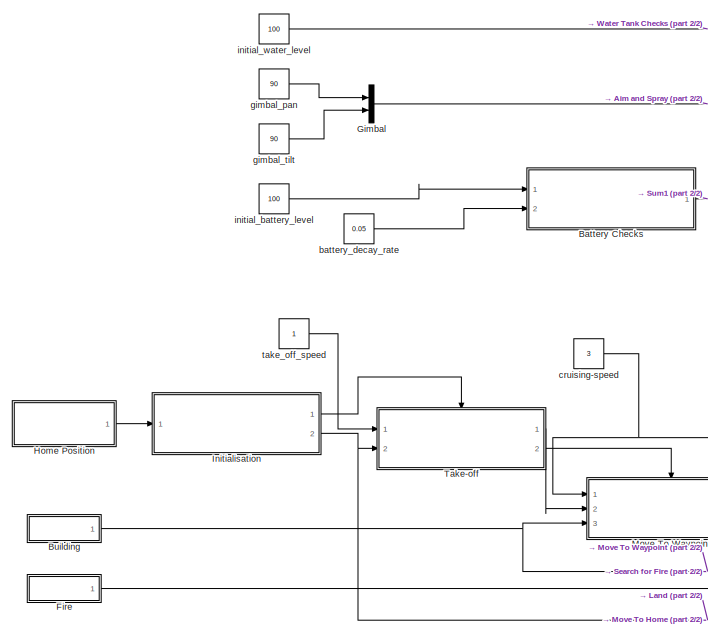
[diagram: root canvas - part 1/2, left side, full height]
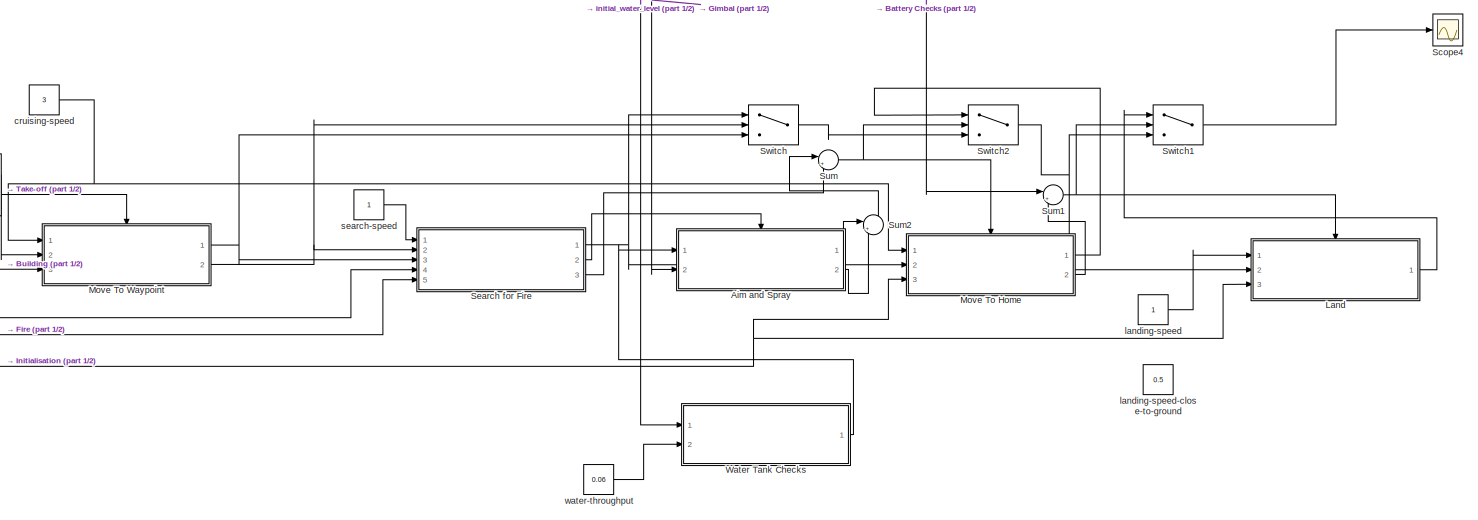
[diagram: root canvas - part 2/2, full width, middle band]
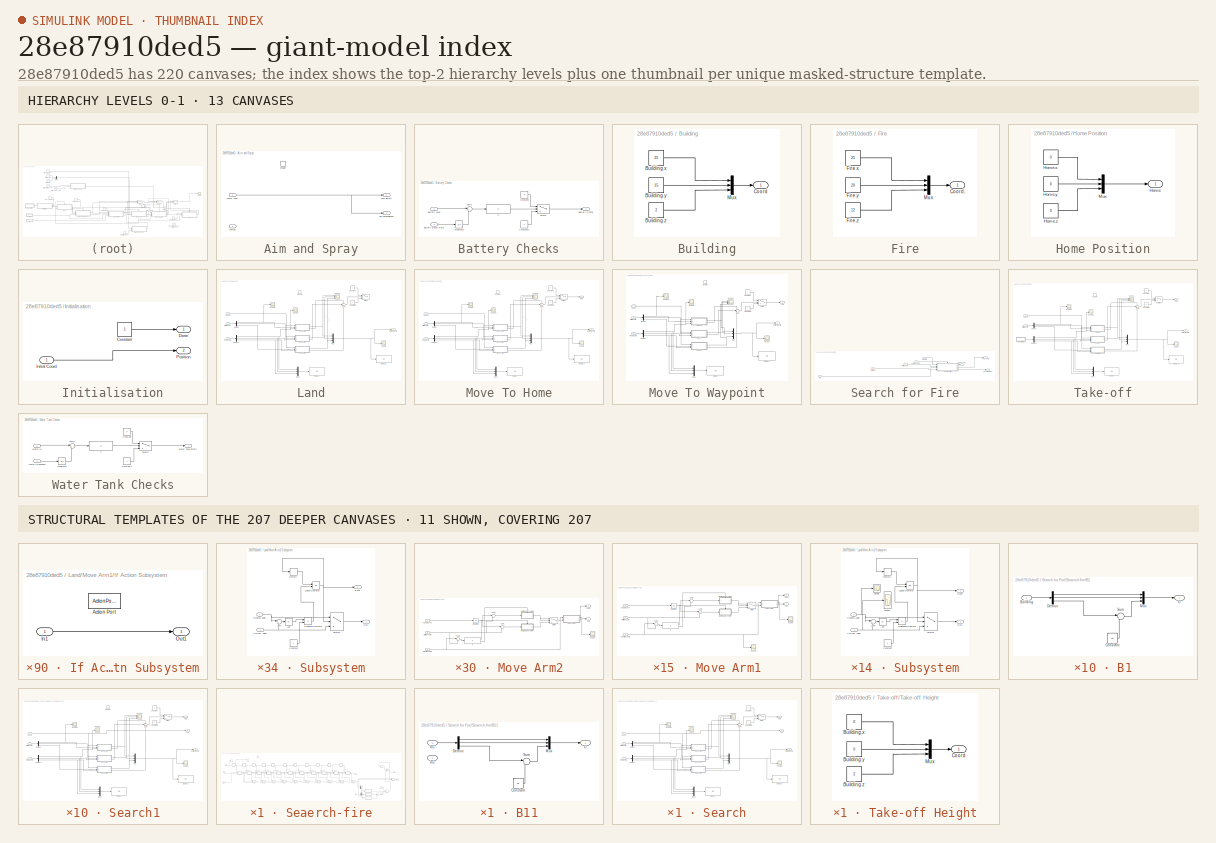
[diagram: thumbnail index - top-2 hierarchy levels (13 canvases) + 11 structural-template representatives of the remaining 207 canvases]
MODEL slx_28e87910ded5
KIND model
CONFIG AbsTol = auto
CONFIG EnableMultiTasking = off
CONFIG FixedStep = 0.5
CONFIG MaxStep = auto
CONFIG MinStep = auto
CONFIG RelTol = 1e-3
CONFIG SampleTimeConstraint = Unconstrained
CONFIG SolverName = FixedStepAuto
CONFIG StartTime = 0.0
CONFIG StopTime = 80
BLOCK [SubSystem] Aim and Spray
  Ports = [2, 2, 1]
  RequestExecContextInheritance = off
BLOCK [EnablePort] Aim and Spray/Enable
  Ports = []
BLOCK [Outport] Aim and Spray/Fire Extinguished
  Port = 2
BLOCK [Inport] Aim and Spray/Gimbal
  Port = 2
BLOCK [Outport] Aim and Spray/Tank Empty
BLOCK [Inport] Aim and Spray/Water Tank
BLOCK [SubSystem] Battery Checks
  Ports = [2, 1]
  RequestExecContextInheritance = off
BLOCK [Outport] Battery Checks/Battery Critical
BLOCK [Inport] Battery Checks/Battery Decay Rate
  Port = 2
BLOCK [Inport] Battery Checks/Battery Level
BLOCK [Constant] Battery Checks/Constant
  Value = 0
BLOCK [Constant] Battery Checks/Constant1
BLOCK [If] Battery Checks/If
  IfExpression = u1 <= 15
  Ports = [1, 1]
  ShowElse = off
BLOCK [Integrator] Battery Checks/Integrator
  Ports = [1, 1]
BLOCK [Sum] Battery Checks/Sum2
  Inputs = |+-
  Ports = [2, 1]
BLOCK [Switch] Battery Checks/Switch
  Criteria = u2 > Threshold
  InputSameDT = off
  SaturateOnIntegerOverflow = off
BLOCK [SubSystem] Building
  Ports = [0, 1]
  RequestExecContextInheritance = off
BLOCK [Constant] Building/Building.x
  Value = 25
BLOCK [Constant] Building/Building.y
  Value = 15
BLOCK [Constant] Building/Building.z
  Value = 2
BLOCK [Outport] Building/Coord
  VectorParamsAs1DForOutWhenUnconnected = off
BLOCK [Mux] Building/Mux
  DisplayOption = bar
  Inputs = 3
  Ports = [3, 1]
BLOCK [SubSystem] Fire
  Ports = [0, 1]
  RequestExecContextInheritance = off
BLOCK [Outport] Fire/Coord.
  VectorParamsAs1DForOutWhenUnconnected = off
BLOCK [Constant] Fire/Fire.x
  Value = 25
BLOCK [Constant] Fire/Fire.y
  Value = 20
BLOCK [Constant] Fire/Fire.z
  Value = 12
BLOCK [Mux] Fire/Mux
  DisplayOption = bar
  Inputs = 3
  Ports = [3, 1]
BLOCK [Mux] Gimbal
  DisplayOption = bar
  Inputs = 2
  Ports = [2, 1]
BLOCK [SubSystem] Home Position
  Ports = [0, 1]
  RequestExecContextInheritance = off
BLOCK [Outport] Home Position/Home
  VectorParamsAs1DForOutWhenUnconnected = off
BLOCK [Constant] Home Position/Home.x
  Value = 0
BLOCK [Constant] Home Position/Home.y
  Value = 0
BLOCK [Constant] Home Position/Home.z
  Value = 0
BLOCK [Mux] Home Position/Mux
  DisplayOption = bar
  Inputs = 3
  Ports = [3, 1]
BLOCK [SubSystem] Initialisation
  Ports = [1, 2]
  RequestExecContextInheritance = off
BLOCK [Constant] Initialisation/Constant
BLOCK [Outport] Initialisation/Done
  VectorParamsAs1DForOutWhenUnconnected = off
BLOCK [Inport] Initialisation/Initial Coord.
BLOCK [Outport] Initialisation/Position
  Port = 2
  VectorParamsAs1DForOutWhenUnconnected = off
BLOCK [SubSystem] Land
  Ports = [3, 1, 1]
  RequestExecContextInheritance = off
BLOCK [Constant] Land/Constant
BLOCK [Constant] Land/Constant1
  Value = 0
BLOCK [Outport] Land/Current Coord.
  VectorParamsAs1DForOutWhenUnconnected = off
BLOCK [Demux] Land/Demux
  Outputs = 3
  Ports = [1, 3]
BLOCK [Demux] Land/Demux1
  Outputs = 3
  Ports = [1, 3]
BLOCK [Display] Land/Display
  Decimation = 1
  Ports = [1]
BLOCK [Display] Land/Display2
  Decimation = 1
  Ports = [1]
BLOCK [EnablePort] Land/Enable
  Ports = []
BLOCK [Inport] Land/Final Coord.
  Port = 3
BLOCK [Inport] Land/Initial Coord.
  Port = 2
BLOCK [SubSystem] Land/Move Arm1
  Ports = [3, 2]
  RequestExecContextInheritance = off
BLOCK [Inport] Land/Move Arm1/Angular Accel
BLOCK [Inport] Land/Move Arm1/Desired Angle
  Port = 3
BLOCK [Outport] Land/Move Arm1/Done
  Port = 2
  VectorParamsAs1DForOutWhenUnconnected = off
BLOCK [If] Land/Move Arm1/If
  Ports = [1, 2]
BLOCK [SubSystem] Land/Move Arm1/If Action Subsystem
  Ports = [1, 1, 0, 0, 0, 0, 0, 1]
  RequestExecContextInheritance = off
  TreatAsAtomicUnit = on
BLOCK [ActionPort] Land/Move Arm1/If Action Subsystem/Action Port
BLOCK [Inport] Land/Move Arm1/If Action Subsystem/In1
BLOCK [Outport] Land/Move Arm1/If Action Subsystem/Out1
  VectorParamsAs1DForOutWhenUnconnected = off
BLOCK [SubSystem] Land/Move Arm1/If Action Subsystem1
  Ports = [1, 1, 0, 0, 0, 0, 0, 1]
  RequestExecContextInheritance = off
  TreatAsAtomicUnit = on
BLOCK [ActionPort] Land/Move Arm1/If Action Subsystem1/Action Port
BLOCK [Inport] Land/Move Arm1/If Action Subsystem1/In1
BLOCK [Outport] Land/Move Arm1/If Action Subsystem1/Out1
  VectorParamsAs1DForOutWhenUnconnected = off
BLOCK [Integrator] Land/Move Arm1/Integrator1
  Ports = [1, 1]
BLOCK [Outport] Land/Move Arm1/Out1
  VectorParamsAs1DForOutWhenUnconnected = off
BLOCK [Scope] Land/Move Arm1/Scope
  Floating = off
  NumInputPorts = 1
  Ports = [1]
  ScopeSpecificationString = Simulink.scopes.TimeScopeBlockCfg('CurrentConfiguration', extmgr.ConfigurationSet(extmgr.Configuration('Core','General UI',true),extmgr.Configuration('Core','Source UI',true),extmgr.Configuration('Sources','WiredSimulink',true,'DataLoggingVariableName','ScopeData2'),extmgr.Configuration('Visuals','Time Domain',true,'SerializedDisplays',{struct('MinYLimReal','-3.125','MaxYLimReal','28.125','YLabelR...<+1362ch>  <repeated x15 — deduplicated; at blocks: Scope>
BLOCK [Scope] Land/Move Arm1/Scope1
  Floating = off
  NumInputPorts = 1
  Ports = [1]
  ScopeSpecificationString = Simulink.scopes.TimeScopeBlockCfg('CurrentConfiguration', extmgr.ConfigurationSet(extmgr.Configuration('Core','General UI',true),extmgr.Configuration('Core','Source UI',true),extmgr.Configuration('Sources','WiredSimulink',true,'DataLoggingVariableName','ScopeData3'),extmgr.Configuration('Visuals','Time Domain',true,'SerializedDisplays',{struct('MinYLimReal','15.00000','MaxYLimReal','35.00000','YLa...<+1413ch>  <repeated x15 — deduplicated; at blocks: Scope1>
BLOCK [Inport] Land/Move Arm1/Starting Angle
  Port = 2
BLOCK [SubSystem] Land/Move Arm1/Subsystem
  Ports = [2, 2]
  RequestExecContextInheritance = off
BLOCK [Abs] Land/Move Arm1/Subsystem/Abs
  SaturateOnIntegerOverflow = off
BLOCK [Constant] Land/Move Arm1/Subsystem/Constant
BLOCK [Inport] Land/Move Arm1/Subsystem/Current Angle
  Port = 2
BLOCK [Inport] Land/Move Arm1/Subsystem/Desired Angle
BLOCK [Outport] Land/Move Arm1/Subsystem/Done
  Port = 2
  VectorParamsAs1DForOutWhenUnconnected = off
BLOCK [Logic] Land/Move Arm1/Subsystem/Logical Operator
  AllPortsSameDT = off
  Operator = OR
  OutDataTypeStr = boolean
  Ports = [2, 1]
BLOCK [Memory] Land/Move Arm1/Subsystem/Memory
BLOCK [Outport] Land/Move Arm1/Subsystem/Out1
  VectorParamsAs1DForOutWhenUnconnected = off
BLOCK [RelationalOperator] Land/Move Arm1/Subsystem/Relational Operator
  InputSameDT = off
  Operator = <=
  OutDataTypeStr = boolean
  Ports = [2, 1]
  RndMeth = Simplest
BLOCK [Scope] Land/Move Arm1/Subsystem/Scope
  Floating = off
  NumInputPorts = 1
  Ports = [1]
  ScopeSpecificationString = Simulink.scopes.TimeScopeBlockCfg('CurrentConfiguration', extmgr.ConfigurationSet(extmgr.Configuration('Core','General UI',true),extmgr.Configuration('Core','Source UI',true),extmgr.Configuration('Sources','WiredSimulink',true,'DataLoggingVariableName','ScopeData1'),extmgr.Configuration('Visuals','Time Domain',true,'SerializedDisplays',{struct('MinYLimReal','15.00000','MaxYLimReal','35.00000','YLa...<+1413ch>  <repeated x14 — deduplicated; at blocks: Scope>
BLOCK [Scope] Land/Move Arm1/Subsystem/Scope1
  Floating = off
  NumInputPorts = 1
  Ports = [1]
  ScopeSpecificationString = Simulink.scopes.TimeScopeBlockCfg('CurrentConfiguration', extmgr.ConfigurationSet(extmgr.Configuration('Core','General UI',true),extmgr.Configuration('Core','Source UI',true),extmgr.Configuration('Sources','WiredSimulink',true,'DataLoggingVariableName','ScopeData2'),extmgr.Configuration('Visuals','Time Domain',true,'SerializedDisplays',{struct('MinYLimReal','-12.5','MaxYLimReal','112.5','YLabelRea...<+1358ch>  <repeated x12 — deduplicated; at blocks: Scope1>
BLOCK [Sum] Land/Move Arm1/Subsystem/Sum
  Inputs = |+-
  Ports = [2, 1]
BLOCK [Switch] Land/Move Arm1/Subsystem/Switch1
  Criteria = u2 > Threshold
  InputSameDT = off
  SaturateOnIntegerOverflow = off
BLOCK [Sum] Land/Move Arm1/Sum1
  Inputs = |++
  Ports = [2, 1]
BLOCK [Sum] Land/Move Arm1/Sum2
  Inputs = |+-
  Ports = [2, 1]
BLOCK [Sum] Land/Move Arm1/Sum3
  Inputs = |-+
  Ports = [2, 1]
BLOCK [Switch] Land/Move Arm1/Switch
  Criteria = u2 ~= 0
  InputSameDT = off
  SaturateOnIntegerOverflow = off
BLOCK [SubSystem] Land/Move Arm2
  Ports = [3, 2]
  RequestExecContextInheritance = off
BLOCK [Inport] Land/Move Arm2/Angular Accel
BLOCK [Inport] Land/Move Arm2/Desired Angle
  Port = 3
BLOCK [Outport] Land/Move Arm2/Done
  Port = 2
  VectorParamsAs1DForOutWhenUnconnected = off
BLOCK [If] Land/Move Arm2/If
  Ports = [1, 2]
BLOCK [SubSystem] Land/Move Arm2/If Action Subsystem
  Ports = [1, 1, 0, 0, 0, 0, 0, 1]
  RequestExecContextInheritance = off
  TreatAsAtomicUnit = on
BLOCK [ActionPort] Land/Move Arm2/If Action Subsystem/Action Port
BLOCK [Inport] Land/Move Arm2/If Action Subsystem/In1
BLOCK [Outport] Land/Move Arm2/If Action Subsystem/Out1
  VectorParamsAs1DForOutWhenUnconnected = off
BLOCK [SubSystem] Land/Move Arm2/If Action Subsystem1
  Ports = [1, 1, 0, 0, 0, 0, 0, 1]
  RequestExecContextInheritance = off
  TreatAsAtomicUnit = on
BLOCK [ActionPort] Land/Move Arm2/If Action Subsystem1/Action Port
BLOCK [Inport] Land/Move Arm2/If Action Subsystem1/In1
BLOCK [Outport] Land/Move Arm2/If Action Subsystem1/Out1
  VectorParamsAs1DForOutWhenUnconnected = off
BLOCK [Integrator] Land/Move Arm2/Integrator1
  Ports = [1, 1]
BLOCK [Outport] Land/Move Arm2/Out1
  VectorParamsAs1DForOutWhenUnconnected = off
BLOCK [Scope] Land/Move Arm2/Scope
  Floating = off
  NumInputPorts = 1
  Ports = [1]
  ScopeSpecificationString = Simulink.scopes.TimeScopeBlockCfg('CurrentConfiguration', extmgr.ConfigurationSet(extmgr.Configuration('Core','General UI',true),extmgr.Configuration('Core','Source UI',true),extmgr.Configuration('Sources','WiredSimulink',true,'DataLoggingVariableName','ScopeData2'),extmgr.Configuration('Visuals','Time Domain',true,'SerializedDisplays',{struct('MinYLimReal','-0.90173','MaxYLimReal','8.11561','YLab...<+1368ch>  <repeated x30 — deduplicated; at blocks: Scope>
BLOCK [Inport] Land/Move Arm2/Starting Angle
  Port = 2
BLOCK [SubSystem] Land/Move Arm2/Subsystem
  Ports = [2, 2]
  RequestExecContextInheritance = off
BLOCK [Abs] Land/Move Arm2/Subsystem/Abs
  SaturateOnIntegerOverflow = off
BLOCK [Constant] Land/Move Arm2/Subsystem/Constant
BLOCK [Inport] Land/Move Arm2/Subsystem/Current Angle
  Port = 2
BLOCK [Inport] Land/Move Arm2/Subsystem/Desired Angle
BLOCK [Outport] Land/Move Arm2/Subsystem/Done
  Port = 2
  VectorParamsAs1DForOutWhenUnconnected = off
BLOCK [Logic] Land/Move Arm2/Subsystem/Logical Operator
  AllPortsSameDT = off
  Operator = OR
  OutDataTypeStr = boolean
  Ports = [2, 1]
BLOCK [Memory] Land/Move Arm2/Subsystem/Memory
BLOCK [Outport] Land/Move Arm2/Subsystem/Out1
  VectorParamsAs1DForOutWhenUnconnected = off
BLOCK [RelationalOperator] Land/Move Arm2/Subsystem/Relational Operator
  InputSameDT = off
  Operator = <=
  OutDataTypeStr = boolean
  Ports = [2, 1]
  RndMeth = Simplest
BLOCK [Sum] Land/Move Arm2/Subsystem/Sum
  Inputs = |+-
  Ports = [2, 1]
BLOCK [Switch] Land/Move Arm2/Subsystem/Switch1
  Criteria = u2 > Threshold
  InputSameDT = off
  SaturateOnIntegerOverflow = off
BLOCK [Sum] Land/Move Arm2/Sum1
  Inputs = |++
  Ports = [2, 1]
BLOCK [Sum] Land/Move Arm2/Sum2
  Inputs = |+-
  Ports = [2, 1]
BLOCK [Sum] Land/Move Arm2/Sum3
  Inputs = |-+
  Ports = [2, 1]
BLOCK [Switch] Land/Move Arm2/Switch
  Criteria = u2 ~= 0
  InputSameDT = off
  SaturateOnIntegerOverflow = off
BLOCK [SubSystem] Land/Move Arm3
  Ports = [3, 2]
  RequestExecContextInheritance = off
BLOCK [Inport] Land/Move Arm3/Angular Accel
BLOCK [Inport] Land/Move Arm3/Desired Angle
  Port = 3
BLOCK [Outport] Land/Move Arm3/Done
  Port = 2
  VectorParamsAs1DForOutWhenUnconnected = off
BLOCK [If] Land/Move Arm3/If
  Ports = [1, 2]
BLOCK [SubSystem] Land/Move Arm3/If Action Subsystem
  Ports = [1, 1, 0, 0, 0, 0, 0, 1]
  RequestExecContextInheritance = off
  TreatAsAtomicUnit = on
BLOCK [ActionPort] Land/Move Arm3/If Action Subsystem/Action Port
BLOCK [Inport] Land/Move Arm3/If Action Subsystem/In1
BLOCK [Outport] Land/Move Arm3/If Action Subsystem/Out1
  VectorParamsAs1DForOutWhenUnconnected = off
BLOCK [SubSystem] Land/Move Arm3/If Action Subsystem1
  Ports = [1, 1, 0, 0, 0, 0, 0, 1]
  RequestExecContextInheritance = off
  TreatAsAtomicUnit = on
BLOCK [ActionPort] Land/Move Arm3/If Action Subsystem1/Action Port
BLOCK [Inport] Land/Move Arm3/If Action Subsystem1/In1
BLOCK [Outport] Land/Move Arm3/If Action Subsystem1/Out1
  VectorParamsAs1DForOutWhenUnconnected = off
BLOCK [Integrator] Land/Move Arm3/Integrator1
  Ports = [1, 1]
BLOCK [Outport] Land/Move Arm3/Out1
  VectorParamsAs1DForOutWhenUnconnected = off
BLOCK [Scope] Land/Move Arm3/Scope
  Floating = off
  NumInputPorts = 1
  Ports = [1]
BLOCK [Inport] Land/Move Arm3/Starting Angle
  Port = 2
BLOCK [SubSystem] Land/Move Arm3/Subsystem
  Ports = [2, 2]
  RequestExecContextInheritance = off
BLOCK [Abs] Land/Move Arm3/Subsystem/Abs
  SaturateOnIntegerOverflow = off
BLOCK [Constant] Land/Move Arm3/Subsystem/Constant
BLOCK [Inport] Land/Move Arm3/Subsystem/Current Angle
  Port = 2
BLOCK [Inport] Land/Move Arm3/Subsystem/Desired Angle
BLOCK [Outport] Land/Move Arm3/Subsystem/Done
  Port = 2
  VectorParamsAs1DForOutWhenUnconnected = off
BLOCK [Logic] Land/Move Arm3/Subsystem/Logical Operator
  AllPortsSameDT = off
  Operator = OR
  OutDataTypeStr = boolean
  Ports = [2, 1]
BLOCK [Memory] Land/Move Arm3/Subsystem/Memory
BLOCK [Outport] Land/Move Arm3/Subsystem/Out1
  VectorParamsAs1DForOutWhenUnconnected = off
BLOCK [RelationalOperator] Land/Move Arm3/Subsystem/Relational Operator
  InputSameDT = off
  Operator = <=
  OutDataTypeStr = boolean
  Ports = [2, 1]
  RndMeth = Simplest
BLOCK [Sum] Land/Move Arm3/Subsystem/Sum
  Inputs = |+-
  Ports = [2, 1]
BLOCK [Switch] Land/Move Arm3/Subsystem/Switch1
  Criteria = u2 > Threshold
  InputSameDT = off
  SaturateOnIntegerOverflow = off
BLOCK [Sum] Land/Move Arm3/Sum1
  Inputs = |++
  Ports = [2, 1]
BLOCK [Sum] Land/Move Arm3/Sum2
  Inputs = |+-
  Ports = [2, 1]
BLOCK [Sum] Land/Move Arm3/Sum3
  Inputs = |-+
  Ports = [2, 1]
BLOCK [Switch] Land/Move Arm3/Switch
  Criteria = u2 ~= 0
  InputSameDT = off
  SaturateOnIntegerOverflow = off
BLOCK [Mux] Land/Mux
  DisplayOption = bar
  Inputs = 3
  Ports = [3, 1]
BLOCK [Mux] Land/Mux1
  DisplayOption = bar
  Inputs = 3
  Ports = [3, 1]
BLOCK [Scope] Land/Scope
  Floating = off
  NumInputPorts = 1
  Ports = [1]
  ScopeSpecificationString = Simulink.scopes.TimeScopeBlockCfg('CurrentConfiguration', extmgr.ConfigurationSet(extmgr.Configuration('Core','General UI',true),extmgr.Configuration('Core','Source UI',true),extmgr.Configuration('Sources','WiredSimulink',true),extmgr.Configuration('Visuals','Time Domain',true,'SerializedDisplays',{struct('MinYLimReal','-456.00000','MaxYLimReal','104.00000','YLabelReal','','MinYLimMag',' 0.00000',...<+1409ch>  <repeated x15 — deduplicated; at blocks: Scope>
BLOCK [Scope] Land/Scope1
  Floating = off
  NumInputPorts = 3
  Ports = [3]
  ScopeSpecificationString = Simulink.scopes.TimeScopeBlockCfg('CurrentConfiguration', extmgr.ConfigurationSet(extmgr.Configuration('Core','General UI',true),extmgr.Configuration('Core','Source UI',true),extmgr.Configuration('Sources','WiredSimulink',true,'DataLoggingVariableName','ScopeData1'),extmgr.Configuration('Visuals','Time Domain',true,'SerializedDisplays',{struct('MinYLimReal','-18.51152','MaxYLimReal','49.08015','YL...<+1449ch>  <repeated x15 — deduplicated; at blocks: Scope1>
BLOCK [Scope] Land/Scope2
  Floating = off
  NumInputPorts = 1
  Ports = [1]
  ScopeSpecificationString = Simulink.scopes.TimeScopeBlockCfg('CurrentConfiguration', extmgr.ConfigurationSet(extmgr.Configuration('Core','General UI',true),extmgr.Configuration('Core','Source UI',true),extmgr.Configuration('Sources','WiredSimulink',true,'DataLoggingVariableName','ScopeData5'),extmgr.Configuration('Visuals','Time Domain',true,'SerializedDisplays',{struct('MinYLimReal','-1.00000','MaxYLimReal','1.00000','YLab...<+1401ch>  <repeated x15 — deduplicated; at blocks: Scope2>
BLOCK [Scope] Land/Scope3
  Floating = off
  NumInputPorts = 1
  Ports = [1]
  ScopeSpecificationString = Simulink.scopes.TimeScopeBlockCfg('CurrentConfiguration', extmgr.ConfigurationSet(extmgr.Configuration('Core','General UI',true),extmgr.Configuration('Core','Source UI',true),extmgr.Configuration('Sources','WiredSimulink',true,'DataLoggingVariableName','ScopeData6'),extmgr.Configuration('Visuals','Time Domain',true,'SerializedDisplays',{struct('MinYLimReal','15.00000','MaxYLimReal','35.00000','YLa...<+1408ch>  <repeated x15 — deduplicated; at blocks: Scope3>
BLOCK [Inport] Land/Speed
BLOCK [Sum] Land/Sum
  Inputs = 3
  Ports = [3, 1]
BLOCK [Switch] Land/Switch
  InputSameDT = off
  SaturateOnIntegerOverflow = off
  Threshold = 3
BLOCK [SubSystem] Move To Home
  Ports = [3, 2, 1]
  RequestExecContextInheritance = off
BLOCK [Constant] Move To Home/Constant
BLOCK [Constant] Move To Home/Constant1
  Value = 0
BLOCK [Outport] Move To Home/Current Coord.
  VectorParamsAs1DForOutWhenUnconnected = off
BLOCK [Demux] Move To Home/Demux
  Outputs = 3
  Ports = [1, 3]
BLOCK [Demux] Move To Home/Demux1
  Outputs = 3
  Ports = [1, 3]
BLOCK [Display] Move To Home/Display
  Decimation = 1
  Ports = [1]
BLOCK [Display] Move To Home/Display2
  Decimation = 1
  Ports = [1]
BLOCK [EnablePort] Move To Home/Enable
  Ports = []
BLOCK [Inport] Move To Home/Final Coord.
  Port = 3
BLOCK [Outport] Move To Home/Flag
  Port = 2
  VectorParamsAs1DForOutWhenUnconnected = off
BLOCK [Inport] Move To Home/Initial Coord.
  Port = 2
BLOCK [SubSystem] Move To Home/Move Arm1
  Ports = [3, 2]
  RequestExecContextInheritance = off
BLOCK [Inport] Move To Home/Move Arm1/Angular Accel
BLOCK [Inport] Move To Home/Move Arm1/Desired Angle
  Port = 3
BLOCK [Outport] Move To Home/Move Arm1/Done
  Port = 2
  VectorParamsAs1DForOutWhenUnconnected = off
BLOCK [If] Move To Home/Move Arm1/If
  Ports = [1, 2]
BLOCK [SubSystem] Move To Home/Move Arm1/If Action Subsystem
  Ports = [1, 1, 0, 0, 0, 0, 0, 1]
  RequestExecContextInheritance = off
  TreatAsAtomicUnit = on
BLOCK [ActionPort] Move To Home/Move Arm1/If Action Subsystem/Action Port
  ActionPortLabel = if(u1 > 0)
BLOCK [Inport] Move To Home/Move Arm1/If Action Subsystem/In1
BLOCK [Outport] Move To Home/Move Arm1/If Action Subsystem/Out1
  VectorParamsAs1DForOutWhenUnconnected = off
BLOCK [SubSystem] Move To Home/Move Arm1/If Action Subsystem1
  Ports = [1, 1, 0, 0, 0, 0, 0, 1]
  RequestExecContextInheritance = off
  TreatAsAtomicUnit = on
BLOCK [ActionPort] Move To Home/Move Arm1/If Action Subsystem1/Action Port
  ActionPortLabel = else
BLOCK [Inport] Move To Home/Move Arm1/If Action Subsystem1/In1
BLOCK [Outport] Move To Home/Move Arm1/If Action Subsystem1/Out1
  VectorParamsAs1DForOutWhenUnconnected = off
BLOCK [Integrator] Move To Home/Move Arm1/Integrator1
  Ports = [1, 1]
BLOCK [Outport] Move To Home/Move Arm1/Out1
  VectorParamsAs1DForOutWhenUnconnected = off
BLOCK [Scope] Move To Home/Move Arm1/Scope
  Floating = off
  NumInputPorts = 1
  Ports = [1]
BLOCK [Scope] Move To Home/Move Arm1/Scope1
  Floating = off
  NumInputPorts = 1
  Ports = [1]
BLOCK [Inport] Move To Home/Move Arm1/Starting Angle
  Port = 2
BLOCK [SubSystem] Move To Home/Move Arm1/Subsystem
  Ports = [2, 2]
  RequestExecContextInheritance = off
BLOCK [Abs] Move To Home/Move Arm1/Subsystem/Abs
  SaturateOnIntegerOverflow = off
BLOCK [Constant] Move To Home/Move Arm1/Subsystem/Constant
BLOCK [Inport] Move To Home/Move Arm1/Subsystem/Current Angle
  Port = 2
BLOCK [Inport] Move To Home/Move Arm1/Subsystem/Desired Angle
BLOCK [Outport] Move To Home/Move Arm1/Subsystem/Done
  Port = 2
  VectorParamsAs1DForOutWhenUnconnected = off
BLOCK [Logic] Move To Home/Move Arm1/Subsystem/Logical Operator
  AllPortsSameDT = off
  Operator = OR
  OutDataTypeStr = boolean
  Ports = [2, 1]
BLOCK [Memory] Move To Home/Move Arm1/Subsystem/Memory
BLOCK [Outport] Move To Home/Move Arm1/Subsystem/Out1
  VectorParamsAs1DForOutWhenUnconnected = off
BLOCK [RelationalOperator] Move To Home/Move Arm1/Subsystem/Relational Operator
  InputSameDT = off
  Operator = <=
  OutDataTypeStr = boolean
  Ports = [2, 1]
  RndMeth = Simplest
BLOCK [Scope] Move To Home/Move Arm1/Subsystem/Scope
  Floating = off
  NumInputPorts = 1
  Ports = [1]
BLOCK [Scope] Move To Home/Move Arm1/Subsystem/Scope1
  Floating = off
  NumInputPorts = 1
  Ports = [1]
BLOCK [Sum] Move To Home/Move Arm1/Subsystem/Sum
  Inputs = |+-
  Ports = [2, 1]
BLOCK [Switch] Move To Home/Move Arm1/Subsystem/Switch1
  Criteria = u2 > Threshold
  InputSameDT = off
  SaturateOnIntegerOverflow = off
BLOCK [Sum] Move To Home/Move Arm1/Sum1
  Inputs = |++
  Ports = [2, 1]
BLOCK [Sum] Move To Home/Move Arm1/Sum2
  Inputs = |+-
  Ports = [2, 1]
BLOCK [Sum] Move To Home/Move Arm1/Sum3
  Inputs = |-+
  Ports = [2, 1]
BLOCK [Switch] Move To Home/Move Arm1/Switch
  Criteria = u2 ~= 0
  InputSameDT = off
  SaturateOnIntegerOverflow = off
BLOCK [SubSystem] Move To Home/Move Arm2
  Ports = [3, 2]
  RequestExecContextInheritance = off
BLOCK [Inport] Move To Home/Move Arm2/Angular Accel
BLOCK [Inport] Move To Home/Move Arm2/Desired Angle
  Port = 3
BLOCK [Outport] Move To Home/Move Arm2/Done
  Port = 2
  VectorParamsAs1DForOutWhenUnconnected = off
BLOCK [If] Move To Home/Move Arm2/If
  Ports = [1, 2]
BLOCK [SubSystem] Move To Home/Move Arm2/If Action Subsystem
  Ports = [1, 1, 0, 0, 0, 0, 0, 1]
  RequestExecContextInheritance = off
  TreatAsAtomicUnit = on
BLOCK [ActionPort] Move To Home/Move Arm2/If Action Subsystem/Action Port
  ActionPortLabel = if(u1 > 0)
BLOCK [Inport] Move To Home/Move Arm2/If Action Subsystem/In1
BLOCK [Outport] Move To Home/Move Arm2/If Action Subsystem/Out1
  VectorParamsAs1DForOutWhenUnconnected = off
BLOCK [SubSystem] Move To Home/Move Arm2/If Action Subsystem1
  Ports = [1, 1, 0, 0, 0, 0, 0, 1]
  RequestExecContextInheritance = off
  TreatAsAtomicUnit = on
BLOCK [ActionPort] Move To Home/Move Arm2/If Action Subsystem1/Action Port
  ActionPortLabel = else
BLOCK [Inport] Move To Home/Move Arm2/If Action Subsystem1/In1
BLOCK [Outport] Move To Home/Move Arm2/If Action Subsystem1/Out1
  VectorParamsAs1DForOutWhenUnconnected = off
BLOCK [Integrator] Move To Home/Move Arm2/Integrator1
  Ports = [1, 1]
BLOCK [Outport] Move To Home/Move Arm2/Out1
  VectorParamsAs1DForOutWhenUnconnected = off
BLOCK [Scope] Move To Home/Move Arm2/Scope
  Floating = off
  NumInputPorts = 1
  Ports = [1]
BLOCK [Inport] Move To Home/Move Arm2/Starting Angle
  Port = 2
BLOCK [SubSystem] Move To Home/Move Arm2/Subsystem
  Ports = [2, 2]
  RequestExecContextInheritance = off
BLOCK [Abs] Move To Home/Move Arm2/Subsystem/Abs
  SaturateOnIntegerOverflow = off
BLOCK [Constant] Move To Home/Move Arm2/Subsystem/Constant
BLOCK [Inport] Move To Home/Move Arm2/Subsystem/Current Angle
  Port = 2
BLOCK [Inport] Move To Home/Move Arm2/Subsystem/Desired Angle
BLOCK [Outport] Move To Home/Move Arm2/Subsystem/Done
  Port = 2
  VectorParamsAs1DForOutWhenUnconnected = off
BLOCK [Logic] Move To Home/Move Arm2/Subsystem/Logical Operator
  AllPortsSameDT = off
  Operator = OR
  OutDataTypeStr = boolean
  Ports = [2, 1]
BLOCK [Memory] Move To Home/Move Arm2/Subsystem/Memory
BLOCK [Outport] Move To Home/Move Arm2/Subsystem/Out1
  VectorParamsAs1DForOutWhenUnconnected = off
BLOCK [RelationalOperator] Move To Home/Move Arm2/Subsystem/Relational Operator
  InputSameDT = off
  Operator = <=
  OutDataTypeStr = boolean
  Ports = [2, 1]
  RndMeth = Simplest
BLOCK [Sum] Move To Home/Move Arm2/Subsystem/Sum
  Inputs = |+-
  Ports = [2, 1]
BLOCK [Switch] Move To Home/Move Arm2/Subsystem/Switch1
  Criteria = u2 > Threshold
  InputSameDT = off
  SaturateOnIntegerOverflow = off
BLOCK [Sum] Move To Home/Move Arm2/Sum1
  Inputs = |++
  Ports = [2, 1]
BLOCK [Sum] Move To Home/Move Arm2/Sum2
  Inputs = |+-
  Ports = [2, 1]
BLOCK [Sum] Move To Home/Move Arm2/Sum3
  Inputs = |-+
  Ports = [2, 1]
BLOCK [Switch] Move To Home/Move Arm2/Switch
  Criteria = u2 ~= 0
  InputSameDT = off
  SaturateOnIntegerOverflow = off
BLOCK [SubSystem] Move To Home/Move Arm3
  Ports = [3, 2]
  RequestExecContextInheritance = off
BLOCK [Inport] Move To Home/Move Arm3/Angular Accel
BLOCK [Inport] Move To Home/Move Arm3/Desired Angle
  Port = 3
BLOCK [Outport] Move To Home/Move Arm3/Done
  Port = 2
  VectorParamsAs1DForOutWhenUnconnected = off
BLOCK [If] Move To Home/Move Arm3/If
  Ports = [1, 2]
BLOCK [SubSystem] Move To Home/Move Arm3/If Action Subsystem
  Ports = [1, 1, 0, 0, 0, 0, 0, 1]
  RequestExecContextInheritance = off
  TreatAsAtomicUnit = on
BLOCK [ActionPort] Move To Home/Move Arm3/If Action Subsystem/Action Port
  ActionPortLabel = if(u1 > 0)
BLOCK [Inport] Move To Home/Move Arm3/If Action Subsystem/In1
BLOCK [Outport] Move To Home/Move Arm3/If Action Subsystem/Out1
  VectorParamsAs1DForOutWhenUnconnected = off
BLOCK [SubSystem] Move To Home/Move Arm3/If Action Subsystem1
  Ports = [1, 1, 0, 0, 0, 0, 0, 1]
  RequestExecContextInheritance = off
  TreatAsAtomicUnit = on
BLOCK [ActionPort] Move To Home/Move Arm3/If Action Subsystem1/Action Port
  ActionPortLabel = else
BLOCK [Inport] Move To Home/Move Arm3/If Action Subsystem1/In1
BLOCK [Outport] Move To Home/Move Arm3/If Action Subsystem1/Out1
  VectorParamsAs1DForOutWhenUnconnected = off
BLOCK [Integrator] Move To Home/Move Arm3/Integrator1
  Ports = [1, 1]
BLOCK [Outport] Move To Home/Move Arm3/Out1
  VectorParamsAs1DForOutWhenUnconnected = off
BLOCK [Scope] Move To Home/Move Arm3/Scope
  Floating = off
  NumInputPorts = 1
  Ports = [1]
BLOCK [Inport] Move To Home/Move Arm3/Starting Angle
  Port = 2
BLOCK [SubSystem] Move To Home/Move Arm3/Subsystem
  Ports = [2, 2]
  RequestExecContextInheritance = off
BLOCK [Abs] Move To Home/Move Arm3/Subsystem/Abs
  SaturateOnIntegerOverflow = off
BLOCK [Constant] Move To Home/Move Arm3/Subsystem/Constant
BLOCK [Inport] Move To Home/Move Arm3/Subsystem/Current Angle
  Port = 2
BLOCK [Inport] Move To Home/Move Arm3/Subsystem/Desired Angle
BLOCK [Outport] Move To Home/Move Arm3/Subsystem/Done
  Port = 2
  VectorParamsAs1DForOutWhenUnconnected = off
BLOCK [Logic] Move To Home/Move Arm3/Subsystem/Logical Operator
  AllPortsSameDT = off
  Operator = OR
  OutDataTypeStr = boolean
  Ports = [2, 1]
BLOCK [Memory] Move To Home/Move Arm3/Subsystem/Memory
BLOCK [Outport] Move To Home/Move Arm3/Subsystem/Out1
  VectorParamsAs1DForOutWhenUnconnected = off
BLOCK [RelationalOperator] Move To Home/Move Arm3/Subsystem/Relational Operator
  InputSameDT = off
  Operator = <=
  OutDataTypeStr = boolean
  Ports = [2, 1]
  RndMeth = Simplest
BLOCK [Sum] Move To Home/Move Arm3/Subsystem/Sum
  Inputs = |+-
  Ports = [2, 1]
BLOCK [Switch] Move To Home/Move Arm3/Subsystem/Switch1
  Criteria = u2 > Threshold
  InputSameDT = off
  SaturateOnIntegerOverflow = off
BLOCK [Sum] Move To Home/Move Arm3/Sum1
  Inputs = |++
  Ports = [2, 1]
BLOCK [Sum] Move To Home/Move Arm3/Sum2
  Inputs = |+-
  Ports = [2, 1]
BLOCK [Sum] Move To Home/Move Arm3/Sum3
  Inputs = |-+
  Ports = [2, 1]
BLOCK [Switch] Move To Home/Move Arm3/Switch
  Criteria = u2 ~= 0
  InputSameDT = off
  SaturateOnIntegerOverflow = off
BLOCK [Mux] Move To Home/Mux
  DisplayOption = bar
  Inputs = 3
  Ports = [3, 1]
BLOCK [Mux] Move To Home/Mux1
  DisplayOption = bar
  Inputs = 3
  Ports = [3, 1]
BLOCK [Scope] Move To Home/Scope
  Floating = off
  NumInputPorts = 1
  Ports = [1]
BLOCK [Scope] Move To Home/Scope1
  Floating = off
  NumInputPorts = 3
  Ports = [3]
BLOCK [Scope] Move To Home/Scope2
  Floating = off
  NumInputPorts = 1
  Ports = [1]
BLOCK [Scope] Move To Home/Scope3
  Floating = off
  NumInputPorts = 1
  Ports = [1]
BLOCK [Inport] Move To Home/Speed
BLOCK [Sum] Move To Home/Sum
  Inputs = 3
  Ports = [3, 1]
BLOCK [Switch] Move To Home/Switch
  InputSameDT = off
  SaturateOnIntegerOverflow = off
  Threshold = 3
BLOCK [SubSystem] Move To Waypoint
  Ports = [3, 2, 1]
  RequestExecContextInheritance = off
BLOCK [Constant] Move To Waypoint/Constant
BLOCK [Constant] Move To Waypoint/Constant1
  Value = 0
BLOCK [Outport] Move To Waypoint/Current Coord.
  VectorParamsAs1DForOutWhenUnconnected = off
BLOCK [Demux] Move To Waypoint/Demux
  Outputs = 3
  Ports = [1, 3]
BLOCK [Demux] Move To Waypoint/Demux1
  Outputs = 3
  Ports = [1, 3]
BLOCK [Display] Move To Waypoint/Display
  Decimation = 1
  Ports = [1]
BLOCK [Display] Move To Waypoint/Display2
  Decimation = 1
  Ports = [1]
BLOCK [EnablePort] Move To Waypoint/Enable
  Ports = []
BLOCK [Inport] Move To Waypoint/Final Coord.
  Port = 3
BLOCK [Outport] Move To Waypoint/Flag
  Port = 2
  VectorParamsAs1DForOutWhenUnconnected = off
BLOCK [Inport] Move To Waypoint/Initial Coord.
  Port = 2
BLOCK [SubSystem] Move To Waypoint/Move X
  Ports = [3, 2]
  RequestExecContextInheritance = off
BLOCK [Inport] Move To Waypoint/Move X/Angular Accel
BLOCK [Inport] Move To Waypoint/Move X/Desired Angle
  Port = 3
BLOCK [Outport] Move To Waypoint/Move X/Done
  Port = 2
  VectorParamsAs1DForOutWhenUnconnected = off
BLOCK [If] Move To Waypoint/Move X/If
  Ports = [1, 2]
BLOCK [SubSystem] Move To Waypoint/Move X/If Action Subsystem
  Ports = [1, 1, 0, 0, 0, 0, 0, 1]
  RequestExecContextInheritance = off
  TreatAsAtomicUnit = on
BLOCK [ActionPort] Move To Waypoint/Move X/If Action Subsystem/Action Port
  ActionPortLabel = if(u1 > 0)
BLOCK [Inport] Move To Waypoint/Move X/If Action Subsystem/In1
BLOCK [Outport] Move To Waypoint/Move X/If Action Subsystem/Out1
  VectorParamsAs1DForOutWhenUnconnected = off
BLOCK [SubSystem] Move To Waypoint/Move X/If Action Subsystem1
  Ports = [1, 1, 0, 0, 0, 0, 0, 1]
  RequestExecContextInheritance = off
  TreatAsAtomicUnit = on
BLOCK [ActionPort] Move To Waypoint/Move X/If Action Subsystem1/Action Port
  ActionPortLabel = else
BLOCK [Inport] Move To Waypoint/Move X/If Action Subsystem1/In1
BLOCK [Outport] Move To Waypoint/Move X/If Action Subsystem1/Out1
  VectorParamsAs1DForOutWhenUnconnected = off
BLOCK [Integrator] Move To Waypoint/Move X/Integrator1
  Ports = [1, 1]
BLOCK [Outport] Move To Waypoint/Move X/Out1
  VectorParamsAs1DForOutWhenUnconnected = off
BLOCK [Scope] Move To Waypoint/Move X/Scope
  Floating = off
  NumInputPorts = 1
  Ports = [1]
BLOCK [Scope] Move To Waypoint/Move X/Scope1
  Floating = off
  NumInputPorts = 1
  Ports = [1]
BLOCK [Inport] Move To Waypoint/Move X/Starting Angle
  Port = 2
BLOCK [SubSystem] Move To Waypoint/Move X/Subsystem
  Ports = [2, 2]
  RequestExecContextInheritance = off
BLOCK [Abs] Move To Waypoint/Move X/Subsystem/Abs
  SaturateOnIntegerOverflow = off
BLOCK [Constant] Move To Waypoint/Move X/Subsystem/Constant
BLOCK [Inport] Move To Waypoint/Move X/Subsystem/Current Angle
  Port = 2
BLOCK [Inport] Move To Waypoint/Move X/Subsystem/Desired Angle
BLOCK [Outport] Move To Waypoint/Move X/Subsystem/Done
  Port = 2
  VectorParamsAs1DForOutWhenUnconnected = off
BLOCK [Logic] Move To Waypoint/Move X/Subsystem/Logical Operator
  AllPortsSameDT = off
  Operator = OR
  OutDataTypeStr = boolean
  Ports = [2, 1]
BLOCK [Memory] Move To Waypoint/Move X/Subsystem/Memory
BLOCK [Outport] Move To Waypoint/Move X/Subsystem/Out1
  VectorParamsAs1DForOutWhenUnconnected = off
BLOCK [RelationalOperator] Move To Waypoint/Move X/Subsystem/Relational Operator
  InputSameDT = off
  Operator = <=
  OutDataTypeStr = boolean
  Ports = [2, 1]
  RndMeth = Simplest
BLOCK [Scope] Move To Waypoint/Move X/Subsystem/Scope
  Floating = off
  NumInputPorts = 1
  Ports = [1]
BLOCK [Scope] Move To Waypoint/Move X/Subsystem/Scope1
  Floating = off
  NumInputPorts = 1
  Ports = [1]
  ScopeSpecificationString = Simulink.scopes.TimeScopeBlockCfg('CurrentConfiguration', extmgr.ConfigurationSet(extmgr.Configuration('Core','General UI',true),extmgr.Configuration('Core','Source UI',true),extmgr.Configuration('Sources','WiredSimulink',true,'DataLoggingVariableName','ScopeData2'),extmgr.Configuration('Visuals','Time Domain',true,'SerializedDisplays',{struct('MinYLimReal','-20.00000','MaxYLimReal','180.00000','Y...<+1382ch>
BLOCK [Sum] Move To Waypoint/Move X/Subsystem/Sum
  Inputs = |+-
  Ports = [2, 1]
BLOCK [Switch] Move To Waypoint/Move X/Subsystem/Switch1
  Criteria = u2 > Threshold
  InputSameDT = off
  SaturateOnIntegerOverflow = off
BLOCK [Sum] Move To Waypoint/Move X/Sum1
  Inputs = |++
  Ports = [2, 1]
BLOCK [Sum] Move To Waypoint/Move X/Sum2
  Inputs = |+-
  Ports = [2, 1]
BLOCK [Sum] Move To Waypoint/Move X/Sum3
  Inputs = |-+
  Ports = [2, 1]
BLOCK [Switch] Move To Waypoint/Move X/Switch
  Criteria = u2 ~= 0
  InputSameDT = off
  SaturateOnIntegerOverflow = off
BLOCK [SubSystem] Move To Waypoint/Move Y
  Ports = [3, 2]
  RequestExecContextInheritance = off
BLOCK [Inport] Move To Waypoint/Move Y/Angular Accel
BLOCK [Inport] Move To Waypoint/Move Y/Desired Angle
  Port = 3
BLOCK [Outport] Move To Waypoint/Move Y/Done
  Port = 2
  VectorParamsAs1DForOutWhenUnconnected = off
BLOCK [If] Move To Waypoint/Move Y/If
  Ports = [1, 2]
BLOCK [SubSystem] Move To Waypoint/Move Y/If Action Subsystem
  Ports = [1, 1, 0, 0, 0, 0, 0, 1]
  RequestExecContextInheritance = off
  TreatAsAtomicUnit = on
BLOCK [ActionPort] Move To Waypoint/Move Y/If Action Subsystem/Action Port
  ActionPortLabel = if(u1 > 0)
BLOCK [Inport] Move To Waypoint/Move Y/If Action Subsystem/In1
BLOCK [Outport] Move To Waypoint/Move Y/If Action Subsystem/Out1
  VectorParamsAs1DForOutWhenUnconnected = off
BLOCK [SubSystem] Move To Waypoint/Move Y/If Action Subsystem1
  Ports = [1, 1, 0, 0, 0, 0, 0, 1]
  RequestExecContextInheritance = off
  TreatAsAtomicUnit = on
BLOCK [ActionPort] Move To Waypoint/Move Y/If Action Subsystem1/Action Port
  ActionPortLabel = else
BLOCK [Inport] Move To Waypoint/Move Y/If Action Subsystem1/In1
BLOCK [Outport] Move To Waypoint/Move Y/If Action Subsystem1/Out1
  VectorParamsAs1DForOutWhenUnconnected = off
BLOCK [Integrator] Move To Waypoint/Move Y/Integrator1
  Ports = [1, 1]
BLOCK [Outport] Move To Waypoint/Move Y/Out1
  VectorParamsAs1DForOutWhenUnconnected = off
BLOCK [Scope] Move To Waypoint/Move Y/Scope
  Floating = off
  NumInputPorts = 1
  Ports = [1]
BLOCK [Inport] Move To Waypoint/Move Y/Starting Angle
  Port = 2
BLOCK [SubSystem] Move To Waypoint/Move Y/Subsystem
  Ports = [2, 2]
  RequestExecContextInheritance = off
BLOCK [Abs] Move To Waypoint/Move Y/Subsystem/Abs
  SaturateOnIntegerOverflow = off
BLOCK [Constant] Move To Waypoint/Move Y/Subsystem/Constant
BLOCK [Inport] Move To Waypoint/Move Y/Subsystem/Current Angle
  Port = 2
BLOCK [Inport] Move To Waypoint/Move Y/Subsystem/Desired Angle
BLOCK [Outport] Move To Waypoint/Move Y/Subsystem/Done
  Port = 2
  VectorParamsAs1DForOutWhenUnconnected = off
BLOCK [Logic] Move To Waypoint/Move Y/Subsystem/Logical Operator
  AllPortsSameDT = off
  Operator = OR
  OutDataTypeStr = boolean
  Ports = [2, 1]
BLOCK [Memory] Move To Waypoint/Move Y/Subsystem/Memory
BLOCK [Outport] Move To Waypoint/Move Y/Subsystem/Out1
  VectorParamsAs1DForOutWhenUnconnected = off
BLOCK [RelationalOperator] Move To Waypoint/Move Y/Subsystem/Relational Operator
  InputSameDT = off
  Operator = <=
  OutDataTypeStr = boolean
  Ports = [2, 1]
  RndMeth = Simplest
BLOCK [Sum] Move To Waypoint/Move Y/Subsystem/Sum
  Inputs = |+-
  Ports = [2, 1]
BLOCK [Switch] Move To Waypoint/Move Y/Subsystem/Switch1
  Criteria = u2 > Threshold
  InputSameDT = off
  SaturateOnIntegerOverflow = off
BLOCK [Sum] Move To Waypoint/Move Y/Sum1
  Inputs = |++
  Ports = [2, 1]
BLOCK [Sum] Move To Waypoint/Move Y/Sum2
  Inputs = |+-
  Ports = [2, 1]
BLOCK [Sum] Move To Waypoint/Move Y/Sum3
  Inputs = |-+
  Ports = [2, 1]
BLOCK [Switch] Move To Waypoint/Move Y/Switch
  Criteria = u2 ~= 0
  InputSameDT = off
  SaturateOnIntegerOverflow = off
BLOCK [SubSystem] Move To Waypoint/Move Z
  Ports = [3, 2]
  RequestExecContextInheritance = off
BLOCK [Inport] Move To Waypoint/Move Z/Angular Accel
BLOCK [Inport] Move To Waypoint/Move Z/Desired Angle
  Port = 3
BLOCK [Outport] Move To Waypoint/Move Z/Done
  Port = 2
  VectorParamsAs1DForOutWhenUnconnected = off
BLOCK [If] Move To Waypoint/Move Z/If
  Ports = [1, 2]
BLOCK [SubSystem] Move To Waypoint/Move Z/If Action Subsystem
  Ports = [1, 1, 0, 0, 0, 0, 0, 1]
  RequestExecContextInheritance = off
  TreatAsAtomicUnit = on
BLOCK [ActionPort] Move To Waypoint/Move Z/If Action Subsystem/Action Port
  ActionPortLabel = if(u1 > 0)
BLOCK [Inport] Move To Waypoint/Move Z/If Action Subsystem/In1
BLOCK [Outport] Move To Waypoint/Move Z/If Action Subsystem/Out1
  VectorParamsAs1DForOutWhenUnconnected = off
BLOCK [SubSystem] Move To Waypoint/Move Z/If Action Subsystem1
  Ports = [1, 1, 0, 0, 0, 0, 0, 1]
  RequestExecContextInheritance = off
  TreatAsAtomicUnit = on
BLOCK [ActionPort] Move To Waypoint/Move Z/If Action Subsystem1/Action Port
  ActionPortLabel = else
BLOCK [Inport] Move To Waypoint/Move Z/If Action Subsystem1/In1
BLOCK [Outport] Move To Waypoint/Move Z/If Action Subsystem1/Out1
  VectorParamsAs1DForOutWhenUnconnected = off
BLOCK [Integrator] Move To Waypoint/Move Z/Integrator1
  Ports = [1, 1]
BLOCK [Outport] Move To Waypoint/Move Z/Out1
  VectorParamsAs1DForOutWhenUnconnected = off
BLOCK [Scope] Move To Waypoint/Move Z/Scope
  Floating = off
  NumInputPorts = 1
  Ports = [1]
BLOCK [Inport] Move To Waypoint/Move Z/Starting Angle
  Port = 2
BLOCK [SubSystem] Move To Waypoint/Move Z/Subsystem
  Ports = [2, 2]
  RequestExecContextInheritance = off
BLOCK [Abs] Move To Waypoint/Move Z/Subsystem/Abs
  SaturateOnIntegerOverflow = off
BLOCK [Constant] Move To Waypoint/Move Z/Subsystem/Constant
BLOCK [Inport] Move To Waypoint/Move Z/Subsystem/Current Angle
  Port = 2
BLOCK [Inport] Move To Waypoint/Move Z/Subsystem/Desired Angle
BLOCK [Outport] Move To Waypoint/Move Z/Subsystem/Done
  Port = 2
  VectorParamsAs1DForOutWhenUnconnected = off
BLOCK [Logic] Move To Waypoint/Move Z/Subsystem/Logical Operator
  AllPortsSameDT = off
  Operator = OR
  OutDataTypeStr = boolean
  Ports = [2, 1]
BLOCK [Memory] Move To Waypoint/Move Z/Subsystem/Memory
BLOCK [Outport] Move To Waypoint/Move Z/Subsystem/Out1
  VectorParamsAs1DForOutWhenUnconnected = off
BLOCK [RelationalOperator] Move To Waypoint/Move Z/Subsystem/Relational Operator
  InputSameDT = off
  Operator = <=
  OutDataTypeStr = boolean
  Ports = [2, 1]
  RndMeth = Simplest
BLOCK [Sum] Move To Waypoint/Move Z/Subsystem/Sum
  Inputs = |+-
  Ports = [2, 1]
BLOCK [Switch] Move To Waypoint/Move Z/Subsystem/Switch1
  Criteria = u2 > Threshold
  InputSameDT = off
  SaturateOnIntegerOverflow = off
BLOCK [Sum] Move To Waypoint/Move Z/Sum1
  Inputs = |++
  Ports = [2, 1]
BLOCK [Sum] Move To Waypoint/Move Z/Sum2
  Inputs = |+-
  Ports = [2, 1]
BLOCK [Sum] Move To Waypoint/Move Z/Sum3
  Inputs = |-+
  Ports = [2, 1]
BLOCK [Switch] Move To Waypoint/Move Z/Switch
  Criteria = u2 ~= 0
  InputSameDT = off
  SaturateOnIntegerOverflow = off
BLOCK [Mux] Move To Waypoint/Mux
  DisplayOption = bar
  Inputs = 3
  Ports = [3, 1]
BLOCK [Mux] Move To Waypoint/Mux1
  DisplayOption = bar
  Inputs = 3
  Ports = [3, 1]
BLOCK [Scope] Move To Waypoint/Scope
  Floating = off
  NumInputPorts = 1
  Ports = [1]
BLOCK [Scope] Move To Waypoint/Scope1
  Floating = off
  NumInputPorts = 3
  Ports = [3]
BLOCK [Scope] Move To Waypoint/Scope2
  Floating = off
  NumInputPorts = 1
  Ports = [1]
BLOCK [Scope] Move To Waypoint/Scope3
  Floating = off
  NumInputPorts = 1
  Ports = [1]
BLOCK [Inport] Move To Waypoint/Speed
BLOCK [Sum] Move To Waypoint/Sum
  Inputs = 3
  Ports = [3, 1]
BLOCK [Switch] Move To Waypoint/Switch
  InputSameDT = off
  SaturateOnIntegerOverflow = off
  Threshold = 3
BLOCK [Scope] Scope4
  Floating = off
  NumInputPorts = 1
  Ports = [1]
  ScopeSpecificationString = Simulink.scopes.TimeScopeBlockCfg('CurrentConfiguration', extmgr.ConfigurationSet(extmgr.Configuration('Core','General UI',true),extmgr.Configuration('Core','Source UI',true),extmgr.Configuration('Sources','WiredSimulink',true,'DataLoggingVariableName','ScopeData4'),extmgr.Configuration('Visuals','Time Domain',true,'SerializedDisplays',{struct('MinYLimReal','-3.5','MaxYLimReal','31.5','YLabelReal'...<+1535ch>
BLOCK [SubSystem] Search for Fire
  Ports = [5, 3]
  RequestExecContextInheritance = off
BLOCK [Inport] Search for Fire/Building
  Port = 4
BLOCK [Outport] Search for Fire/Current Coord.
BLOCK [Outport] Search for Fire/End of Building
  Port = 3
BLOCK [Inport] Search for Fire/Fire
  Port = 5
BLOCK [Outport] Search for Fire/Found Fire
  Port = 2
BLOCK [Inport] Search for Fire/Initial Coord.
  Port = 3
BLOCK [Inport] Search for Fire/Is at waypoint
  Port = 2
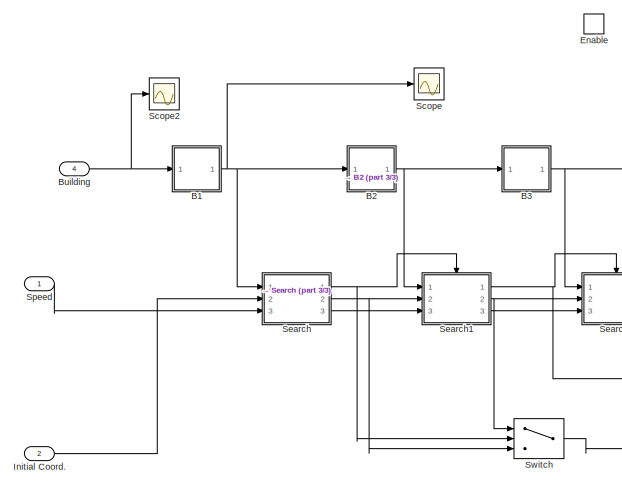
[diagram: Search for Fire/Seaerch-fire - part 1/3, middle left region]
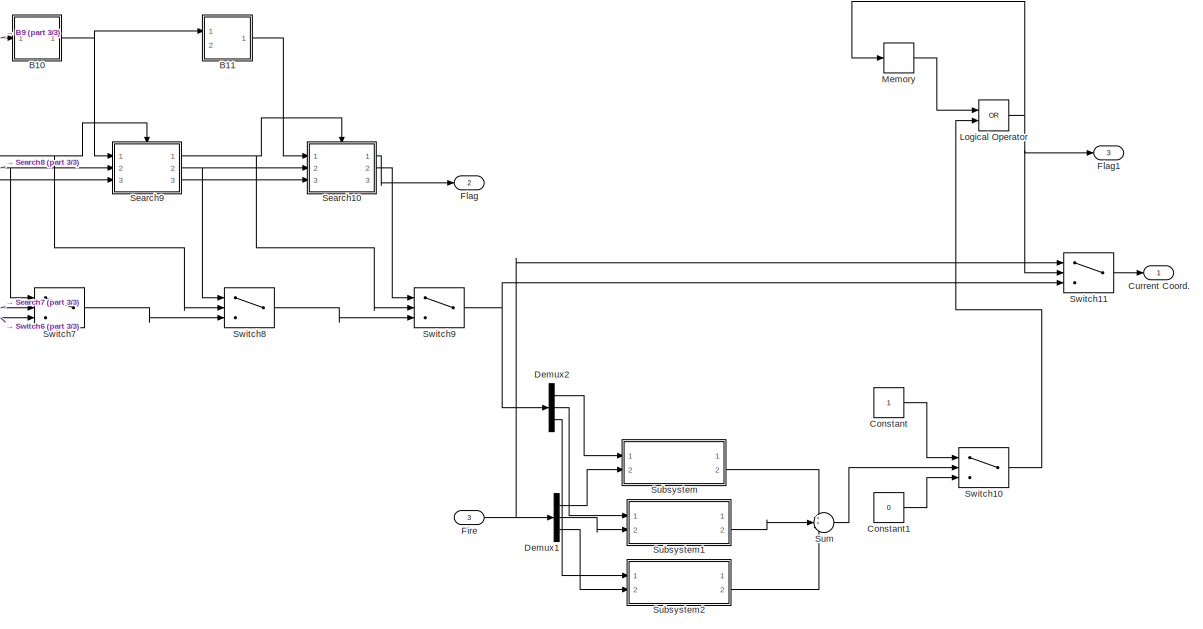
[diagram: Search for Fire/Seaerch-fire - part 2/3, right side, full height]
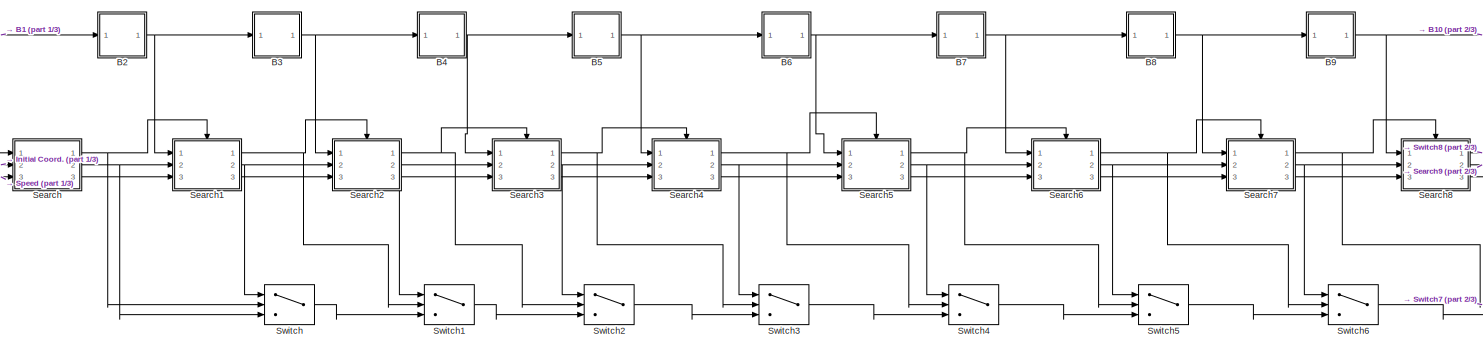
[diagram: Search for Fire/Seaerch-fire - part 3/3, central region]
BLOCK [SubSystem] Search for Fire/Seaerch-fire
  Ports = [4, 3, 1]
  RequestExecContextInheritance = off
BLOCK [SubSystem] Search for Fire/Seaerch-fire/B1
  Ports = [1, 1]
  RequestExecContextInheritance = off
BLOCK [Inport] Search for Fire/Seaerch-fire/B1/Building
BLOCK [Constant] Search for Fire/Seaerch-fire/B1/Constant
  Value = 18
BLOCK [Demux] Search for Fire/Seaerch-fire/B1/Demux
  Outputs = 3
  Ports = [1, 3]
BLOCK [Mux] Search for Fire/Seaerch-fire/B1/Mux
  DisplayOption = bar
  Inputs = 3
  Ports = [3, 1]
BLOCK [Outport] Search for Fire/Seaerch-fire/B1/O
  VectorParamsAs1DForOutWhenUnconnected = off
BLOCK [Sum] Search for Fire/Seaerch-fire/B1/Sum
  Inputs = |++
  Ports = [2, 1]
BLOCK [SubSystem] Search for Fire/Seaerch-fire/B10
  Ports = [1, 1]
  RequestExecContextInheritance = off
BLOCK [Constant] Search for Fire/Seaerch-fire/B10/Constant
  Value = 2
BLOCK [Demux] Search for Fire/Seaerch-fire/B10/Demux
  Outputs = 3
  Ports = [1, 3]
BLOCK [Inport] Search for Fire/Seaerch-fire/B10/In1
BLOCK [Mux] Search for Fire/Seaerch-fire/B10/Mux
  DisplayOption = bar
  Inputs = 3
  Ports = [3, 1]
BLOCK [Outport] Search for Fire/Seaerch-fire/B10/O
  VectorParamsAs1DForOutWhenUnconnected = off
BLOCK [Sum] Search for Fire/Seaerch-fire/B10/Sum
  Inputs = |++
  Ports = [2, 1]
BLOCK [SubSystem] Search for Fire/Seaerch-fire/B11
  PortSchema = {"entries":[{"content":{"sides":[{"content":{"connectorIds":["In1"]},"type":"ConnectorPlacement.EquallySpacedRectSide","uuid":"e2f7b148-e440-4145-b7d1-8438cbf5f998"},{"content":{"connectorIds":["Out1"],"side":"RIGHT"},"type":"ConnectorPlacement.EquallySpacedRectSide","uuid":"cb40fe30-092c-4751-a9fe-c202a7344311"},{"content":{"connectorIds":["In2"],"side":"TOP"},"type":"ConnectorPlacement.EquallySp...<+245ch>
  Ports = [2, 1]
  RequestExecContextInheritance = off
BLOCK [Constant] Search for Fire/Seaerch-fire/B11/Constant
  Value = 18
BLOCK [Demux] Search for Fire/Seaerch-fire/B11/Demux
  Outputs = 3
  Ports = [1, 3]
BLOCK [Inport] Search for Fire/Seaerch-fire/B11/In1
BLOCK [Inport] Search for Fire/Seaerch-fire/B11/In2
  Port = 2
BLOCK [Mux] Search for Fire/Seaerch-fire/B11/Mux
  DisplayOption = bar
  Inputs = 3
  Ports = [3, 1]
BLOCK [Outport] Search for Fire/Seaerch-fire/B11/O
  VectorParamsAs1DForOutWhenUnconnected = off
BLOCK [Sum] Search for Fire/Seaerch-fire/B11/Sum
  Inputs = |+-
  Ports = [2, 1]
BLOCK [SubSystem] Search for Fire/Seaerch-fire/B2
  Ports = [1, 1]
  RequestExecContextInheritance = off
BLOCK [Constant] Search for Fire/Seaerch-fire/B2/Constant
  Value = 2
BLOCK [Demux] Search for Fire/Seaerch-fire/B2/Demux
  Outputs = 3
  Ports = [1, 3]
BLOCK [Inport] Search for Fire/Seaerch-fire/B2/In1
BLOCK [Mux] Search for Fire/Seaerch-fire/B2/Mux
  DisplayOption = bar
  Inputs = 3
  Ports = [3, 1]
BLOCK [Outport] Search for Fire/Seaerch-fire/B2/O
  VectorParamsAs1DForOutWhenUnconnected = off
BLOCK [Sum] Search for Fire/Seaerch-fire/B2/Sum
  Inputs = |++
  Ports = [2, 1]
BLOCK [SubSystem] Search for Fire/Seaerch-fire/B3
  Ports = [1, 1]
  RequestExecContextInheritance = off
BLOCK [Constant] Search for Fire/Seaerch-fire/B3/Constant
  Value = 18
BLOCK [Demux] Search for Fire/Seaerch-fire/B3/Demux
  Outputs = 3
  Ports = [1, 3]
BLOCK [Inport] Search for Fire/Seaerch-fire/B3/In1
BLOCK [Mux] Search for Fire/Seaerch-fire/B3/Mux
  DisplayOption = bar
  Inputs = 3
  Ports = [3, 1]
BLOCK [Outport] Search for Fire/Seaerch-fire/B3/O
  VectorParamsAs1DForOutWhenUnconnected = off
BLOCK [Sum] Search for Fire/Seaerch-fire/B3/Sum
  Inputs = |+-
  Ports = [2, 1]
BLOCK [SubSystem] Search for Fire/Seaerch-fire/B4
  Ports = [1, 1]
  RequestExecContextInheritance = off
BLOCK [Constant] Search for Fire/Seaerch-fire/B4/Constant
  Value = 2
BLOCK [Demux] Search for Fire/Seaerch-fire/B4/Demux
  Outputs = 3
  Ports = [1, 3]
BLOCK [Inport] Search for Fire/Seaerch-fire/B4/In1
BLOCK [Mux] Search for Fire/Seaerch-fire/B4/Mux
  DisplayOption = bar
  Inputs = 3
  Ports = [3, 1]
BLOCK [Outport] Search for Fire/Seaerch-fire/B4/O
  VectorParamsAs1DForOutWhenUnconnected = off
BLOCK [Sum] Search for Fire/Seaerch-fire/B4/Sum
  Inputs = |++
  Ports = [2, 1]
BLOCK [SubSystem] Search for Fire/Seaerch-fire/B5
  Ports = [1, 1]
  RequestExecContextInheritance = off
BLOCK [Constant] Search for Fire/Seaerch-fire/B5/Constant
  Value = 18
BLOCK [Demux] Search for Fire/Seaerch-fire/B5/Demux
  Outputs = 3
  Ports = [1, 3]
BLOCK [Inport] Search for Fire/Seaerch-fire/B5/In1
BLOCK [Mux] Search for Fire/Seaerch-fire/B5/Mux
  DisplayOption = bar
  Inputs = 3
  Ports = [3, 1]
BLOCK [Outport] Search for Fire/Seaerch-fire/B5/O
  VectorParamsAs1DForOutWhenUnconnected = off
BLOCK [Sum] Search for Fire/Seaerch-fire/B5/Sum
  Inputs = |++
  Ports = [2, 1]
BLOCK [SubSystem] Search for Fire/Seaerch-fire/B6
  Ports = [1, 1]
  RequestExecContextInheritance = off
BLOCK [Constant] Search for Fire/Seaerch-fire/B6/Constant
  Value = 2
BLOCK [Demux] Search for Fire/Seaerch-fire/B6/Demux
  Outputs = 3
  Ports = [1, 3]
BLOCK [Inport] Search for Fire/Seaerch-fire/B6/In1
BLOCK [Mux] Search for Fire/Seaerch-fire/B6/Mux
  DisplayOption = bar
  Inputs = 3
  Ports = [3, 1]
BLOCK [Outport] Search for Fire/Seaerch-fire/B6/O
  VectorParamsAs1DForOutWhenUnconnected = off
BLOCK [Sum] Search for Fire/Seaerch-fire/B6/Sum
  Inputs = |++
  Ports = [2, 1]
BLOCK [SubSystem] Search for Fire/Seaerch-fire/B7
  Ports = [1, 1]
  RequestExecContextInheritance = off
BLOCK [Constant] Search for Fire/Seaerch-fire/B7/Constant
  Value = 18
BLOCK [Demux] Search for Fire/Seaerch-fire/B7/Demux
  Outputs = 3
  Ports = [1, 3]
BLOCK [Inport] Search for Fire/Seaerch-fire/B7/In1
BLOCK [Mux] Search for Fire/Seaerch-fire/B7/Mux
  DisplayOption = bar
  Inputs = 3
  Ports = [3, 1]
BLOCK [Outport] Search for Fire/Seaerch-fire/B7/O
  VectorParamsAs1DForOutWhenUnconnected = off
BLOCK [Sum] Search for Fire/Seaerch-fire/B7/Sum
  Inputs = |+-
  Ports = [2, 1]
BLOCK [SubSystem] Search for Fire/Seaerch-fire/B8
  Ports = [1, 1]
  RequestExecContextInheritance = off
BLOCK [Constant] Search for Fire/Seaerch-fire/B8/Constant
  Value = 2
BLOCK [Demux] Search for Fire/Seaerch-fire/B8/Demux
  Outputs = 3
  Ports = [1, 3]
BLOCK [Inport] Search for Fire/Seaerch-fire/B8/In1
BLOCK [Mux] Search for Fire/Seaerch-fire/B8/Mux
  DisplayOption = bar
  Inputs = 3
  Ports = [3, 1]
BLOCK [Outport] Search for Fire/Seaerch-fire/B8/O
  VectorParamsAs1DForOutWhenUnconnected = off
BLOCK [Sum] Search for Fire/Seaerch-fire/B8/Sum
  Inputs = |++
  Ports = [2, 1]
BLOCK [SubSystem] Search for Fire/Seaerch-fire/B9
  Ports = [1, 1]
  RequestExecContextInheritance = off
BLOCK [Constant] Search for Fire/Seaerch-fire/B9/Constant
  Value = 18
BLOCK [Demux] Search for Fire/Seaerch-fire/B9/Demux
  Outputs = 3
  Ports = [1, 3]
BLOCK [Inport] Search for Fire/Seaerch-fire/B9/In1
BLOCK [Mux] Search for Fire/Seaerch-fire/B9/Mux
  DisplayOption = bar
  Inputs = 3
  Ports = [3, 1]
BLOCK [Outport] Search for Fire/Seaerch-fire/B9/O
  VectorParamsAs1DForOutWhenUnconnected = off
BLOCK [Sum] Search for Fire/Seaerch-fire/B9/Sum
  Inputs = |++
  Ports = [2, 1]
BLOCK [Inport] Search for Fire/Seaerch-fire/Building
  Port = 4
BLOCK [Constant] Search for Fire/Seaerch-fire/Constant
BLOCK [Constant] Search for Fire/Seaerch-fire/Constant1
  Value = 0
BLOCK [Outport] Search for Fire/Seaerch-fire/Current Coord.
  VectorParamsAs1DForOutWhenUnconnected = off
BLOCK [Demux] Search for Fire/Seaerch-fire/Demux1
  Outputs = 3
  Ports = [1, 3]
BLOCK [Demux] Search for Fire/Seaerch-fire/Demux2
  Outputs = 3
  Ports = [1, 3]
BLOCK [EnablePort] Search for Fire/Seaerch-fire/Enable
  Ports = []
BLOCK [Inport] Search for Fire/Seaerch-fire/Fire
  Port = 3
BLOCK [Outport] Search for Fire/Seaerch-fire/Flag
  Port = 2
  VectorParamsAs1DForOutWhenUnconnected = off
BLOCK [Outport] Search for Fire/Seaerch-fire/Flag1
  Port = 3
  VectorParamsAs1DForOutWhenUnconnected = off
BLOCK [Inport] Search for Fire/Seaerch-fire/Initial Coord.
  Port = 2
BLOCK [Logic] Search for Fire/Seaerch-fire/Logical Operator
  AllPortsSameDT = off
  Operator = OR
  OutDataTypeStr = boolean
  Ports = [2, 1]
BLOCK [Memory] Search for Fire/Seaerch-fire/Memory
BLOCK [Scope] Search for Fire/Seaerch-fire/Scope
  Floating = off
  NumInputPorts = 1
  Ports = [1]
  ScopeSpecificationString = Simulink.scopes.TimeScopeBlockCfg('CurrentConfiguration', extmgr.ConfigurationSet(extmgr.Configuration('Core','General UI',true),extmgr.Configuration('Core','Source UI',true),extmgr.Configuration('Sources','WiredSimulink',true,'DataLoggingVariableName','ScopeData3'),extmgr.Configuration('Visuals','Time Domain',true,'SerializedDisplays',{struct('MinYLimReal','13.75','MaxYLimReal','26.25','YLabelRea...<+1466ch>
BLOCK [Scope] Search for Fire/Seaerch-fire/Scope2
  Floating = off
  NumInputPorts = 1
  Ports = [1]
  ScopeSpecificationString = Simulink.scopes.TimeScopeBlockCfg('CurrentConfiguration', extmgr.ConfigurationSet(extmgr.Configuration('Core','General UI',true),extmgr.Configuration('Core','Source UI',true),extmgr.Configuration('Sources','WiredSimulink',true,'DataLoggingVariableName','ScopeData5'),extmgr.Configuration('Visuals','Time Domain',true,'SerializedDisplays',{struct('MinYLimReal','-0.875','MaxYLimReal','27.875','YLabelR...<+1494ch>
BLOCK [SubSystem] Search for Fire/Seaerch-fire/Search
  Ports = [3, 3]
  RequestExecContextInheritance = off
BLOCK [Outport] Search for Fire/Seaerch-fire/Search/Acc
  Port = 3
  VectorParamsAs1DForOutWhenUnconnected = off
BLOCK [Inport] Search for Fire/Seaerch-fire/Search/Accel
  Port = 3
BLOCK [Constant] Search for Fire/Seaerch-fire/Search/Constant
BLOCK [Constant] Search for Fire/Seaerch-fire/Search/Constant1
  Value = 0
BLOCK [Outport] Search for Fire/Seaerch-fire/Search/Current Coord.
  Port = 2
  VectorParamsAs1DForOutWhenUnconnected = off
BLOCK [Demux] Search for Fire/Seaerch-fire/Search/Demux
  Outputs = 3
  Ports = [1, 3]
BLOCK [Demux] Search for Fire/Seaerch-fire/Search/Demux1
  Outputs = 3
  Ports = [1, 3]
BLOCK [Display] Search for Fire/Seaerch-fire/Search/Display
  Decimation = 1
  Ports = [1]
BLOCK [Display] Search for Fire/Seaerch-fire/Search/Display2
  Decimation = 1
  Ports = [1]
BLOCK [Inport] Search for Fire/Seaerch-fire/Search/Final Coord.
BLOCK [Outport] Search for Fire/Seaerch-fire/Search/Flag
  VectorParamsAs1DForOutWhenUnconnected = off
BLOCK [Inport] Search for Fire/Seaerch-fire/Search/Initial Coord.
  Port = 2
BLOCK [SubSystem] Search for Fire/Seaerch-fire/Search/Move Arm1
  Ports = [3, 2]
  RequestExecContextInheritance = off
BLOCK [Inport] Search for Fire/Seaerch-fire/Search/Move Arm1/Desired Angle
  Port = 3
BLOCK [Outport] Search for Fire/Seaerch-fire/Search/Move Arm1/Done
  Port = 2
  VectorParamsAs1DForOutWhenUnconnected = off
BLOCK [If] Search for Fire/Seaerch-fire/Search/Move Arm1/If
  Ports = [1, 2]
BLOCK [SubSystem] Search for Fire/Seaerch-fire/Search/Move Arm1/If Action Subsystem
  Ports = [1, 1, 0, 0, 0, 0, 0, 1]
  RequestExecContextInheritance = off
  TreatAsAtomicUnit = on
BLOCK [ActionPort] Search for Fire/Seaerch-fire/Search/Move Arm1/If Action Subsystem/Action Port
  ActionPortLabel = if(u1 > 0)
BLOCK [Inport] Search for Fire/Seaerch-fire/Search/Move Arm1/If Action Subsystem/In1
BLOCK [Outport] Search for Fire/Seaerch-fire/Search/Move Arm1/If Action Subsystem/Out1
  VectorParamsAs1DForOutWhenUnconnected = off
BLOCK [SubSystem] Search for Fire/Seaerch-fire/Search/Move Arm1/If Action Subsystem1
  Ports = [1, 1, 0, 0, 0, 0, 0, 1]
  RequestExecContextInheritance = off
  TreatAsAtomicUnit = on
BLOCK [ActionPort] Search for Fire/Seaerch-fire/Search/Move Arm1/If Action Subsystem1/Action Port
  ActionPortLabel = else
BLOCK [Inport] Search for Fire/Seaerch-fire/Search/Move Arm1/If Action Subsystem1/In1
BLOCK [Outport] Search for Fire/Seaerch-fire/Search/Move Arm1/If Action Subsystem1/Out1
  VectorParamsAs1DForOutWhenUnconnected = off
BLOCK [Integrator] Search for Fire/Seaerch-fire/Search/Move Arm1/Integrator1
  Ports = [1, 1]
BLOCK [Outport] Search for Fire/Seaerch-fire/Search/Move Arm1/Out1
  VectorParamsAs1DForOutWhenUnconnected = off
BLOCK [Scope] Search for Fire/Seaerch-fire/Search/Move Arm1/Scope
  Floating = off
  NumInputPorts = 1
  Ports = [1]
BLOCK [Scope] Search for Fire/Seaerch-fire/Search/Move Arm1/Scope1
  Floating = off
  NumInputPorts = 1
  Ports = [1]
BLOCK [Inport] Search for Fire/Seaerch-fire/Search/Move Arm1/Speed
BLOCK [Inport] Search for Fire/Seaerch-fire/Search/Move Arm1/Starting Angle
  Port = 2
BLOCK [SubSystem] Search for Fire/Seaerch-fire/Search/Move Arm1/Subsystem
  Ports = [2, 2]
  RequestExecContextInheritance = off
BLOCK [Abs] Search for Fire/Seaerch-fire/Search/Move Arm1/Subsystem/Abs
  SaturateOnIntegerOverflow = off
BLOCK [Constant] Search for Fire/Seaerch-fire/Search/Move Arm1/Subsystem/Constant
BLOCK [Inport] Search for Fire/Seaerch-fire/Search/Move Arm1/Subsystem/Current Angle
  Port = 2
BLOCK [Inport] Search for Fire/Seaerch-fire/Search/Move Arm1/Subsystem/Desired Angle
BLOCK [Outport] Search for Fire/Seaerch-fire/Search/Move Arm1/Subsystem/Done
  Port = 2
  VectorParamsAs1DForOutWhenUnconnected = off
BLOCK [Logic] Search for Fire/Seaerch-fire/Search/Move Arm1/Subsystem/Logical Operator
  AllPortsSameDT = off
  Operator = OR
  OutDataTypeStr = boolean
  Ports = [2, 1]
BLOCK [Memory] Search for Fire/Seaerch-fire/Search/Move Arm1/Subsystem/Memory
BLOCK [Outport] Search for Fire/Seaerch-fire/Search/Move Arm1/Subsystem/Out1
  VectorParamsAs1DForOutWhenUnconnected = off
BLOCK [RelationalOperator] Search for Fire/Seaerch-fire/Search/Move Arm1/Subsystem/Relational Operator
  InputSameDT = off
  Operator = <=
  OutDataTypeStr = boolean
  Ports = [2, 1]
  RndMeth = Simplest
BLOCK [Sum] Search for Fire/Seaerch-fire/Search/Move Arm1/Subsystem/Sum
  Inputs = |+-
  Ports = [2, 1]
BLOCK [Switch] Search for Fire/Seaerch-fire/Search/Move Arm1/Subsystem/Switch1
  Criteria = u2 > Threshold
  InputSameDT = off
  SaturateOnIntegerOverflow = off
BLOCK [Sum] Search for Fire/Seaerch-fire/Search/Move Arm1/Sum1
  Inputs = |++
  Ports = [2, 1]
BLOCK [Sum] Search for Fire/Seaerch-fire/Search/Move Arm1/Sum2
  Inputs = |+-
  Ports = [2, 1]
BLOCK [Sum] Search for Fire/Seaerch-fire/Search/Move Arm1/Sum3
  Inputs = |-+
  Ports = [2, 1]
BLOCK [Switch] Search for Fire/Seaerch-fire/Search/Move Arm1/Switch
  Criteria = u2 ~= 0
  InputSameDT = off
  SaturateOnIntegerOverflow = off
BLOCK [SubSystem] Search for Fire/Seaerch-fire/Search/Move Arm2
  Ports = [3, 2]
  RequestExecContextInheritance = off
BLOCK [Inport] Search for Fire/Seaerch-fire/Search/Move Arm2/Desired Angle
  Port = 3
BLOCK [Outport] Search for Fire/Seaerch-fire/Search/Move Arm2/Done
  Port = 2
  VectorParamsAs1DForOutWhenUnconnected = off
BLOCK [If] Search for Fire/Seaerch-fire/Search/Move Arm2/If
  Ports = [1, 2]
BLOCK [SubSystem] Search for Fire/Seaerch-fire/Search/Move Arm2/If Action Subsystem
  Ports = [1, 1, 0, 0, 0, 0, 0, 1]
  RequestExecContextInheritance = off
  TreatAsAtomicUnit = on
BLOCK [ActionPort] Search for Fire/Seaerch-fire/Search/Move Arm2/If Action Subsystem/Action Port
  ActionPortLabel = if(u1 > 0)
BLOCK [Inport] Search for Fire/Seaerch-fire/Search/Move Arm2/If Action Subsystem/In1
BLOCK [Outport] Search for Fire/Seaerch-fire/Search/Move Arm2/If Action Subsystem/Out1
  VectorParamsAs1DForOutWhenUnconnected = off
BLOCK [SubSystem] Search for Fire/Seaerch-fire/Search/Move Arm2/If Action Subsystem1
  Ports = [1, 1, 0, 0, 0, 0, 0, 1]
  RequestExecContextInheritance = off
  TreatAsAtomicUnit = on
BLOCK [ActionPort] Search for Fire/Seaerch-fire/Search/Move Arm2/If Action Subsystem1/Action Port
  ActionPortLabel = else
BLOCK [Inport] Search for Fire/Seaerch-fire/Search/Move Arm2/If Action Subsystem1/In1
BLOCK [Outport] Search for Fire/Seaerch-fire/Search/Move Arm2/If Action Subsystem1/Out1
  VectorParamsAs1DForOutWhenUnconnected = off
BLOCK [Integrator] Search for Fire/Seaerch-fire/Search/Move Arm2/Integrator1
  Ports = [1, 1]
BLOCK [Outport] Search for Fire/Seaerch-fire/Search/Move Arm2/Out1
  VectorParamsAs1DForOutWhenUnconnected = off
BLOCK [Scope] Search for Fire/Seaerch-fire/Search/Move Arm2/Scope
  Floating = off
  NumInputPorts = 1
  Ports = [1]
BLOCK [Inport] Search for Fire/Seaerch-fire/Search/Move Arm2/Speed
BLOCK [Inport] Search for Fire/Seaerch-fire/Search/Move Arm2/Starting Angle
  Port = 2
BLOCK [SubSystem] Search for Fire/Seaerch-fire/Search/Move Arm2/Subsystem
  Ports = [2, 2]
  RequestExecContextInheritance = off
BLOCK [Abs] Search for Fire/Seaerch-fire/Search/Move Arm2/Subsystem/Abs
  SaturateOnIntegerOverflow = off
BLOCK [Constant] Search for Fire/Seaerch-fire/Search/Move Arm2/Subsystem/Constant
BLOCK [Inport] Search for Fire/Seaerch-fire/Search/Move Arm2/Subsystem/Current Angle
  Port = 2
BLOCK [Inport] Search for Fire/Seaerch-fire/Search/Move Arm2/Subsystem/Desired Angle
BLOCK [Outport] Search for Fire/Seaerch-fire/Search/Move Arm2/Subsystem/Done
  Port = 2
  VectorParamsAs1DForOutWhenUnconnected = off
BLOCK [Logic] Search for Fire/Seaerch-fire/Search/Move Arm2/Subsystem/Logical Operator
  AllPortsSameDT = off
  Operator = OR
  OutDataTypeStr = boolean
  Ports = [2, 1]
BLOCK [Memory] Search for Fire/Seaerch-fire/Search/Move Arm2/Subsystem/Memory
BLOCK [Outport] Search for Fire/Seaerch-fire/Search/Move Arm2/Subsystem/Out1
  VectorParamsAs1DForOutWhenUnconnected = off
BLOCK [RelationalOperator] Search for Fire/Seaerch-fire/Search/Move Arm2/Subsystem/Relational Operator
  InputSameDT = off
  Operator = <=
  OutDataTypeStr = boolean
  Ports = [2, 1]
  RndMeth = Simplest
BLOCK [Sum] Search for Fire/Seaerch-fire/Search/Move Arm2/Subsystem/Sum
  Inputs = |+-
  Ports = [2, 1]
BLOCK [Switch] Search for Fire/Seaerch-fire/Search/Move Arm2/Subsystem/Switch1
  Criteria = u2 > Threshold
  InputSameDT = off
  SaturateOnIntegerOverflow = off
BLOCK [Sum] Search for Fire/Seaerch-fire/Search/Move Arm2/Sum1
  Inputs = |++
  Ports = [2, 1]
BLOCK [Sum] Search for Fire/Seaerch-fire/Search/Move Arm2/Sum2
  Inputs = |+-
  Ports = [2, 1]
BLOCK [Sum] Search for Fire/Seaerch-fire/Search/Move Arm2/Sum3
  Inputs = |-+
  Ports = [2, 1]
BLOCK [Switch] Search for Fire/Seaerch-fire/Search/Move Arm2/Switch
  Criteria = u2 ~= 0
  InputSameDT = off
  SaturateOnIntegerOverflow = off
BLOCK [SubSystem] Search for Fire/Seaerch-fire/Search/Move Arm3
  Ports = [3, 2]
  RequestExecContextInheritance = off
BLOCK [Inport] Search for Fire/Seaerch-fire/Search/Move Arm3/Desired Angle
  Port = 3
BLOCK [Outport] Search for Fire/Seaerch-fire/Search/Move Arm3/Done
  Port = 2
  VectorParamsAs1DForOutWhenUnconnected = off
BLOCK [If] Search for Fire/Seaerch-fire/Search/Move Arm3/If
  Ports = [1, 2]
BLOCK [SubSystem] Search for Fire/Seaerch-fire/Search/Move Arm3/If Action Subsystem
  Ports = [1, 1, 0, 0, 0, 0, 0, 1]
  RequestExecContextInheritance = off
  TreatAsAtomicUnit = on
BLOCK [ActionPort] Search for Fire/Seaerch-fire/Search/Move Arm3/If Action Subsystem/Action Port
  ActionPortLabel = if(u1 > 0)
BLOCK [Inport] Search for Fire/Seaerch-fire/Search/Move Arm3/If Action Subsystem/In1
BLOCK [Outport] Search for Fire/Seaerch-fire/Search/Move Arm3/If Action Subsystem/Out1
  VectorParamsAs1DForOutWhenUnconnected = off
BLOCK [SubSystem] Search for Fire/Seaerch-fire/Search/Move Arm3/If Action Subsystem1
  Ports = [1, 1, 0, 0, 0, 0, 0, 1]
  RequestExecContextInheritance = off
  TreatAsAtomicUnit = on
BLOCK [ActionPort] Search for Fire/Seaerch-fire/Search/Move Arm3/If Action Subsystem1/Action Port
  ActionPortLabel = else
BLOCK [Inport] Search for Fire/Seaerch-fire/Search/Move Arm3/If Action Subsystem1/In1
BLOCK [Outport] Search for Fire/Seaerch-fire/Search/Move Arm3/If Action Subsystem1/Out1
  VectorParamsAs1DForOutWhenUnconnected = off
BLOCK [Integrator] Search for Fire/Seaerch-fire/Search/Move Arm3/Integrator1
  Ports = [1, 1]
BLOCK [Outport] Search for Fire/Seaerch-fire/Search/Move Arm3/Out1
  VectorParamsAs1DForOutWhenUnconnected = off
BLOCK [Scope] Search for Fire/Seaerch-fire/Search/Move Arm3/Scope
  Floating = off
  NumInputPorts = 1
  Ports = [1]
BLOCK [Inport] Search for Fire/Seaerch-fire/Search/Move Arm3/Speed
BLOCK [Inport] Search for Fire/Seaerch-fire/Search/Move Arm3/Starting Angle
  Port = 2
BLOCK [SubSystem] Search for Fire/Seaerch-fire/Search/Move Arm3/Subsystem
  Ports = [2, 2]
  RequestExecContextInheritance = off
BLOCK [Abs] Search for Fire/Seaerch-fire/Search/Move Arm3/Subsystem/Abs
  SaturateOnIntegerOverflow = off
BLOCK [Constant] Search for Fire/Seaerch-fire/Search/Move Arm3/Subsystem/Constant
BLOCK [Inport] Search for Fire/Seaerch-fire/Search/Move Arm3/Subsystem/Current Angle
  Port = 2
BLOCK [Inport] Search for Fire/Seaerch-fire/Search/Move Arm3/Subsystem/Desired Angle
BLOCK [Outport] Search for Fire/Seaerch-fire/Search/Move Arm3/Subsystem/Done
  Port = 2
  VectorParamsAs1DForOutWhenUnconnected = off
BLOCK [Logic] Search for Fire/Seaerch-fire/Search/Move Arm3/Subsystem/Logical Operator
  AllPortsSameDT = off
  Operator = OR
  OutDataTypeStr = boolean
  Ports = [2, 1]
BLOCK [Memory] Search for Fire/Seaerch-fire/Search/Move Arm3/Subsystem/Memory
BLOCK [Outport] Search for Fire/Seaerch-fire/Search/Move Arm3/Subsystem/Out1
  VectorParamsAs1DForOutWhenUnconnected = off
BLOCK [RelationalOperator] Search for Fire/Seaerch-fire/Search/Move Arm3/Subsystem/Relational Operator
  InputSameDT = off
  Operator = <=
  OutDataTypeStr = boolean
  Ports = [2, 1]
  RndMeth = Simplest
BLOCK [Sum] Search for Fire/Seaerch-fire/Search/Move Arm3/Subsystem/Sum
  Inputs = |+-
  Ports = [2, 1]
BLOCK [Switch] Search for Fire/Seaerch-fire/Search/Move Arm3/Subsystem/Switch1
  Criteria = u2 > Threshold
  InputSameDT = off
  SaturateOnIntegerOverflow = off
BLOCK [Sum] Search for Fire/Seaerch-fire/Search/Move Arm3/Sum1
  Inputs = |++
  Ports = [2, 1]
BLOCK [Sum] Search for Fire/Seaerch-fire/Search/Move Arm3/Sum2
  Inputs = |+-
  Ports = [2, 1]
BLOCK [Sum] Search for Fire/Seaerch-fire/Search/Move Arm3/Sum3
  Inputs = |-+
  Ports = [2, 1]
BLOCK [Switch] Search for Fire/Seaerch-fire/Search/Move Arm3/Switch
  Criteria = u2 ~= 0
  InputSameDT = off
  SaturateOnIntegerOverflow = off
BLOCK [Mux] Search for Fire/Seaerch-fire/Search/Mux
  DisplayOption = bar
  Inputs = 3
  Ports = [3, 1]
BLOCK [Mux] Search for Fire/Seaerch-fire/Search/Mux1
  DisplayOption = bar
  Inputs = 3
  Ports = [3, 1]
BLOCK [Scope] Search for Fire/Seaerch-fire/Search/Scope
  Floating = off
  NumInputPorts = 1
  Ports = [1]
BLOCK [Scope] Search for Fire/Seaerch-fire/Search/Scope1
  Floating = off
  NumInputPorts = 3
  Ports = [3]
BLOCK [Scope] Search for Fire/Seaerch-fire/Search/Scope2
  Floating = off
  NumInputPorts = 1
  Ports = [1]
BLOCK [Scope] Search for Fire/Seaerch-fire/Search/Scope3
  Floating = off
  NumInputPorts = 1
  Ports = [1]
BLOCK [Sum] Search for Fire/Seaerch-fire/Search/Sum
  Inputs = 3
  Ports = [3, 1]
BLOCK [Switch] Search for Fire/Seaerch-fire/Search/Switch
  InputSameDT = off
  SaturateOnIntegerOverflow = off
  Threshold = 3
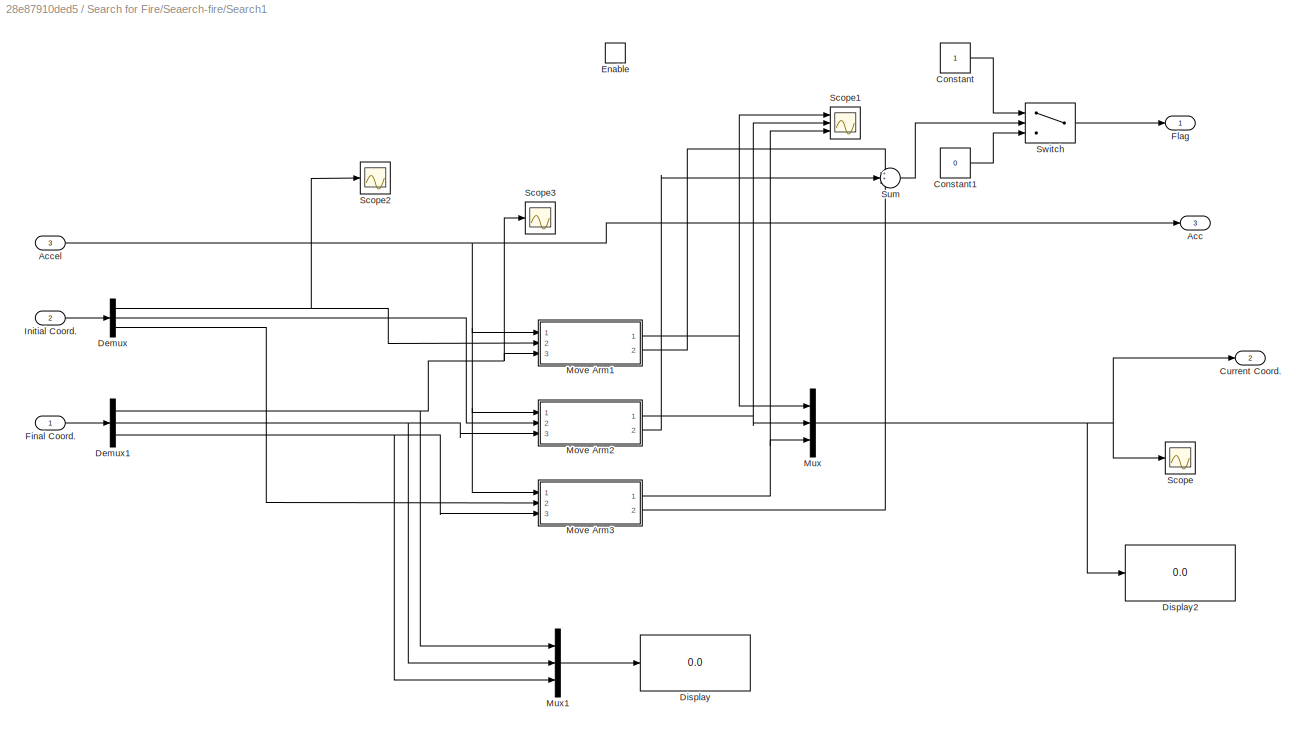
BLOCK [SubSystem] Search for Fire/Seaerch-fire/Search1
  Ports = [3, 3, 1]
  RequestExecContextInheritance = off
BLOCK [Outport] Search for Fire/Seaerch-fire/Search1/Acc
  Port = 3
  VectorParamsAs1DForOutWhenUnconnected = off
BLOCK [Inport] Search for Fire/Seaerch-fire/Search1/Accel
  Port = 3
BLOCK [Constant] Search for Fire/Seaerch-fire/Search1/Constant
BLOCK [Constant] Search for Fire/Seaerch-fire/Search1/Constant1
  Value = 0
BLOCK [Outport] Search for Fire/Seaerch-fire/Search1/Current Coord.
  Port = 2
  VectorParamsAs1DForOutWhenUnconnected = off
BLOCK [Demux] Search for Fire/Seaerch-fire/Search1/Demux
  Outputs = 3
  Ports = [1, 3]
BLOCK [Demux] Search for Fire/Seaerch-fire/Search1/Demux1
  Outputs = 3
  Ports = [1, 3]
BLOCK [Display] Search for Fire/Seaerch-fire/Search1/Display
  Decimation = 1
  Ports = [1]
BLOCK [Display] Search for Fire/Seaerch-fire/Search1/Display2
  Decimation = 1
  Ports = [1]
BLOCK [EnablePort] Search for Fire/Seaerch-fire/Search1/Enable
  Ports = []
BLOCK [Inport] Search for Fire/Seaerch-fire/Search1/Final Coord.
BLOCK [Outport] Search for Fire/Seaerch-fire/Search1/Flag
  VectorParamsAs1DForOutWhenUnconnected = off
BLOCK [Inport] Search for Fire/Seaerch-fire/Search1/Initial Coord.
  Port = 2
BLOCK [SubSystem] Search for Fire/Seaerch-fire/Search1/Move Arm1
  Ports = [3, 2]
  RequestExecContextInheritance = off
BLOCK [Inport] Search for Fire/Seaerch-fire/Search1/Move Arm1/Desired Angle
  Port = 3
BLOCK [Outport] Search for Fire/Seaerch-fire/Search1/Move Arm1/Done
  Port = 2
  VectorParamsAs1DForOutWhenUnconnected = off
BLOCK [If] Search for Fire/Seaerch-fire/Search1/Move Arm1/If
  Ports = [1, 2]
BLOCK [SubSystem] Search for Fire/Seaerch-fire/Search1/Move Arm1/If Action Subsystem
  Ports = [1, 1, 0, 0, 0, 0, 0, 1]
  RequestExecContextInheritance = off
  TreatAsAtomicUnit = on
BLOCK [ActionPort] Search for Fire/Seaerch-fire/Search1/Move Arm1/If Action Subsystem/Action Port
  ActionPortLabel = if(u1 > 0)
BLOCK [Inport] Search for Fire/Seaerch-fire/Search1/Move Arm1/If Action Subsystem/In1
BLOCK [Outport] Search for Fire/Seaerch-fire/Search1/Move Arm1/If Action Subsystem/Out1
  VectorParamsAs1DForOutWhenUnconnected = off
BLOCK [SubSystem] Search for Fire/Seaerch-fire/Search1/Move Arm1/If Action Subsystem1
  Ports = [1, 1, 0, 0, 0, 0, 0, 1]
  RequestExecContextInheritance = off
  TreatAsAtomicUnit = on
BLOCK [ActionPort] Search for Fire/Seaerch-fire/Search1/Move Arm1/If Action Subsystem1/Action Port
  ActionPortLabel = else
BLOCK [Inport] Search for Fire/Seaerch-fire/Search1/Move Arm1/If Action Subsystem1/In1
BLOCK [Outport] Search for Fire/Seaerch-fire/Search1/Move Arm1/If Action Subsystem1/Out1
  VectorParamsAs1DForOutWhenUnconnected = off
BLOCK [Integrator] Search for Fire/Seaerch-fire/Search1/Move Arm1/Integrator1
  Ports = [1, 1]
BLOCK [Outport] Search for Fire/Seaerch-fire/Search1/Move Arm1/Out1
  VectorParamsAs1DForOutWhenUnconnected = off
BLOCK [Scope] Search for Fire/Seaerch-fire/Search1/Move Arm1/Scope
  Floating = off
  NumInputPorts = 1
  Ports = [1]
BLOCK [Scope] Search for Fire/Seaerch-fire/Search1/Move Arm1/Scope1
  Floating = off
  NumInputPorts = 1
  Ports = [1]
BLOCK [Inport] Search for Fire/Seaerch-fire/Search1/Move Arm1/Speed
BLOCK [Inport] Search for Fire/Seaerch-fire/Search1/Move Arm1/Starting Angle
  Port = 2
BLOCK [SubSystem] Search for Fire/Seaerch-fire/Search1/Move Arm1/Subsystem
  Ports = [2, 2]
  RequestExecContextInheritance = off
BLOCK [Abs] Search for Fire/Seaerch-fire/Search1/Move Arm1/Subsystem/Abs
  SaturateOnIntegerOverflow = off
BLOCK [Constant] Search for Fire/Seaerch-fire/Search1/Move Arm1/Subsystem/Constant
BLOCK [Inport] Search for Fire/Seaerch-fire/Search1/Move Arm1/Subsystem/Current Angle
  Port = 2
BLOCK [Inport] Search for Fire/Seaerch-fire/Search1/Move Arm1/Subsystem/Desired Angle
BLOCK [Outport] Search for Fire/Seaerch-fire/Search1/Move Arm1/Subsystem/Done
  Port = 2
  VectorParamsAs1DForOutWhenUnconnected = off
BLOCK [Logic] Search for Fire/Seaerch-fire/Search1/Move Arm1/Subsystem/Logical Operator
  AllPortsSameDT = off
  Operator = OR
  OutDataTypeStr = boolean
  Ports = [2, 1]
BLOCK [Memory] Search for Fire/Seaerch-fire/Search1/Move Arm1/Subsystem/Memory
BLOCK [Outport] Search for Fire/Seaerch-fire/Search1/Move Arm1/Subsystem/Out1
  VectorParamsAs1DForOutWhenUnconnected = off
BLOCK [RelationalOperator] Search for Fire/Seaerch-fire/Search1/Move Arm1/Subsystem/Relational Operator
  InputSameDT = off
  Operator = <=
  OutDataTypeStr = boolean
  Ports = [2, 1]
  RndMeth = Simplest
BLOCK [Scope] Search for Fire/Seaerch-fire/Search1/Move Arm1/Subsystem/Scope
  Floating = off
  NumInputPorts = 1
  Ports = [1]
BLOCK [Scope] Search for Fire/Seaerch-fire/Search1/Move Arm1/Subsystem/Scope1
  Floating = off
  NumInputPorts = 1
  Ports = [1]
BLOCK [Sum] Search for Fire/Seaerch-fire/Search1/Move Arm1/Subsystem/Sum
  Inputs = |+-
  Ports = [2, 1]
BLOCK [Switch] Search for Fire/Seaerch-fire/Search1/Move Arm1/Subsystem/Switch1
  Criteria = u2 > Threshold
  InputSameDT = off
  SaturateOnIntegerOverflow = off
BLOCK [Sum] Search for Fire/Seaerch-fire/Search1/Move Arm1/Sum1
  Inputs = |++
  Ports = [2, 1]
BLOCK [Sum] Search for Fire/Seaerch-fire/Search1/Move Arm1/Sum2
  Inputs = |+-
  Ports = [2, 1]
BLOCK [Sum] Search for Fire/Seaerch-fire/Search1/Move Arm1/Sum3
  Inputs = |-+
  Ports = [2, 1]
BLOCK [Switch] Search for Fire/Seaerch-fire/Search1/Move Arm1/Switch
  Criteria = u2 ~= 0
  InputSameDT = off
  SaturateOnIntegerOverflow = off
BLOCK [SubSystem] Search for Fire/Seaerch-fire/Search1/Move Arm2
  Ports = [3, 2]
  RequestExecContextInheritance = off
BLOCK [Inport] Search for Fire/Seaerch-fire/Search1/Move Arm2/Desired Angle
  Port = 3
BLOCK [Outport] Search for Fire/Seaerch-fire/Search1/Move Arm2/Done
  Port = 2
  VectorParamsAs1DForOutWhenUnconnected = off
BLOCK [If] Search for Fire/Seaerch-fire/Search1/Move Arm2/If
  Ports = [1, 2]
BLOCK [SubSystem] Search for Fire/Seaerch-fire/Search1/Move Arm2/If Action Subsystem
  Ports = [1, 1, 0, 0, 0, 0, 0, 1]
  RequestExecContextInheritance = off
  TreatAsAtomicUnit = on
BLOCK [ActionPort] Search for Fire/Seaerch-fire/Search1/Move Arm2/If Action Subsystem/Action Port
  ActionPortLabel = if(u1 > 0)
BLOCK [Inport] Search for Fire/Seaerch-fire/Search1/Move Arm2/If Action Subsystem/In1
BLOCK [Outport] Search for Fire/Seaerch-fire/Search1/Move Arm2/If Action Subsystem/Out1
  VectorParamsAs1DForOutWhenUnconnected = off
BLOCK [SubSystem] Search for Fire/Seaerch-fire/Search1/Move Arm2/If Action Subsystem1
  Ports = [1, 1, 0, 0, 0, 0, 0, 1]
  RequestExecContextInheritance = off
  TreatAsAtomicUnit = on
BLOCK [ActionPort] Search for Fire/Seaerch-fire/Search1/Move Arm2/If Action Subsystem1/Action Port
  ActionPortLabel = else
BLOCK [Inport] Search for Fire/Seaerch-fire/Search1/Move Arm2/If Action Subsystem1/In1
BLOCK [Outport] Search for Fire/Seaerch-fire/Search1/Move Arm2/If Action Subsystem1/Out1
  VectorParamsAs1DForOutWhenUnconnected = off
BLOCK [Integrator] Search for Fire/Seaerch-fire/Search1/Move Arm2/Integrator1
  Ports = [1, 1]
BLOCK [Outport] Search for Fire/Seaerch-fire/Search1/Move Arm2/Out1
  VectorParamsAs1DForOutWhenUnconnected = off
BLOCK [Scope] Search for Fire/Seaerch-fire/Search1/Move Arm2/Scope
  Floating = off
  NumInputPorts = 1
  Ports = [1]
BLOCK [Inport] Search for Fire/Seaerch-fire/Search1/Move Arm2/Speed
BLOCK [Inport] Search for Fire/Seaerch-fire/Search1/Move Arm2/Starting Angle
  Port = 2
BLOCK [SubSystem] Search for Fire/Seaerch-fire/Search1/Move Arm2/Subsystem
  Ports = [2, 2]
  RequestExecContextInheritance = off
BLOCK [Abs] Search for Fire/Seaerch-fire/Search1/Move Arm2/Subsystem/Abs
  SaturateOnIntegerOverflow = off
BLOCK [Constant] Search for Fire/Seaerch-fire/Search1/Move Arm2/Subsystem/Constant
BLOCK [Inport] Search for Fire/Seaerch-fire/Search1/Move Arm2/Subsystem/Current Angle
  Port = 2
BLOCK [Inport] Search for Fire/Seaerch-fire/Search1/Move Arm2/Subsystem/Desired Angle
BLOCK [Outport] Search for Fire/Seaerch-fire/Search1/Move Arm2/Subsystem/Done
  Port = 2
  VectorParamsAs1DForOutWhenUnconnected = off
BLOCK [Logic] Search for Fire/Seaerch-fire/Search1/Move Arm2/Subsystem/Logical Operator
  AllPortsSameDT = off
  Operator = OR
  OutDataTypeStr = boolean
  Ports = [2, 1]
BLOCK [Memory] Search for Fire/Seaerch-fire/Search1/Move Arm2/Subsystem/Memory
BLOCK [Outport] Search for Fire/Seaerch-fire/Search1/Move Arm2/Subsystem/Out1
  VectorParamsAs1DForOutWhenUnconnected = off
BLOCK [RelationalOperator] Search for Fire/Seaerch-fire/Search1/Move Arm2/Subsystem/Relational Operator
  InputSameDT = off
  Operator = <=
  OutDataTypeStr = boolean
  Ports = [2, 1]
  RndMeth = Simplest
BLOCK [Sum] Search for Fire/Seaerch-fire/Search1/Move Arm2/Subsystem/Sum
  Inputs = |+-
  Ports = [2, 1]
BLOCK [Switch] Search for Fire/Seaerch-fire/Search1/Move Arm2/Subsystem/Switch1
  Criteria = u2 > Threshold
  InputSameDT = off
  SaturateOnIntegerOverflow = off
BLOCK [Sum] Search for Fire/Seaerch-fire/Search1/Move Arm2/Sum1
  Inputs = |++
  Ports = [2, 1]
BLOCK [Sum] Search for Fire/Seaerch-fire/Search1/Move Arm2/Sum2
  Inputs = |+-
  Ports = [2, 1]
BLOCK [Sum] Search for Fire/Seaerch-fire/Search1/Move Arm2/Sum3
  Inputs = |-+
  Ports = [2, 1]
BLOCK [Switch] Search for Fire/Seaerch-fire/Search1/Move Arm2/Switch
  Criteria = u2 ~= 0
  InputSameDT = off
  SaturateOnIntegerOverflow = off
BLOCK [SubSystem] Search for Fire/Seaerch-fire/Search1/Move Arm3
  Ports = [3, 2]
  RequestExecContextInheritance = off
BLOCK [Inport] Search for Fire/Seaerch-fire/Search1/Move Arm3/Desired Angle
  Port = 3
BLOCK [Outport] Search for Fire/Seaerch-fire/Search1/Move Arm3/Done
  Port = 2
  VectorParamsAs1DForOutWhenUnconnected = off
BLOCK [If] Search for Fire/Seaerch-fire/Search1/Move Arm3/If
  Ports = [1, 2]
BLOCK [SubSystem] Search for Fire/Seaerch-fire/Search1/Move Arm3/If Action Subsystem
  Ports = [1, 1, 0, 0, 0, 0, 0, 1]
  RequestExecContextInheritance = off
  TreatAsAtomicUnit = on
BLOCK [ActionPort] Search for Fire/Seaerch-fire/Search1/Move Arm3/If Action Subsystem/Action Port
  ActionPortLabel = if(u1 > 0)
BLOCK [Inport] Search for Fire/Seaerch-fire/Search1/Move Arm3/If Action Subsystem/In1
BLOCK [Outport] Search for Fire/Seaerch-fire/Search1/Move Arm3/If Action Subsystem/Out1
  VectorParamsAs1DForOutWhenUnconnected = off
BLOCK [SubSystem] Search for Fire/Seaerch-fire/Search1/Move Arm3/If Action Subsystem1
  Ports = [1, 1, 0, 0, 0, 0, 0, 1]
  RequestExecContextInheritance = off
  TreatAsAtomicUnit = on
BLOCK [ActionPort] Search for Fire/Seaerch-fire/Search1/Move Arm3/If Action Subsystem1/Action Port
  ActionPortLabel = else
BLOCK [Inport] Search for Fire/Seaerch-fire/Search1/Move Arm3/If Action Subsystem1/In1
BLOCK [Outport] Search for Fire/Seaerch-fire/Search1/Move Arm3/If Action Subsystem1/Out1
  VectorParamsAs1DForOutWhenUnconnected = off
BLOCK [Integrator] Search for Fire/Seaerch-fire/Search1/Move Arm3/Integrator1
  Ports = [1, 1]
BLOCK [Outport] Search for Fire/Seaerch-fire/Search1/Move Arm3/Out1
  VectorParamsAs1DForOutWhenUnconnected = off
BLOCK [Scope] Search for Fire/Seaerch-fire/Search1/Move Arm3/Scope
  Floating = off
  NumInputPorts = 1
  Ports = [1]
BLOCK [Inport] Search for Fire/Seaerch-fire/Search1/Move Arm3/Speed
BLOCK [Inport] Search for Fire/Seaerch-fire/Search1/Move Arm3/Starting Angle
  Port = 2
BLOCK [SubSystem] Search for Fire/Seaerch-fire/Search1/Move Arm3/Subsystem
  Ports = [2, 2]
  RequestExecContextInheritance = off
BLOCK [Abs] Search for Fire/Seaerch-fire/Search1/Move Arm3/Subsystem/Abs
  SaturateOnIntegerOverflow = off
BLOCK [Constant] Search for Fire/Seaerch-fire/Search1/Move Arm3/Subsystem/Constant
BLOCK [Inport] Search for Fire/Seaerch-fire/Search1/Move Arm3/Subsystem/Current Angle
  Port = 2
BLOCK [Inport] Search for Fire/Seaerch-fire/Search1/Move Arm3/Subsystem/Desired Angle
BLOCK [Outport] Search for Fire/Seaerch-fire/Search1/Move Arm3/Subsystem/Done
  Port = 2
  VectorParamsAs1DForOutWhenUnconnected = off
BLOCK [Logic] Search for Fire/Seaerch-fire/Search1/Move Arm3/Subsystem/Logical Operator
  AllPortsSameDT = off
  Operator = OR
  OutDataTypeStr = boolean
  Ports = [2, 1]
BLOCK [Memory] Search for Fire/Seaerch-fire/Search1/Move Arm3/Subsystem/Memory
BLOCK [Outport] Search for Fire/Seaerch-fire/Search1/Move Arm3/Subsystem/Out1
  VectorParamsAs1DForOutWhenUnconnected = off
BLOCK [RelationalOperator] Search for Fire/Seaerch-fire/Search1/Move Arm3/Subsystem/Relational Operator
  InputSameDT = off
  Operator = <=
  OutDataTypeStr = boolean
  Ports = [2, 1]
  RndMeth = Simplest
BLOCK [Sum] Search for Fire/Seaerch-fire/Search1/Move Arm3/Subsystem/Sum
  Inputs = |+-
  Ports = [2, 1]
BLOCK [Switch] Search for Fire/Seaerch-fire/Search1/Move Arm3/Subsystem/Switch1
  Criteria = u2 > Threshold
  InputSameDT = off
  SaturateOnIntegerOverflow = off
BLOCK [Sum] Search for Fire/Seaerch-fire/Search1/Move Arm3/Sum1
  Inputs = |++
  Ports = [2, 1]
BLOCK [Sum] Search for Fire/Seaerch-fire/Search1/Move Arm3/Sum2
  Inputs = |+-
  Ports = [2, 1]
BLOCK [Sum] Search for Fire/Seaerch-fire/Search1/Move Arm3/Sum3
  Inputs = |-+
  Ports = [2, 1]
BLOCK [Switch] Search for Fire/Seaerch-fire/Search1/Move Arm3/Switch
  Criteria = u2 ~= 0
  InputSameDT = off
  SaturateOnIntegerOverflow = off
BLOCK [Mux] Search for Fire/Seaerch-fire/Search1/Mux
  DisplayOption = bar
  Inputs = 3
  Ports = [3, 1]
BLOCK [Mux] Search for Fire/Seaerch-fire/Search1/Mux1
  DisplayOption = bar
  Inputs = 3
  Ports = [3, 1]
BLOCK [Scope] Search for Fire/Seaerch-fire/Search1/Scope
  Floating = off
  NumInputPorts = 1
  Ports = [1]
BLOCK [Scope] Search for Fire/Seaerch-fire/Search1/Scope1
  Floating = off
  NumInputPorts = 3
  Ports = [3]
BLOCK [Scope] Search for Fire/Seaerch-fire/Search1/Scope2
  Floating = off
  NumInputPorts = 1
  Ports = [1]
BLOCK [Scope] Search for Fire/Seaerch-fire/Search1/Scope3
  Floating = off
  NumInputPorts = 1
  Ports = [1]
BLOCK [Sum] Search for Fire/Seaerch-fire/Search1/Sum
  Inputs = 3
  Ports = [3, 1]
BLOCK [Switch] Search for Fire/Seaerch-fire/Search1/Switch
  InputSameDT = off
  SaturateOnIntegerOverflow = off
  Threshold = 3
BLOCK [SubSystem] Search for Fire/Seaerch-fire/Search10
  Ports = [3, 3, 1]
  RequestExecContextInheritance = off
BLOCK [Outport] Search for Fire/Seaerch-fire/Search10/Acc
  Port = 3
  VectorParamsAs1DForOutWhenUnconnected = off
BLOCK [Inport] Search for Fire/Seaerch-fire/Search10/Accel
  Port = 3
BLOCK [Constant] Search for Fire/Seaerch-fire/Search10/Constant
BLOCK [Constant] Search for Fire/Seaerch-fire/Search10/Constant1
  Value = 0
BLOCK [Outport] Search for Fire/Seaerch-fire/Search10/Current Coord.
  Port = 2
  VectorParamsAs1DForOutWhenUnconnected = off
BLOCK [Demux] Search for Fire/Seaerch-fire/Search10/Demux
  Outputs = 3
  Ports = [1, 3]
BLOCK [Demux] Search for Fire/Seaerch-fire/Search10/Demux1
  Outputs = 3
  Ports = [1, 3]
BLOCK [Display] Search for Fire/Seaerch-fire/Search10/Display
  Decimation = 1
  Ports = [1]
BLOCK [Display] Search for Fire/Seaerch-fire/Search10/Display2
  Decimation = 1
  Ports = [1]
BLOCK [EnablePort] Search for Fire/Seaerch-fire/Search10/Enable
  Ports = []
BLOCK [Inport] Search for Fire/Seaerch-fire/Search10/Final Coord.
BLOCK [Outport] Search for Fire/Seaerch-fire/Search10/Flag
  VectorParamsAs1DForOutWhenUnconnected = off
BLOCK [Inport] Search for Fire/Seaerch-fire/Search10/Initial Coord.
  Port = 2
BLOCK [SubSystem] Search for Fire/Seaerch-fire/Search10/Move Arm1
  Ports = [3, 2]
  RequestExecContextInheritance = off
BLOCK [Inport] Search for Fire/Seaerch-fire/Search10/Move Arm1/Desired Angle
  Port = 3
BLOCK [Outport] Search for Fire/Seaerch-fire/Search10/Move Arm1/Done
  Port = 2
  VectorParamsAs1DForOutWhenUnconnected = off
BLOCK [If] Search for Fire/Seaerch-fire/Search10/Move Arm1/If
  Ports = [1, 2]
BLOCK [SubSystem] Search for Fire/Seaerch-fire/Search10/Move Arm1/If Action Subsystem
  Ports = [1, 1, 0, 0, 0, 0, 0, 1]
  RequestExecContextInheritance = off
  TreatAsAtomicUnit = on
BLOCK [ActionPort] Search for Fire/Seaerch-fire/Search10/Move Arm1/If Action Subsystem/Action Port
  ActionPortLabel = if(u1 > 0)
BLOCK [Inport] Search for Fire/Seaerch-fire/Search10/Move Arm1/If Action Subsystem/In1
BLOCK [Outport] Search for Fire/Seaerch-fire/Search10/Move Arm1/If Action Subsystem/Out1
  VectorParamsAs1DForOutWhenUnconnected = off
BLOCK [SubSystem] Search for Fire/Seaerch-fire/Search10/Move Arm1/If Action Subsystem1
  Ports = [1, 1, 0, 0, 0, 0, 0, 1]
  RequestExecContextInheritance = off
  TreatAsAtomicUnit = on
BLOCK [ActionPort] Search for Fire/Seaerch-fire/Search10/Move Arm1/If Action Subsystem1/Action Port
  ActionPortLabel = else
BLOCK [Inport] Search for Fire/Seaerch-fire/Search10/Move Arm1/If Action Subsystem1/In1
BLOCK [Outport] Search for Fire/Seaerch-fire/Search10/Move Arm1/If Action Subsystem1/Out1
  VectorParamsAs1DForOutWhenUnconnected = off
BLOCK [Integrator] Search for Fire/Seaerch-fire/Search10/Move Arm1/Integrator1
  Ports = [1, 1]
BLOCK [Outport] Search for Fire/Seaerch-fire/Search10/Move Arm1/Out1
  VectorParamsAs1DForOutWhenUnconnected = off
BLOCK [Scope] Search for Fire/Seaerch-fire/Search10/Move Arm1/Scope
  Floating = off
  NumInputPorts = 1
  Ports = [1]
BLOCK [Scope] Search for Fire/Seaerch-fire/Search10/Move Arm1/Scope1
  Floating = off
  NumInputPorts = 1
  Ports = [1]
BLOCK [Inport] Search for Fire/Seaerch-fire/Search10/Move Arm1/Speed
BLOCK [Inport] Search for Fire/Seaerch-fire/Search10/Move Arm1/Starting Angle
  Port = 2
BLOCK [SubSystem] Search for Fire/Seaerch-fire/Search10/Move Arm1/Subsystem
  Ports = [2, 2]
  RequestExecContextInheritance = off
BLOCK [Abs] Search for Fire/Seaerch-fire/Search10/Move Arm1/Subsystem/Abs
  SaturateOnIntegerOverflow = off
BLOCK [Constant] Search for Fire/Seaerch-fire/Search10/Move Arm1/Subsystem/Constant
BLOCK [Inport] Search for Fire/Seaerch-fire/Search10/Move Arm1/Subsystem/Current Angle
  Port = 2
BLOCK [Inport] Search for Fire/Seaerch-fire/Search10/Move Arm1/Subsystem/Desired Angle
BLOCK [Outport] Search for Fire/Seaerch-fire/Search10/Move Arm1/Subsystem/Done
  Port = 2
  VectorParamsAs1DForOutWhenUnconnected = off
BLOCK [Logic] Search for Fire/Seaerch-fire/Search10/Move Arm1/Subsystem/Logical Operator
  AllPortsSameDT = off
  Operator = OR
  OutDataTypeStr = boolean
  Ports = [2, 1]
BLOCK [Memory] Search for Fire/Seaerch-fire/Search10/Move Arm1/Subsystem/Memory
BLOCK [Outport] Search for Fire/Seaerch-fire/Search10/Move Arm1/Subsystem/Out1
  VectorParamsAs1DForOutWhenUnconnected = off
BLOCK [RelationalOperator] Search for Fire/Seaerch-fire/Search10/Move Arm1/Subsystem/Relational Operator
  InputSameDT = off
  Operator = <=
  OutDataTypeStr = boolean
  Ports = [2, 1]
  RndMeth = Simplest
BLOCK [Scope] Search for Fire/Seaerch-fire/Search10/Move Arm1/Subsystem/Scope
  Floating = off
  NumInputPorts = 1
  Ports = [1]
BLOCK [Scope] Search for Fire/Seaerch-fire/Search10/Move Arm1/Subsystem/Scope1
  Floating = off
  NumInputPorts = 1
  Ports = [1]
BLOCK [Sum] Search for Fire/Seaerch-fire/Search10/Move Arm1/Subsystem/Sum
  Inputs = |+-
  Ports = [2, 1]
BLOCK [Switch] Search for Fire/Seaerch-fire/Search10/Move Arm1/Subsystem/Switch1
  Criteria = u2 > Threshold
  InputSameDT = off
  SaturateOnIntegerOverflow = off
BLOCK [Sum] Search for Fire/Seaerch-fire/Search10/Move Arm1/Sum1
  Inputs = |++
  Ports = [2, 1]
BLOCK [Sum] Search for Fire/Seaerch-fire/Search10/Move Arm1/Sum2
  Inputs = |+-
  Ports = [2, 1]
BLOCK [Sum] Search for Fire/Seaerch-fire/Search10/Move Arm1/Sum3
  Inputs = |-+
  Ports = [2, 1]
BLOCK [Switch] Search for Fire/Seaerch-fire/Search10/Move Arm1/Switch
  Criteria = u2 ~= 0
  InputSameDT = off
  SaturateOnIntegerOverflow = off
BLOCK [SubSystem] Search for Fire/Seaerch-fire/Search10/Move Arm2
  Ports = [3, 2]
  RequestExecContextInheritance = off
BLOCK [Inport] Search for Fire/Seaerch-fire/Search10/Move Arm2/Desired Angle
  Port = 3
BLOCK [Outport] Search for Fire/Seaerch-fire/Search10/Move Arm2/Done
  Port = 2
  VectorParamsAs1DForOutWhenUnconnected = off
BLOCK [If] Search for Fire/Seaerch-fire/Search10/Move Arm2/If
  Ports = [1, 2]
BLOCK [SubSystem] Search for Fire/Seaerch-fire/Search10/Move Arm2/If Action Subsystem
  Ports = [1, 1, 0, 0, 0, 0, 0, 1]
  RequestExecContextInheritance = off
  TreatAsAtomicUnit = on
BLOCK [ActionPort] Search for Fire/Seaerch-fire/Search10/Move Arm2/If Action Subsystem/Action Port
  ActionPortLabel = if(u1 > 0)
BLOCK [Inport] Search for Fire/Seaerch-fire/Search10/Move Arm2/If Action Subsystem/In1
BLOCK [Outport] Search for Fire/Seaerch-fire/Search10/Move Arm2/If Action Subsystem/Out1
  VectorParamsAs1DForOutWhenUnconnected = off
BLOCK [SubSystem] Search for Fire/Seaerch-fire/Search10/Move Arm2/If Action Subsystem1
  Ports = [1, 1, 0, 0, 0, 0, 0, 1]
  RequestExecContextInheritance = off
  TreatAsAtomicUnit = on
BLOCK [ActionPort] Search for Fire/Seaerch-fire/Search10/Move Arm2/If Action Subsystem1/Action Port
  ActionPortLabel = else
BLOCK [Inport] Search for Fire/Seaerch-fire/Search10/Move Arm2/If Action Subsystem1/In1
BLOCK [Outport] Search for Fire/Seaerch-fire/Search10/Move Arm2/If Action Subsystem1/Out1
  VectorParamsAs1DForOutWhenUnconnected = off
BLOCK [Integrator] Search for Fire/Seaerch-fire/Search10/Move Arm2/Integrator1
  Ports = [1, 1]
BLOCK [Outport] Search for Fire/Seaerch-fire/Search10/Move Arm2/Out1
  VectorParamsAs1DForOutWhenUnconnected = off
BLOCK [Scope] Search for Fire/Seaerch-fire/Search10/Move Arm2/Scope
  Floating = off
  NumInputPorts = 1
  Ports = [1]
BLOCK [Inport] Search for Fire/Seaerch-fire/Search10/Move Arm2/Speed
BLOCK [Inport] Search for Fire/Seaerch-fire/Search10/Move Arm2/Starting Angle
  Port = 2
BLOCK [SubSystem] Search for Fire/Seaerch-fire/Search10/Move Arm2/Subsystem
  Ports = [2, 2]
  RequestExecContextInheritance = off
BLOCK [Abs] Search for Fire/Seaerch-fire/Search10/Move Arm2/Subsystem/Abs
  SaturateOnIntegerOverflow = off
BLOCK [Constant] Search for Fire/Seaerch-fire/Search10/Move Arm2/Subsystem/Constant
BLOCK [Inport] Search for Fire/Seaerch-fire/Search10/Move Arm2/Subsystem/Current Angle
  Port = 2
BLOCK [Inport] Search for Fire/Seaerch-fire/Search10/Move Arm2/Subsystem/Desired Angle
BLOCK [Outport] Search for Fire/Seaerch-fire/Search10/Move Arm2/Subsystem/Done
  Port = 2
  VectorParamsAs1DForOutWhenUnconnected = off
BLOCK [Logic] Search for Fire/Seaerch-fire/Search10/Move Arm2/Subsystem/Logical Operator
  AllPortsSameDT = off
  Operator = OR
  OutDataTypeStr = boolean
  Ports = [2, 1]
BLOCK [Memory] Search for Fire/Seaerch-fire/Search10/Move Arm2/Subsystem/Memory
BLOCK [Outport] Search for Fire/Seaerch-fire/Search10/Move Arm2/Subsystem/Out1
  VectorParamsAs1DForOutWhenUnconnected = off
BLOCK [RelationalOperator] Search for Fire/Seaerch-fire/Search10/Move Arm2/Subsystem/Relational Operator
  InputSameDT = off
  Operator = <=
  OutDataTypeStr = boolean
  Ports = [2, 1]
  RndMeth = Simplest
BLOCK [Sum] Search for Fire/Seaerch-fire/Search10/Move Arm2/Subsystem/Sum
  Inputs = |+-
  Ports = [2, 1]
BLOCK [Switch] Search for Fire/Seaerch-fire/Search10/Move Arm2/Subsystem/Switch1
  Criteria = u2 > Threshold
  InputSameDT = off
  SaturateOnIntegerOverflow = off
BLOCK [Sum] Search for Fire/Seaerch-fire/Search10/Move Arm2/Sum1
  Inputs = |++
  Ports = [2, 1]
BLOCK [Sum] Search for Fire/Seaerch-fire/Search10/Move Arm2/Sum2
  Inputs = |+-
  Ports = [2, 1]
BLOCK [Sum] Search for Fire/Seaerch-fire/Search10/Move Arm2/Sum3
  Inputs = |-+
  Ports = [2, 1]
BLOCK [Switch] Search for Fire/Seaerch-fire/Search10/Move Arm2/Switch
  Criteria = u2 ~= 0
  InputSameDT = off
  SaturateOnIntegerOverflow = off
BLOCK [SubSystem] Search for Fire/Seaerch-fire/Search10/Move Arm3
  Ports = [3, 2]
  RequestExecContextInheritance = off
BLOCK [Inport] Search for Fire/Seaerch-fire/Search10/Move Arm3/Desired Angle
  Port = 3
BLOCK [Outport] Search for Fire/Seaerch-fire/Search10/Move Arm3/Done
  Port = 2
  VectorParamsAs1DForOutWhenUnconnected = off
BLOCK [If] Search for Fire/Seaerch-fire/Search10/Move Arm3/If
  Ports = [1, 2]
BLOCK [SubSystem] Search for Fire/Seaerch-fire/Search10/Move Arm3/If Action Subsystem
  Ports = [1, 1, 0, 0, 0, 0, 0, 1]
  RequestExecContextInheritance = off
  TreatAsAtomicUnit = on
BLOCK [ActionPort] Search for Fire/Seaerch-fire/Search10/Move Arm3/If Action Subsystem/Action Port
  ActionPortLabel = if(u1 > 0)
BLOCK [Inport] Search for Fire/Seaerch-fire/Search10/Move Arm3/If Action Subsystem/In1
BLOCK [Outport] Search for Fire/Seaerch-fire/Search10/Move Arm3/If Action Subsystem/Out1
  VectorParamsAs1DForOutWhenUnconnected = off
BLOCK [SubSystem] Search for Fire/Seaerch-fire/Search10/Move Arm3/If Action Subsystem1
  Ports = [1, 1, 0, 0, 0, 0, 0, 1]
  RequestExecContextInheritance = off
  TreatAsAtomicUnit = on
BLOCK [ActionPort] Search for Fire/Seaerch-fire/Search10/Move Arm3/If Action Subsystem1/Action Port
  ActionPortLabel = else
BLOCK [Inport] Search for Fire/Seaerch-fire/Search10/Move Arm3/If Action Subsystem1/In1
BLOCK [Outport] Search for Fire/Seaerch-fire/Search10/Move Arm3/If Action Subsystem1/Out1
  VectorParamsAs1DForOutWhenUnconnected = off
BLOCK [Integrator] Search for Fire/Seaerch-fire/Search10/Move Arm3/Integrator1
  Ports = [1, 1]
BLOCK [Outport] Search for Fire/Seaerch-fire/Search10/Move Arm3/Out1
  VectorParamsAs1DForOutWhenUnconnected = off
BLOCK [Scope] Search for Fire/Seaerch-fire/Search10/Move Arm3/Scope
  Floating = off
  NumInputPorts = 1
  Ports = [1]
BLOCK [Inport] Search for Fire/Seaerch-fire/Search10/Move Arm3/Speed
BLOCK [Inport] Search for Fire/Seaerch-fire/Search10/Move Arm3/Starting Angle
  Port = 2
BLOCK [SubSystem] Search for Fire/Seaerch-fire/Search10/Move Arm3/Subsystem
  Ports = [2, 2]
  RequestExecContextInheritance = off
BLOCK [Abs] Search for Fire/Seaerch-fire/Search10/Move Arm3/Subsystem/Abs
  SaturateOnIntegerOverflow = off
BLOCK [Constant] Search for Fire/Seaerch-fire/Search10/Move Arm3/Subsystem/Constant
BLOCK [Inport] Search for Fire/Seaerch-fire/Search10/Move Arm3/Subsystem/Current Angle
  Port = 2
BLOCK [Inport] Search for Fire/Seaerch-fire/Search10/Move Arm3/Subsystem/Desired Angle
BLOCK [Outport] Search for Fire/Seaerch-fire/Search10/Move Arm3/Subsystem/Done
  Port = 2
  VectorParamsAs1DForOutWhenUnconnected = off
BLOCK [Logic] Search for Fire/Seaerch-fire/Search10/Move Arm3/Subsystem/Logical Operator
  AllPortsSameDT = off
  Operator = OR
  OutDataTypeStr = boolean
  Ports = [2, 1]
BLOCK [Memory] Search for Fire/Seaerch-fire/Search10/Move Arm3/Subsystem/Memory
BLOCK [Outport] Search for Fire/Seaerch-fire/Search10/Move Arm3/Subsystem/Out1
  VectorParamsAs1DForOutWhenUnconnected = off
BLOCK [RelationalOperator] Search for Fire/Seaerch-fire/Search10/Move Arm3/Subsystem/Relational Operator
  InputSameDT = off
  Operator = <=
  OutDataTypeStr = boolean
  Ports = [2, 1]
  RndMeth = Simplest
BLOCK [Sum] Search for Fire/Seaerch-fire/Search10/Move Arm3/Subsystem/Sum
  Inputs = |+-
  Ports = [2, 1]
BLOCK [Switch] Search for Fire/Seaerch-fire/Search10/Move Arm3/Subsystem/Switch1
  Criteria = u2 > Threshold
  InputSameDT = off
  SaturateOnIntegerOverflow = off
BLOCK [Sum] Search for Fire/Seaerch-fire/Search10/Move Arm3/Sum1
  Inputs = |++
  Ports = [2, 1]
BLOCK [Sum] Search for Fire/Seaerch-fire/Search10/Move Arm3/Sum2
  Inputs = |+-
  Ports = [2, 1]
BLOCK [Sum] Search for Fire/Seaerch-fire/Search10/Move Arm3/Sum3
  Inputs = |-+
  Ports = [2, 1]
BLOCK [Switch] Search for Fire/Seaerch-fire/Search10/Move Arm3/Switch
  Criteria = u2 ~= 0
  InputSameDT = off
  SaturateOnIntegerOverflow = off
BLOCK [Mux] Search for Fire/Seaerch-fire/Search10/Mux
  DisplayOption = bar
  Inputs = 3
  Ports = [3, 1]
BLOCK [Mux] Search for Fire/Seaerch-fire/Search10/Mux1
  DisplayOption = bar
  Inputs = 3
  Ports = [3, 1]
BLOCK [Scope] Search for Fire/Seaerch-fire/Search10/Scope
  Floating = off
  NumInputPorts = 1
  Ports = [1]
BLOCK [Scope] Search for Fire/Seaerch-fire/Search10/Scope1
  Floating = off
  NumInputPorts = 3
  Ports = [3]
BLOCK [Scope] Search for Fire/Seaerch-fire/Search10/Scope2
  Floating = off
  NumInputPorts = 1
  Ports = [1]
BLOCK [Scope] Search for Fire/Seaerch-fire/Search10/Scope3
  Floating = off
  NumInputPorts = 1
  Ports = [1]
BLOCK [Sum] Search for Fire/Seaerch-fire/Search10/Sum
  Inputs = 3
  Ports = [3, 1]
BLOCK [Switch] Search for Fire/Seaerch-fire/Search10/Switch
  InputSameDT = off
  SaturateOnIntegerOverflow = off
  Threshold = 3
BLOCK [SubSystem] Search for Fire/Seaerch-fire/Search2
  Ports = [3, 3, 1]
  RequestExecContextInheritance = off
BLOCK [Outport] Search for Fire/Seaerch-fire/Search2/Acc
  Port = 3
  VectorParamsAs1DForOutWhenUnconnected = off
BLOCK [Inport] Search for Fire/Seaerch-fire/Search2/Accel
  Port = 3
BLOCK [Constant] Search for Fire/Seaerch-fire/Search2/Constant
BLOCK [Constant] Search for Fire/Seaerch-fire/Search2/Constant1
  Value = 0
BLOCK [Outport] Search for Fire/Seaerch-fire/Search2/Current Coord.
  Port = 2
  VectorParamsAs1DForOutWhenUnconnected = off
BLOCK [Demux] Search for Fire/Seaerch-fire/Search2/Demux
  Outputs = 3
  Ports = [1, 3]
BLOCK [Demux] Search for Fire/Seaerch-fire/Search2/Demux1
  Outputs = 3
  Ports = [1, 3]
BLOCK [Display] Search for Fire/Seaerch-fire/Search2/Display
  Decimation = 1
  Ports = [1]
BLOCK [Display] Search for Fire/Seaerch-fire/Search2/Display2
  Decimation = 1
  Ports = [1]
BLOCK [EnablePort] Search for Fire/Seaerch-fire/Search2/Enable
  Ports = []
BLOCK [Inport] Search for Fire/Seaerch-fire/Search2/Final Coord.
BLOCK [Outport] Search for Fire/Seaerch-fire/Search2/Flag
  VectorParamsAs1DForOutWhenUnconnected = off
BLOCK [Inport] Search for Fire/Seaerch-fire/Search2/Initial Coord.
  Port = 2
BLOCK [SubSystem] Search for Fire/Seaerch-fire/Search2/Move Arm1
  Ports = [3, 2]
  RequestExecContextInheritance = off
BLOCK [Inport] Search for Fire/Seaerch-fire/Search2/Move Arm1/Desired Angle
  Port = 3
BLOCK [Outport] Search for Fire/Seaerch-fire/Search2/Move Arm1/Done
  Port = 2
  VectorParamsAs1DForOutWhenUnconnected = off
BLOCK [If] Search for Fire/Seaerch-fire/Search2/Move Arm1/If
  Ports = [1, 2]
BLOCK [SubSystem] Search for Fire/Seaerch-fire/Search2/Move Arm1/If Action Subsystem
  Ports = [1, 1, 0, 0, 0, 0, 0, 1]
  RequestExecContextInheritance = off
  TreatAsAtomicUnit = on
BLOCK [ActionPort] Search for Fire/Seaerch-fire/Search2/Move Arm1/If Action Subsystem/Action Port
  ActionPortLabel = if(u1 > 0)
BLOCK [Inport] Search for Fire/Seaerch-fire/Search2/Move Arm1/If Action Subsystem/In1
BLOCK [Outport] Search for Fire/Seaerch-fire/Search2/Move Arm1/If Action Subsystem/Out1
  VectorParamsAs1DForOutWhenUnconnected = off
BLOCK [SubSystem] Search for Fire/Seaerch-fire/Search2/Move Arm1/If Action Subsystem1
  Ports = [1, 1, 0, 0, 0, 0, 0, 1]
  RequestExecContextInheritance = off
  TreatAsAtomicUnit = on
BLOCK [ActionPort] Search for Fire/Seaerch-fire/Search2/Move Arm1/If Action Subsystem1/Action Port
  ActionPortLabel = else
BLOCK [Inport] Search for Fire/Seaerch-fire/Search2/Move Arm1/If Action Subsystem1/In1
BLOCK [Outport] Search for Fire/Seaerch-fire/Search2/Move Arm1/If Action Subsystem1/Out1
  VectorParamsAs1DForOutWhenUnconnected = off
BLOCK [Integrator] Search for Fire/Seaerch-fire/Search2/Move Arm1/Integrator1
  Ports = [1, 1]
BLOCK [Outport] Search for Fire/Seaerch-fire/Search2/Move Arm1/Out1
  VectorParamsAs1DForOutWhenUnconnected = off
BLOCK [Scope] Search for Fire/Seaerch-fire/Search2/Move Arm1/Scope
  Floating = off
  NumInputPorts = 1
  Ports = [1]
BLOCK [Scope] Search for Fire/Seaerch-fire/Search2/Move Arm1/Scope1
  Floating = off
  NumInputPorts = 1
  Ports = [1]
BLOCK [Inport] Search for Fire/Seaerch-fire/Search2/Move Arm1/Speed
BLOCK [Inport] Search for Fire/Seaerch-fire/Search2/Move Arm1/Starting Angle
  Port = 2
BLOCK [SubSystem] Search for Fire/Seaerch-fire/Search2/Move Arm1/Subsystem
  Ports = [2, 2]
  RequestExecContextInheritance = off
BLOCK [Abs] Search for Fire/Seaerch-fire/Search2/Move Arm1/Subsystem/Abs
  SaturateOnIntegerOverflow = off
BLOCK [Constant] Search for Fire/Seaerch-fire/Search2/Move Arm1/Subsystem/Constant
BLOCK [Inport] Search for Fire/Seaerch-fire/Search2/Move Arm1/Subsystem/Current Angle
  Port = 2
BLOCK [Inport] Search for Fire/Seaerch-fire/Search2/Move Arm1/Subsystem/Desired Angle
BLOCK [Outport] Search for Fire/Seaerch-fire/Search2/Move Arm1/Subsystem/Done
  Port = 2
  VectorParamsAs1DForOutWhenUnconnected = off
BLOCK [Logic] Search for Fire/Seaerch-fire/Search2/Move Arm1/Subsystem/Logical Operator
  AllPortsSameDT = off
  Operator = OR
  OutDataTypeStr = boolean
  Ports = [2, 1]
BLOCK [Memory] Search for Fire/Seaerch-fire/Search2/Move Arm1/Subsystem/Memory
BLOCK [Outport] Search for Fire/Seaerch-fire/Search2/Move Arm1/Subsystem/Out1
  VectorParamsAs1DForOutWhenUnconnected = off
BLOCK [RelationalOperator] Search for Fire/Seaerch-fire/Search2/Move Arm1/Subsystem/Relational Operator
  InputSameDT = off
  Operator = <=
  OutDataTypeStr = boolean
  Ports = [2, 1]
  RndMeth = Simplest
BLOCK [Scope] Search for Fire/Seaerch-fire/Search2/Move Arm1/Subsystem/Scope
  Floating = off
  NumInputPorts = 1
  Ports = [1]
BLOCK [Scope] Search for Fire/Seaerch-fire/Search2/Move Arm1/Subsystem/Scope1
  Floating = off
  NumInputPorts = 1
  Ports = [1]
BLOCK [Sum] Search for Fire/Seaerch-fire/Search2/Move Arm1/Subsystem/Sum
  Inputs = |+-
  Ports = [2, 1]
BLOCK [Switch] Search for Fire/Seaerch-fire/Search2/Move Arm1/Subsystem/Switch1
  Criteria = u2 > Threshold
  InputSameDT = off
  SaturateOnIntegerOverflow = off
BLOCK [Sum] Search for Fire/Seaerch-fire/Search2/Move Arm1/Sum1
  Inputs = |++
  Ports = [2, 1]
BLOCK [Sum] Search for Fire/Seaerch-fire/Search2/Move Arm1/Sum2
  Inputs = |+-
  Ports = [2, 1]
BLOCK [Sum] Search for Fire/Seaerch-fire/Search2/Move Arm1/Sum3
  Inputs = |-+
  Ports = [2, 1]
BLOCK [Switch] Search for Fire/Seaerch-fire/Search2/Move Arm1/Switch
  Criteria = u2 ~= 0
  InputSameDT = off
  SaturateOnIntegerOverflow = off
BLOCK [SubSystem] Search for Fire/Seaerch-fire/Search2/Move Arm2
  Ports = [3, 2]
  RequestExecContextInheritance = off
BLOCK [Inport] Search for Fire/Seaerch-fire/Search2/Move Arm2/Desired Angle
  Port = 3
BLOCK [Outport] Search for Fire/Seaerch-fire/Search2/Move Arm2/Done
  Port = 2
  VectorParamsAs1DForOutWhenUnconnected = off
BLOCK [If] Search for Fire/Seaerch-fire/Search2/Move Arm2/If
  Ports = [1, 2]
BLOCK [SubSystem] Search for Fire/Seaerch-fire/Search2/Move Arm2/If Action Subsystem
  Ports = [1, 1, 0, 0, 0, 0, 0, 1]
  RequestExecContextInheritance = off
  TreatAsAtomicUnit = on
BLOCK [ActionPort] Search for Fire/Seaerch-fire/Search2/Move Arm2/If Action Subsystem/Action Port
  ActionPortLabel = if(u1 > 0)
BLOCK [Inport] Search for Fire/Seaerch-fire/Search2/Move Arm2/If Action Subsystem/In1
BLOCK [Outport] Search for Fire/Seaerch-fire/Search2/Move Arm2/If Action Subsystem/Out1
  VectorParamsAs1DForOutWhenUnconnected = off
BLOCK [SubSystem] Search for Fire/Seaerch-fire/Search2/Move Arm2/If Action Subsystem1
  Ports = [1, 1, 0, 0, 0, 0, 0, 1]
  RequestExecContextInheritance = off
  TreatAsAtomicUnit = on
BLOCK [ActionPort] Search for Fire/Seaerch-fire/Search2/Move Arm2/If Action Subsystem1/Action Port
  ActionPortLabel = else
BLOCK [Inport] Search for Fire/Seaerch-fire/Search2/Move Arm2/If Action Subsystem1/In1
BLOCK [Outport] Search for Fire/Seaerch-fire/Search2/Move Arm2/If Action Subsystem1/Out1
  VectorParamsAs1DForOutWhenUnconnected = off
BLOCK [Integrator] Search for Fire/Seaerch-fire/Search2/Move Arm2/Integrator1
  Ports = [1, 1]
BLOCK [Outport] Search for Fire/Seaerch-fire/Search2/Move Arm2/Out1
  VectorParamsAs1DForOutWhenUnconnected = off
BLOCK [Scope] Search for Fire/Seaerch-fire/Search2/Move Arm2/Scope
  Floating = off
  NumInputPorts = 1
  Ports = [1]
BLOCK [Inport] Search for Fire/Seaerch-fire/Search2/Move Arm2/Speed
BLOCK [Inport] Search for Fire/Seaerch-fire/Search2/Move Arm2/Starting Angle
  Port = 2
BLOCK [SubSystem] Search for Fire/Seaerch-fire/Search2/Move Arm2/Subsystem
  Ports = [2, 2]
  RequestExecContextInheritance = off
BLOCK [Abs] Search for Fire/Seaerch-fire/Search2/Move Arm2/Subsystem/Abs
  SaturateOnIntegerOverflow = off
BLOCK [Constant] Search for Fire/Seaerch-fire/Search2/Move Arm2/Subsystem/Constant
BLOCK [Inport] Search for Fire/Seaerch-fire/Search2/Move Arm2/Subsystem/Current Angle
  Port = 2
BLOCK [Inport] Search for Fire/Seaerch-fire/Search2/Move Arm2/Subsystem/Desired Angle
BLOCK [Outport] Search for Fire/Seaerch-fire/Search2/Move Arm2/Subsystem/Done
  Port = 2
  VectorParamsAs1DForOutWhenUnconnected = off
BLOCK [Logic] Search for Fire/Seaerch-fire/Search2/Move Arm2/Subsystem/Logical Operator
  AllPortsSameDT = off
  Operator = OR
  OutDataTypeStr = boolean
  Ports = [2, 1]
BLOCK [Memory] Search for Fire/Seaerch-fire/Search2/Move Arm2/Subsystem/Memory
BLOCK [Outport] Search for Fire/Seaerch-fire/Search2/Move Arm2/Subsystem/Out1
  VectorParamsAs1DForOutWhenUnconnected = off
BLOCK [RelationalOperator] Search for Fire/Seaerch-fire/Search2/Move Arm2/Subsystem/Relational Operator
  InputSameDT = off
  Operator = <=
  OutDataTypeStr = boolean
  Ports = [2, 1]
  RndMeth = Simplest
BLOCK [Sum] Search for Fire/Seaerch-fire/Search2/Move Arm2/Subsystem/Sum
  Inputs = |+-
  Ports = [2, 1]
BLOCK [Switch] Search for Fire/Seaerch-fire/Search2/Move Arm2/Subsystem/Switch1
  Criteria = u2 > Threshold
  InputSameDT = off
  SaturateOnIntegerOverflow = off
BLOCK [Sum] Search for Fire/Seaerch-fire/Search2/Move Arm2/Sum1
  Inputs = |++
  Ports = [2, 1]
BLOCK [Sum] Search for Fire/Seaerch-fire/Search2/Move Arm2/Sum2
  Inputs = |+-
  Ports = [2, 1]
BLOCK [Sum] Search for Fire/Seaerch-fire/Search2/Move Arm2/Sum3
  Inputs = |-+
  Ports = [2, 1]
BLOCK [Switch] Search for Fire/Seaerch-fire/Search2/Move Arm2/Switch
  Criteria = u2 ~= 0
  InputSameDT = off
  SaturateOnIntegerOverflow = off
BLOCK [SubSystem] Search for Fire/Seaerch-fire/Search2/Move Arm3
  Ports = [3, 2]
  RequestExecContextInheritance = off
BLOCK [Inport] Search for Fire/Seaerch-fire/Search2/Move Arm3/Desired Angle
  Port = 3
BLOCK [Outport] Search for Fire/Seaerch-fire/Search2/Move Arm3/Done
  Port = 2
  VectorParamsAs1DForOutWhenUnconnected = off
BLOCK [If] Search for Fire/Seaerch-fire/Search2/Move Arm3/If
  Ports = [1, 2]
BLOCK [SubSystem] Search for Fire/Seaerch-fire/Search2/Move Arm3/If Action Subsystem
  Ports = [1, 1, 0, 0, 0, 0, 0, 1]
  RequestExecContextInheritance = off
  TreatAsAtomicUnit = on
BLOCK [ActionPort] Search for Fire/Seaerch-fire/Search2/Move Arm3/If Action Subsystem/Action Port
  ActionPortLabel = if(u1 > 0)
BLOCK [Inport] Search for Fire/Seaerch-fire/Search2/Move Arm3/If Action Subsystem/In1
BLOCK [Outport] Search for Fire/Seaerch-fire/Search2/Move Arm3/If Action Subsystem/Out1
  VectorParamsAs1DForOutWhenUnconnected = off
BLOCK [SubSystem] Search for Fire/Seaerch-fire/Search2/Move Arm3/If Action Subsystem1
  Ports = [1, 1, 0, 0, 0, 0, 0, 1]
  RequestExecContextInheritance = off
  TreatAsAtomicUnit = on
BLOCK [ActionPort] Search for Fire/Seaerch-fire/Search2/Move Arm3/If Action Subsystem1/Action Port
  ActionPortLabel = else
BLOCK [Inport] Search for Fire/Seaerch-fire/Search2/Move Arm3/If Action Subsystem1/In1
BLOCK [Outport] Search for Fire/Seaerch-fire/Search2/Move Arm3/If Action Subsystem1/Out1
  VectorParamsAs1DForOutWhenUnconnected = off
BLOCK [Integrator] Search for Fire/Seaerch-fire/Search2/Move Arm3/Integrator1
  Ports = [1, 1]
BLOCK [Outport] Search for Fire/Seaerch-fire/Search2/Move Arm3/Out1
  VectorParamsAs1DForOutWhenUnconnected = off
BLOCK [Scope] Search for Fire/Seaerch-fire/Search2/Move Arm3/Scope
  Floating = off
  NumInputPorts = 1
  Ports = [1]
BLOCK [Inport] Search for Fire/Seaerch-fire/Search2/Move Arm3/Speed
BLOCK [Inport] Search for Fire/Seaerch-fire/Search2/Move Arm3/Starting Angle
  Port = 2
BLOCK [SubSystem] Search for Fire/Seaerch-fire/Search2/Move Arm3/Subsystem
  Ports = [2, 2]
  RequestExecContextInheritance = off
BLOCK [Abs] Search for Fire/Seaerch-fire/Search2/Move Arm3/Subsystem/Abs
  SaturateOnIntegerOverflow = off
BLOCK [Constant] Search for Fire/Seaerch-fire/Search2/Move Arm3/Subsystem/Constant
BLOCK [Inport] Search for Fire/Seaerch-fire/Search2/Move Arm3/Subsystem/Current Angle
  Port = 2
BLOCK [Inport] Search for Fire/Seaerch-fire/Search2/Move Arm3/Subsystem/Desired Angle
BLOCK [Outport] Search for Fire/Seaerch-fire/Search2/Move Arm3/Subsystem/Done
  Port = 2
  VectorParamsAs1DForOutWhenUnconnected = off
BLOCK [Logic] Search for Fire/Seaerch-fire/Search2/Move Arm3/Subsystem/Logical Operator
  AllPortsSameDT = off
  Operator = OR
  OutDataTypeStr = boolean
  Ports = [2, 1]
BLOCK [Memory] Search for Fire/Seaerch-fire/Search2/Move Arm3/Subsystem/Memory
BLOCK [Outport] Search for Fire/Seaerch-fire/Search2/Move Arm3/Subsystem/Out1
  VectorParamsAs1DForOutWhenUnconnected = off
BLOCK [RelationalOperator] Search for Fire/Seaerch-fire/Search2/Move Arm3/Subsystem/Relational Operator
  InputSameDT = off
  Operator = <=
  OutDataTypeStr = boolean
  Ports = [2, 1]
  RndMeth = Simplest
BLOCK [Sum] Search for Fire/Seaerch-fire/Search2/Move Arm3/Subsystem/Sum
  Inputs = |+-
  Ports = [2, 1]
BLOCK [Switch] Search for Fire/Seaerch-fire/Search2/Move Arm3/Subsystem/Switch1
  Criteria = u2 > Threshold
  InputSameDT = off
  SaturateOnIntegerOverflow = off
BLOCK [Sum] Search for Fire/Seaerch-fire/Search2/Move Arm3/Sum1
  Inputs = |++
  Ports = [2, 1]
BLOCK [Sum] Search for Fire/Seaerch-fire/Search2/Move Arm3/Sum2
  Inputs = |+-
  Ports = [2, 1]
BLOCK [Sum] Search for Fire/Seaerch-fire/Search2/Move Arm3/Sum3
  Inputs = |-+
  Ports = [2, 1]
BLOCK [Switch] Search for Fire/Seaerch-fire/Search2/Move Arm3/Switch
  Criteria = u2 ~= 0
  InputSameDT = off
  SaturateOnIntegerOverflow = off
BLOCK [Mux] Search for Fire/Seaerch-fire/Search2/Mux
  DisplayOption = bar
  Inputs = 3
  Ports = [3, 1]
BLOCK [Mux] Search for Fire/Seaerch-fire/Search2/Mux1
  DisplayOption = bar
  Inputs = 3
  Ports = [3, 1]
BLOCK [Scope] Search for Fire/Seaerch-fire/Search2/Scope
  Floating = off
  NumInputPorts = 1
  Ports = [1]
BLOCK [Scope] Search for Fire/Seaerch-fire/Search2/Scope1
  Floating = off
  NumInputPorts = 3
  Ports = [3]
BLOCK [Scope] Search for Fire/Seaerch-fire/Search2/Scope2
  Floating = off
  NumInputPorts = 1
  Ports = [1]
BLOCK [Scope] Search for Fire/Seaerch-fire/Search2/Scope3
  Floating = off
  NumInputPorts = 1
  Ports = [1]
BLOCK [Sum] Search for Fire/Seaerch-fire/Search2/Sum
  Inputs = 3
  Ports = [3, 1]
BLOCK [Switch] Search for Fire/Seaerch-fire/Search2/Switch
  InputSameDT = off
  SaturateOnIntegerOverflow = off
  Threshold = 3
BLOCK [SubSystem] Search for Fire/Seaerch-fire/Search3
  Ports = [3, 3, 1]
  RequestExecContextInheritance = off
BLOCK [Outport] Search for Fire/Seaerch-fire/Search3/Acc
  Port = 3
  VectorParamsAs1DForOutWhenUnconnected = off
BLOCK [Inport] Search for Fire/Seaerch-fire/Search3/Accel
  Port = 3
BLOCK [Constant] Search for Fire/Seaerch-fire/Search3/Constant
BLOCK [Constant] Search for Fire/Seaerch-fire/Search3/Constant1
  Value = 0
BLOCK [Outport] Search for Fire/Seaerch-fire/Search3/Current Coord.
  Port = 2
  VectorParamsAs1DForOutWhenUnconnected = off
BLOCK [Demux] Search for Fire/Seaerch-fire/Search3/Demux
  Outputs = 3
  Ports = [1, 3]
BLOCK [Demux] Search for Fire/Seaerch-fire/Search3/Demux1
  Outputs = 3
  Ports = [1, 3]
BLOCK [Display] Search for Fire/Seaerch-fire/Search3/Display
  Decimation = 1
  Ports = [1]
BLOCK [Display] Search for Fire/Seaerch-fire/Search3/Display2
  Decimation = 1
  Ports = [1]
BLOCK [EnablePort] Search for Fire/Seaerch-fire/Search3/Enable
  Ports = []
BLOCK [Inport] Search for Fire/Seaerch-fire/Search3/Final Coord.
BLOCK [Outport] Search for Fire/Seaerch-fire/Search3/Flag
  VectorParamsAs1DForOutWhenUnconnected = off
BLOCK [Inport] Search for Fire/Seaerch-fire/Search3/Initial Coord.
  Port = 2
BLOCK [SubSystem] Search for Fire/Seaerch-fire/Search3/Move Arm1
  Ports = [3, 2]
  RequestExecContextInheritance = off
BLOCK [Inport] Search for Fire/Seaerch-fire/Search3/Move Arm1/Desired Angle
  Port = 3
BLOCK [Outport] Search for Fire/Seaerch-fire/Search3/Move Arm1/Done
  Port = 2
  VectorParamsAs1DForOutWhenUnconnected = off
BLOCK [If] Search for Fire/Seaerch-fire/Search3/Move Arm1/If
  Ports = [1, 2]
BLOCK [SubSystem] Search for Fire/Seaerch-fire/Search3/Move Arm1/If Action Subsystem
  Ports = [1, 1, 0, 0, 0, 0, 0, 1]
  RequestExecContextInheritance = off
  TreatAsAtomicUnit = on
BLOCK [ActionPort] Search for Fire/Seaerch-fire/Search3/Move Arm1/If Action Subsystem/Action Port
  ActionPortLabel = if(u1 > 0)
BLOCK [Inport] Search for Fire/Seaerch-fire/Search3/Move Arm1/If Action Subsystem/In1
BLOCK [Outport] Search for Fire/Seaerch-fire/Search3/Move Arm1/If Action Subsystem/Out1
  VectorParamsAs1DForOutWhenUnconnected = off
BLOCK [SubSystem] Search for Fire/Seaerch-fire/Search3/Move Arm1/If Action Subsystem1
  Ports = [1, 1, 0, 0, 0, 0, 0, 1]
  RequestExecContextInheritance = off
  TreatAsAtomicUnit = on
BLOCK [ActionPort] Search for Fire/Seaerch-fire/Search3/Move Arm1/If Action Subsystem1/Action Port
  ActionPortLabel = else
BLOCK [Inport] Search for Fire/Seaerch-fire/Search3/Move Arm1/If Action Subsystem1/In1
BLOCK [Outport] Search for Fire/Seaerch-fire/Search3/Move Arm1/If Action Subsystem1/Out1
  VectorParamsAs1DForOutWhenUnconnected = off
BLOCK [Integrator] Search for Fire/Seaerch-fire/Search3/Move Arm1/Integrator1
  Ports = [1, 1]
BLOCK [Outport] Search for Fire/Seaerch-fire/Search3/Move Arm1/Out1
  VectorParamsAs1DForOutWhenUnconnected = off
BLOCK [Scope] Search for Fire/Seaerch-fire/Search3/Move Arm1/Scope
  Floating = off
  NumInputPorts = 1
  Ports = [1]
BLOCK [Scope] Search for Fire/Seaerch-fire/Search3/Move Arm1/Scope1
  Floating = off
  NumInputPorts = 1
  Ports = [1]
BLOCK [Inport] Search for Fire/Seaerch-fire/Search3/Move Arm1/Speed
BLOCK [Inport] Search for Fire/Seaerch-fire/Search3/Move Arm1/Starting Angle
  Port = 2
BLOCK [SubSystem] Search for Fire/Seaerch-fire/Search3/Move Arm1/Subsystem
  Ports = [2, 2]
  RequestExecContextInheritance = off
BLOCK [Abs] Search for Fire/Seaerch-fire/Search3/Move Arm1/Subsystem/Abs
  SaturateOnIntegerOverflow = off
BLOCK [Constant] Search for Fire/Seaerch-fire/Search3/Move Arm1/Subsystem/Constant
BLOCK [Inport] Search for Fire/Seaerch-fire/Search3/Move Arm1/Subsystem/Current Angle
  Port = 2
BLOCK [Inport] Search for Fire/Seaerch-fire/Search3/Move Arm1/Subsystem/Desired Angle
BLOCK [Outport] Search for Fire/Seaerch-fire/Search3/Move Arm1/Subsystem/Done
  Port = 2
  VectorParamsAs1DForOutWhenUnconnected = off
BLOCK [Logic] Search for Fire/Seaerch-fire/Search3/Move Arm1/Subsystem/Logical Operator
  AllPortsSameDT = off
  Operator = OR
  OutDataTypeStr = boolean
  Ports = [2, 1]
BLOCK [Memory] Search for Fire/Seaerch-fire/Search3/Move Arm1/Subsystem/Memory
BLOCK [Outport] Search for Fire/Seaerch-fire/Search3/Move Arm1/Subsystem/Out1
  VectorParamsAs1DForOutWhenUnconnected = off
BLOCK [RelationalOperator] Search for Fire/Seaerch-fire/Search3/Move Arm1/Subsystem/Relational Operator
  InputSameDT = off
  Operator = <=
  OutDataTypeStr = boolean
  Ports = [2, 1]
  RndMeth = Simplest
BLOCK [Scope] Search for Fire/Seaerch-fire/Search3/Move Arm1/Subsystem/Scope
  Floating = off
  NumInputPorts = 1
  Ports = [1]
BLOCK [Scope] Search for Fire/Seaerch-fire/Search3/Move Arm1/Subsystem/Scope1
  Floating = off
  NumInputPorts = 1
  Ports = [1]
BLOCK [Sum] Search for Fire/Seaerch-fire/Search3/Move Arm1/Subsystem/Sum
  Inputs = |+-
  Ports = [2, 1]
BLOCK [Switch] Search for Fire/Seaerch-fire/Search3/Move Arm1/Subsystem/Switch1
  Criteria = u2 > Threshold
  InputSameDT = off
  SaturateOnIntegerOverflow = off
BLOCK [Sum] Search for Fire/Seaerch-fire/Search3/Move Arm1/Sum1
  Inputs = |++
  Ports = [2, 1]
BLOCK [Sum] Search for Fire/Seaerch-fire/Search3/Move Arm1/Sum2
  Inputs = |+-
  Ports = [2, 1]
BLOCK [Sum] Search for Fire/Seaerch-fire/Search3/Move Arm1/Sum3
  Inputs = |-+
  Ports = [2, 1]
BLOCK [Switch] Search for Fire/Seaerch-fire/Search3/Move Arm1/Switch
  Criteria = u2 ~= 0
  InputSameDT = off
  SaturateOnIntegerOverflow = off
BLOCK [SubSystem] Search for Fire/Seaerch-fire/Search3/Move Arm2
  Ports = [3, 2]
  RequestExecContextInheritance = off
BLOCK [Inport] Search for Fire/Seaerch-fire/Search3/Move Arm2/Desired Angle
  Port = 3
BLOCK [Outport] Search for Fire/Seaerch-fire/Search3/Move Arm2/Done
  Port = 2
  VectorParamsAs1DForOutWhenUnconnected = off
BLOCK [If] Search for Fire/Seaerch-fire/Search3/Move Arm2/If
  Ports = [1, 2]
BLOCK [SubSystem] Search for Fire/Seaerch-fire/Search3/Move Arm2/If Action Subsystem
  Ports = [1, 1, 0, 0, 0, 0, 0, 1]
  RequestExecContextInheritance = off
  TreatAsAtomicUnit = on
BLOCK [ActionPort] Search for Fire/Seaerch-fire/Search3/Move Arm2/If Action Subsystem/Action Port
  ActionPortLabel = if(u1 > 0)
BLOCK [Inport] Search for Fire/Seaerch-fire/Search3/Move Arm2/If Action Subsystem/In1
BLOCK [Outport] Search for Fire/Seaerch-fire/Search3/Move Arm2/If Action Subsystem/Out1
  VectorParamsAs1DForOutWhenUnconnected = off
BLOCK [SubSystem] Search for Fire/Seaerch-fire/Search3/Move Arm2/If Action Subsystem1
  Ports = [1, 1, 0, 0, 0, 0, 0, 1]
  RequestExecContextInheritance = off
  TreatAsAtomicUnit = on
BLOCK [ActionPort] Search for Fire/Seaerch-fire/Search3/Move Arm2/If Action Subsystem1/Action Port
  ActionPortLabel = else
BLOCK [Inport] Search for Fire/Seaerch-fire/Search3/Move Arm2/If Action Subsystem1/In1
BLOCK [Outport] Search for Fire/Seaerch-fire/Search3/Move Arm2/If Action Subsystem1/Out1
  VectorParamsAs1DForOutWhenUnconnected = off
BLOCK [Integrator] Search for Fire/Seaerch-fire/Search3/Move Arm2/Integrator1
  Ports = [1, 1]
BLOCK [Outport] Search for Fire/Seaerch-fire/Search3/Move Arm2/Out1
  VectorParamsAs1DForOutWhenUnconnected = off
BLOCK [Scope] Search for Fire/Seaerch-fire/Search3/Move Arm2/Scope
  Floating = off
  NumInputPorts = 1
  Ports = [1]
BLOCK [Inport] Search for Fire/Seaerch-fire/Search3/Move Arm2/Speed
BLOCK [Inport] Search for Fire/Seaerch-fire/Search3/Move Arm2/Starting Angle
  Port = 2
BLOCK [SubSystem] Search for Fire/Seaerch-fire/Search3/Move Arm2/Subsystem
  Ports = [2, 2]
  RequestExecContextInheritance = off
BLOCK [Abs] Search for Fire/Seaerch-fire/Search3/Move Arm2/Subsystem/Abs
  SaturateOnIntegerOverflow = off
BLOCK [Constant] Search for Fire/Seaerch-fire/Search3/Move Arm2/Subsystem/Constant
BLOCK [Inport] Search for Fire/Seaerch-fire/Search3/Move Arm2/Subsystem/Current Angle
  Port = 2
BLOCK [Inport] Search for Fire/Seaerch-fire/Search3/Move Arm2/Subsystem/Desired Angle
BLOCK [Outport] Search for Fire/Seaerch-fire/Search3/Move Arm2/Subsystem/Done
  Port = 2
  VectorParamsAs1DForOutWhenUnconnected = off
BLOCK [Logic] Search for Fire/Seaerch-fire/Search3/Move Arm2/Subsystem/Logical Operator
  AllPortsSameDT = off
  Operator = OR
  OutDataTypeStr = boolean
  Ports = [2, 1]
BLOCK [Memory] Search for Fire/Seaerch-fire/Search3/Move Arm2/Subsystem/Memory
BLOCK [Outport] Search for Fire/Seaerch-fire/Search3/Move Arm2/Subsystem/Out1
  VectorParamsAs1DForOutWhenUnconnected = off
BLOCK [RelationalOperator] Search for Fire/Seaerch-fire/Search3/Move Arm2/Subsystem/Relational Operator
  InputSameDT = off
  Operator = <=
  OutDataTypeStr = boolean
  Ports = [2, 1]
  RndMeth = Simplest
BLOCK [Sum] Search for Fire/Seaerch-fire/Search3/Move Arm2/Subsystem/Sum
  Inputs = |+-
  Ports = [2, 1]
BLOCK [Switch] Search for Fire/Seaerch-fire/Search3/Move Arm2/Subsystem/Switch1
  Criteria = u2 > Threshold
  InputSameDT = off
  SaturateOnIntegerOverflow = off
BLOCK [Sum] Search for Fire/Seaerch-fire/Search3/Move Arm2/Sum1
  Inputs = |++
  Ports = [2, 1]
BLOCK [Sum] Search for Fire/Seaerch-fire/Search3/Move Arm2/Sum2
  Inputs = |+-
  Ports = [2, 1]
BLOCK [Sum] Search for Fire/Seaerch-fire/Search3/Move Arm2/Sum3
  Inputs = |-+
  Ports = [2, 1]
BLOCK [Switch] Search for Fire/Seaerch-fire/Search3/Move Arm2/Switch
  Criteria = u2 ~= 0
  InputSameDT = off
  SaturateOnIntegerOverflow = off
BLOCK [SubSystem] Search for Fire/Seaerch-fire/Search3/Move Arm3
  Ports = [3, 2]
  RequestExecContextInheritance = off
BLOCK [Inport] Search for Fire/Seaerch-fire/Search3/Move Arm3/Desired Angle
  Port = 3
BLOCK [Outport] Search for Fire/Seaerch-fire/Search3/Move Arm3/Done
  Port = 2
  VectorParamsAs1DForOutWhenUnconnected = off
BLOCK [If] Search for Fire/Seaerch-fire/Search3/Move Arm3/If
  Ports = [1, 2]
BLOCK [SubSystem] Search for Fire/Seaerch-fire/Search3/Move Arm3/If Action Subsystem
  Ports = [1, 1, 0, 0, 0, 0, 0, 1]
  RequestExecContextInheritance = off
  TreatAsAtomicUnit = on
BLOCK [ActionPort] Search for Fire/Seaerch-fire/Search3/Move Arm3/If Action Subsystem/Action Port
  ActionPortLabel = if(u1 > 0)
BLOCK [Inport] Search for Fire/Seaerch-fire/Search3/Move Arm3/If Action Subsystem/In1
BLOCK [Outport] Search for Fire/Seaerch-fire/Search3/Move Arm3/If Action Subsystem/Out1
  VectorParamsAs1DForOutWhenUnconnected = off
BLOCK [SubSystem] Search for Fire/Seaerch-fire/Search3/Move Arm3/If Action Subsystem1
  Ports = [1, 1, 0, 0, 0, 0, 0, 1]
  RequestExecContextInheritance = off
  TreatAsAtomicUnit = on
BLOCK [ActionPort] Search for Fire/Seaerch-fire/Search3/Move Arm3/If Action Subsystem1/Action Port
  ActionPortLabel = else
BLOCK [Inport] Search for Fire/Seaerch-fire/Search3/Move Arm3/If Action Subsystem1/In1
BLOCK [Outport] Search for Fire/Seaerch-fire/Search3/Move Arm3/If Action Subsystem1/Out1
  VectorParamsAs1DForOutWhenUnconnected = off
BLOCK [Integrator] Search for Fire/Seaerch-fire/Search3/Move Arm3/Integrator1
  Ports = [1, 1]
BLOCK [Outport] Search for Fire/Seaerch-fire/Search3/Move Arm3/Out1
  VectorParamsAs1DForOutWhenUnconnected = off
BLOCK [Scope] Search for Fire/Seaerch-fire/Search3/Move Arm3/Scope
  Floating = off
  NumInputPorts = 1
  Ports = [1]
BLOCK [Inport] Search for Fire/Seaerch-fire/Search3/Move Arm3/Speed
BLOCK [Inport] Search for Fire/Seaerch-fire/Search3/Move Arm3/Starting Angle
  Port = 2
BLOCK [SubSystem] Search for Fire/Seaerch-fire/Search3/Move Arm3/Subsystem
  Ports = [2, 2]
  RequestExecContextInheritance = off
BLOCK [Abs] Search for Fire/Seaerch-fire/Search3/Move Arm3/Subsystem/Abs
  SaturateOnIntegerOverflow = off
BLOCK [Constant] Search for Fire/Seaerch-fire/Search3/Move Arm3/Subsystem/Constant
BLOCK [Inport] Search for Fire/Seaerch-fire/Search3/Move Arm3/Subsystem/Current Angle
  Port = 2
BLOCK [Inport] Search for Fire/Seaerch-fire/Search3/Move Arm3/Subsystem/Desired Angle
BLOCK [Outport] Search for Fire/Seaerch-fire/Search3/Move Arm3/Subsystem/Done
  Port = 2
  VectorParamsAs1DForOutWhenUnconnected = off
BLOCK [Logic] Search for Fire/Seaerch-fire/Search3/Move Arm3/Subsystem/Logical Operator
  AllPortsSameDT = off
  Operator = OR
  OutDataTypeStr = boolean
  Ports = [2, 1]
BLOCK [Memory] Search for Fire/Seaerch-fire/Search3/Move Arm3/Subsystem/Memory
BLOCK [Outport] Search for Fire/Seaerch-fire/Search3/Move Arm3/Subsystem/Out1
  VectorParamsAs1DForOutWhenUnconnected = off
BLOCK [RelationalOperator] Search for Fire/Seaerch-fire/Search3/Move Arm3/Subsystem/Relational Operator
  InputSameDT = off
  Operator = <=
  OutDataTypeStr = boolean
  Ports = [2, 1]
  RndMeth = Simplest
BLOCK [Sum] Search for Fire/Seaerch-fire/Search3/Move Arm3/Subsystem/Sum
  Inputs = |+-
  Ports = [2, 1]
BLOCK [Switch] Search for Fire/Seaerch-fire/Search3/Move Arm3/Subsystem/Switch1
  Criteria = u2 > Threshold
  InputSameDT = off
  SaturateOnIntegerOverflow = off
BLOCK [Sum] Search for Fire/Seaerch-fire/Search3/Move Arm3/Sum1
  Inputs = |++
  Ports = [2, 1]
BLOCK [Sum] Search for Fire/Seaerch-fire/Search3/Move Arm3/Sum2
  Inputs = |+-
  Ports = [2, 1]
BLOCK [Sum] Search for Fire/Seaerch-fire/Search3/Move Arm3/Sum3
  Inputs = |-+
  Ports = [2, 1]
BLOCK [Switch] Search for Fire/Seaerch-fire/Search3/Move Arm3/Switch
  Criteria = u2 ~= 0
  InputSameDT = off
  SaturateOnIntegerOverflow = off
BLOCK [Mux] Search for Fire/Seaerch-fire/Search3/Mux
  DisplayOption = bar
  Inputs = 3
  Ports = [3, 1]
BLOCK [Mux] Search for Fire/Seaerch-fire/Search3/Mux1
  DisplayOption = bar
  Inputs = 3
  Ports = [3, 1]
BLOCK [Scope] Search for Fire/Seaerch-fire/Search3/Scope
  Floating = off
  NumInputPorts = 1
  Ports = [1]
BLOCK [Scope] Search for Fire/Seaerch-fire/Search3/Scope1
  Floating = off
  NumInputPorts = 3
  Ports = [3]
BLOCK [Scope] Search for Fire/Seaerch-fire/Search3/Scope2
  Floating = off
  NumInputPorts = 1
  Ports = [1]
BLOCK [Scope] Search for Fire/Seaerch-fire/Search3/Scope3
  Floating = off
  NumInputPorts = 1
  Ports = [1]
BLOCK [Sum] Search for Fire/Seaerch-fire/Search3/Sum
  Inputs = 3
  Ports = [3, 1]
BLOCK [Switch] Search for Fire/Seaerch-fire/Search3/Switch
  InputSameDT = off
  SaturateOnIntegerOverflow = off
  Threshold = 3
BLOCK [SubSystem] Search for Fire/Seaerch-fire/Search4
  Ports = [3, 3, 1]
  RequestExecContextInheritance = off
BLOCK [Outport] Search for Fire/Seaerch-fire/Search4/Acc
  Port = 3
  VectorParamsAs1DForOutWhenUnconnected = off
BLOCK [Inport] Search for Fire/Seaerch-fire/Search4/Accel
  Port = 3
BLOCK [Constant] Search for Fire/Seaerch-fire/Search4/Constant
BLOCK [Constant] Search for Fire/Seaerch-fire/Search4/Constant1
  Value = 0
BLOCK [Outport] Search for Fire/Seaerch-fire/Search4/Current Coord.
  Port = 2
  VectorParamsAs1DForOutWhenUnconnected = off
BLOCK [Demux] Search for Fire/Seaerch-fire/Search4/Demux
  Outputs = 3
  Ports = [1, 3]
BLOCK [Demux] Search for Fire/Seaerch-fire/Search4/Demux1
  Outputs = 3
  Ports = [1, 3]
BLOCK [Display] Search for Fire/Seaerch-fire/Search4/Display
  Decimation = 1
  Ports = [1]
BLOCK [Display] Search for Fire/Seaerch-fire/Search4/Display2
  Decimation = 1
  Ports = [1]
BLOCK [EnablePort] Search for Fire/Seaerch-fire/Search4/Enable
  Ports = []
BLOCK [Inport] Search for Fire/Seaerch-fire/Search4/Final Coord.
BLOCK [Outport] Search for Fire/Seaerch-fire/Search4/Flag
  VectorParamsAs1DForOutWhenUnconnected = off
BLOCK [Inport] Search for Fire/Seaerch-fire/Search4/Initial Coord.
  Port = 2
BLOCK [SubSystem] Search for Fire/Seaerch-fire/Search4/Move Arm1
  Ports = [3, 2]
  RequestExecContextInheritance = off
BLOCK [Inport] Search for Fire/Seaerch-fire/Search4/Move Arm1/Desired Angle
  Port = 3
BLOCK [Outport] Search for Fire/Seaerch-fire/Search4/Move Arm1/Done
  Port = 2
  VectorParamsAs1DForOutWhenUnconnected = off
BLOCK [If] Search for Fire/Seaerch-fire/Search4/Move Arm1/If
  Ports = [1, 2]
BLOCK [SubSystem] Search for Fire/Seaerch-fire/Search4/Move Arm1/If Action Subsystem
  Ports = [1, 1, 0, 0, 0, 0, 0, 1]
  RequestExecContextInheritance = off
  TreatAsAtomicUnit = on
BLOCK [ActionPort] Search for Fire/Seaerch-fire/Search4/Move Arm1/If Action Subsystem/Action Port
  ActionPortLabel = if(u1 > 0)
BLOCK [Inport] Search for Fire/Seaerch-fire/Search4/Move Arm1/If Action Subsystem/In1
BLOCK [Outport] Search for Fire/Seaerch-fire/Search4/Move Arm1/If Action Subsystem/Out1
  VectorParamsAs1DForOutWhenUnconnected = off
BLOCK [SubSystem] Search for Fire/Seaerch-fire/Search4/Move Arm1/If Action Subsystem1
  Ports = [1, 1, 0, 0, 0, 0, 0, 1]
  RequestExecContextInheritance = off
  TreatAsAtomicUnit = on
BLOCK [ActionPort] Search for Fire/Seaerch-fire/Search4/Move Arm1/If Action Subsystem1/Action Port
  ActionPortLabel = else
BLOCK [Inport] Search for Fire/Seaerch-fire/Search4/Move Arm1/If Action Subsystem1/In1
BLOCK [Outport] Search for Fire/Seaerch-fire/Search4/Move Arm1/If Action Subsystem1/Out1
  VectorParamsAs1DForOutWhenUnconnected = off
BLOCK [Integrator] Search for Fire/Seaerch-fire/Search4/Move Arm1/Integrator1
  Ports = [1, 1]
BLOCK [Outport] Search for Fire/Seaerch-fire/Search4/Move Arm1/Out1
  VectorParamsAs1DForOutWhenUnconnected = off
BLOCK [Scope] Search for Fire/Seaerch-fire/Search4/Move Arm1/Scope
  Floating = off
  NumInputPorts = 1
  Ports = [1]
BLOCK [Scope] Search for Fire/Seaerch-fire/Search4/Move Arm1/Scope1
  Floating = off
  NumInputPorts = 1
  Ports = [1]
BLOCK [Inport] Search for Fire/Seaerch-fire/Search4/Move Arm1/Speed
BLOCK [Inport] Search for Fire/Seaerch-fire/Search4/Move Arm1/Starting Angle
  Port = 2
BLOCK [SubSystem] Search for Fire/Seaerch-fire/Search4/Move Arm1/Subsystem
  Ports = [2, 2]
  RequestExecContextInheritance = off
BLOCK [Abs] Search for Fire/Seaerch-fire/Search4/Move Arm1/Subsystem/Abs
  SaturateOnIntegerOverflow = off
BLOCK [Constant] Search for Fire/Seaerch-fire/Search4/Move Arm1/Subsystem/Constant
BLOCK [Inport] Search for Fire/Seaerch-fire/Search4/Move Arm1/Subsystem/Current Angle
  Port = 2
BLOCK [Inport] Search for Fire/Seaerch-fire/Search4/Move Arm1/Subsystem/Desired Angle
BLOCK [Outport] Search for Fire/Seaerch-fire/Search4/Move Arm1/Subsystem/Done
  Port = 2
  VectorParamsAs1DForOutWhenUnconnected = off
BLOCK [Logic] Search for Fire/Seaerch-fire/Search4/Move Arm1/Subsystem/Logical Operator
  AllPortsSameDT = off
  Operator = OR
  OutDataTypeStr = boolean
  Ports = [2, 1]
BLOCK [Memory] Search for Fire/Seaerch-fire/Search4/Move Arm1/Subsystem/Memory
BLOCK [Outport] Search for Fire/Seaerch-fire/Search4/Move Arm1/Subsystem/Out1
  VectorParamsAs1DForOutWhenUnconnected = off
BLOCK [RelationalOperator] Search for Fire/Seaerch-fire/Search4/Move Arm1/Subsystem/Relational Operator
  InputSameDT = off
  Operator = <=
  OutDataTypeStr = boolean
  Ports = [2, 1]
  RndMeth = Simplest
BLOCK [Scope] Search for Fire/Seaerch-fire/Search4/Move Arm1/Subsystem/Scope
  Floating = off
  NumInputPorts = 1
  Ports = [1]
BLOCK [Scope] Search for Fire/Seaerch-fire/Search4/Move Arm1/Subsystem/Scope1
  Floating = off
  NumInputPorts = 1
  Ports = [1]
BLOCK [Sum] Search for Fire/Seaerch-fire/Search4/Move Arm1/Subsystem/Sum
  Inputs = |+-
  Ports = [2, 1]
BLOCK [Switch] Search for Fire/Seaerch-fire/Search4/Move Arm1/Subsystem/Switch1
  Criteria = u2 > Threshold
  InputSameDT = off
  SaturateOnIntegerOverflow = off
BLOCK [Sum] Search for Fire/Seaerch-fire/Search4/Move Arm1/Sum1
  Inputs = |++
  Ports = [2, 1]
BLOCK [Sum] Search for Fire/Seaerch-fire/Search4/Move Arm1/Sum2
  Inputs = |+-
  Ports = [2, 1]
BLOCK [Sum] Search for Fire/Seaerch-fire/Search4/Move Arm1/Sum3
  Inputs = |-+
  Ports = [2, 1]
BLOCK [Switch] Search for Fire/Seaerch-fire/Search4/Move Arm1/Switch
  Criteria = u2 ~= 0
  InputSameDT = off
  SaturateOnIntegerOverflow = off
BLOCK [SubSystem] Search for Fire/Seaerch-fire/Search4/Move Arm2
  Ports = [3, 2]
  RequestExecContextInheritance = off
BLOCK [Inport] Search for Fire/Seaerch-fire/Search4/Move Arm2/Desired Angle
  Port = 3
BLOCK [Outport] Search for Fire/Seaerch-fire/Search4/Move Arm2/Done
  Port = 2
  VectorParamsAs1DForOutWhenUnconnected = off
BLOCK [If] Search for Fire/Seaerch-fire/Search4/Move Arm2/If
  Ports = [1, 2]
BLOCK [SubSystem] Search for Fire/Seaerch-fire/Search4/Move Arm2/If Action Subsystem
  Ports = [1, 1, 0, 0, 0, 0, 0, 1]
  RequestExecContextInheritance = off
  TreatAsAtomicUnit = on
BLOCK [ActionPort] Search for Fire/Seaerch-fire/Search4/Move Arm2/If Action Subsystem/Action Port
  ActionPortLabel = if(u1 > 0)
BLOCK [Inport] Search for Fire/Seaerch-fire/Search4/Move Arm2/If Action Subsystem/In1
BLOCK [Outport] Search for Fire/Seaerch-fire/Search4/Move Arm2/If Action Subsystem/Out1
  VectorParamsAs1DForOutWhenUnconnected = off
BLOCK [SubSystem] Search for Fire/Seaerch-fire/Search4/Move Arm2/If Action Subsystem1
  Ports = [1, 1, 0, 0, 0, 0, 0, 1]
  RequestExecContextInheritance = off
  TreatAsAtomicUnit = on
BLOCK [ActionPort] Search for Fire/Seaerch-fire/Search4/Move Arm2/If Action Subsystem1/Action Port
  ActionPortLabel = else
BLOCK [Inport] Search for Fire/Seaerch-fire/Search4/Move Arm2/If Action Subsystem1/In1
BLOCK [Outport] Search for Fire/Seaerch-fire/Search4/Move Arm2/If Action Subsystem1/Out1
  VectorParamsAs1DForOutWhenUnconnected = off
BLOCK [Integrator] Search for Fire/Seaerch-fire/Search4/Move Arm2/Integrator1
  Ports = [1, 1]
BLOCK [Outport] Search for Fire/Seaerch-fire/Search4/Move Arm2/Out1
  VectorParamsAs1DForOutWhenUnconnected = off
BLOCK [Scope] Search for Fire/Seaerch-fire/Search4/Move Arm2/Scope
  Floating = off
  NumInputPorts = 1
  Ports = [1]
BLOCK [Inport] Search for Fire/Seaerch-fire/Search4/Move Arm2/Speed
BLOCK [Inport] Search for Fire/Seaerch-fire/Search4/Move Arm2/Starting Angle
  Port = 2
BLOCK [SubSystem] Search for Fire/Seaerch-fire/Search4/Move Arm2/Subsystem
  Ports = [2, 2]
  RequestExecContextInheritance = off
BLOCK [Abs] Search for Fire/Seaerch-fire/Search4/Move Arm2/Subsystem/Abs
  SaturateOnIntegerOverflow = off
BLOCK [Constant] Search for Fire/Seaerch-fire/Search4/Move Arm2/Subsystem/Constant
BLOCK [Inport] Search for Fire/Seaerch-fire/Search4/Move Arm2/Subsystem/Current Angle
  Port = 2
BLOCK [Inport] Search for Fire/Seaerch-fire/Search4/Move Arm2/Subsystem/Desired Angle
BLOCK [Outport] Search for Fire/Seaerch-fire/Search4/Move Arm2/Subsystem/Done
  Port = 2
  VectorParamsAs1DForOutWhenUnconnected = off
BLOCK [Logic] Search for Fire/Seaerch-fire/Search4/Move Arm2/Subsystem/Logical Operator
  AllPortsSameDT = off
  Operator = OR
  OutDataTypeStr = boolean
  Ports = [2, 1]
BLOCK [Memory] Search for Fire/Seaerch-fire/Search4/Move Arm2/Subsystem/Memory
BLOCK [Outport] Search for Fire/Seaerch-fire/Search4/Move Arm2/Subsystem/Out1
  VectorParamsAs1DForOutWhenUnconnected = off
BLOCK [RelationalOperator] Search for Fire/Seaerch-fire/Search4/Move Arm2/Subsystem/Relational Operator
  InputSameDT = off
  Operator = <=
  OutDataTypeStr = boolean
  Ports = [2, 1]
  RndMeth = Simplest
BLOCK [Sum] Search for Fire/Seaerch-fire/Search4/Move Arm2/Subsystem/Sum
  Inputs = |+-
  Ports = [2, 1]
BLOCK [Switch] Search for Fire/Seaerch-fire/Search4/Move Arm2/Subsystem/Switch1
  Criteria = u2 > Threshold
  InputSameDT = off
  SaturateOnIntegerOverflow = off
BLOCK [Sum] Search for Fire/Seaerch-fire/Search4/Move Arm2/Sum1
  Inputs = |++
  Ports = [2, 1]
BLOCK [Sum] Search for Fire/Seaerch-fire/Search4/Move Arm2/Sum2
  Inputs = |+-
  Ports = [2, 1]
BLOCK [Sum] Search for Fire/Seaerch-fire/Search4/Move Arm2/Sum3
  Inputs = |-+
  Ports = [2, 1]
BLOCK [Switch] Search for Fire/Seaerch-fire/Search4/Move Arm2/Switch
  Criteria = u2 ~= 0
  InputSameDT = off
  SaturateOnIntegerOverflow = off
BLOCK [SubSystem] Search for Fire/Seaerch-fire/Search4/Move Arm3
  Ports = [3, 2]
  RequestExecContextInheritance = off
BLOCK [Inport] Search for Fire/Seaerch-fire/Search4/Move Arm3/Desired Angle
  Port = 3
BLOCK [Outport] Search for Fire/Seaerch-fire/Search4/Move Arm3/Done
  Port = 2
  VectorParamsAs1DForOutWhenUnconnected = off
BLOCK [If] Search for Fire/Seaerch-fire/Search4/Move Arm3/If
  Ports = [1, 2]
BLOCK [SubSystem] Search for Fire/Seaerch-fire/Search4/Move Arm3/If Action Subsystem
  Ports = [1, 1, 0, 0, 0, 0, 0, 1]
  RequestExecContextInheritance = off
  TreatAsAtomicUnit = on
BLOCK [ActionPort] Search for Fire/Seaerch-fire/Search4/Move Arm3/If Action Subsystem/Action Port
  ActionPortLabel = if(u1 > 0)
BLOCK [Inport] Search for Fire/Seaerch-fire/Search4/Move Arm3/If Action Subsystem/In1
BLOCK [Outport] Search for Fire/Seaerch-fire/Search4/Move Arm3/If Action Subsystem/Out1
  VectorParamsAs1DForOutWhenUnconnected = off
BLOCK [SubSystem] Search for Fire/Seaerch-fire/Search4/Move Arm3/If Action Subsystem1
  Ports = [1, 1, 0, 0, 0, 0, 0, 1]
  RequestExecContextInheritance = off
  TreatAsAtomicUnit = on
BLOCK [ActionPort] Search for Fire/Seaerch-fire/Search4/Move Arm3/If Action Subsystem1/Action Port
  ActionPortLabel = else
BLOCK [Inport] Search for Fire/Seaerch-fire/Search4/Move Arm3/If Action Subsystem1/In1
BLOCK [Outport] Search for Fire/Seaerch-fire/Search4/Move Arm3/If Action Subsystem1/Out1
  VectorParamsAs1DForOutWhenUnconnected = off
BLOCK [Integrator] Search for Fire/Seaerch-fire/Search4/Move Arm3/Integrator1
  Ports = [1, 1]
BLOCK [Outport] Search for Fire/Seaerch-fire/Search4/Move Arm3/Out1
  VectorParamsAs1DForOutWhenUnconnected = off
BLOCK [Scope] Search for Fire/Seaerch-fire/Search4/Move Arm3/Scope
  Floating = off
  NumInputPorts = 1
  Ports = [1]
BLOCK [Inport] Search for Fire/Seaerch-fire/Search4/Move Arm3/Speed
BLOCK [Inport] Search for Fire/Seaerch-fire/Search4/Move Arm3/Starting Angle
  Port = 2
BLOCK [SubSystem] Search for Fire/Seaerch-fire/Search4/Move Arm3/Subsystem
  Ports = [2, 2]
  RequestExecContextInheritance = off
BLOCK [Abs] Search for Fire/Seaerch-fire/Search4/Move Arm3/Subsystem/Abs
  SaturateOnIntegerOverflow = off
BLOCK [Constant] Search for Fire/Seaerch-fire/Search4/Move Arm3/Subsystem/Constant
BLOCK [Inport] Search for Fire/Seaerch-fire/Search4/Move Arm3/Subsystem/Current Angle
  Port = 2
BLOCK [Inport] Search for Fire/Seaerch-fire/Search4/Move Arm3/Subsystem/Desired Angle
BLOCK [Outport] Search for Fire/Seaerch-fire/Search4/Move Arm3/Subsystem/Done
  Port = 2
  VectorParamsAs1DForOutWhenUnconnected = off
BLOCK [Logic] Search for Fire/Seaerch-fire/Search4/Move Arm3/Subsystem/Logical Operator
  AllPortsSameDT = off
  Operator = OR
  OutDataTypeStr = boolean
  Ports = [2, 1]
BLOCK [Memory] Search for Fire/Seaerch-fire/Search4/Move Arm3/Subsystem/Memory
BLOCK [Outport] Search for Fire/Seaerch-fire/Search4/Move Arm3/Subsystem/Out1
  VectorParamsAs1DForOutWhenUnconnected = off
BLOCK [RelationalOperator] Search for Fire/Seaerch-fire/Search4/Move Arm3/Subsystem/Relational Operator
  InputSameDT = off
  Operator = <=
  OutDataTypeStr = boolean
  Ports = [2, 1]
  RndMeth = Simplest
BLOCK [Sum] Search for Fire/Seaerch-fire/Search4/Move Arm3/Subsystem/Sum
  Inputs = |+-
  Ports = [2, 1]
BLOCK [Switch] Search for Fire/Seaerch-fire/Search4/Move Arm3/Subsystem/Switch1
  Criteria = u2 > Threshold
  InputSameDT = off
  SaturateOnIntegerOverflow = off
BLOCK [Sum] Search for Fire/Seaerch-fire/Search4/Move Arm3/Sum1
  Inputs = |++
  Ports = [2, 1]
BLOCK [Sum] Search for Fire/Seaerch-fire/Search4/Move Arm3/Sum2
  Inputs = |+-
  Ports = [2, 1]
BLOCK [Sum] Search for Fire/Seaerch-fire/Search4/Move Arm3/Sum3
  Inputs = |-+
  Ports = [2, 1]
BLOCK [Switch] Search for Fire/Seaerch-fire/Search4/Move Arm3/Switch
  Criteria = u2 ~= 0
  InputSameDT = off
  SaturateOnIntegerOverflow = off
BLOCK [Mux] Search for Fire/Seaerch-fire/Search4/Mux
  DisplayOption = bar
  Inputs = 3
  Ports = [3, 1]
BLOCK [Mux] Search for Fire/Seaerch-fire/Search4/Mux1
  DisplayOption = bar
  Inputs = 3
  Ports = [3, 1]
BLOCK [Scope] Search for Fire/Seaerch-fire/Search4/Scope
  Floating = off
  NumInputPorts = 1
  Ports = [1]
BLOCK [Scope] Search for Fire/Seaerch-fire/Search4/Scope1
  Floating = off
  NumInputPorts = 3
  Ports = [3]
BLOCK [Scope] Search for Fire/Seaerch-fire/Search4/Scope2
  Floating = off
  NumInputPorts = 1
  Ports = [1]
BLOCK [Scope] Search for Fire/Seaerch-fire/Search4/Scope3
  Floating = off
  NumInputPorts = 1
  Ports = [1]
BLOCK [Sum] Search for Fire/Seaerch-fire/Search4/Sum
  Inputs = 3
  Ports = [3, 1]
BLOCK [Switch] Search for Fire/Seaerch-fire/Search4/Switch
  InputSameDT = off
  SaturateOnIntegerOverflow = off
  Threshold = 3
BLOCK [SubSystem] Search for Fire/Seaerch-fire/Search5
  Ports = [3, 3, 1]
  RequestExecContextInheritance = off
BLOCK [Outport] Search for Fire/Seaerch-fire/Search5/Acc
  Port = 3
  VectorParamsAs1DForOutWhenUnconnected = off
BLOCK [Inport] Search for Fire/Seaerch-fire/Search5/Accel
  Port = 3
BLOCK [Constant] Search for Fire/Seaerch-fire/Search5/Constant
BLOCK [Constant] Search for Fire/Seaerch-fire/Search5/Constant1
  Value = 0
BLOCK [Outport] Search for Fire/Seaerch-fire/Search5/Current Coord.
  Port = 2
  VectorParamsAs1DForOutWhenUnconnected = off
BLOCK [Demux] Search for Fire/Seaerch-fire/Search5/Demux
  Outputs = 3
  Ports = [1, 3]
BLOCK [Demux] Search for Fire/Seaerch-fire/Search5/Demux1
  Outputs = 3
  Ports = [1, 3]
BLOCK [Display] Search for Fire/Seaerch-fire/Search5/Display
  Decimation = 1
  Ports = [1]
BLOCK [Display] Search for Fire/Seaerch-fire/Search5/Display2
  Decimation = 1
  Ports = [1]
BLOCK [EnablePort] Search for Fire/Seaerch-fire/Search5/Enable
  Ports = []
BLOCK [Inport] Search for Fire/Seaerch-fire/Search5/Final Coord.
BLOCK [Outport] Search for Fire/Seaerch-fire/Search5/Flag
  VectorParamsAs1DForOutWhenUnconnected = off
BLOCK [Inport] Search for Fire/Seaerch-fire/Search5/Initial Coord.
  Port = 2
BLOCK [SubSystem] Search for Fire/Seaerch-fire/Search5/Move Arm1
  Ports = [3, 2]
  RequestExecContextInheritance = off
BLOCK [Inport] Search for Fire/Seaerch-fire/Search5/Move Arm1/Desired Angle
  Port = 3
BLOCK [Outport] Search for Fire/Seaerch-fire/Search5/Move Arm1/Done
  Port = 2
  VectorParamsAs1DForOutWhenUnconnected = off
BLOCK [If] Search for Fire/Seaerch-fire/Search5/Move Arm1/If
  Ports = [1, 2]
BLOCK [SubSystem] Search for Fire/Seaerch-fire/Search5/Move Arm1/If Action Subsystem
  Ports = [1, 1, 0, 0, 0, 0, 0, 1]
  RequestExecContextInheritance = off
  TreatAsAtomicUnit = on
BLOCK [ActionPort] Search for Fire/Seaerch-fire/Search5/Move Arm1/If Action Subsystem/Action Port
  ActionPortLabel = if(u1 > 0)
BLOCK [Inport] Search for Fire/Seaerch-fire/Search5/Move Arm1/If Action Subsystem/In1
BLOCK [Outport] Search for Fire/Seaerch-fire/Search5/Move Arm1/If Action Subsystem/Out1
  VectorParamsAs1DForOutWhenUnconnected = off
BLOCK [SubSystem] Search for Fire/Seaerch-fire/Search5/Move Arm1/If Action Subsystem1
  Ports = [1, 1, 0, 0, 0, 0, 0, 1]
  RequestExecContextInheritance = off
  TreatAsAtomicUnit = on
BLOCK [ActionPort] Search for Fire/Seaerch-fire/Search5/Move Arm1/If Action Subsystem1/Action Port
  ActionPortLabel = else
BLOCK [Inport] Search for Fire/Seaerch-fire/Search5/Move Arm1/If Action Subsystem1/In1
BLOCK [Outport] Search for Fire/Seaerch-fire/Search5/Move Arm1/If Action Subsystem1/Out1
  VectorParamsAs1DForOutWhenUnconnected = off
BLOCK [Integrator] Search for Fire/Seaerch-fire/Search5/Move Arm1/Integrator1
  Ports = [1, 1]
BLOCK [Outport] Search for Fire/Seaerch-fire/Search5/Move Arm1/Out1
  VectorParamsAs1DForOutWhenUnconnected = off
BLOCK [Scope] Search for Fire/Seaerch-fire/Search5/Move Arm1/Scope
  Floating = off
  NumInputPorts = 1
  Ports = [1]
BLOCK [Scope] Search for Fire/Seaerch-fire/Search5/Move Arm1/Scope1
  Floating = off
  NumInputPorts = 1
  Ports = [1]
BLOCK [Inport] Search for Fire/Seaerch-fire/Search5/Move Arm1/Speed
BLOCK [Inport] Search for Fire/Seaerch-fire/Search5/Move Arm1/Starting Angle
  Port = 2
BLOCK [SubSystem] Search for Fire/Seaerch-fire/Search5/Move Arm1/Subsystem
  Ports = [2, 2]
  RequestExecContextInheritance = off
BLOCK [Abs] Search for Fire/Seaerch-fire/Search5/Move Arm1/Subsystem/Abs
  SaturateOnIntegerOverflow = off
BLOCK [Constant] Search for Fire/Seaerch-fire/Search5/Move Arm1/Subsystem/Constant
BLOCK [Inport] Search for Fire/Seaerch-fire/Search5/Move Arm1/Subsystem/Current Angle
  Port = 2
BLOCK [Inport] Search for Fire/Seaerch-fire/Search5/Move Arm1/Subsystem/Desired Angle
BLOCK [Outport] Search for Fire/Seaerch-fire/Search5/Move Arm1/Subsystem/Done
  Port = 2
  VectorParamsAs1DForOutWhenUnconnected = off
BLOCK [Logic] Search for Fire/Seaerch-fire/Search5/Move Arm1/Subsystem/Logical Operator
  AllPortsSameDT = off
  Operator = OR
  OutDataTypeStr = boolean
  Ports = [2, 1]
BLOCK [Memory] Search for Fire/Seaerch-fire/Search5/Move Arm1/Subsystem/Memory
BLOCK [Outport] Search for Fire/Seaerch-fire/Search5/Move Arm1/Subsystem/Out1
  VectorParamsAs1DForOutWhenUnconnected = off
BLOCK [RelationalOperator] Search for Fire/Seaerch-fire/Search5/Move Arm1/Subsystem/Relational Operator
  InputSameDT = off
  Operator = <=
  OutDataTypeStr = boolean
  Ports = [2, 1]
  RndMeth = Simplest
BLOCK [Scope] Search for Fire/Seaerch-fire/Search5/Move Arm1/Subsystem/Scope
  Floating = off
  NumInputPorts = 1
  Ports = [1]
BLOCK [Scope] Search for Fire/Seaerch-fire/Search5/Move Arm1/Subsystem/Scope1
  Floating = off
  NumInputPorts = 1
  Ports = [1]
BLOCK [Sum] Search for Fire/Seaerch-fire/Search5/Move Arm1/Subsystem/Sum
  Inputs = |+-
  Ports = [2, 1]
BLOCK [Switch] Search for Fire/Seaerch-fire/Search5/Move Arm1/Subsystem/Switch1
  Criteria = u2 > Threshold
  InputSameDT = off
  SaturateOnIntegerOverflow = off
BLOCK [Sum] Search for Fire/Seaerch-fire/Search5/Move Arm1/Sum1
  Inputs = |++
  Ports = [2, 1]
BLOCK [Sum] Search for Fire/Seaerch-fire/Search5/Move Arm1/Sum2
  Inputs = |+-
  Ports = [2, 1]
BLOCK [Sum] Search for Fire/Seaerch-fire/Search5/Move Arm1/Sum3
  Inputs = |-+
  Ports = [2, 1]
BLOCK [Switch] Search for Fire/Seaerch-fire/Search5/Move Arm1/Switch
  Criteria = u2 ~= 0
  InputSameDT = off
  SaturateOnIntegerOverflow = off
BLOCK [SubSystem] Search for Fire/Seaerch-fire/Search5/Move Arm2
  Ports = [3, 2]
  RequestExecContextInheritance = off
BLOCK [Inport] Search for Fire/Seaerch-fire/Search5/Move Arm2/Desired Angle
  Port = 3
BLOCK [Outport] Search for Fire/Seaerch-fire/Search5/Move Arm2/Done
  Port = 2
  VectorParamsAs1DForOutWhenUnconnected = off
BLOCK [If] Search for Fire/Seaerch-fire/Search5/Move Arm2/If
  Ports = [1, 2]
BLOCK [SubSystem] Search for Fire/Seaerch-fire/Search5/Move Arm2/If Action Subsystem
  Ports = [1, 1, 0, 0, 0, 0, 0, 1]
  RequestExecContextInheritance = off
  TreatAsAtomicUnit = on
BLOCK [ActionPort] Search for Fire/Seaerch-fire/Search5/Move Arm2/If Action Subsystem/Action Port
  ActionPortLabel = if(u1 > 0)
BLOCK [Inport] Search for Fire/Seaerch-fire/Search5/Move Arm2/If Action Subsystem/In1
BLOCK [Outport] Search for Fire/Seaerch-fire/Search5/Move Arm2/If Action Subsystem/Out1
  VectorParamsAs1DForOutWhenUnconnected = off
BLOCK [SubSystem] Search for Fire/Seaerch-fire/Search5/Move Arm2/If Action Subsystem1
  Ports = [1, 1, 0, 0, 0, 0, 0, 1]
  RequestExecContextInheritance = off
  TreatAsAtomicUnit = on
BLOCK [ActionPort] Search for Fire/Seaerch-fire/Search5/Move Arm2/If Action Subsystem1/Action Port
  ActionPortLabel = else
BLOCK [Inport] Search for Fire/Seaerch-fire/Search5/Move Arm2/If Action Subsystem1/In1
BLOCK [Outport] Search for Fire/Seaerch-fire/Search5/Move Arm2/If Action Subsystem1/Out1
  VectorParamsAs1DForOutWhenUnconnected = off
BLOCK [Integrator] Search for Fire/Seaerch-fire/Search5/Move Arm2/Integrator1
  Ports = [1, 1]
BLOCK [Outport] Search for Fire/Seaerch-fire/Search5/Move Arm2/Out1
  VectorParamsAs1DForOutWhenUnconnected = off
BLOCK [Scope] Search for Fire/Seaerch-fire/Search5/Move Arm2/Scope
  Floating = off
  NumInputPorts = 1
  Ports = [1]
BLOCK [Inport] Search for Fire/Seaerch-fire/Search5/Move Arm2/Speed
BLOCK [Inport] Search for Fire/Seaerch-fire/Search5/Move Arm2/Starting Angle
  Port = 2
BLOCK [SubSystem] Search for Fire/Seaerch-fire/Search5/Move Arm2/Subsystem
  Ports = [2, 2]
  RequestExecContextInheritance = off
BLOCK [Abs] Search for Fire/Seaerch-fire/Search5/Move Arm2/Subsystem/Abs
  SaturateOnIntegerOverflow = off
BLOCK [Constant] Search for Fire/Seaerch-fire/Search5/Move Arm2/Subsystem/Constant
BLOCK [Inport] Search for Fire/Seaerch-fire/Search5/Move Arm2/Subsystem/Current Angle
  Port = 2
BLOCK [Inport] Search for Fire/Seaerch-fire/Search5/Move Arm2/Subsystem/Desired Angle
BLOCK [Outport] Search for Fire/Seaerch-fire/Search5/Move Arm2/Subsystem/Done
  Port = 2
  VectorParamsAs1DForOutWhenUnconnected = off
BLOCK [Logic] Search for Fire/Seaerch-fire/Search5/Move Arm2/Subsystem/Logical Operator
  AllPortsSameDT = off
  Operator = OR
  OutDataTypeStr = boolean
  Ports = [2, 1]
BLOCK [Memory] Search for Fire/Seaerch-fire/Search5/Move Arm2/Subsystem/Memory
BLOCK [Outport] Search for Fire/Seaerch-fire/Search5/Move Arm2/Subsystem/Out1
  VectorParamsAs1DForOutWhenUnconnected = off
BLOCK [RelationalOperator] Search for Fire/Seaerch-fire/Search5/Move Arm2/Subsystem/Relational Operator
  InputSameDT = off
  Operator = <=
  OutDataTypeStr = boolean
  Ports = [2, 1]
  RndMeth = Simplest
BLOCK [Sum] Search for Fire/Seaerch-fire/Search5/Move Arm2/Subsystem/Sum
  Inputs = |+-
  Ports = [2, 1]
BLOCK [Switch] Search for Fire/Seaerch-fire/Search5/Move Arm2/Subsystem/Switch1
  Criteria = u2 > Threshold
  InputSameDT = off
  SaturateOnIntegerOverflow = off
BLOCK [Sum] Search for Fire/Seaerch-fire/Search5/Move Arm2/Sum1
  Inputs = |++
  Ports = [2, 1]
BLOCK [Sum] Search for Fire/Seaerch-fire/Search5/Move Arm2/Sum2
  Inputs = |+-
  Ports = [2, 1]
BLOCK [Sum] Search for Fire/Seaerch-fire/Search5/Move Arm2/Sum3
  Inputs = |-+
  Ports = [2, 1]
BLOCK [Switch] Search for Fire/Seaerch-fire/Search5/Move Arm2/Switch
  Criteria = u2 ~= 0
  InputSameDT = off
  SaturateOnIntegerOverflow = off
BLOCK [SubSystem] Search for Fire/Seaerch-fire/Search5/Move Arm3
  Ports = [3, 2]
  RequestExecContextInheritance = off
BLOCK [Inport] Search for Fire/Seaerch-fire/Search5/Move Arm3/Desired Angle
  Port = 3
BLOCK [Outport] Search for Fire/Seaerch-fire/Search5/Move Arm3/Done
  Port = 2
  VectorParamsAs1DForOutWhenUnconnected = off
BLOCK [If] Search for Fire/Seaerch-fire/Search5/Move Arm3/If
  Ports = [1, 2]
BLOCK [SubSystem] Search for Fire/Seaerch-fire/Search5/Move Arm3/If Action Subsystem
  Ports = [1, 1, 0, 0, 0, 0, 0, 1]
  RequestExecContextInheritance = off
  TreatAsAtomicUnit = on
BLOCK [ActionPort] Search for Fire/Seaerch-fire/Search5/Move Arm3/If Action Subsystem/Action Port
  ActionPortLabel = if(u1 > 0)
BLOCK [Inport] Search for Fire/Seaerch-fire/Search5/Move Arm3/If Action Subsystem/In1
BLOCK [Outport] Search for Fire/Seaerch-fire/Search5/Move Arm3/If Action Subsystem/Out1
  VectorParamsAs1DForOutWhenUnconnected = off
BLOCK [SubSystem] Search for Fire/Seaerch-fire/Search5/Move Arm3/If Action Subsystem1
  Ports = [1, 1, 0, 0, 0, 0, 0, 1]
  RequestExecContextInheritance = off
  TreatAsAtomicUnit = on
BLOCK [ActionPort] Search for Fire/Seaerch-fire/Search5/Move Arm3/If Action Subsystem1/Action Port
  ActionPortLabel = else
BLOCK [Inport] Search for Fire/Seaerch-fire/Search5/Move Arm3/If Action Subsystem1/In1
BLOCK [Outport] Search for Fire/Seaerch-fire/Search5/Move Arm3/If Action Subsystem1/Out1
  VectorParamsAs1DForOutWhenUnconnected = off
BLOCK [Integrator] Search for Fire/Seaerch-fire/Search5/Move Arm3/Integrator1
  Ports = [1, 1]
BLOCK [Outport] Search for Fire/Seaerch-fire/Search5/Move Arm3/Out1
  VectorParamsAs1DForOutWhenUnconnected = off
BLOCK [Scope] Search for Fire/Seaerch-fire/Search5/Move Arm3/Scope
  Floating = off
  NumInputPorts = 1
  Ports = [1]
BLOCK [Inport] Search for Fire/Seaerch-fire/Search5/Move Arm3/Speed
BLOCK [Inport] Search for Fire/Seaerch-fire/Search5/Move Arm3/Starting Angle
  Port = 2
BLOCK [SubSystem] Search for Fire/Seaerch-fire/Search5/Move Arm3/Subsystem
  Ports = [2, 2]
  RequestExecContextInheritance = off
BLOCK [Abs] Search for Fire/Seaerch-fire/Search5/Move Arm3/Subsystem/Abs
  SaturateOnIntegerOverflow = off
BLOCK [Constant] Search for Fire/Seaerch-fire/Search5/Move Arm3/Subsystem/Constant
BLOCK [Inport] Search for Fire/Seaerch-fire/Search5/Move Arm3/Subsystem/Current Angle
  Port = 2
BLOCK [Inport] Search for Fire/Seaerch-fire/Search5/Move Arm3/Subsystem/Desired Angle
BLOCK [Outport] Search for Fire/Seaerch-fire/Search5/Move Arm3/Subsystem/Done
  Port = 2
  VectorParamsAs1DForOutWhenUnconnected = off
BLOCK [Logic] Search for Fire/Seaerch-fire/Search5/Move Arm3/Subsystem/Logical Operator
  AllPortsSameDT = off
  Operator = OR
  OutDataTypeStr = boolean
  Ports = [2, 1]
BLOCK [Memory] Search for Fire/Seaerch-fire/Search5/Move Arm3/Subsystem/Memory
BLOCK [Outport] Search for Fire/Seaerch-fire/Search5/Move Arm3/Subsystem/Out1
  VectorParamsAs1DForOutWhenUnconnected = off
BLOCK [RelationalOperator] Search for Fire/Seaerch-fire/Search5/Move Arm3/Subsystem/Relational Operator
  InputSameDT = off
  Operator = <=
  OutDataTypeStr = boolean
  Ports = [2, 1]
  RndMeth = Simplest
BLOCK [Sum] Search for Fire/Seaerch-fire/Search5/Move Arm3/Subsystem/Sum
  Inputs = |+-
  Ports = [2, 1]
BLOCK [Switch] Search for Fire/Seaerch-fire/Search5/Move Arm3/Subsystem/Switch1
  Criteria = u2 > Threshold
  InputSameDT = off
  SaturateOnIntegerOverflow = off
BLOCK [Sum] Search for Fire/Seaerch-fire/Search5/Move Arm3/Sum1
  Inputs = |++
  Ports = [2, 1]
BLOCK [Sum] Search for Fire/Seaerch-fire/Search5/Move Arm3/Sum2
  Inputs = |+-
  Ports = [2, 1]
BLOCK [Sum] Search for Fire/Seaerch-fire/Search5/Move Arm3/Sum3
  Inputs = |-+
  Ports = [2, 1]
BLOCK [Switch] Search for Fire/Seaerch-fire/Search5/Move Arm3/Switch
  Criteria = u2 ~= 0
  InputSameDT = off
  SaturateOnIntegerOverflow = off
BLOCK [Mux] Search for Fire/Seaerch-fire/Search5/Mux
  DisplayOption = bar
  Inputs = 3
  Ports = [3, 1]
BLOCK [Mux] Search for Fire/Seaerch-fire/Search5/Mux1
  DisplayOption = bar
  Inputs = 3
  Ports = [3, 1]
BLOCK [Scope] Search for Fire/Seaerch-fire/Search5/Scope
  Floating = off
  NumInputPorts = 1
  Ports = [1]
BLOCK [Scope] Search for Fire/Seaerch-fire/Search5/Scope1
  Floating = off
  NumInputPorts = 3
  Ports = [3]
BLOCK [Scope] Search for Fire/Seaerch-fire/Search5/Scope2
  Floating = off
  NumInputPorts = 1
  Ports = [1]
BLOCK [Scope] Search for Fire/Seaerch-fire/Search5/Scope3
  Floating = off
  NumInputPorts = 1
  Ports = [1]
BLOCK [Sum] Search for Fire/Seaerch-fire/Search5/Sum
  Inputs = 3
  Ports = [3, 1]
BLOCK [Switch] Search for Fire/Seaerch-fire/Search5/Switch
  InputSameDT = off
  SaturateOnIntegerOverflow = off
  Threshold = 3
BLOCK [SubSystem] Search for Fire/Seaerch-fire/Search6
  Ports = [3, 3, 1]
  RequestExecContextInheritance = off
BLOCK [Outport] Search for Fire/Seaerch-fire/Search6/Acc
  Port = 3
  VectorParamsAs1DForOutWhenUnconnected = off
BLOCK [Inport] Search for Fire/Seaerch-fire/Search6/Accel
  Port = 3
BLOCK [Constant] Search for Fire/Seaerch-fire/Search6/Constant
BLOCK [Constant] Search for Fire/Seaerch-fire/Search6/Constant1
  Value = 0
BLOCK [Outport] Search for Fire/Seaerch-fire/Search6/Current Coord.
  Port = 2
  VectorParamsAs1DForOutWhenUnconnected = off
BLOCK [Demux] Search for Fire/Seaerch-fire/Search6/Demux
  Outputs = 3
  Ports = [1, 3]
BLOCK [Demux] Search for Fire/Seaerch-fire/Search6/Demux1
  Outputs = 3
  Ports = [1, 3]
BLOCK [Display] Search for Fire/Seaerch-fire/Search6/Display
  Decimation = 1
  Ports = [1]
BLOCK [Display] Search for Fire/Seaerch-fire/Search6/Display2
  Decimation = 1
  Ports = [1]
BLOCK [EnablePort] Search for Fire/Seaerch-fire/Search6/Enable
  Ports = []
BLOCK [Inport] Search for Fire/Seaerch-fire/Search6/Final Coord.
BLOCK [Outport] Search for Fire/Seaerch-fire/Search6/Flag
  VectorParamsAs1DForOutWhenUnconnected = off
BLOCK [Inport] Search for Fire/Seaerch-fire/Search6/Initial Coord.
  Port = 2
BLOCK [SubSystem] Search for Fire/Seaerch-fire/Search6/Move Arm1
  Ports = [3, 2]
  RequestExecContextInheritance = off
BLOCK [Inport] Search for Fire/Seaerch-fire/Search6/Move Arm1/Desired Angle
  Port = 3
BLOCK [Outport] Search for Fire/Seaerch-fire/Search6/Move Arm1/Done
  Port = 2
  VectorParamsAs1DForOutWhenUnconnected = off
BLOCK [If] Search for Fire/Seaerch-fire/Search6/Move Arm1/If
  Ports = [1, 2]
BLOCK [SubSystem] Search for Fire/Seaerch-fire/Search6/Move Arm1/If Action Subsystem
  Ports = [1, 1, 0, 0, 0, 0, 0, 1]
  RequestExecContextInheritance = off
  TreatAsAtomicUnit = on
BLOCK [ActionPort] Search for Fire/Seaerch-fire/Search6/Move Arm1/If Action Subsystem/Action Port
  ActionPortLabel = if(u1 > 0)
BLOCK [Inport] Search for Fire/Seaerch-fire/Search6/Move Arm1/If Action Subsystem/In1
BLOCK [Outport] Search for Fire/Seaerch-fire/Search6/Move Arm1/If Action Subsystem/Out1
  VectorParamsAs1DForOutWhenUnconnected = off
BLOCK [SubSystem] Search for Fire/Seaerch-fire/Search6/Move Arm1/If Action Subsystem1
  Ports = [1, 1, 0, 0, 0, 0, 0, 1]
  RequestExecContextInheritance = off
  TreatAsAtomicUnit = on
BLOCK [ActionPort] Search for Fire/Seaerch-fire/Search6/Move Arm1/If Action Subsystem1/Action Port
  ActionPortLabel = else
BLOCK [Inport] Search for Fire/Seaerch-fire/Search6/Move Arm1/If Action Subsystem1/In1
BLOCK [Outport] Search for Fire/Seaerch-fire/Search6/Move Arm1/If Action Subsystem1/Out1
  VectorParamsAs1DForOutWhenUnconnected = off
BLOCK [Integrator] Search for Fire/Seaerch-fire/Search6/Move Arm1/Integrator1
  Ports = [1, 1]
BLOCK [Outport] Search for Fire/Seaerch-fire/Search6/Move Arm1/Out1
  VectorParamsAs1DForOutWhenUnconnected = off
BLOCK [Scope] Search for Fire/Seaerch-fire/Search6/Move Arm1/Scope
  Floating = off
  NumInputPorts = 1
  Ports = [1]
BLOCK [Scope] Search for Fire/Seaerch-fire/Search6/Move Arm1/Scope1
  Floating = off
  NumInputPorts = 1
  Ports = [1]
BLOCK [Inport] Search for Fire/Seaerch-fire/Search6/Move Arm1/Speed
BLOCK [Inport] Search for Fire/Seaerch-fire/Search6/Move Arm1/Starting Angle
  Port = 2
BLOCK [SubSystem] Search for Fire/Seaerch-fire/Search6/Move Arm1/Subsystem
  Ports = [2, 2]
  RequestExecContextInheritance = off
BLOCK [Abs] Search for Fire/Seaerch-fire/Search6/Move Arm1/Subsystem/Abs
  SaturateOnIntegerOverflow = off
BLOCK [Constant] Search for Fire/Seaerch-fire/Search6/Move Arm1/Subsystem/Constant
BLOCK [Inport] Search for Fire/Seaerch-fire/Search6/Move Arm1/Subsystem/Current Angle
  Port = 2
BLOCK [Inport] Search for Fire/Seaerch-fire/Search6/Move Arm1/Subsystem/Desired Angle
BLOCK [Outport] Search for Fire/Seaerch-fire/Search6/Move Arm1/Subsystem/Done
  Port = 2
  VectorParamsAs1DForOutWhenUnconnected = off
BLOCK [Logic] Search for Fire/Seaerch-fire/Search6/Move Arm1/Subsystem/Logical Operator
  AllPortsSameDT = off
  Operator = OR
  OutDataTypeStr = boolean
  Ports = [2, 1]
BLOCK [Memory] Search for Fire/Seaerch-fire/Search6/Move Arm1/Subsystem/Memory
BLOCK [Outport] Search for Fire/Seaerch-fire/Search6/Move Arm1/Subsystem/Out1
  VectorParamsAs1DForOutWhenUnconnected = off
BLOCK [RelationalOperator] Search for Fire/Seaerch-fire/Search6/Move Arm1/Subsystem/Relational Operator
  InputSameDT = off
  Operator = <=
  OutDataTypeStr = boolean
  Ports = [2, 1]
  RndMeth = Simplest
BLOCK [Scope] Search for Fire/Seaerch-fire/Search6/Move Arm1/Subsystem/Scope
  Floating = off
  NumInputPorts = 1
  Ports = [1]
BLOCK [Scope] Search for Fire/Seaerch-fire/Search6/Move Arm1/Subsystem/Scope1
  Floating = off
  NumInputPorts = 1
  Ports = [1]
BLOCK [Sum] Search for Fire/Seaerch-fire/Search6/Move Arm1/Subsystem/Sum
  Inputs = |+-
  Ports = [2, 1]
BLOCK [Switch] Search for Fire/Seaerch-fire/Search6/Move Arm1/Subsystem/Switch1
  Criteria = u2 > Threshold
  InputSameDT = off
  SaturateOnIntegerOverflow = off
BLOCK [Sum] Search for Fire/Seaerch-fire/Search6/Move Arm1/Sum1
  Inputs = |++
  Ports = [2, 1]
BLOCK [Sum] Search for Fire/Seaerch-fire/Search6/Move Arm1/Sum2
  Inputs = |+-
  Ports = [2, 1]
BLOCK [Sum] Search for Fire/Seaerch-fire/Search6/Move Arm1/Sum3
  Inputs = |-+
  Ports = [2, 1]
BLOCK [Switch] Search for Fire/Seaerch-fire/Search6/Move Arm1/Switch
  Criteria = u2 ~= 0
  InputSameDT = off
  SaturateOnIntegerOverflow = off
BLOCK [SubSystem] Search for Fire/Seaerch-fire/Search6/Move Arm2
  Ports = [3, 2]
  RequestExecContextInheritance = off
BLOCK [Inport] Search for Fire/Seaerch-fire/Search6/Move Arm2/Desired Angle
  Port = 3
BLOCK [Outport] Search for Fire/Seaerch-fire/Search6/Move Arm2/Done
  Port = 2
  VectorParamsAs1DForOutWhenUnconnected = off
BLOCK [If] Search for Fire/Seaerch-fire/Search6/Move Arm2/If
  Ports = [1, 2]
BLOCK [SubSystem] Search for Fire/Seaerch-fire/Search6/Move Arm2/If Action Subsystem
  Ports = [1, 1, 0, 0, 0, 0, 0, 1]
  RequestExecContextInheritance = off
  TreatAsAtomicUnit = on
BLOCK [ActionPort] Search for Fire/Seaerch-fire/Search6/Move Arm2/If Action Subsystem/Action Port
  ActionPortLabel = if(u1 > 0)
BLOCK [Inport] Search for Fire/Seaerch-fire/Search6/Move Arm2/If Action Subsystem/In1
BLOCK [Outport] Search for Fire/Seaerch-fire/Search6/Move Arm2/If Action Subsystem/Out1
  VectorParamsAs1DForOutWhenUnconnected = off
BLOCK [SubSystem] Search for Fire/Seaerch-fire/Search6/Move Arm2/If Action Subsystem1
  Ports = [1, 1, 0, 0, 0, 0, 0, 1]
  RequestExecContextInheritance = off
  TreatAsAtomicUnit = on
BLOCK [ActionPort] Search for Fire/Seaerch-fire/Search6/Move Arm2/If Action Subsystem1/Action Port
  ActionPortLabel = else
BLOCK [Inport] Search for Fire/Seaerch-fire/Search6/Move Arm2/If Action Subsystem1/In1
BLOCK [Outport] Search for Fire/Seaerch-fire/Search6/Move Arm2/If Action Subsystem1/Out1
  VectorParamsAs1DForOutWhenUnconnected = off
BLOCK [Integrator] Search for Fire/Seaerch-fire/Search6/Move Arm2/Integrator1
  Ports = [1, 1]
BLOCK [Outport] Search for Fire/Seaerch-fire/Search6/Move Arm2/Out1
  VectorParamsAs1DForOutWhenUnconnected = off
BLOCK [Scope] Search for Fire/Seaerch-fire/Search6/Move Arm2/Scope
  Floating = off
  NumInputPorts = 1
  Ports = [1]
BLOCK [Inport] Search for Fire/Seaerch-fire/Search6/Move Arm2/Speed
BLOCK [Inport] Search for Fire/Seaerch-fire/Search6/Move Arm2/Starting Angle
  Port = 2
BLOCK [SubSystem] Search for Fire/Seaerch-fire/Search6/Move Arm2/Subsystem
  Ports = [2, 2]
  RequestExecContextInheritance = off
BLOCK [Abs] Search for Fire/Seaerch-fire/Search6/Move Arm2/Subsystem/Abs
  SaturateOnIntegerOverflow = off
BLOCK [Constant] Search for Fire/Seaerch-fire/Search6/Move Arm2/Subsystem/Constant
BLOCK [Inport] Search for Fire/Seaerch-fire/Search6/Move Arm2/Subsystem/Current Angle
  Port = 2
BLOCK [Inport] Search for Fire/Seaerch-fire/Search6/Move Arm2/Subsystem/Desired Angle
BLOCK [Outport] Search for Fire/Seaerch-fire/Search6/Move Arm2/Subsystem/Done
  Port = 2
  VectorParamsAs1DForOutWhenUnconnected = off
BLOCK [Logic] Search for Fire/Seaerch-fire/Search6/Move Arm2/Subsystem/Logical Operator
  AllPortsSameDT = off
  Operator = OR
  OutDataTypeStr = boolean
  Ports = [2, 1]
BLOCK [Memory] Search for Fire/Seaerch-fire/Search6/Move Arm2/Subsystem/Memory
BLOCK [Outport] Search for Fire/Seaerch-fire/Search6/Move Arm2/Subsystem/Out1
  VectorParamsAs1DForOutWhenUnconnected = off
BLOCK [RelationalOperator] Search for Fire/Seaerch-fire/Search6/Move Arm2/Subsystem/Relational Operator
  InputSameDT = off
  Operator = <=
  OutDataTypeStr = boolean
  Ports = [2, 1]
  RndMeth = Simplest
BLOCK [Sum] Search for Fire/Seaerch-fire/Search6/Move Arm2/Subsystem/Sum
  Inputs = |+-
  Ports = [2, 1]
BLOCK [Switch] Search for Fire/Seaerch-fire/Search6/Move Arm2/Subsystem/Switch1
  Criteria = u2 > Threshold
  InputSameDT = off
  SaturateOnIntegerOverflow = off
BLOCK [Sum] Search for Fire/Seaerch-fire/Search6/Move Arm2/Sum1
  Inputs = |++
  Ports = [2, 1]
BLOCK [Sum] Search for Fire/Seaerch-fire/Search6/Move Arm2/Sum2
  Inputs = |+-
  Ports = [2, 1]
BLOCK [Sum] Search for Fire/Seaerch-fire/Search6/Move Arm2/Sum3
  Inputs = |-+
  Ports = [2, 1]
BLOCK [Switch] Search for Fire/Seaerch-fire/Search6/Move Arm2/Switch
  Criteria = u2 ~= 0
  InputSameDT = off
  SaturateOnIntegerOverflow = off
BLOCK [SubSystem] Search for Fire/Seaerch-fire/Search6/Move Arm3
  Ports = [3, 2]
  RequestExecContextInheritance = off
BLOCK [Inport] Search for Fire/Seaerch-fire/Search6/Move Arm3/Desired Angle
  Port = 3
BLOCK [Outport] Search for Fire/Seaerch-fire/Search6/Move Arm3/Done
  Port = 2
  VectorParamsAs1DForOutWhenUnconnected = off
BLOCK [If] Search for Fire/Seaerch-fire/Search6/Move Arm3/If
  Ports = [1, 2]
BLOCK [SubSystem] Search for Fire/Seaerch-fire/Search6/Move Arm3/If Action Subsystem
  Ports = [1, 1, 0, 0, 0, 0, 0, 1]
  RequestExecContextInheritance = off
  TreatAsAtomicUnit = on
BLOCK [ActionPort] Search for Fire/Seaerch-fire/Search6/Move Arm3/If Action Subsystem/Action Port
  ActionPortLabel = if(u1 > 0)
BLOCK [Inport] Search for Fire/Seaerch-fire/Search6/Move Arm3/If Action Subsystem/In1
BLOCK [Outport] Search for Fire/Seaerch-fire/Search6/Move Arm3/If Action Subsystem/Out1
  VectorParamsAs1DForOutWhenUnconnected = off
BLOCK [SubSystem] Search for Fire/Seaerch-fire/Search6/Move Arm3/If Action Subsystem1
  Ports = [1, 1, 0, 0, 0, 0, 0, 1]
  RequestExecContextInheritance = off
  TreatAsAtomicUnit = on
BLOCK [ActionPort] Search for Fire/Seaerch-fire/Search6/Move Arm3/If Action Subsystem1/Action Port
  ActionPortLabel = else
BLOCK [Inport] Search for Fire/Seaerch-fire/Search6/Move Arm3/If Action Subsystem1/In1
BLOCK [Outport] Search for Fire/Seaerch-fire/Search6/Move Arm3/If Action Subsystem1/Out1
  VectorParamsAs1DForOutWhenUnconnected = off
BLOCK [Integrator] Search for Fire/Seaerch-fire/Search6/Move Arm3/Integrator1
  Ports = [1, 1]
BLOCK [Outport] Search for Fire/Seaerch-fire/Search6/Move Arm3/Out1
  VectorParamsAs1DForOutWhenUnconnected = off
BLOCK [Scope] Search for Fire/Seaerch-fire/Search6/Move Arm3/Scope
  Floating = off
  NumInputPorts = 1
  Ports = [1]
BLOCK [Inport] Search for Fire/Seaerch-fire/Search6/Move Arm3/Speed
BLOCK [Inport] Search for Fire/Seaerch-fire/Search6/Move Arm3/Starting Angle
  Port = 2
BLOCK [SubSystem] Search for Fire/Seaerch-fire/Search6/Move Arm3/Subsystem
  Ports = [2, 2]
  RequestExecContextInheritance = off
BLOCK [Abs] Search for Fire/Seaerch-fire/Search6/Move Arm3/Subsystem/Abs
  SaturateOnIntegerOverflow = off
BLOCK [Constant] Search for Fire/Seaerch-fire/Search6/Move Arm3/Subsystem/Constant
BLOCK [Inport] Search for Fire/Seaerch-fire/Search6/Move Arm3/Subsystem/Current Angle
  Port = 2
BLOCK [Inport] Search for Fire/Seaerch-fire/Search6/Move Arm3/Subsystem/Desired Angle
BLOCK [Outport] Search for Fire/Seaerch-fire/Search6/Move Arm3/Subsystem/Done
  Port = 2
  VectorParamsAs1DForOutWhenUnconnected = off
BLOCK [Logic] Search for Fire/Seaerch-fire/Search6/Move Arm3/Subsystem/Logical Operator
  AllPortsSameDT = off
  Operator = OR
  OutDataTypeStr = boolean
  Ports = [2, 1]
BLOCK [Memory] Search for Fire/Seaerch-fire/Search6/Move Arm3/Subsystem/Memory
BLOCK [Outport] Search for Fire/Seaerch-fire/Search6/Move Arm3/Subsystem/Out1
  VectorParamsAs1DForOutWhenUnconnected = off
BLOCK [RelationalOperator] Search for Fire/Seaerch-fire/Search6/Move Arm3/Subsystem/Relational Operator
  InputSameDT = off
  Operator = <=
  OutDataTypeStr = boolean
  Ports = [2, 1]
  RndMeth = Simplest
BLOCK [Sum] Search for Fire/Seaerch-fire/Search6/Move Arm3/Subsystem/Sum
  Inputs = |+-
  Ports = [2, 1]
BLOCK [Switch] Search for Fire/Seaerch-fire/Search6/Move Arm3/Subsystem/Switch1
  Criteria = u2 > Threshold
  InputSameDT = off
  SaturateOnIntegerOverflow = off
BLOCK [Sum] Search for Fire/Seaerch-fire/Search6/Move Arm3/Sum1
  Inputs = |++
  Ports = [2, 1]
BLOCK [Sum] Search for Fire/Seaerch-fire/Search6/Move Arm3/Sum2
  Inputs = |+-
  Ports = [2, 1]
BLOCK [Sum] Search for Fire/Seaerch-fire/Search6/Move Arm3/Sum3
  Inputs = |-+
  Ports = [2, 1]
BLOCK [Switch] Search for Fire/Seaerch-fire/Search6/Move Arm3/Switch
  Criteria = u2 ~= 0
  InputSameDT = off
  SaturateOnIntegerOverflow = off
BLOCK [Mux] Search for Fire/Seaerch-fire/Search6/Mux
  DisplayOption = bar
  Inputs = 3
  Ports = [3, 1]
BLOCK [Mux] Search for Fire/Seaerch-fire/Search6/Mux1
  DisplayOption = bar
  Inputs = 3
  Ports = [3, 1]
BLOCK [Scope] Search for Fire/Seaerch-fire/Search6/Scope
  Floating = off
  NumInputPorts = 1
  Ports = [1]
BLOCK [Scope] Search for Fire/Seaerch-fire/Search6/Scope1
  Floating = off
  NumInputPorts = 3
  Ports = [3]
BLOCK [Scope] Search for Fire/Seaerch-fire/Search6/Scope2
  Floating = off
  NumInputPorts = 1
  Ports = [1]
BLOCK [Scope] Search for Fire/Seaerch-fire/Search6/Scope3
  Floating = off
  NumInputPorts = 1
  Ports = [1]
BLOCK [Sum] Search for Fire/Seaerch-fire/Search6/Sum
  Inputs = 3
  Ports = [3, 1]
BLOCK [Switch] Search for Fire/Seaerch-fire/Search6/Switch
  InputSameDT = off
  SaturateOnIntegerOverflow = off
  Threshold = 3
BLOCK [SubSystem] Search for Fire/Seaerch-fire/Search7
  Ports = [3, 3, 1]
  RequestExecContextInheritance = off
BLOCK [Outport] Search for Fire/Seaerch-fire/Search7/Acc
  Port = 3
  VectorParamsAs1DForOutWhenUnconnected = off
BLOCK [Inport] Search for Fire/Seaerch-fire/Search7/Accel
  Port = 3
BLOCK [Constant] Search for Fire/Seaerch-fire/Search7/Constant
BLOCK [Constant] Search for Fire/Seaerch-fire/Search7/Constant1
  Value = 0
BLOCK [Outport] Search for Fire/Seaerch-fire/Search7/Current Coord.
  Port = 2
  VectorParamsAs1DForOutWhenUnconnected = off
BLOCK [Demux] Search for Fire/Seaerch-fire/Search7/Demux
  Outputs = 3
  Ports = [1, 3]
BLOCK [Demux] Search for Fire/Seaerch-fire/Search7/Demux1
  Outputs = 3
  Ports = [1, 3]
BLOCK [Display] Search for Fire/Seaerch-fire/Search7/Display
  Decimation = 1
  Ports = [1]
BLOCK [Display] Search for Fire/Seaerch-fire/Search7/Display2
  Decimation = 1
  Ports = [1]
BLOCK [EnablePort] Search for Fire/Seaerch-fire/Search7/Enable
  Ports = []
BLOCK [Inport] Search for Fire/Seaerch-fire/Search7/Final Coord.
BLOCK [Outport] Search for Fire/Seaerch-fire/Search7/Flag
  VectorParamsAs1DForOutWhenUnconnected = off
BLOCK [Inport] Search for Fire/Seaerch-fire/Search7/Initial Coord.
  Port = 2
BLOCK [SubSystem] Search for Fire/Seaerch-fire/Search7/Move Arm1
  Ports = [3, 2]
  RequestExecContextInheritance = off
BLOCK [Inport] Search for Fire/Seaerch-fire/Search7/Move Arm1/Desired Angle
  Port = 3
BLOCK [Outport] Search for Fire/Seaerch-fire/Search7/Move Arm1/Done
  Port = 2
  VectorParamsAs1DForOutWhenUnconnected = off
BLOCK [If] Search for Fire/Seaerch-fire/Search7/Move Arm1/If
  Ports = [1, 2]
BLOCK [SubSystem] Search for Fire/Seaerch-fire/Search7/Move Arm1/If Action Subsystem
  Ports = [1, 1, 0, 0, 0, 0, 0, 1]
  RequestExecContextInheritance = off
  TreatAsAtomicUnit = on
BLOCK [ActionPort] Search for Fire/Seaerch-fire/Search7/Move Arm1/If Action Subsystem/Action Port
  ActionPortLabel = if(u1 > 0)
BLOCK [Inport] Search for Fire/Seaerch-fire/Search7/Move Arm1/If Action Subsystem/In1
BLOCK [Outport] Search for Fire/Seaerch-fire/Search7/Move Arm1/If Action Subsystem/Out1
  VectorParamsAs1DForOutWhenUnconnected = off
BLOCK [SubSystem] Search for Fire/Seaerch-fire/Search7/Move Arm1/If Action Subsystem1
  Ports = [1, 1, 0, 0, 0, 0, 0, 1]
  RequestExecContextInheritance = off
  TreatAsAtomicUnit = on
BLOCK [ActionPort] Search for Fire/Seaerch-fire/Search7/Move Arm1/If Action Subsystem1/Action Port
  ActionPortLabel = else
BLOCK [Inport] Search for Fire/Seaerch-fire/Search7/Move Arm1/If Action Subsystem1/In1
BLOCK [Outport] Search for Fire/Seaerch-fire/Search7/Move Arm1/If Action Subsystem1/Out1
  VectorParamsAs1DForOutWhenUnconnected = off
BLOCK [Integrator] Search for Fire/Seaerch-fire/Search7/Move Arm1/Integrator1
  Ports = [1, 1]
BLOCK [Outport] Search for Fire/Seaerch-fire/Search7/Move Arm1/Out1
  VectorParamsAs1DForOutWhenUnconnected = off
BLOCK [Scope] Search for Fire/Seaerch-fire/Search7/Move Arm1/Scope
  Floating = off
  NumInputPorts = 1
  Ports = [1]
BLOCK [Scope] Search for Fire/Seaerch-fire/Search7/Move Arm1/Scope1
  Floating = off
  NumInputPorts = 1
  Ports = [1]
BLOCK [Inport] Search for Fire/Seaerch-fire/Search7/Move Arm1/Speed
BLOCK [Inport] Search for Fire/Seaerch-fire/Search7/Move Arm1/Starting Angle
  Port = 2
BLOCK [SubSystem] Search for Fire/Seaerch-fire/Search7/Move Arm1/Subsystem
  Ports = [2, 2]
  RequestExecContextInheritance = off
BLOCK [Abs] Search for Fire/Seaerch-fire/Search7/Move Arm1/Subsystem/Abs
  SaturateOnIntegerOverflow = off
BLOCK [Constant] Search for Fire/Seaerch-fire/Search7/Move Arm1/Subsystem/Constant
BLOCK [Inport] Search for Fire/Seaerch-fire/Search7/Move Arm1/Subsystem/Current Angle
  Port = 2
BLOCK [Inport] Search for Fire/Seaerch-fire/Search7/Move Arm1/Subsystem/Desired Angle
BLOCK [Outport] Search for Fire/Seaerch-fire/Search7/Move Arm1/Subsystem/Done
  Port = 2
  VectorParamsAs1DForOutWhenUnconnected = off
BLOCK [Logic] Search for Fire/Seaerch-fire/Search7/Move Arm1/Subsystem/Logical Operator
  AllPortsSameDT = off
  Operator = OR
  OutDataTypeStr = boolean
  Ports = [2, 1]
BLOCK [Memory] Search for Fire/Seaerch-fire/Search7/Move Arm1/Subsystem/Memory
BLOCK [Outport] Search for Fire/Seaerch-fire/Search7/Move Arm1/Subsystem/Out1
  VectorParamsAs1DForOutWhenUnconnected = off
BLOCK [RelationalOperator] Search for Fire/Seaerch-fire/Search7/Move Arm1/Subsystem/Relational Operator
  InputSameDT = off
  Operator = <=
  OutDataTypeStr = boolean
  Ports = [2, 1]
  RndMeth = Simplest
BLOCK [Scope] Search for Fire/Seaerch-fire/Search7/Move Arm1/Subsystem/Scope
  Floating = off
  NumInputPorts = 1
  Ports = [1]
BLOCK [Scope] Search for Fire/Seaerch-fire/Search7/Move Arm1/Subsystem/Scope1
  Floating = off
  NumInputPorts = 1
  Ports = [1]
BLOCK [Sum] Search for Fire/Seaerch-fire/Search7/Move Arm1/Subsystem/Sum
  Inputs = |+-
  Ports = [2, 1]
BLOCK [Switch] Search for Fire/Seaerch-fire/Search7/Move Arm1/Subsystem/Switch1
  Criteria = u2 > Threshold
  InputSameDT = off
  SaturateOnIntegerOverflow = off
BLOCK [Sum] Search for Fire/Seaerch-fire/Search7/Move Arm1/Sum1
  Inputs = |++
  Ports = [2, 1]
BLOCK [Sum] Search for Fire/Seaerch-fire/Search7/Move Arm1/Sum2
  Inputs = |+-
  Ports = [2, 1]
BLOCK [Sum] Search for Fire/Seaerch-fire/Search7/Move Arm1/Sum3
  Inputs = |-+
  Ports = [2, 1]
BLOCK [Switch] Search for Fire/Seaerch-fire/Search7/Move Arm1/Switch
  Criteria = u2 ~= 0
  InputSameDT = off
  SaturateOnIntegerOverflow = off
BLOCK [SubSystem] Search for Fire/Seaerch-fire/Search7/Move Arm2
  Ports = [3, 2]
  RequestExecContextInheritance = off
BLOCK [Inport] Search for Fire/Seaerch-fire/Search7/Move Arm2/Desired Angle
  Port = 3
BLOCK [Outport] Search for Fire/Seaerch-fire/Search7/Move Arm2/Done
  Port = 2
  VectorParamsAs1DForOutWhenUnconnected = off
BLOCK [If] Search for Fire/Seaerch-fire/Search7/Move Arm2/If
  Ports = [1, 2]
BLOCK [SubSystem] Search for Fire/Seaerch-fire/Search7/Move Arm2/If Action Subsystem
  Ports = [1, 1, 0, 0, 0, 0, 0, 1]
  RequestExecContextInheritance = off
  TreatAsAtomicUnit = on
BLOCK [ActionPort] Search for Fire/Seaerch-fire/Search7/Move Arm2/If Action Subsystem/Action Port
  ActionPortLabel = if(u1 > 0)
BLOCK [Inport] Search for Fire/Seaerch-fire/Search7/Move Arm2/If Action Subsystem/In1
BLOCK [Outport] Search for Fire/Seaerch-fire/Search7/Move Arm2/If Action Subsystem/Out1
  VectorParamsAs1DForOutWhenUnconnected = off
BLOCK [SubSystem] Search for Fire/Seaerch-fire/Search7/Move Arm2/If Action Subsystem1
  Ports = [1, 1, 0, 0, 0, 0, 0, 1]
  RequestExecContextInheritance = off
  TreatAsAtomicUnit = on
BLOCK [ActionPort] Search for Fire/Seaerch-fire/Search7/Move Arm2/If Action Subsystem1/Action Port
  ActionPortLabel = else
BLOCK [Inport] Search for Fire/Seaerch-fire/Search7/Move Arm2/If Action Subsystem1/In1
BLOCK [Outport] Search for Fire/Seaerch-fire/Search7/Move Arm2/If Action Subsystem1/Out1
  VectorParamsAs1DForOutWhenUnconnected = off
BLOCK [Integrator] Search for Fire/Seaerch-fire/Search7/Move Arm2/Integrator1
  Ports = [1, 1]
BLOCK [Outport] Search for Fire/Seaerch-fire/Search7/Move Arm2/Out1
  VectorParamsAs1DForOutWhenUnconnected = off
BLOCK [Scope] Search for Fire/Seaerch-fire/Search7/Move Arm2/Scope
  Floating = off
  NumInputPorts = 1
  Ports = [1]
BLOCK [Inport] Search for Fire/Seaerch-fire/Search7/Move Arm2/Speed
BLOCK [Inport] Search for Fire/Seaerch-fire/Search7/Move Arm2/Starting Angle
  Port = 2
BLOCK [SubSystem] Search for Fire/Seaerch-fire/Search7/Move Arm2/Subsystem
  Ports = [2, 2]
  RequestExecContextInheritance = off
BLOCK [Abs] Search for Fire/Seaerch-fire/Search7/Move Arm2/Subsystem/Abs
  SaturateOnIntegerOverflow = off
BLOCK [Constant] Search for Fire/Seaerch-fire/Search7/Move Arm2/Subsystem/Constant
BLOCK [Inport] Search for Fire/Seaerch-fire/Search7/Move Arm2/Subsystem/Current Angle
  Port = 2
BLOCK [Inport] Search for Fire/Seaerch-fire/Search7/Move Arm2/Subsystem/Desired Angle
BLOCK [Outport] Search for Fire/Seaerch-fire/Search7/Move Arm2/Subsystem/Done
  Port = 2
  VectorParamsAs1DForOutWhenUnconnected = off
BLOCK [Logic] Search for Fire/Seaerch-fire/Search7/Move Arm2/Subsystem/Logical Operator
  AllPortsSameDT = off
  Operator = OR
  OutDataTypeStr = boolean
  Ports = [2, 1]
BLOCK [Memory] Search for Fire/Seaerch-fire/Search7/Move Arm2/Subsystem/Memory
BLOCK [Outport] Search for Fire/Seaerch-fire/Search7/Move Arm2/Subsystem/Out1
  VectorParamsAs1DForOutWhenUnconnected = off
BLOCK [RelationalOperator] Search for Fire/Seaerch-fire/Search7/Move Arm2/Subsystem/Relational Operator
  InputSameDT = off
  Operator = <=
  OutDataTypeStr = boolean
  Ports = [2, 1]
  RndMeth = Simplest
BLOCK [Sum] Search for Fire/Seaerch-fire/Search7/Move Arm2/Subsystem/Sum
  Inputs = |+-
  Ports = [2, 1]
BLOCK [Switch] Search for Fire/Seaerch-fire/Search7/Move Arm2/Subsystem/Switch1
  Criteria = u2 > Threshold
  InputSameDT = off
  SaturateOnIntegerOverflow = off
BLOCK [Sum] Search for Fire/Seaerch-fire/Search7/Move Arm2/Sum1
  Inputs = |++
  Ports = [2, 1]
BLOCK [Sum] Search for Fire/Seaerch-fire/Search7/Move Arm2/Sum2
  Inputs = |+-
  Ports = [2, 1]
BLOCK [Sum] Search for Fire/Seaerch-fire/Search7/Move Arm2/Sum3
  Inputs = |-+
  Ports = [2, 1]
BLOCK [Switch] Search for Fire/Seaerch-fire/Search7/Move Arm2/Switch
  Criteria = u2 ~= 0
  InputSameDT = off
  SaturateOnIntegerOverflow = off
BLOCK [SubSystem] Search for Fire/Seaerch-fire/Search7/Move Arm3
  Ports = [3, 2]
  RequestExecContextInheritance = off
BLOCK [Inport] Search for Fire/Seaerch-fire/Search7/Move Arm3/Desired Angle
  Port = 3
BLOCK [Outport] Search for Fire/Seaerch-fire/Search7/Move Arm3/Done
  Port = 2
  VectorParamsAs1DForOutWhenUnconnected = off
BLOCK [If] Search for Fire/Seaerch-fire/Search7/Move Arm3/If
  Ports = [1, 2]
BLOCK [SubSystem] Search for Fire/Seaerch-fire/Search7/Move Arm3/If Action Subsystem
  Ports = [1, 1, 0, 0, 0, 0, 0, 1]
  RequestExecContextInheritance = off
  TreatAsAtomicUnit = on
BLOCK [ActionPort] Search for Fire/Seaerch-fire/Search7/Move Arm3/If Action Subsystem/Action Port
  ActionPortLabel = if(u1 > 0)
BLOCK [Inport] Search for Fire/Seaerch-fire/Search7/Move Arm3/If Action Subsystem/In1
BLOCK [Outport] Search for Fire/Seaerch-fire/Search7/Move Arm3/If Action Subsystem/Out1
  VectorParamsAs1DForOutWhenUnconnected = off
BLOCK [SubSystem] Search for Fire/Seaerch-fire/Search7/Move Arm3/If Action Subsystem1
  Ports = [1, 1, 0, 0, 0, 0, 0, 1]
  RequestExecContextInheritance = off
  TreatAsAtomicUnit = on
BLOCK [ActionPort] Search for Fire/Seaerch-fire/Search7/Move Arm3/If Action Subsystem1/Action Port
  ActionPortLabel = else
BLOCK [Inport] Search for Fire/Seaerch-fire/Search7/Move Arm3/If Action Subsystem1/In1
BLOCK [Outport] Search for Fire/Seaerch-fire/Search7/Move Arm3/If Action Subsystem1/Out1
  VectorParamsAs1DForOutWhenUnconnected = off
BLOCK [Integrator] Search for Fire/Seaerch-fire/Search7/Move Arm3/Integrator1
  Ports = [1, 1]
BLOCK [Outport] Search for Fire/Seaerch-fire/Search7/Move Arm3/Out1
  VectorParamsAs1DForOutWhenUnconnected = off
BLOCK [Scope] Search for Fire/Seaerch-fire/Search7/Move Arm3/Scope
  Floating = off
  NumInputPorts = 1
  Ports = [1]
BLOCK [Inport] Search for Fire/Seaerch-fire/Search7/Move Arm3/Speed
BLOCK [Inport] Search for Fire/Seaerch-fire/Search7/Move Arm3/Starting Angle
  Port = 2
BLOCK [SubSystem] Search for Fire/Seaerch-fire/Search7/Move Arm3/Subsystem
  Ports = [2, 2]
  RequestExecContextInheritance = off
BLOCK [Abs] Search for Fire/Seaerch-fire/Search7/Move Arm3/Subsystem/Abs
  SaturateOnIntegerOverflow = off
BLOCK [Constant] Search for Fire/Seaerch-fire/Search7/Move Arm3/Subsystem/Constant
BLOCK [Inport] Search for Fire/Seaerch-fire/Search7/Move Arm3/Subsystem/Current Angle
  Port = 2
BLOCK [Inport] Search for Fire/Seaerch-fire/Search7/Move Arm3/Subsystem/Desired Angle
BLOCK [Outport] Search for Fire/Seaerch-fire/Search7/Move Arm3/Subsystem/Done
  Port = 2
  VectorParamsAs1DForOutWhenUnconnected = off
BLOCK [Logic] Search for Fire/Seaerch-fire/Search7/Move Arm3/Subsystem/Logical Operator
  AllPortsSameDT = off
  Operator = OR
  OutDataTypeStr = boolean
  Ports = [2, 1]
BLOCK [Memory] Search for Fire/Seaerch-fire/Search7/Move Arm3/Subsystem/Memory
BLOCK [Outport] Search for Fire/Seaerch-fire/Search7/Move Arm3/Subsystem/Out1
  VectorParamsAs1DForOutWhenUnconnected = off
BLOCK [RelationalOperator] Search for Fire/Seaerch-fire/Search7/Move Arm3/Subsystem/Relational Operator
  InputSameDT = off
  Operator = <=
  OutDataTypeStr = boolean
  Ports = [2, 1]
  RndMeth = Simplest
BLOCK [Sum] Search for Fire/Seaerch-fire/Search7/Move Arm3/Subsystem/Sum
  Inputs = |+-
  Ports = [2, 1]
BLOCK [Switch] Search for Fire/Seaerch-fire/Search7/Move Arm3/Subsystem/Switch1
  Criteria = u2 > Threshold
  InputSameDT = off
  SaturateOnIntegerOverflow = off
BLOCK [Sum] Search for Fire/Seaerch-fire/Search7/Move Arm3/Sum1
  Inputs = |++
  Ports = [2, 1]
BLOCK [Sum] Search for Fire/Seaerch-fire/Search7/Move Arm3/Sum2
  Inputs = |+-
  Ports = [2, 1]
BLOCK [Sum] Search for Fire/Seaerch-fire/Search7/Move Arm3/Sum3
  Inputs = |-+
  Ports = [2, 1]
BLOCK [Switch] Search for Fire/Seaerch-fire/Search7/Move Arm3/Switch
  Criteria = u2 ~= 0
  InputSameDT = off
  SaturateOnIntegerOverflow = off
BLOCK [Mux] Search for Fire/Seaerch-fire/Search7/Mux
  DisplayOption = bar
  Inputs = 3
  Ports = [3, 1]
BLOCK [Mux] Search for Fire/Seaerch-fire/Search7/Mux1
  DisplayOption = bar
  Inputs = 3
  Ports = [3, 1]
BLOCK [Scope] Search for Fire/Seaerch-fire/Search7/Scope
  Floating = off
  NumInputPorts = 1
  Ports = [1]
BLOCK [Scope] Search for Fire/Seaerch-fire/Search7/Scope1
  Floating = off
  NumInputPorts = 3
  Ports = [3]
BLOCK [Scope] Search for Fire/Seaerch-fire/Search7/Scope2
  Floating = off
  NumInputPorts = 1
  Ports = [1]
BLOCK [Scope] Search for Fire/Seaerch-fire/Search7/Scope3
  Floating = off
  NumInputPorts = 1
  Ports = [1]
BLOCK [Sum] Search for Fire/Seaerch-fire/Search7/Sum
  Inputs = 3
  Ports = [3, 1]
BLOCK [Switch] Search for Fire/Seaerch-fire/Search7/Switch
  InputSameDT = off
  SaturateOnIntegerOverflow = off
  Threshold = 3
BLOCK [SubSystem] Search for Fire/Seaerch-fire/Search8
  Ports = [3, 3, 1]
  RequestExecContextInheritance = off
BLOCK [Outport] Search for Fire/Seaerch-fire/Search8/Acc
  Port = 3
  VectorParamsAs1DForOutWhenUnconnected = off
BLOCK [Inport] Search for Fire/Seaerch-fire/Search8/Accel
  Port = 3
BLOCK [Constant] Search for Fire/Seaerch-fire/Search8/Constant
BLOCK [Constant] Search for Fire/Seaerch-fire/Search8/Constant1
  Value = 0
BLOCK [Outport] Search for Fire/Seaerch-fire/Search8/Current Coord.
  Port = 2
  VectorParamsAs1DForOutWhenUnconnected = off
BLOCK [Demux] Search for Fire/Seaerch-fire/Search8/Demux
  Outputs = 3
  Ports = [1, 3]
BLOCK [Demux] Search for Fire/Seaerch-fire/Search8/Demux1
  Outputs = 3
  Ports = [1, 3]
BLOCK [Display] Search for Fire/Seaerch-fire/Search8/Display
  Decimation = 1
  Ports = [1]
BLOCK [Display] Search for Fire/Seaerch-fire/Search8/Display2
  Decimation = 1
  Ports = [1]
BLOCK [EnablePort] Search for Fire/Seaerch-fire/Search8/Enable
  Ports = []
BLOCK [Inport] Search for Fire/Seaerch-fire/Search8/Final Coord.
BLOCK [Outport] Search for Fire/Seaerch-fire/Search8/Flag
  VectorParamsAs1DForOutWhenUnconnected = off
BLOCK [Inport] Search for Fire/Seaerch-fire/Search8/Initial Coord.
  Port = 2
BLOCK [SubSystem] Search for Fire/Seaerch-fire/Search8/Move Arm1
  Ports = [3, 2]
  RequestExecContextInheritance = off
BLOCK [Inport] Search for Fire/Seaerch-fire/Search8/Move Arm1/Desired Angle
  Port = 3
BLOCK [Outport] Search for Fire/Seaerch-fire/Search8/Move Arm1/Done
  Port = 2
  VectorParamsAs1DForOutWhenUnconnected = off
BLOCK [If] Search for Fire/Seaerch-fire/Search8/Move Arm1/If
  Ports = [1, 2]
BLOCK [SubSystem] Search for Fire/Seaerch-fire/Search8/Move Arm1/If Action Subsystem
  Ports = [1, 1, 0, 0, 0, 0, 0, 1]
  RequestExecContextInheritance = off
  TreatAsAtomicUnit = on
BLOCK [ActionPort] Search for Fire/Seaerch-fire/Search8/Move Arm1/If Action Subsystem/Action Port
  ActionPortLabel = if(u1 > 0)
BLOCK [Inport] Search for Fire/Seaerch-fire/Search8/Move Arm1/If Action Subsystem/In1
BLOCK [Outport] Search for Fire/Seaerch-fire/Search8/Move Arm1/If Action Subsystem/Out1
  VectorParamsAs1DForOutWhenUnconnected = off
BLOCK [SubSystem] Search for Fire/Seaerch-fire/Search8/Move Arm1/If Action Subsystem1
  Ports = [1, 1, 0, 0, 0, 0, 0, 1]
  RequestExecContextInheritance = off
  TreatAsAtomicUnit = on
BLOCK [ActionPort] Search for Fire/Seaerch-fire/Search8/Move Arm1/If Action Subsystem1/Action Port
  ActionPortLabel = else
BLOCK [Inport] Search for Fire/Seaerch-fire/Search8/Move Arm1/If Action Subsystem1/In1
BLOCK [Outport] Search for Fire/Seaerch-fire/Search8/Move Arm1/If Action Subsystem1/Out1
  VectorParamsAs1DForOutWhenUnconnected = off
BLOCK [Integrator] Search for Fire/Seaerch-fire/Search8/Move Arm1/Integrator1
  Ports = [1, 1]
BLOCK [Outport] Search for Fire/Seaerch-fire/Search8/Move Arm1/Out1
  VectorParamsAs1DForOutWhenUnconnected = off
BLOCK [Scope] Search for Fire/Seaerch-fire/Search8/Move Arm1/Scope
  Floating = off
  NumInputPorts = 1
  Ports = [1]
BLOCK [Scope] Search for Fire/Seaerch-fire/Search8/Move Arm1/Scope1
  Floating = off
  NumInputPorts = 1
  Ports = [1]
BLOCK [Inport] Search for Fire/Seaerch-fire/Search8/Move Arm1/Speed
BLOCK [Inport] Search for Fire/Seaerch-fire/Search8/Move Arm1/Starting Angle
  Port = 2
BLOCK [SubSystem] Search for Fire/Seaerch-fire/Search8/Move Arm1/Subsystem
  Ports = [2, 2]
  RequestExecContextInheritance = off
BLOCK [Abs] Search for Fire/Seaerch-fire/Search8/Move Arm1/Subsystem/Abs
  SaturateOnIntegerOverflow = off
BLOCK [Constant] Search for Fire/Seaerch-fire/Search8/Move Arm1/Subsystem/Constant
BLOCK [Inport] Search for Fire/Seaerch-fire/Search8/Move Arm1/Subsystem/Current Angle
  Port = 2
BLOCK [Inport] Search for Fire/Seaerch-fire/Search8/Move Arm1/Subsystem/Desired Angle
BLOCK [Outport] Search for Fire/Seaerch-fire/Search8/Move Arm1/Subsystem/Done
  Port = 2
  VectorParamsAs1DForOutWhenUnconnected = off
BLOCK [Logic] Search for Fire/Seaerch-fire/Search8/Move Arm1/Subsystem/Logical Operator
  AllPortsSameDT = off
  Operator = OR
  OutDataTypeStr = boolean
  Ports = [2, 1]
BLOCK [Memory] Search for Fire/Seaerch-fire/Search8/Move Arm1/Subsystem/Memory
BLOCK [Outport] Search for Fire/Seaerch-fire/Search8/Move Arm1/Subsystem/Out1
  VectorParamsAs1DForOutWhenUnconnected = off
BLOCK [RelationalOperator] Search for Fire/Seaerch-fire/Search8/Move Arm1/Subsystem/Relational Operator
  InputSameDT = off
  Operator = <=
  OutDataTypeStr = boolean
  Ports = [2, 1]
  RndMeth = Simplest
BLOCK [Scope] Search for Fire/Seaerch-fire/Search8/Move Arm1/Subsystem/Scope
  Floating = off
  NumInputPorts = 1
  Ports = [1]
BLOCK [Scope] Search for Fire/Seaerch-fire/Search8/Move Arm1/Subsystem/Scope1
  Floating = off
  NumInputPorts = 1
  Ports = [1]
BLOCK [Sum] Search for Fire/Seaerch-fire/Search8/Move Arm1/Subsystem/Sum
  Inputs = |+-
  Ports = [2, 1]
BLOCK [Switch] Search for Fire/Seaerch-fire/Search8/Move Arm1/Subsystem/Switch1
  Criteria = u2 > Threshold
  InputSameDT = off
  SaturateOnIntegerOverflow = off
BLOCK [Sum] Search for Fire/Seaerch-fire/Search8/Move Arm1/Sum1
  Inputs = |++
  Ports = [2, 1]
BLOCK [Sum] Search for Fire/Seaerch-fire/Search8/Move Arm1/Sum2
  Inputs = |+-
  Ports = [2, 1]
BLOCK [Sum] Search for Fire/Seaerch-fire/Search8/Move Arm1/Sum3
  Inputs = |-+
  Ports = [2, 1]
BLOCK [Switch] Search for Fire/Seaerch-fire/Search8/Move Arm1/Switch
  Criteria = u2 ~= 0
  InputSameDT = off
  SaturateOnIntegerOverflow = off
BLOCK [SubSystem] Search for Fire/Seaerch-fire/Search8/Move Arm2
  Ports = [3, 2]
  RequestExecContextInheritance = off
BLOCK [Inport] Search for Fire/Seaerch-fire/Search8/Move Arm2/Desired Angle
  Port = 3
BLOCK [Outport] Search for Fire/Seaerch-fire/Search8/Move Arm2/Done
  Port = 2
  VectorParamsAs1DForOutWhenUnconnected = off
BLOCK [If] Search for Fire/Seaerch-fire/Search8/Move Arm2/If
  Ports = [1, 2]
BLOCK [SubSystem] Search for Fire/Seaerch-fire/Search8/Move Arm2/If Action Subsystem
  Ports = [1, 1, 0, 0, 0, 0, 0, 1]
  RequestExecContextInheritance = off
  TreatAsAtomicUnit = on
BLOCK [ActionPort] Search for Fire/Seaerch-fire/Search8/Move Arm2/If Action Subsystem/Action Port
  ActionPortLabel = if(u1 > 0)
BLOCK [Inport] Search for Fire/Seaerch-fire/Search8/Move Arm2/If Action Subsystem/In1
BLOCK [Outport] Search for Fire/Seaerch-fire/Search8/Move Arm2/If Action Subsystem/Out1
  VectorParamsAs1DForOutWhenUnconnected = off
BLOCK [SubSystem] Search for Fire/Seaerch-fire/Search8/Move Arm2/If Action Subsystem1
  Ports = [1, 1, 0, 0, 0, 0, 0, 1]
  RequestExecContextInheritance = off
  TreatAsAtomicUnit = on
BLOCK [ActionPort] Search for Fire/Seaerch-fire/Search8/Move Arm2/If Action Subsystem1/Action Port
  ActionPortLabel = else
BLOCK [Inport] Search for Fire/Seaerch-fire/Search8/Move Arm2/If Action Subsystem1/In1
BLOCK [Outport] Search for Fire/Seaerch-fire/Search8/Move Arm2/If Action Subsystem1/Out1
  VectorParamsAs1DForOutWhenUnconnected = off
BLOCK [Integrator] Search for Fire/Seaerch-fire/Search8/Move Arm2/Integrator1
  Ports = [1, 1]
BLOCK [Outport] Search for Fire/Seaerch-fire/Search8/Move Arm2/Out1
  VectorParamsAs1DForOutWhenUnconnected = off
BLOCK [Scope] Search for Fire/Seaerch-fire/Search8/Move Arm2/Scope
  Floating = off
  NumInputPorts = 1
  Ports = [1]
BLOCK [Inport] Search for Fire/Seaerch-fire/Search8/Move Arm2/Speed
BLOCK [Inport] Search for Fire/Seaerch-fire/Search8/Move Arm2/Starting Angle
  Port = 2
BLOCK [SubSystem] Search for Fire/Seaerch-fire/Search8/Move Arm2/Subsystem
  Ports = [2, 2]
  RequestExecContextInheritance = off
BLOCK [Abs] Search for Fire/Seaerch-fire/Search8/Move Arm2/Subsystem/Abs
  SaturateOnIntegerOverflow = off
BLOCK [Constant] Search for Fire/Seaerch-fire/Search8/Move Arm2/Subsystem/Constant
BLOCK [Inport] Search for Fire/Seaerch-fire/Search8/Move Arm2/Subsystem/Current Angle
  Port = 2
BLOCK [Inport] Search for Fire/Seaerch-fire/Search8/Move Arm2/Subsystem/Desired Angle
BLOCK [Outport] Search for Fire/Seaerch-fire/Search8/Move Arm2/Subsystem/Done
  Port = 2
  VectorParamsAs1DForOutWhenUnconnected = off
BLOCK [Logic] Search for Fire/Seaerch-fire/Search8/Move Arm2/Subsystem/Logical Operator
  AllPortsSameDT = off
  Operator = OR
  OutDataTypeStr = boolean
  Ports = [2, 1]
BLOCK [Memory] Search for Fire/Seaerch-fire/Search8/Move Arm2/Subsystem/Memory
BLOCK [Outport] Search for Fire/Seaerch-fire/Search8/Move Arm2/Subsystem/Out1
  VectorParamsAs1DForOutWhenUnconnected = off
BLOCK [RelationalOperator] Search for Fire/Seaerch-fire/Search8/Move Arm2/Subsystem/Relational Operator
  InputSameDT = off
  Operator = <=
  OutDataTypeStr = boolean
  Ports = [2, 1]
  RndMeth = Simplest
BLOCK [Sum] Search for Fire/Seaerch-fire/Search8/Move Arm2/Subsystem/Sum
  Inputs = |+-
  Ports = [2, 1]
BLOCK [Switch] Search for Fire/Seaerch-fire/Search8/Move Arm2/Subsystem/Switch1
  Criteria = u2 > Threshold
  InputSameDT = off
  SaturateOnIntegerOverflow = off
BLOCK [Sum] Search for Fire/Seaerch-fire/Search8/Move Arm2/Sum1
  Inputs = |++
  Ports = [2, 1]
BLOCK [Sum] Search for Fire/Seaerch-fire/Search8/Move Arm2/Sum2
  Inputs = |+-
  Ports = [2, 1]
BLOCK [Sum] Search for Fire/Seaerch-fire/Search8/Move Arm2/Sum3
  Inputs = |-+
  Ports = [2, 1]
BLOCK [Switch] Search for Fire/Seaerch-fire/Search8/Move Arm2/Switch
  Criteria = u2 ~= 0
  InputSameDT = off
  SaturateOnIntegerOverflow = off
BLOCK [SubSystem] Search for Fire/Seaerch-fire/Search8/Move Arm3
  Ports = [3, 2]
  RequestExecContextInheritance = off
BLOCK [Inport] Search for Fire/Seaerch-fire/Search8/Move Arm3/Desired Angle
  Port = 3
BLOCK [Outport] Search for Fire/Seaerch-fire/Search8/Move Arm3/Done
  Port = 2
  VectorParamsAs1DForOutWhenUnconnected = off
BLOCK [If] Search for Fire/Seaerch-fire/Search8/Move Arm3/If
  Ports = [1, 2]
BLOCK [SubSystem] Search for Fire/Seaerch-fire/Search8/Move Arm3/If Action Subsystem
  Ports = [1, 1, 0, 0, 0, 0, 0, 1]
  RequestExecContextInheritance = off
  TreatAsAtomicUnit = on
BLOCK [ActionPort] Search for Fire/Seaerch-fire/Search8/Move Arm3/If Action Subsystem/Action Port
  ActionPortLabel = if(u1 > 0)
BLOCK [Inport] Search for Fire/Seaerch-fire/Search8/Move Arm3/If Action Subsystem/In1
BLOCK [Outport] Search for Fire/Seaerch-fire/Search8/Move Arm3/If Action Subsystem/Out1
  VectorParamsAs1DForOutWhenUnconnected = off
BLOCK [SubSystem] Search for Fire/Seaerch-fire/Search8/Move Arm3/If Action Subsystem1
  Ports = [1, 1, 0, 0, 0, 0, 0, 1]
  RequestExecContextInheritance = off
  TreatAsAtomicUnit = on
BLOCK [ActionPort] Search for Fire/Seaerch-fire/Search8/Move Arm3/If Action Subsystem1/Action Port
  ActionPortLabel = else
BLOCK [Inport] Search for Fire/Seaerch-fire/Search8/Move Arm3/If Action Subsystem1/In1
BLOCK [Outport] Search for Fire/Seaerch-fire/Search8/Move Arm3/If Action Subsystem1/Out1
  VectorParamsAs1DForOutWhenUnconnected = off
BLOCK [Integrator] Search for Fire/Seaerch-fire/Search8/Move Arm3/Integrator1
  Ports = [1, 1]
BLOCK [Outport] Search for Fire/Seaerch-fire/Search8/Move Arm3/Out1
  VectorParamsAs1DForOutWhenUnconnected = off
BLOCK [Scope] Search for Fire/Seaerch-fire/Search8/Move Arm3/Scope
  Floating = off
  NumInputPorts = 1
  Ports = [1]
BLOCK [Inport] Search for Fire/Seaerch-fire/Search8/Move Arm3/Speed
BLOCK [Inport] Search for Fire/Seaerch-fire/Search8/Move Arm3/Starting Angle
  Port = 2
BLOCK [SubSystem] Search for Fire/Seaerch-fire/Search8/Move Arm3/Subsystem
  Ports = [2, 2]
  RequestExecContextInheritance = off
BLOCK [Abs] Search for Fire/Seaerch-fire/Search8/Move Arm3/Subsystem/Abs
  SaturateOnIntegerOverflow = off
BLOCK [Constant] Search for Fire/Seaerch-fire/Search8/Move Arm3/Subsystem/Constant
BLOCK [Inport] Search for Fire/Seaerch-fire/Search8/Move Arm3/Subsystem/Current Angle
  Port = 2
BLOCK [Inport] Search for Fire/Seaerch-fire/Search8/Move Arm3/Subsystem/Desired Angle
BLOCK [Outport] Search for Fire/Seaerch-fire/Search8/Move Arm3/Subsystem/Done
  Port = 2
  VectorParamsAs1DForOutWhenUnconnected = off
BLOCK [Logic] Search for Fire/Seaerch-fire/Search8/Move Arm3/Subsystem/Logical Operator
  AllPortsSameDT = off
  Operator = OR
  OutDataTypeStr = boolean
  Ports = [2, 1]
BLOCK [Memory] Search for Fire/Seaerch-fire/Search8/Move Arm3/Subsystem/Memory
BLOCK [Outport] Search for Fire/Seaerch-fire/Search8/Move Arm3/Subsystem/Out1
  VectorParamsAs1DForOutWhenUnconnected = off
BLOCK [RelationalOperator] Search for Fire/Seaerch-fire/Search8/Move Arm3/Subsystem/Relational Operator
  InputSameDT = off
  Operator = <=
  OutDataTypeStr = boolean
  Ports = [2, 1]
  RndMeth = Simplest
BLOCK [Sum] Search for Fire/Seaerch-fire/Search8/Move Arm3/Subsystem/Sum
  Inputs = |+-
  Ports = [2, 1]
BLOCK [Switch] Search for Fire/Seaerch-fire/Search8/Move Arm3/Subsystem/Switch1
  Criteria = u2 > Threshold
  InputSameDT = off
  SaturateOnIntegerOverflow = off
BLOCK [Sum] Search for Fire/Seaerch-fire/Search8/Move Arm3/Sum1
  Inputs = |++
  Ports = [2, 1]
BLOCK [Sum] Search for Fire/Seaerch-fire/Search8/Move Arm3/Sum2
  Inputs = |+-
  Ports = [2, 1]
BLOCK [Sum] Search for Fire/Seaerch-fire/Search8/Move Arm3/Sum3
  Inputs = |-+
  Ports = [2, 1]
BLOCK [Switch] Search for Fire/Seaerch-fire/Search8/Move Arm3/Switch
  Criteria = u2 ~= 0
  InputSameDT = off
  SaturateOnIntegerOverflow = off
BLOCK [Mux] Search for Fire/Seaerch-fire/Search8/Mux
  DisplayOption = bar
  Inputs = 3
  Ports = [3, 1]
BLOCK [Mux] Search for Fire/Seaerch-fire/Search8/Mux1
  DisplayOption = bar
  Inputs = 3
  Ports = [3, 1]
BLOCK [Scope] Search for Fire/Seaerch-fire/Search8/Scope
  Floating = off
  NumInputPorts = 1
  Ports = [1]
BLOCK [Scope] Search for Fire/Seaerch-fire/Search8/Scope1
  Floating = off
  NumInputPorts = 3
  Ports = [3]
BLOCK [Scope] Search for Fire/Seaerch-fire/Search8/Scope2
  Floating = off
  NumInputPorts = 1
  Ports = [1]
BLOCK [Scope] Search for Fire/Seaerch-fire/Search8/Scope3
  Floating = off
  NumInputPorts = 1
  Ports = [1]
BLOCK [Sum] Search for Fire/Seaerch-fire/Search8/Sum
  Inputs = 3
  Ports = [3, 1]
BLOCK [Switch] Search for Fire/Seaerch-fire/Search8/Switch
  InputSameDT = off
  SaturateOnIntegerOverflow = off
  Threshold = 3
BLOCK [SubSystem] Search for Fire/Seaerch-fire/Search9
  Ports = [3, 3, 1]
  RequestExecContextInheritance = off
BLOCK [Outport] Search for Fire/Seaerch-fire/Search9/Acc
  Port = 3
  VectorParamsAs1DForOutWhenUnconnected = off
BLOCK [Inport] Search for Fire/Seaerch-fire/Search9/Accel
  Port = 3
BLOCK [Constant] Search for Fire/Seaerch-fire/Search9/Constant
BLOCK [Constant] Search for Fire/Seaerch-fire/Search9/Constant1
  Value = 0
BLOCK [Outport] Search for Fire/Seaerch-fire/Search9/Current Coord.
  Port = 2
  VectorParamsAs1DForOutWhenUnconnected = off
BLOCK [Demux] Search for Fire/Seaerch-fire/Search9/Demux
  Outputs = 3
  Ports = [1, 3]
BLOCK [Demux] Search for Fire/Seaerch-fire/Search9/Demux1
  Outputs = 3
  Ports = [1, 3]
BLOCK [Display] Search for Fire/Seaerch-fire/Search9/Display
  Decimation = 1
  Ports = [1]
BLOCK [Display] Search for Fire/Seaerch-fire/Search9/Display2
  Decimation = 1
  Ports = [1]
BLOCK [EnablePort] Search for Fire/Seaerch-fire/Search9/Enable
  Ports = []
BLOCK [Inport] Search for Fire/Seaerch-fire/Search9/Final Coord.
BLOCK [Outport] Search for Fire/Seaerch-fire/Search9/Flag
  VectorParamsAs1DForOutWhenUnconnected = off
BLOCK [Inport] Search for Fire/Seaerch-fire/Search9/Initial Coord.
  Port = 2
BLOCK [SubSystem] Search for Fire/Seaerch-fire/Search9/Move Arm1
  Ports = [3, 2]
  RequestExecContextInheritance = off
BLOCK [Inport] Search for Fire/Seaerch-fire/Search9/Move Arm1/Desired Angle
  Port = 3
BLOCK [Outport] Search for Fire/Seaerch-fire/Search9/Move Arm1/Done
  Port = 2
  VectorParamsAs1DForOutWhenUnconnected = off
BLOCK [If] Search for Fire/Seaerch-fire/Search9/Move Arm1/If
  Ports = [1, 2]
BLOCK [SubSystem] Search for Fire/Seaerch-fire/Search9/Move Arm1/If Action Subsystem
  Ports = [1, 1, 0, 0, 0, 0, 0, 1]
  RequestExecContextInheritance = off
  TreatAsAtomicUnit = on
BLOCK [ActionPort] Search for Fire/Seaerch-fire/Search9/Move Arm1/If Action Subsystem/Action Port
  ActionPortLabel = if(u1 > 0)
BLOCK [Inport] Search for Fire/Seaerch-fire/Search9/Move Arm1/If Action Subsystem/In1
BLOCK [Outport] Search for Fire/Seaerch-fire/Search9/Move Arm1/If Action Subsystem/Out1
  VectorParamsAs1DForOutWhenUnconnected = off
BLOCK [SubSystem] Search for Fire/Seaerch-fire/Search9/Move Arm1/If Action Subsystem1
  Ports = [1, 1, 0, 0, 0, 0, 0, 1]
  RequestExecContextInheritance = off
  TreatAsAtomicUnit = on
BLOCK [ActionPort] Search for Fire/Seaerch-fire/Search9/Move Arm1/If Action Subsystem1/Action Port
  ActionPortLabel = else
BLOCK [Inport] Search for Fire/Seaerch-fire/Search9/Move Arm1/If Action Subsystem1/In1
BLOCK [Outport] Search for Fire/Seaerch-fire/Search9/Move Arm1/If Action Subsystem1/Out1
  VectorParamsAs1DForOutWhenUnconnected = off
BLOCK [Integrator] Search for Fire/Seaerch-fire/Search9/Move Arm1/Integrator1
  Ports = [1, 1]
BLOCK [Outport] Search for Fire/Seaerch-fire/Search9/Move Arm1/Out1
  VectorParamsAs1DForOutWhenUnconnected = off
BLOCK [Scope] Search for Fire/Seaerch-fire/Search9/Move Arm1/Scope
  Floating = off
  NumInputPorts = 1
  Ports = [1]
BLOCK [Scope] Search for Fire/Seaerch-fire/Search9/Move Arm1/Scope1
  Floating = off
  NumInputPorts = 1
  Ports = [1]
BLOCK [Inport] Search for Fire/Seaerch-fire/Search9/Move Arm1/Speed
BLOCK [Inport] Search for Fire/Seaerch-fire/Search9/Move Arm1/Starting Angle
  Port = 2
BLOCK [SubSystem] Search for Fire/Seaerch-fire/Search9/Move Arm1/Subsystem
  Ports = [2, 2]
  RequestExecContextInheritance = off
BLOCK [Abs] Search for Fire/Seaerch-fire/Search9/Move Arm1/Subsystem/Abs
  SaturateOnIntegerOverflow = off
BLOCK [Constant] Search for Fire/Seaerch-fire/Search9/Move Arm1/Subsystem/Constant
BLOCK [Inport] Search for Fire/Seaerch-fire/Search9/Move Arm1/Subsystem/Current Angle
  Port = 2
BLOCK [Inport] Search for Fire/Seaerch-fire/Search9/Move Arm1/Subsystem/Desired Angle
BLOCK [Outport] Search for Fire/Seaerch-fire/Search9/Move Arm1/Subsystem/Done
  Port = 2
  VectorParamsAs1DForOutWhenUnconnected = off
BLOCK [Logic] Search for Fire/Seaerch-fire/Search9/Move Arm1/Subsystem/Logical Operator
  AllPortsSameDT = off
  Operator = OR
  OutDataTypeStr = boolean
  Ports = [2, 1]
BLOCK [Memory] Search for Fire/Seaerch-fire/Search9/Move Arm1/Subsystem/Memory
BLOCK [Outport] Search for Fire/Seaerch-fire/Search9/Move Arm1/Subsystem/Out1
  VectorParamsAs1DForOutWhenUnconnected = off
BLOCK [RelationalOperator] Search for Fire/Seaerch-fire/Search9/Move Arm1/Subsystem/Relational Operator
  InputSameDT = off
  Operator = <=
  OutDataTypeStr = boolean
  Ports = [2, 1]
  RndMeth = Simplest
BLOCK [Scope] Search for Fire/Seaerch-fire/Search9/Move Arm1/Subsystem/Scope
  Floating = off
  NumInputPorts = 1
  Ports = [1]
BLOCK [Scope] Search for Fire/Seaerch-fire/Search9/Move Arm1/Subsystem/Scope1
  Floating = off
  NumInputPorts = 1
  Ports = [1]
BLOCK [Sum] Search for Fire/Seaerch-fire/Search9/Move Arm1/Subsystem/Sum
  Inputs = |+-
  Ports = [2, 1]
BLOCK [Switch] Search for Fire/Seaerch-fire/Search9/Move Arm1/Subsystem/Switch1
  Criteria = u2 > Threshold
  InputSameDT = off
  SaturateOnIntegerOverflow = off
BLOCK [Sum] Search for Fire/Seaerch-fire/Search9/Move Arm1/Sum1
  Inputs = |++
  Ports = [2, 1]
BLOCK [Sum] Search for Fire/Seaerch-fire/Search9/Move Arm1/Sum2
  Inputs = |+-
  Ports = [2, 1]
BLOCK [Sum] Search for Fire/Seaerch-fire/Search9/Move Arm1/Sum3
  Inputs = |-+
  Ports = [2, 1]
BLOCK [Switch] Search for Fire/Seaerch-fire/Search9/Move Arm1/Switch
  Criteria = u2 ~= 0
  InputSameDT = off
  SaturateOnIntegerOverflow = off
BLOCK [SubSystem] Search for Fire/Seaerch-fire/Search9/Move Arm2
  Ports = [3, 2]
  RequestExecContextInheritance = off
BLOCK [Inport] Search for Fire/Seaerch-fire/Search9/Move Arm2/Desired Angle
  Port = 3
BLOCK [Outport] Search for Fire/Seaerch-fire/Search9/Move Arm2/Done
  Port = 2
  VectorParamsAs1DForOutWhenUnconnected = off
BLOCK [If] Search for Fire/Seaerch-fire/Search9/Move Arm2/If
  Ports = [1, 2]
BLOCK [SubSystem] Search for Fire/Seaerch-fire/Search9/Move Arm2/If Action Subsystem
  Ports = [1, 1, 0, 0, 0, 0, 0, 1]
  RequestExecContextInheritance = off
  TreatAsAtomicUnit = on
BLOCK [ActionPort] Search for Fire/Seaerch-fire/Search9/Move Arm2/If Action Subsystem/Action Port
  ActionPortLabel = if(u1 > 0)
BLOCK [Inport] Search for Fire/Seaerch-fire/Search9/Move Arm2/If Action Subsystem/In1
BLOCK [Outport] Search for Fire/Seaerch-fire/Search9/Move Arm2/If Action Subsystem/Out1
  VectorParamsAs1DForOutWhenUnconnected = off
BLOCK [SubSystem] Search for Fire/Seaerch-fire/Search9/Move Arm2/If Action Subsystem1
  Ports = [1, 1, 0, 0, 0, 0, 0, 1]
  RequestExecContextInheritance = off
  TreatAsAtomicUnit = on
BLOCK [ActionPort] Search for Fire/Seaerch-fire/Search9/Move Arm2/If Action Subsystem1/Action Port
  ActionPortLabel = else
BLOCK [Inport] Search for Fire/Seaerch-fire/Search9/Move Arm2/If Action Subsystem1/In1
BLOCK [Outport] Search for Fire/Seaerch-fire/Search9/Move Arm2/If Action Subsystem1/Out1
  VectorParamsAs1DForOutWhenUnconnected = off
BLOCK [Integrator] Search for Fire/Seaerch-fire/Search9/Move Arm2/Integrator1
  Ports = [1, 1]
BLOCK [Outport] Search for Fire/Seaerch-fire/Search9/Move Arm2/Out1
  VectorParamsAs1DForOutWhenUnconnected = off
BLOCK [Scope] Search for Fire/Seaerch-fire/Search9/Move Arm2/Scope
  Floating = off
  NumInputPorts = 1
  Ports = [1]
BLOCK [Inport] Search for Fire/Seaerch-fire/Search9/Move Arm2/Speed
BLOCK [Inport] Search for Fire/Seaerch-fire/Search9/Move Arm2/Starting Angle
  Port = 2
BLOCK [SubSystem] Search for Fire/Seaerch-fire/Search9/Move Arm2/Subsystem
  Ports = [2, 2]
  RequestExecContextInheritance = off
BLOCK [Abs] Search for Fire/Seaerch-fire/Search9/Move Arm2/Subsystem/Abs
  SaturateOnIntegerOverflow = off
BLOCK [Constant] Search for Fire/Seaerch-fire/Search9/Move Arm2/Subsystem/Constant
BLOCK [Inport] Search for Fire/Seaerch-fire/Search9/Move Arm2/Subsystem/Current Angle
  Port = 2
BLOCK [Inport] Search for Fire/Seaerch-fire/Search9/Move Arm2/Subsystem/Desired Angle
BLOCK [Outport] Search for Fire/Seaerch-fire/Search9/Move Arm2/Subsystem/Done
  Port = 2
  VectorParamsAs1DForOutWhenUnconnected = off
BLOCK [Logic] Search for Fire/Seaerch-fire/Search9/Move Arm2/Subsystem/Logical Operator
  AllPortsSameDT = off
  Operator = OR
  OutDataTypeStr = boolean
  Ports = [2, 1]
BLOCK [Memory] Search for Fire/Seaerch-fire/Search9/Move Arm2/Subsystem/Memory
BLOCK [Outport] Search for Fire/Seaerch-fire/Search9/Move Arm2/Subsystem/Out1
  VectorParamsAs1DForOutWhenUnconnected = off
BLOCK [RelationalOperator] Search for Fire/Seaerch-fire/Search9/Move Arm2/Subsystem/Relational Operator
  InputSameDT = off
  Operator = <=
  OutDataTypeStr = boolean
  Ports = [2, 1]
  RndMeth = Simplest
BLOCK [Sum] Search for Fire/Seaerch-fire/Search9/Move Arm2/Subsystem/Sum
  Inputs = |+-
  Ports = [2, 1]
BLOCK [Switch] Search for Fire/Seaerch-fire/Search9/Move Arm2/Subsystem/Switch1
  Criteria = u2 > Threshold
  InputSameDT = off
  SaturateOnIntegerOverflow = off
BLOCK [Sum] Search for Fire/Seaerch-fire/Search9/Move Arm2/Sum1
  Inputs = |++
  Ports = [2, 1]
BLOCK [Sum] Search for Fire/Seaerch-fire/Search9/Move Arm2/Sum2
  Inputs = |+-
  Ports = [2, 1]
BLOCK [Sum] Search for Fire/Seaerch-fire/Search9/Move Arm2/Sum3
  Inputs = |-+
  Ports = [2, 1]
BLOCK [Switch] Search for Fire/Seaerch-fire/Search9/Move Arm2/Switch
  Criteria = u2 ~= 0
  InputSameDT = off
  SaturateOnIntegerOverflow = off
BLOCK [SubSystem] Search for Fire/Seaerch-fire/Search9/Move Arm3
  Ports = [3, 2]
  RequestExecContextInheritance = off
BLOCK [Inport] Search for Fire/Seaerch-fire/Search9/Move Arm3/Desired Angle
  Port = 3
BLOCK [Outport] Search for Fire/Seaerch-fire/Search9/Move Arm3/Done
  Port = 2
  VectorParamsAs1DForOutWhenUnconnected = off
BLOCK [If] Search for Fire/Seaerch-fire/Search9/Move Arm3/If
  Ports = [1, 2]
BLOCK [SubSystem] Search for Fire/Seaerch-fire/Search9/Move Arm3/If Action Subsystem
  Ports = [1, 1, 0, 0, 0, 0, 0, 1]
  RequestExecContextInheritance = off
  TreatAsAtomicUnit = on
BLOCK [ActionPort] Search for Fire/Seaerch-fire/Search9/Move Arm3/If Action Subsystem/Action Port
  ActionPortLabel = if(u1 > 0)
BLOCK [Inport] Search for Fire/Seaerch-fire/Search9/Move Arm3/If Action Subsystem/In1
BLOCK [Outport] Search for Fire/Seaerch-fire/Search9/Move Arm3/If Action Subsystem/Out1
  VectorParamsAs1DForOutWhenUnconnected = off
BLOCK [SubSystem] Search for Fire/Seaerch-fire/Search9/Move Arm3/If Action Subsystem1
  Ports = [1, 1, 0, 0, 0, 0, 0, 1]
  RequestExecContextInheritance = off
  TreatAsAtomicUnit = on
BLOCK [ActionPort] Search for Fire/Seaerch-fire/Search9/Move Arm3/If Action Subsystem1/Action Port
  ActionPortLabel = else
BLOCK [Inport] Search for Fire/Seaerch-fire/Search9/Move Arm3/If Action Subsystem1/In1
BLOCK [Outport] Search for Fire/Seaerch-fire/Search9/Move Arm3/If Action Subsystem1/Out1
  VectorParamsAs1DForOutWhenUnconnected = off
BLOCK [Integrator] Search for Fire/Seaerch-fire/Search9/Move Arm3/Integrator1
  Ports = [1, 1]
BLOCK [Outport] Search for Fire/Seaerch-fire/Search9/Move Arm3/Out1
  VectorParamsAs1DForOutWhenUnconnected = off
BLOCK [Scope] Search for Fire/Seaerch-fire/Search9/Move Arm3/Scope
  Floating = off
  NumInputPorts = 1
  Ports = [1]
BLOCK [Inport] Search for Fire/Seaerch-fire/Search9/Move Arm3/Speed
BLOCK [Inport] Search for Fire/Seaerch-fire/Search9/Move Arm3/Starting Angle
  Port = 2
BLOCK [SubSystem] Search for Fire/Seaerch-fire/Search9/Move Arm3/Subsystem
  Ports = [2, 2]
  RequestExecContextInheritance = off
BLOCK [Abs] Search for Fire/Seaerch-fire/Search9/Move Arm3/Subsystem/Abs
  SaturateOnIntegerOverflow = off
BLOCK [Constant] Search for Fire/Seaerch-fire/Search9/Move Arm3/Subsystem/Constant
BLOCK [Inport] Search for Fire/Seaerch-fire/Search9/Move Arm3/Subsystem/Current Angle
  Port = 2
BLOCK [Inport] Search for Fire/Seaerch-fire/Search9/Move Arm3/Subsystem/Desired Angle
BLOCK [Outport] Search for Fire/Seaerch-fire/Search9/Move Arm3/Subsystem/Done
  Port = 2
  VectorParamsAs1DForOutWhenUnconnected = off
BLOCK [Logic] Search for Fire/Seaerch-fire/Search9/Move Arm3/Subsystem/Logical Operator
  AllPortsSameDT = off
  Operator = OR
  OutDataTypeStr = boolean
  Ports = [2, 1]
BLOCK [Memory] Search for Fire/Seaerch-fire/Search9/Move Arm3/Subsystem/Memory
BLOCK [Outport] Search for Fire/Seaerch-fire/Search9/Move Arm3/Subsystem/Out1
  VectorParamsAs1DForOutWhenUnconnected = off
BLOCK [RelationalOperator] Search for Fire/Seaerch-fire/Search9/Move Arm3/Subsystem/Relational Operator
  InputSameDT = off
  Operator = <=
  OutDataTypeStr = boolean
  Ports = [2, 1]
  RndMeth = Simplest
BLOCK [Sum] Search for Fire/Seaerch-fire/Search9/Move Arm3/Subsystem/Sum
  Inputs = |+-
  Ports = [2, 1]
BLOCK [Switch] Search for Fire/Seaerch-fire/Search9/Move Arm3/Subsystem/Switch1
  Criteria = u2 > Threshold
  InputSameDT = off
  SaturateOnIntegerOverflow = off
BLOCK [Sum] Search for Fire/Seaerch-fire/Search9/Move Arm3/Sum1
  Inputs = |++
  Ports = [2, 1]
BLOCK [Sum] Search for Fire/Seaerch-fire/Search9/Move Arm3/Sum2
  Inputs = |+-
  Ports = [2, 1]
BLOCK [Sum] Search for Fire/Seaerch-fire/Search9/Move Arm3/Sum3
  Inputs = |-+
  Ports = [2, 1]
BLOCK [Switch] Search for Fire/Seaerch-fire/Search9/Move Arm3/Switch
  Criteria = u2 ~= 0
  InputSameDT = off
  SaturateOnIntegerOverflow = off
BLOCK [Mux] Search for Fire/Seaerch-fire/Search9/Mux
  DisplayOption = bar
  Inputs = 3
  Ports = [3, 1]
BLOCK [Mux] Search for Fire/Seaerch-fire/Search9/Mux1
  DisplayOption = bar
  Inputs = 3
  Ports = [3, 1]
BLOCK [Scope] Search for Fire/Seaerch-fire/Search9/Scope
  Floating = off
  NumInputPorts = 1
  Ports = [1]
BLOCK [Scope] Search for Fire/Seaerch-fire/Search9/Scope1
  Floating = off
  NumInputPorts = 3
  Ports = [3]
BLOCK [Scope] Search for Fire/Seaerch-fire/Search9/Scope2
  Floating = off
  NumInputPorts = 1
  Ports = [1]
BLOCK [Scope] Search for Fire/Seaerch-fire/Search9/Scope3
  Floating = off
  NumInputPorts = 1
  Ports = [1]
BLOCK [Sum] Search for Fire/Seaerch-fire/Search9/Sum
  Inputs = 3
  Ports = [3, 1]
BLOCK [Switch] Search for Fire/Seaerch-fire/Search9/Switch
  InputSameDT = off
  SaturateOnIntegerOverflow = off
  Threshold = 3
BLOCK [Inport] Search for Fire/Seaerch-fire/Speed
BLOCK [SubSystem] Search for Fire/Seaerch-fire/Subsystem
  Ports = [2, 2]
  RequestExecContextInheritance = off
BLOCK [Abs] Search for Fire/Seaerch-fire/Subsystem/Abs
  SaturateOnIntegerOverflow = off
BLOCK [Constant] Search for Fire/Seaerch-fire/Subsystem/Constant
BLOCK [Inport] Search for Fire/Seaerch-fire/Subsystem/Current 
BLOCK [Inport] Search for Fire/Seaerch-fire/Subsystem/Desired 
  Port = 2
BLOCK [Outport] Search for Fire/Seaerch-fire/Subsystem/Done
  Port = 2
  VectorParamsAs1DForOutWhenUnconnected = off
BLOCK [Logic] Search for Fire/Seaerch-fire/Subsystem/Logical Operator
  AllPortsSameDT = off
  Operator = OR
  OutDataTypeStr = boolean
  Ports = [2, 1]
BLOCK [Memory] Search for Fire/Seaerch-fire/Subsystem/Memory
BLOCK [Outport] Search for Fire/Seaerch-fire/Subsystem/Out1
  VectorParamsAs1DForOutWhenUnconnected = off
BLOCK [RelationalOperator] Search for Fire/Seaerch-fire/Subsystem/Relational Operator
  InputSameDT = off
  Operator = <=
  OutDataTypeStr = boolean
  Ports = [2, 1]
  RndMeth = Simplest
BLOCK [Sum] Search for Fire/Seaerch-fire/Subsystem/Sum
  Inputs = |+-
  Ports = [2, 1]
BLOCK [Switch] Search for Fire/Seaerch-fire/Subsystem/Switch1
  Criteria = u2 > Threshold
  InputSameDT = off
  SaturateOnIntegerOverflow = off
BLOCK [SubSystem] Search for Fire/Seaerch-fire/Subsystem1
  Ports = [2, 2]
  RequestExecContextInheritance = off
BLOCK [Abs] Search for Fire/Seaerch-fire/Subsystem1/Abs
  SaturateOnIntegerOverflow = off
BLOCK [Constant] Search for Fire/Seaerch-fire/Subsystem1/Constant
BLOCK [Inport] Search for Fire/Seaerch-fire/Subsystem1/Current 
BLOCK [Inport] Search for Fire/Seaerch-fire/Subsystem1/Desired 
  Port = 2
BLOCK [Outport] Search for Fire/Seaerch-fire/Subsystem1/Done
  Port = 2
  VectorParamsAs1DForOutWhenUnconnected = off
BLOCK [Logic] Search for Fire/Seaerch-fire/Subsystem1/Logical Operator
  AllPortsSameDT = off
  Operator = OR
  OutDataTypeStr = boolean
  Ports = [2, 1]
BLOCK [Memory] Search for Fire/Seaerch-fire/Subsystem1/Memory
BLOCK [Outport] Search for Fire/Seaerch-fire/Subsystem1/Out1
  VectorParamsAs1DForOutWhenUnconnected = off
BLOCK [RelationalOperator] Search for Fire/Seaerch-fire/Subsystem1/Relational Operator
  InputSameDT = off
  Operator = <=
  OutDataTypeStr = boolean
  Ports = [2, 1]
  RndMeth = Simplest
BLOCK [Sum] Search for Fire/Seaerch-fire/Subsystem1/Sum
  Inputs = |+-
  Ports = [2, 1]
BLOCK [Switch] Search for Fire/Seaerch-fire/Subsystem1/Switch1
  Criteria = u2 > Threshold
  InputSameDT = off
  SaturateOnIntegerOverflow = off
BLOCK [SubSystem] Search for Fire/Seaerch-fire/Subsystem2
  Ports = [2, 2]
  RequestExecContextInheritance = off
BLOCK [Abs] Search for Fire/Seaerch-fire/Subsystem2/Abs
  SaturateOnIntegerOverflow = off
BLOCK [Constant] Search for Fire/Seaerch-fire/Subsystem2/Constant
BLOCK [Inport] Search for Fire/Seaerch-fire/Subsystem2/Current 
BLOCK [Inport] Search for Fire/Seaerch-fire/Subsystem2/Desired 
  Port = 2
BLOCK [Outport] Search for Fire/Seaerch-fire/Subsystem2/Done
  Port = 2
  VectorParamsAs1DForOutWhenUnconnected = off
BLOCK [Logic] Search for Fire/Seaerch-fire/Subsystem2/Logical Operator
  AllPortsSameDT = off
  Operator = OR
  OutDataTypeStr = boolean
  Ports = [2, 1]
BLOCK [Memory] Search for Fire/Seaerch-fire/Subsystem2/Memory
BLOCK [Outport] Search for Fire/Seaerch-fire/Subsystem2/Out1
  VectorParamsAs1DForOutWhenUnconnected = off
BLOCK [RelationalOperator] Search for Fire/Seaerch-fire/Subsystem2/Relational Operator
  InputSameDT = off
  Operator = <=
  OutDataTypeStr = boolean
  Ports = [2, 1]
  RndMeth = Simplest
BLOCK [Sum] Search for Fire/Seaerch-fire/Subsystem2/Sum
  Inputs = |+-
  Ports = [2, 1]
BLOCK [Switch] Search for Fire/Seaerch-fire/Subsystem2/Switch1
  Criteria = u2 > Threshold
  InputSameDT = off
  SaturateOnIntegerOverflow = off
BLOCK [Sum] Search for Fire/Seaerch-fire/Sum
  Inputs = 3
  Ports = [3, 1]
BLOCK [Switch] Search for Fire/Seaerch-fire/Switch
  Criteria = u2 > Threshold
  InputSameDT = off
  SaturateOnIntegerOverflow = off
BLOCK [Switch] Search for Fire/Seaerch-fire/Switch1
  Criteria = u2 > Threshold
  InputSameDT = off
  SaturateOnIntegerOverflow = off
BLOCK [Switch] Search for Fire/Seaerch-fire/Switch10
  InputSameDT = off
  SaturateOnIntegerOverflow = off
  Threshold = 3
BLOCK [Switch] Search for Fire/Seaerch-fire/Switch11
  Criteria = u2 > Threshold
  InputSameDT = off
  SaturateOnIntegerOverflow = off
BLOCK [Switch] Search for Fire/Seaerch-fire/Switch2
  Criteria = u2 > Threshold
  InputSameDT = off
  SaturateOnIntegerOverflow = off
BLOCK [Switch] Search for Fire/Seaerch-fire/Switch3
  Criteria = u2 > Threshold
  InputSameDT = off
  SaturateOnIntegerOverflow = off
BLOCK [Switch] Search for Fire/Seaerch-fire/Switch4
  Criteria = u2 > Threshold
  InputSameDT = off
  SaturateOnIntegerOverflow = off
BLOCK [Switch] Search for Fire/Seaerch-fire/Switch5
  Criteria = u2 > Threshold
  InputSameDT = off
  SaturateOnIntegerOverflow = off
BLOCK [Switch] Search for Fire/Seaerch-fire/Switch6
  Criteria = u2 > Threshold
  InputSameDT = off
  SaturateOnIntegerOverflow = off
BLOCK [Switch] Search for Fire/Seaerch-fire/Switch7
  Criteria = u2 > Threshold
  InputSameDT = off
  SaturateOnIntegerOverflow = off
BLOCK [Switch] Search for Fire/Seaerch-fire/Switch8
  Criteria = u2 > Threshold
  InputSameDT = off
  SaturateOnIntegerOverflow = off
BLOCK [Switch] Search for Fire/Seaerch-fire/Switch9
  Criteria = u2 > Threshold
  InputSameDT = off
  SaturateOnIntegerOverflow = off
BLOCK [Inport] Search for Fire/Speed
BLOCK [Sum] Sum
  Inputs = |++
  Ports = [2, 1]
BLOCK [Sum] Sum1
  Inputs = |++
  Ports = [2, 1]
BLOCK [Sum] Sum2
  Inputs = |++
  Ports = [2, 1]
BLOCK [Switch] Switch
  Criteria = u2 > Threshold
  InputSameDT = off
  SaturateOnIntegerOverflow = off
BLOCK [Switch] Switch1
  Criteria = u2 > Threshold
  InputSameDT = off
  SaturateOnIntegerOverflow = off
BLOCK [Switch] Switch2
  Criteria = u2 > Threshold
  InputSameDT = off
  SaturateOnIntegerOverflow = off
BLOCK [SubSystem] Take-off
  Ports = [2, 2, 1]
  RequestExecContextInheritance = off
BLOCK [Constant] Take-off/Constant
BLOCK [Constant] Take-off/Constant1
  Value = 0
BLOCK [SubSystem] Take-off/CoordX
  Ports = [3, 2]
  RequestExecContextInheritance = off
BLOCK [Inport] Take-off/CoordX/Angular Accel
BLOCK [Inport] Take-off/CoordX/Desired Angle
  Port = 3
BLOCK [Outport] Take-off/CoordX/Done
  Port = 2
  VectorParamsAs1DForOutWhenUnconnected = off
BLOCK [If] Take-off/CoordX/If
  Ports = [1, 2]
BLOCK [SubSystem] Take-off/CoordX/If Action Subsystem
  Ports = [1, 1, 0, 0, 0, 0, 0, 1]
  RequestExecContextInheritance = off
  TreatAsAtomicUnit = on
BLOCK [ActionPort] Take-off/CoordX/If Action Subsystem/Action Port
  ActionPortLabel = if(u1 > 0)
BLOCK [Inport] Take-off/CoordX/If Action Subsystem/In1
BLOCK [Outport] Take-off/CoordX/If Action Subsystem/Out1
  VectorParamsAs1DForOutWhenUnconnected = off
BLOCK [SubSystem] Take-off/CoordX/If Action Subsystem1
  Ports = [1, 1, 0, 0, 0, 0, 0, 1]
  RequestExecContextInheritance = off
  TreatAsAtomicUnit = on
BLOCK [ActionPort] Take-off/CoordX/If Action Subsystem1/Action Port
  ActionPortLabel = else
BLOCK [Inport] Take-off/CoordX/If Action Subsystem1/In1
BLOCK [Outport] Take-off/CoordX/If Action Subsystem1/Out1
  VectorParamsAs1DForOutWhenUnconnected = off
BLOCK [Integrator] Take-off/CoordX/Integrator1
  Ports = [1, 1]
BLOCK [Outport] Take-off/CoordX/Out1
  VectorParamsAs1DForOutWhenUnconnected = off
BLOCK [Scope] Take-off/CoordX/Scope
  Floating = off
  NumInputPorts = 1
  Ports = [1]
BLOCK [Scope] Take-off/CoordX/Scope1
  Floating = off
  NumInputPorts = 1
  Ports = [1]
BLOCK [Inport] Take-off/CoordX/Starting Angle
  Port = 2
BLOCK [SubSystem] Take-off/CoordX/Subsystem
  Ports = [2, 2]
  RequestExecContextInheritance = off
BLOCK [Abs] Take-off/CoordX/Subsystem/Abs
  SaturateOnIntegerOverflow = off
BLOCK [Constant] Take-off/CoordX/Subsystem/Constant
BLOCK [Inport] Take-off/CoordX/Subsystem/Current Angle
  Port = 2
BLOCK [Inport] Take-off/CoordX/Subsystem/Desired Angle
BLOCK [Outport] Take-off/CoordX/Subsystem/Done
  Port = 2
  VectorParamsAs1DForOutWhenUnconnected = off
BLOCK [Logic] Take-off/CoordX/Subsystem/Logical Operator
  AllPortsSameDT = off
  Operator = OR
  OutDataTypeStr = boolean
  Ports = [2, 1]
BLOCK [Memory] Take-off/CoordX/Subsystem/Memory
BLOCK [Outport] Take-off/CoordX/Subsystem/Out1
  VectorParamsAs1DForOutWhenUnconnected = off
BLOCK [RelationalOperator] Take-off/CoordX/Subsystem/Relational Operator
  InputSameDT = off
  Operator = <=
  OutDataTypeStr = boolean
  Ports = [2, 1]
  RndMeth = Simplest
BLOCK [Scope] Take-off/CoordX/Subsystem/Scope
  Floating = off
  NumInputPorts = 1
  Ports = [1]
BLOCK [Scope] Take-off/CoordX/Subsystem/Scope1
  Floating = off
  NumInputPorts = 1
  Ports = [1]
  ScopeSpecificationString = Simulink.scopes.TimeScopeBlockCfg('CurrentConfiguration', extmgr.ConfigurationSet(extmgr.Configuration('Core','General UI',true),extmgr.Configuration('Core','Source UI',true),extmgr.Configuration('Sources','WiredSimulink',true,'DataLoggingVariableName','ScopeData2'),extmgr.Configuration('Visuals','Time Domain',true,'SerializedDisplays',{struct('MinYLimReal','-20.00000','MaxYLimReal','180.00000','Y...<+1382ch>
BLOCK [Sum] Take-off/CoordX/Subsystem/Sum
  Inputs = |+-
  Ports = [2, 1]
BLOCK [Switch] Take-off/CoordX/Subsystem/Switch1
  Criteria = u2 > Threshold
  InputSameDT = off
  SaturateOnIntegerOverflow = off
BLOCK [Sum] Take-off/CoordX/Sum1
  Inputs = |++
  Ports = [2, 1]
BLOCK [Sum] Take-off/CoordX/Sum2
  Inputs = |+-
  Ports = [2, 1]
BLOCK [Sum] Take-off/CoordX/Sum3
  Inputs = |-+
  Ports = [2, 1]
BLOCK [Switch] Take-off/CoordX/Switch
  Criteria = u2 ~= 0
  InputSameDT = off
  SaturateOnIntegerOverflow = off
BLOCK [SubSystem] Take-off/CoordY
  Ports = [3, 2]
  RequestExecContextInheritance = off
BLOCK [Inport] Take-off/CoordY/Angular Accel
BLOCK [Inport] Take-off/CoordY/Desired Angle
  Port = 3
BLOCK [Outport] Take-off/CoordY/Done
  Port = 2
  VectorParamsAs1DForOutWhenUnconnected = off
BLOCK [If] Take-off/CoordY/If
  Ports = [1, 2]
BLOCK [SubSystem] Take-off/CoordY/If Action Subsystem
  Ports = [1, 1, 0, 0, 0, 0, 0, 1]
  RequestExecContextInheritance = off
  TreatAsAtomicUnit = on
BLOCK [ActionPort] Take-off/CoordY/If Action Subsystem/Action Port
  ActionPortLabel = if(u1 > 0)
BLOCK [Inport] Take-off/CoordY/If Action Subsystem/In1
BLOCK [Outport] Take-off/CoordY/If Action Subsystem/Out1
  VectorParamsAs1DForOutWhenUnconnected = off
BLOCK [SubSystem] Take-off/CoordY/If Action Subsystem1
  Ports = [1, 1, 0, 0, 0, 0, 0, 1]
  RequestExecContextInheritance = off
  TreatAsAtomicUnit = on
BLOCK [ActionPort] Take-off/CoordY/If Action Subsystem1/Action Port
  ActionPortLabel = else
BLOCK [Inport] Take-off/CoordY/If Action Subsystem1/In1
BLOCK [Outport] Take-off/CoordY/If Action Subsystem1/Out1
  VectorParamsAs1DForOutWhenUnconnected = off
BLOCK [Integrator] Take-off/CoordY/Integrator1
  Ports = [1, 1]
BLOCK [Outport] Take-off/CoordY/Out1
  VectorParamsAs1DForOutWhenUnconnected = off
BLOCK [Scope] Take-off/CoordY/Scope
  Floating = off
  NumInputPorts = 1
  Ports = [1]
BLOCK [Inport] Take-off/CoordY/Starting Angle
  Port = 2
BLOCK [SubSystem] Take-off/CoordY/Subsystem
  Ports = [2, 2]
  RequestExecContextInheritance = off
BLOCK [Abs] Take-off/CoordY/Subsystem/Abs
  SaturateOnIntegerOverflow = off
BLOCK [Constant] Take-off/CoordY/Subsystem/Constant
BLOCK [Inport] Take-off/CoordY/Subsystem/Current Angle
  Port = 2
BLOCK [Inport] Take-off/CoordY/Subsystem/Desired Angle
BLOCK [Outport] Take-off/CoordY/Subsystem/Done
  Port = 2
  VectorParamsAs1DForOutWhenUnconnected = off
BLOCK [Logic] Take-off/CoordY/Subsystem/Logical Operator
  AllPortsSameDT = off
  Operator = OR
  OutDataTypeStr = boolean
  Ports = [2, 1]
BLOCK [Memory] Take-off/CoordY/Subsystem/Memory
BLOCK [Outport] Take-off/CoordY/Subsystem/Out1
  VectorParamsAs1DForOutWhenUnconnected = off
BLOCK [RelationalOperator] Take-off/CoordY/Subsystem/Relational Operator
  InputSameDT = off
  Operator = <=
  OutDataTypeStr = boolean
  Ports = [2, 1]
  RndMeth = Simplest
BLOCK [Sum] Take-off/CoordY/Subsystem/Sum
  Inputs = |+-
  Ports = [2, 1]
BLOCK [Switch] Take-off/CoordY/Subsystem/Switch1
  Criteria = u2 > Threshold
  InputSameDT = off
  SaturateOnIntegerOverflow = off
BLOCK [Sum] Take-off/CoordY/Sum1
  Inputs = |++
  Ports = [2, 1]
BLOCK [Sum] Take-off/CoordY/Sum2
  Inputs = |+-
  Ports = [2, 1]
BLOCK [Sum] Take-off/CoordY/Sum3
  Inputs = |-+
  Ports = [2, 1]
BLOCK [Switch] Take-off/CoordY/Switch
  Criteria = u2 ~= 0
  InputSameDT = off
  SaturateOnIntegerOverflow = off
BLOCK [SubSystem] Take-off/CoordZ
  Ports = [3, 2]
  RequestExecContextInheritance = off
BLOCK [Inport] Take-off/CoordZ/Angular Accel
BLOCK [Inport] Take-off/CoordZ/Desired Angle
  Port = 3
BLOCK [Outport] Take-off/CoordZ/Done
  Port = 2
  VectorParamsAs1DForOutWhenUnconnected = off
BLOCK [If] Take-off/CoordZ/If
  Ports = [1, 2]
BLOCK [SubSystem] Take-off/CoordZ/If Action Subsystem
  Ports = [1, 1, 0, 0, 0, 0, 0, 1]
  RequestExecContextInheritance = off
  TreatAsAtomicUnit = on
BLOCK [ActionPort] Take-off/CoordZ/If Action Subsystem/Action Port
  ActionPortLabel = if(u1 > 0)
BLOCK [Inport] Take-off/CoordZ/If Action Subsystem/In1
BLOCK [Outport] Take-off/CoordZ/If Action Subsystem/Out1
  VectorParamsAs1DForOutWhenUnconnected = off
BLOCK [SubSystem] Take-off/CoordZ/If Action Subsystem1
  Ports = [1, 1, 0, 0, 0, 0, 0, 1]
  RequestExecContextInheritance = off
  TreatAsAtomicUnit = on
BLOCK [ActionPort] Take-off/CoordZ/If Action Subsystem1/Action Port
  ActionPortLabel = else
BLOCK [Inport] Take-off/CoordZ/If Action Subsystem1/In1
BLOCK [Outport] Take-off/CoordZ/If Action Subsystem1/Out1
  VectorParamsAs1DForOutWhenUnconnected = off
BLOCK [Integrator] Take-off/CoordZ/Integrator1
  Ports = [1, 1]
BLOCK [Outport] Take-off/CoordZ/Out1
  VectorParamsAs1DForOutWhenUnconnected = off
BLOCK [Scope] Take-off/CoordZ/Scope
  Floating = off
  NumInputPorts = 1
  Ports = [1]
BLOCK [Inport] Take-off/CoordZ/Starting Angle
  Port = 2
BLOCK [SubSystem] Take-off/CoordZ/Subsystem
  Ports = [2, 2]
  RequestExecContextInheritance = off
BLOCK [Abs] Take-off/CoordZ/Subsystem/Abs
  SaturateOnIntegerOverflow = off
BLOCK [Constant] Take-off/CoordZ/Subsystem/Constant
BLOCK [Inport] Take-off/CoordZ/Subsystem/Current Angle
  Port = 2
BLOCK [Inport] Take-off/CoordZ/Subsystem/Desired Angle
BLOCK [Outport] Take-off/CoordZ/Subsystem/Done
  Port = 2
  VectorParamsAs1DForOutWhenUnconnected = off
BLOCK [Logic] Take-off/CoordZ/Subsystem/Logical Operator
  AllPortsSameDT = off
  Operator = OR
  OutDataTypeStr = boolean
  Ports = [2, 1]
BLOCK [Memory] Take-off/CoordZ/Subsystem/Memory
BLOCK [Outport] Take-off/CoordZ/Subsystem/Out1
  VectorParamsAs1DForOutWhenUnconnected = off
BLOCK [RelationalOperator] Take-off/CoordZ/Subsystem/Relational Operator
  InputSameDT = off
  Operator = <=
  OutDataTypeStr = boolean
  Ports = [2, 1]
  RndMeth = Simplest
BLOCK [Sum] Take-off/CoordZ/Subsystem/Sum
  Inputs = |+-
  Ports = [2, 1]
BLOCK [Switch] Take-off/CoordZ/Subsystem/Switch1
  Criteria = u2 > Threshold
  InputSameDT = off
  SaturateOnIntegerOverflow = off
BLOCK [Sum] Take-off/CoordZ/Sum1
  Inputs = |++
  Ports = [2, 1]
BLOCK [Sum] Take-off/CoordZ/Sum2
  Inputs = |+-
  Ports = [2, 1]
BLOCK [Sum] Take-off/CoordZ/Sum3
  Inputs = |-+
  Ports = [2, 1]
BLOCK [Switch] Take-off/CoordZ/Switch
  Criteria = u2 ~= 0
  InputSameDT = off
  SaturateOnIntegerOverflow = off
BLOCK [Outport] Take-off/Current Coord.
  VectorParamsAs1DForOutWhenUnconnected = off
BLOCK [Demux] Take-off/Demux
  Outputs = 3
  Ports = [1, 3]
BLOCK [Demux] Take-off/Demux1
  Outputs = 3
  Ports = [1, 3]
BLOCK [Display] Take-off/Display
  Decimation = 1
  Ports = [1]
BLOCK [Display] Take-off/Display2
  Decimation = 1
  Ports = [1]
BLOCK [EnablePort] Take-off/Enable
  Ports = []
BLOCK [Outport] Take-off/Flag
  Port = 2
  VectorParamsAs1DForOutWhenUnconnected = off
BLOCK [Inport] Take-off/Initial Coord.
  Port = 2
BLOCK [Mux] Take-off/Mux
  DisplayOption = bar
  Inputs = 3
  Ports = [3, 1]
BLOCK [Mux] Take-off/Mux1
  DisplayOption = bar
  Inputs = 3
  Ports = [3, 1]
BLOCK [Scope] Take-off/Scope
  Floating = off
  NumInputPorts = 1
  Ports = [1]
BLOCK [Scope] Take-off/Scope1
  Floating = off
  NumInputPorts = 3
  Ports = [3]
BLOCK [Scope] Take-off/Scope2
  Floating = off
  NumInputPorts = 1
  Ports = [1]
BLOCK [Scope] Take-off/Scope3
  Floating = off
  NumInputPorts = 1
  Ports = [1]
BLOCK [Inport] Take-off/Speed
BLOCK [Sum] Take-off/Sum
  Inputs = 3
  Ports = [3, 1]
BLOCK [Switch] Take-off/Switch
  InputSameDT = off
  SaturateOnIntegerOverflow = off
  Threshold = 3
BLOCK [SubSystem] Take-off/Take-off Height
  Ports = [0, 1]
  RequestExecContextInheritance = off
BLOCK [Constant] Take-off/Take-off Height/Building.x
  Value = 0
BLOCK [Constant] Take-off/Take-off Height/Building.y
  Value = 0
BLOCK [Constant] Take-off/Take-off Height/Building.z
  Value = 2
BLOCK [Outport] Take-off/Take-off Height/Coord
  VectorParamsAs1DForOutWhenUnconnected = off
BLOCK [Mux] Take-off/Take-off Height/Mux
  DisplayOption = bar
  Inputs = 3
  Ports = [3, 1]
BLOCK [SubSystem] Water Tank Checks
  Ports = [2, 1]
  RequestExecContextInheritance = off
BLOCK [Constant] Water Tank Checks/Constant
  Value = 0
BLOCK [Constant] Water Tank Checks/Constant1
BLOCK [If] Water Tank Checks/If
  IfExpression = u1 <= 0
  Ports = [1, 1]
  ShowElse = off
BLOCK [Integrator] Water Tank Checks/Integrator
  Ports = [1, 1]
BLOCK [Sum] Water Tank Checks/Sum2
  Inputs = |+-
  Ports = [2, 1]
BLOCK [Switch] Water Tank Checks/Switch
  Criteria = u2 > Threshold
  InputSameDT = off
  SaturateOnIntegerOverflow = off
BLOCK [Inport] Water Tank Checks/Water Lvl
BLOCK [Outport] Water Tank Checks/Water Tank Empty
BLOCK [Inport] Water Tank Checks/Water throughput
  Port = 2
BLOCK [Constant] battery_decay_rate
  Value = 0.05
BLOCK [Constant] cruising-speed
  Value = 3
BLOCK [Constant] gimbal_pan
  Value = 90
BLOCK [Constant] gimbal_tilt
  Value = 90
BLOCK [Constant] initial_battery_level
  Value = 100
BLOCK [Constant] initial_water_level
  Value = 100
BLOCK [Constant] landing-speed
BLOCK [Constant] landing-speed-close-to-ground
  Value = 0.5
BLOCK [Constant] search-speed
BLOCK [Constant] take_off_speed
BLOCK [Constant] water-throughput
  Value = 0.06
NET Aim and Spray/Water Tank:1 -> Aim and Spray/Fire Extinguished:1, Aim and Spray/Tank Empty:1
LINE Aim and Spray:1 -> Sum2:1
LINE Aim and Spray:2 -> Sum2:2
LINE Battery Checks/Battery Decay Rate:1 -> Battery Checks/Integrator:1
LINE Battery Checks/Battery Level:1 -> Battery Checks/Sum2:1
LINE Battery Checks/Constant1:1 -> Battery Checks/Switch:3
LINE Battery Checks/Constant:1 -> Battery Checks/Switch:1
LINE Battery Checks/If:1 -> Battery Checks/Switch:2
LINE Battery Checks/Integrator:1 -> Battery Checks/Sum2:2
LINE Battery Checks/Sum2:1 -> Battery Checks/If:1
LINE Battery Checks/Switch:1 -> Battery Checks/Battery Critical:1
LINE Battery Checks:1 -> Sum1:1
LINE Building/Building.x:1 -> Building/Mux:1
LINE Building/Building.y:1 -> Building/Mux:2
LINE Building/Building.z:1 -> Building/Mux:3
LINE Building/Mux:1 -> Building/Coord:1
NET Building:1 -> Move To Waypoint:3, Search for Fire:4
LINE Fire/Fire.x:1 -> Fire/Mux:1
LINE Fire/Fire.y:1 -> Fire/Mux:2
LINE Fire/Fire.z:1 -> Fire/Mux:3
LINE Fire/Mux:1 -> Fire/Coord.:1
LINE Fire:1 -> Search for Fire:5
LINE Gimbal:1 -> Aim and Spray:2
LINE Home Position/Home.x:1 -> Home Position/Mux:1
LINE Home Position/Home.y:1 -> Home Position/Mux:2
LINE Home Position/Home.z:1 -> Home Position/Mux:3
LINE Home Position/Mux:1 -> Home Position/Home:1
LINE Home Position:1 -> Initialisation:1
LINE Initialisation/Constant:1 -> Initialisation/Done:1
LINE Initialisation/Initial Coord.:1 -> Initialisation/Position:1
LINE Initialisation:1 -> Take-off:enable
NET Initialisation:2 -> Land:3, Move To Home:3, Take-off:2
LINE Land/Constant1:1 -> Land/Switch:3
LINE Land/Constant:1 -> Land/Switch:1
NET Land/Demux1:1 -> Land/Move Arm1:3, Land/Mux1:1, Land/Scope3:1
NET Land/Demux1:2 -> Land/Move Arm2:3, Land/Mux1:2
NET Land/Demux1:3 -> Land/Move Arm3:3, Land/Mux1:3
NET Land/Demux:1 -> Land/Move Arm1:2, Land/Scope2:1
LINE Land/Demux:2 -> Land/Move Arm2:2
LINE Land/Demux:3 -> Land/Move Arm3:2
LINE Land/Final Coord.:1 -> Land/Demux1:1
LINE Land/Initial Coord.:1 -> Land/Demux:1
LINE Land/Move Arm1/Angular Accel:1 -> Land/Move Arm1/Integrator1:1
NET Land/Move Arm1/Desired Angle:1 -> Land/Move Arm1/Scope1:1, Land/Move Arm1/Subsystem:1, Land/Move Arm1/Sum2:1
LINE Land/Move Arm1/If Action Subsystem/In1:1 -> Land/Move Arm1/If Action Subsystem/Out1:1
LINE Land/Move Arm1/If Action Subsystem1/In1:1 -> Land/Move Arm1/If Action Subsystem1/Out1:1
NET Land/Move Arm1/If Action Subsystem1:1 -> Land/Move Arm1/Switch:1, Land/Move Arm1/Switch:2
LINE Land/Move Arm1/If Action Subsystem:1 -> Land/Move Arm1/Switch:3
LINE Land/Move Arm1/If:1 -> Land/Move Arm1/If Action Subsystem:ifaction
LINE Land/Move Arm1/If:2 -> Land/Move Arm1/If Action Subsystem1:ifaction
NET Land/Move Arm1/Integrator1:1 -> Land/Move Arm1/Sum1:1, Land/Move Arm1/Sum3:1
NET Land/Move Arm1/Starting Angle:1 -> Land/Move Arm1/Sum1:2, Land/Move Arm1/Sum2:2, Land/Move Arm1/Sum3:2
LINE Land/Move Arm1/Subsystem/Abs:1 -> Land/Move Arm1/Subsystem/Relational Operator:1
LINE Land/Move Arm1/Subsystem/Constant:1 -> Land/Move Arm1/Subsystem/Relational Operator:2
NET Land/Move Arm1/Subsystem/Current Angle:1 -> Land/Move Arm1/Subsystem/Scope1:1, Land/Move Arm1/Subsystem/Sum:2, Land/Move Arm1/Subsystem/Switch1:3
NET Land/Move Arm1/Subsystem/Desired Angle:1 -> Land/Move Arm1/Subsystem/Scope:1, Land/Move Arm1/Subsystem/Sum:1, Land/Move Arm1/Subsystem/Switch1:1
NET Land/Move Arm1/Subsystem/Logical Operator:1 -> Land/Move Arm1/Subsystem/Done:1, Land/Move Arm1/Subsystem/Memory:1, Land/Move Arm1/Subsystem/Switch1:2
LINE Land/Move Arm1/Subsystem/Memory:1 -> Land/Move Arm1/Subsystem/Logical Operator:1
LINE Land/Move Arm1/Subsystem/Relational Operator:1 -> Land/Move Arm1/Subsystem/Logical Operator:2
LINE Land/Move Arm1/Subsystem/Sum:1 -> Land/Move Arm1/Subsystem/Abs:1
LINE Land/Move Arm1/Subsystem/Switch1:1 -> Land/Move Arm1/Subsystem/Out1:1
NET Land/Move Arm1/Subsystem:1 -> Land/Move Arm1/Out1:1, Land/Move Arm1/Scope:1
LINE Land/Move Arm1/Subsystem:2 -> Land/Move Arm1/Done:1
LINE Land/Move Arm1/Sum1:1 -> Land/Move Arm1/If Action Subsystem:1
LINE Land/Move Arm1/Sum2:1 -> Land/Move Arm1/If:1
LINE Land/Move Arm1/Sum3:1 -> Land/Move Arm1/If Action Subsystem1:1
LINE Land/Move Arm1/Switch:1 -> Land/Move Arm1/Subsystem:2
NET Land/Move Arm1:1 -> Land/Mux:1, Land/Scope1:1
LINE Land/Move Arm1:2 -> Land/Sum:1
LINE Land/Move Arm2/Angular Accel:1 -> Land/Move Arm2/Integrator1:1
NET Land/Move Arm2/Desired Angle:1 -> Land/Move Arm2/Subsystem:1, Land/Move Arm2/Sum2:1
LINE Land/Move Arm2/If Action Subsystem/In1:1 -> Land/Move Arm2/If Action Subsystem/Out1:1
LINE Land/Move Arm2/If Action Subsystem1/In1:1 -> Land/Move Arm2/If Action Subsystem1/Out1:1
NET Land/Move Arm2/If Action Subsystem1:1 -> Land/Move Arm2/Switch:1, Land/Move Arm2/Switch:2
LINE Land/Move Arm2/If Action Subsystem:1 -> Land/Move Arm2/Switch:3
LINE Land/Move Arm2/If:1 -> Land/Move Arm2/If Action Subsystem:ifaction
LINE Land/Move Arm2/If:2 -> Land/Move Arm2/If Action Subsystem1:ifaction
NET Land/Move Arm2/Integrator1:1 -> Land/Move Arm2/Sum1:1, Land/Move Arm2/Sum3:1
NET Land/Move Arm2/Starting Angle:1 -> Land/Move Arm2/Sum1:2, Land/Move Arm2/Sum2:2, Land/Move Arm2/Sum3:2
LINE Land/Move Arm2/Subsystem/Abs:1 -> Land/Move Arm2/Subsystem/Relational Operator:1
LINE Land/Move Arm2/Subsystem/Constant:1 -> Land/Move Arm2/Subsystem/Relational Operator:2
NET Land/Move Arm2/Subsystem/Current Angle:1 -> Land/Move Arm2/Subsystem/Sum:2, Land/Move Arm2/Subsystem/Switch1:3
NET Land/Move Arm2/Subsystem/Desired Angle:1 -> Land/Move Arm2/Subsystem/Sum:1, Land/Move Arm2/Subsystem/Switch1:1
NET Land/Move Arm2/Subsystem/Logical Operator:1 -> Land/Move Arm2/Subsystem/Done:1, Land/Move Arm2/Subsystem/Memory:1, Land/Move Arm2/Subsystem/Switch1:2
LINE Land/Move Arm2/Subsystem/Memory:1 -> Land/Move Arm2/Subsystem/Logical Operator:1
LINE Land/Move Arm2/Subsystem/Relational Operator:1 -> Land/Move Arm2/Subsystem/Logical Operator:2
LINE Land/Move Arm2/Subsystem/Sum:1 -> Land/Move Arm2/Subsystem/Abs:1
LINE Land/Move Arm2/Subsystem/Switch1:1 -> Land/Move Arm2/Subsystem/Out1:1
NET Land/Move Arm2/Subsystem:1 -> Land/Move Arm2/Out1:1, Land/Move Arm2/Scope:1
LINE Land/Move Arm2/Subsystem:2 -> Land/Move Arm2/Done:1
LINE Land/Move Arm2/Sum1:1 -> Land/Move Arm2/If Action Subsystem:1
LINE Land/Move Arm2/Sum2:1 -> Land/Move Arm2/If:1
LINE Land/Move Arm2/Sum3:1 -> Land/Move Arm2/If Action Subsystem1:1
LINE Land/Move Arm2/Switch:1 -> Land/Move Arm2/Subsystem:2
NET Land/Move Arm2:1 -> Land/Mux:2, Land/Scope1:2
LINE Land/Move Arm2:2 -> Land/Sum:2
LINE Land/Move Arm3/Angular Accel:1 -> Land/Move Arm3/Integrator1:1
NET Land/Move Arm3/Desired Angle:1 -> Land/Move Arm3/Subsystem:1, Land/Move Arm3/Sum2:1
LINE Land/Move Arm3/If Action Subsystem/In1:1 -> Land/Move Arm3/If Action Subsystem/Out1:1
LINE Land/Move Arm3/If Action Subsystem1/In1:1 -> Land/Move Arm3/If Action Subsystem1/Out1:1
NET Land/Move Arm3/If Action Subsystem1:1 -> Land/Move Arm3/Switch:1, Land/Move Arm3/Switch:2
LINE Land/Move Arm3/If Action Subsystem:1 -> Land/Move Arm3/Switch:3
LINE Land/Move Arm3/If:1 -> Land/Move Arm3/If Action Subsystem:ifaction
LINE Land/Move Arm3/If:2 -> Land/Move Arm3/If Action Subsystem1:ifaction
NET Land/Move Arm3/Integrator1:1 -> Land/Move Arm3/Sum1:1, Land/Move Arm3/Sum3:1
NET Land/Move Arm3/Starting Angle:1 -> Land/Move Arm3/Sum1:2, Land/Move Arm3/Sum2:2, Land/Move Arm3/Sum3:2
LINE Land/Move Arm3/Subsystem/Abs:1 -> Land/Move Arm3/Subsystem/Relational Operator:1
LINE Land/Move Arm3/Subsystem/Constant:1 -> Land/Move Arm3/Subsystem/Relational Operator:2
NET Land/Move Arm3/Subsystem/Current Angle:1 -> Land/Move Arm3/Subsystem/Sum:2, Land/Move Arm3/Subsystem/Switch1:3
NET Land/Move Arm3/Subsystem/Desired Angle:1 -> Land/Move Arm3/Subsystem/Sum:1, Land/Move Arm3/Subsystem/Switch1:1
NET Land/Move Arm3/Subsystem/Logical Operator:1 -> Land/Move Arm3/Subsystem/Done:1, Land/Move Arm3/Subsystem/Memory:1, Land/Move Arm3/Subsystem/Switch1:2
LINE Land/Move Arm3/Subsystem/Memory:1 -> Land/Move Arm3/Subsystem/Logical Operator:1
LINE Land/Move Arm3/Subsystem/Relational Operator:1 -> Land/Move Arm3/Subsystem/Logical Operator:2
LINE Land/Move Arm3/Subsystem/Sum:1 -> Land/Move Arm3/Subsystem/Abs:1
LINE Land/Move Arm3/Subsystem/Switch1:1 -> Land/Move Arm3/Subsystem/Out1:1
NET Land/Move Arm3/Subsystem:1 -> Land/Move Arm3/Out1:1, Land/Move Arm3/Scope:1
LINE Land/Move Arm3/Subsystem:2 -> Land/Move Arm3/Done:1
LINE Land/Move Arm3/Sum1:1 -> Land/Move Arm3/If Action Subsystem:1
LINE Land/Move Arm3/Sum2:1 -> Land/Move Arm3/If:1
LINE Land/Move Arm3/Sum3:1 -> Land/Move Arm3/If Action Subsystem1:1
LINE Land/Move Arm3/Switch:1 -> Land/Move Arm3/Subsystem:2
NET Land/Move Arm3:1 -> Land/Mux:3, Land/Scope1:3
LINE Land/Move Arm3:2 -> Land/Sum:3
LINE Land/Mux1:1 -> Land/Display:1
NET Land/Mux:1 -> Land/Current Coord.:1, Land/Display2:1, Land/Scope:1
NET Land/Speed:1 -> Land/Move Arm1:1, Land/Move Arm2:1, Land/Move Arm3:1
LINE Land/Sum:1 -> Land/Switch:2
LINE Land:1 -> Switch1:1
LINE Move To Home/Constant1:1 -> Move To Home/Switch:3
LINE Move To Home/Constant:1 -> Move To Home/Switch:1
NET Move To Home/Demux1:1 -> Move To Home/Move Arm1:3, Move To Home/Mux1:1, Move To Home/Scope3:1
NET Move To Home/Demux1:2 -> Move To Home/Move Arm2:3, Move To Home/Mux1:2
NET Move To Home/Demux1:3 -> Move To Home/Move Arm3:3, Move To Home/Mux1:3
NET Move To Home/Demux:1 -> Move To Home/Move Arm1:2, Move To Home/Scope2:1
LINE Move To Home/Demux:2 -> Move To Home/Move Arm2:2
LINE Move To Home/Demux:3 -> Move To Home/Move Arm3:2
LINE Move To Home/Final Coord.:1 -> Move To Home/Demux1:1
LINE Move To Home/Initial Coord.:1 -> Move To Home/Demux:1
LINE Move To Home/Move Arm1/Angular Accel:1 -> Move To Home/Move Arm1/Integrator1:1
NET Move To Home/Move Arm1/Desired Angle:1 -> Move To Home/Move Arm1/Scope1:1, Move To Home/Move Arm1/Subsystem:1, Move To Home/Move Arm1/Sum2:1
LINE Move To Home/Move Arm1/If Action Subsystem/In1:1 -> Move To Home/Move Arm1/If Action Subsystem/Out1:1
LINE Move To Home/Move Arm1/If Action Subsystem1/In1:1 -> Move To Home/Move Arm1/If Action Subsystem1/Out1:1
NET Move To Home/Move Arm1/If Action Subsystem1:1 -> Move To Home/Move Arm1/Switch:1, Move To Home/Move Arm1/Switch:2
LINE Move To Home/Move Arm1/If Action Subsystem:1 -> Move To Home/Move Arm1/Switch:3
LINE Move To Home/Move Arm1/If:1 -> Move To Home/Move Arm1/If Action Subsystem:ifaction
LINE Move To Home/Move Arm1/If:2 -> Move To Home/Move Arm1/If Action Subsystem1:ifaction
NET Move To Home/Move Arm1/Integrator1:1 -> Move To Home/Move Arm1/Sum1:1, Move To Home/Move Arm1/Sum3:1
NET Move To Home/Move Arm1/Starting Angle:1 -> Move To Home/Move Arm1/Sum1:2, Move To Home/Move Arm1/Sum2:2, Move To Home/Move Arm1/Sum3:2
LINE Move To Home/Move Arm1/Subsystem/Abs:1 -> Move To Home/Move Arm1/Subsystem/Relational Operator:1
LINE Move To Home/Move Arm1/Subsystem/Constant:1 -> Move To Home/Move Arm1/Subsystem/Relational Operator:2
NET Move To Home/Move Arm1/Subsystem/Current Angle:1 -> Move To Home/Move Arm1/Subsystem/Scope1:1, Move To Home/Move Arm1/Subsystem/Sum:2, Move To Home/Move Arm1/Subsystem/Switch1:3
NET Move To Home/Move Arm1/Subsystem/Desired Angle:1 -> Move To Home/Move Arm1/Subsystem/Scope:1, Move To Home/Move Arm1/Subsystem/Sum:1, Move To Home/Move Arm1/Subsystem/Switch1:1
NET Move To Home/Move Arm1/Subsystem/Logical Operator:1 -> Move To Home/Move Arm1/Subsystem/Done:1, Move To Home/Move Arm1/Subsystem/Memory:1, Move To Home/Move Arm1/Subsystem/Switch1:2
LINE Move To Home/Move Arm1/Subsystem/Memory:1 -> Move To Home/Move Arm1/Subsystem/Logical Operator:1
LINE Move To Home/Move Arm1/Subsystem/Relational Operator:1 -> Move To Home/Move Arm1/Subsystem/Logical Operator:2
LINE Move To Home/Move Arm1/Subsystem/Sum:1 -> Move To Home/Move Arm1/Subsystem/Abs:1
LINE Move To Home/Move Arm1/Subsystem/Switch1:1 -> Move To Home/Move Arm1/Subsystem/Out1:1
NET Move To Home/Move Arm1/Subsystem:1 -> Move To Home/Move Arm1/Out1:1, Move To Home/Move Arm1/Scope:1
LINE Move To Home/Move Arm1/Subsystem:2 -> Move To Home/Move Arm1/Done:1
LINE Move To Home/Move Arm1/Sum1:1 -> Move To Home/Move Arm1/If Action Subsystem:1
LINE Move To Home/Move Arm1/Sum2:1 -> Move To Home/Move Arm1/If:1
LINE Move To Home/Move Arm1/Sum3:1 -> Move To Home/Move Arm1/If Action Subsystem1:1
LINE Move To Home/Move Arm1/Switch:1 -> Move To Home/Move Arm1/Subsystem:2
NET Move To Home/Move Arm1:1 -> Move To Home/Mux:1, Move To Home/Scope1:1
LINE Move To Home/Move Arm1:2 -> Move To Home/Sum:1
LINE Move To Home/Move Arm2/Angular Accel:1 -> Move To Home/Move Arm2/Integrator1:1
NET Move To Home/Move Arm2/Desired Angle:1 -> Move To Home/Move Arm2/Subsystem:1, Move To Home/Move Arm2/Sum2:1
LINE Move To Home/Move Arm2/If Action Subsystem/In1:1 -> Move To Home/Move Arm2/If Action Subsystem/Out1:1
LINE Move To Home/Move Arm2/If Action Subsystem1/In1:1 -> Move To Home/Move Arm2/If Action Subsystem1/Out1:1
NET Move To Home/Move Arm2/If Action Subsystem1:1 -> Move To Home/Move Arm2/Switch:1, Move To Home/Move Arm2/Switch:2
LINE Move To Home/Move Arm2/If Action Subsystem:1 -> Move To Home/Move Arm2/Switch:3
LINE Move To Home/Move Arm2/If:1 -> Move To Home/Move Arm2/If Action Subsystem:ifaction
LINE Move To Home/Move Arm2/If:2 -> Move To Home/Move Arm2/If Action Subsystem1:ifaction
NET Move To Home/Move Arm2/Integrator1:1 -> Move To Home/Move Arm2/Sum1:1, Move To Home/Move Arm2/Sum3:1
NET Move To Home/Move Arm2/Starting Angle:1 -> Move To Home/Move Arm2/Sum1:2, Move To Home/Move Arm2/Sum2:2, Move To Home/Move Arm2/Sum3:2
LINE Move To Home/Move Arm2/Subsystem/Abs:1 -> Move To Home/Move Arm2/Subsystem/Relational Operator:1
LINE Move To Home/Move Arm2/Subsystem/Constant:1 -> Move To Home/Move Arm2/Subsystem/Relational Operator:2
NET Move To Home/Move Arm2/Subsystem/Current Angle:1 -> Move To Home/Move Arm2/Subsystem/Sum:2, Move To Home/Move Arm2/Subsystem/Switch1:3
NET Move To Home/Move Arm2/Subsystem/Desired Angle:1 -> Move To Home/Move Arm2/Subsystem/Sum:1, Move To Home/Move Arm2/Subsystem/Switch1:1
NET Move To Home/Move Arm2/Subsystem/Logical Operator:1 -> Move To Home/Move Arm2/Subsystem/Done:1, Move To Home/Move Arm2/Subsystem/Memory:1, Move To Home/Move Arm2/Subsystem/Switch1:2
LINE Move To Home/Move Arm2/Subsystem/Memory:1 -> Move To Home/Move Arm2/Subsystem/Logical Operator:1
LINE Move To Home/Move Arm2/Subsystem/Relational Operator:1 -> Move To Home/Move Arm2/Subsystem/Logical Operator:2
LINE Move To Home/Move Arm2/Subsystem/Sum:1 -> Move To Home/Move Arm2/Subsystem/Abs:1
LINE Move To Home/Move Arm2/Subsystem/Switch1:1 -> Move To Home/Move Arm2/Subsystem/Out1:1
NET Move To Home/Move Arm2/Subsystem:1 -> Move To Home/Move Arm2/Out1:1, Move To Home/Move Arm2/Scope:1
LINE Move To Home/Move Arm2/Subsystem:2 -> Move To Home/Move Arm2/Done:1
LINE Move To Home/Move Arm2/Sum1:1 -> Move To Home/Move Arm2/If Action Subsystem:1
LINE Move To Home/Move Arm2/Sum2:1 -> Move To Home/Move Arm2/If:1
LINE Move To Home/Move Arm2/Sum3:1 -> Move To Home/Move Arm2/If Action Subsystem1:1
LINE Move To Home/Move Arm2/Switch:1 -> Move To Home/Move Arm2/Subsystem:2
NET Move To Home/Move Arm2:1 -> Move To Home/Mux:2, Move To Home/Scope1:2
LINE Move To Home/Move Arm2:2 -> Move To Home/Sum:2
LINE Move To Home/Move Arm3/Angular Accel:1 -> Move To Home/Move Arm3/Integrator1:1
NET Move To Home/Move Arm3/Desired Angle:1 -> Move To Home/Move Arm3/Subsystem:1, Move To Home/Move Arm3/Sum2:1
LINE Move To Home/Move Arm3/If Action Subsystem/In1:1 -> Move To Home/Move Arm3/If Action Subsystem/Out1:1
LINE Move To Home/Move Arm3/If Action Subsystem1/In1:1 -> Move To Home/Move Arm3/If Action Subsystem1/Out1:1
NET Move To Home/Move Arm3/If Action Subsystem1:1 -> Move To Home/Move Arm3/Switch:1, Move To Home/Move Arm3/Switch:2
LINE Move To Home/Move Arm3/If Action Subsystem:1 -> Move To Home/Move Arm3/Switch:3
LINE Move To Home/Move Arm3/If:1 -> Move To Home/Move Arm3/If Action Subsystem:ifaction
LINE Move To Home/Move Arm3/If:2 -> Move To Home/Move Arm3/If Action Subsystem1:ifaction
NET Move To Home/Move Arm3/Integrator1:1 -> Move To Home/Move Arm3/Sum1:1, Move To Home/Move Arm3/Sum3:1
NET Move To Home/Move Arm3/Starting Angle:1 -> Move To Home/Move Arm3/Sum1:2, Move To Home/Move Arm3/Sum2:2, Move To Home/Move Arm3/Sum3:2
LINE Move To Home/Move Arm3/Subsystem/Abs:1 -> Move To Home/Move Arm3/Subsystem/Relational Operator:1
LINE Move To Home/Move Arm3/Subsystem/Constant:1 -> Move To Home/Move Arm3/Subsystem/Relational Operator:2
NET Move To Home/Move Arm3/Subsystem/Current Angle:1 -> Move To Home/Move Arm3/Subsystem/Sum:2, Move To Home/Move Arm3/Subsystem/Switch1:3
NET Move To Home/Move Arm3/Subsystem/Desired Angle:1 -> Move To Home/Move Arm3/Subsystem/Sum:1, Move To Home/Move Arm3/Subsystem/Switch1:1
NET Move To Home/Move Arm3/Subsystem/Logical Operator:1 -> Move To Home/Move Arm3/Subsystem/Done:1, Move To Home/Move Arm3/Subsystem/Memory:1, Move To Home/Move Arm3/Subsystem/Switch1:2
LINE Move To Home/Move Arm3/Subsystem/Memory:1 -> Move To Home/Move Arm3/Subsystem/Logical Operator:1
LINE Move To Home/Move Arm3/Subsystem/Relational Operator:1 -> Move To Home/Move Arm3/Subsystem/Logical Operator:2
LINE Move To Home/Move Arm3/Subsystem/Sum:1 -> Move To Home/Move Arm3/Subsystem/Abs:1
LINE Move To Home/Move Arm3/Subsystem/Switch1:1 -> Move To Home/Move Arm3/Subsystem/Out1:1
NET Move To Home/Move Arm3/Subsystem:1 -> Move To Home/Move Arm3/Out1:1, Move To Home/Move Arm3/Scope:1
LINE Move To Home/Move Arm3/Subsystem:2 -> Move To Home/Move Arm3/Done:1
LINE Move To Home/Move Arm3/Sum1:1 -> Move To Home/Move Arm3/If Action Subsystem:1
LINE Move To Home/Move Arm3/Sum2:1 -> Move To Home/Move Arm3/If:1
LINE Move To Home/Move Arm3/Sum3:1 -> Move To Home/Move Arm3/If Action Subsystem1:1
LINE Move To Home/Move Arm3/Switch:1 -> Move To Home/Move Arm3/Subsystem:2
NET Move To Home/Move Arm3:1 -> Move To Home/Mux:3, Move To Home/Scope1:3
LINE Move To Home/Move Arm3:2 -> Move To Home/Sum:3
LINE Move To Home/Mux1:1 -> Move To Home/Display:1
NET Move To Home/Mux:1 -> Move To Home/Current Coord.:1, Move To Home/Display2:1, Move To Home/Scope:1
NET Move To Home/Speed:1 -> Move To Home/Move Arm1:1, Move To Home/Move Arm2:1, Move To Home/Move Arm3:1
LINE Move To Home/Sum:1 -> Move To Home/Switch:2
LINE Move To Home/Switch:1 -> Move To Home/Flag:1
LINE Move To Home:1 -> Switch2:1
LINE Move To Home:2 -> Sum1:2
LINE Move To Waypoint/Constant1:1 -> Move To Waypoint/Switch:3
LINE Move To Waypoint/Constant:1 -> Move To Waypoint/Switch:1
NET Move To Waypoint/Demux1:1 -> Move To Waypoint/Move X:3, Move To Waypoint/Mux1:1, Move To Waypoint/Scope3:1
NET Move To Waypoint/Demux1:2 -> Move To Waypoint/Move Y:3, Move To Waypoint/Mux1:2
NET Move To Waypoint/Demux1:3 -> Move To Waypoint/Move Z:3, Move To Waypoint/Mux1:3
NET Move To Waypoint/Demux:1 -> Move To Waypoint/Move X:2, Move To Waypoint/Scope2:1
LINE Move To Waypoint/Demux:2 -> Move To Waypoint/Move Y:2
LINE Move To Waypoint/Demux:3 -> Move To Waypoint/Move Z:2
LINE Move To Waypoint/Final Coord.:1 -> Move To Waypoint/Demux1:1
LINE Move To Waypoint/Initial Coord.:1 -> Move To Waypoint/Demux:1
LINE Move To Waypoint/Move X/Angular Accel:1 -> Move To Waypoint/Move X/Integrator1:1
NET Move To Waypoint/Move X/Desired Angle:1 -> Move To Waypoint/Move X/Scope1:1, Move To Waypoint/Move X/Subsystem:1, Move To Waypoint/Move X/Sum2:1
LINE Move To Waypoint/Move X/If Action Subsystem/In1:1 -> Move To Waypoint/Move X/If Action Subsystem/Out1:1
LINE Move To Waypoint/Move X/If Action Subsystem1/In1:1 -> Move To Waypoint/Move X/If Action Subsystem1/Out1:1
NET Move To Waypoint/Move X/If Action Subsystem1:1 -> Move To Waypoint/Move X/Switch:1, Move To Waypoint/Move X/Switch:2
LINE Move To Waypoint/Move X/If Action Subsystem:1 -> Move To Waypoint/Move X/Switch:3
LINE Move To Waypoint/Move X/If:1 -> Move To Waypoint/Move X/If Action Subsystem:ifaction
LINE Move To Waypoint/Move X/If:2 -> Move To Waypoint/Move X/If Action Subsystem1:ifaction
NET Move To Waypoint/Move X/Integrator1:1 -> Move To Waypoint/Move X/Sum1:1, Move To Waypoint/Move X/Sum3:1
NET Move To Waypoint/Move X/Starting Angle:1 -> Move To Waypoint/Move X/Sum1:2, Move To Waypoint/Move X/Sum2:2, Move To Waypoint/Move X/Sum3:2
LINE Move To Waypoint/Move X/Subsystem/Abs:1 -> Move To Waypoint/Move X/Subsystem/Relational Operator:1
LINE Move To Waypoint/Move X/Subsystem/Constant:1 -> Move To Waypoint/Move X/Subsystem/Relational Operator:2
NET Move To Waypoint/Move X/Subsystem/Current Angle:1 -> Move To Waypoint/Move X/Subsystem/Scope1:1, Move To Waypoint/Move X/Subsystem/Sum:2, Move To Waypoint/Move X/Subsystem/Switch1:3
NET Move To Waypoint/Move X/Subsystem/Desired Angle:1 -> Move To Waypoint/Move X/Subsystem/Scope:1, Move To Waypoint/Move X/Subsystem/Sum:1, Move To Waypoint/Move X/Subsystem/Switch1:1
NET Move To Waypoint/Move X/Subsystem/Logical Operator:1 -> Move To Waypoint/Move X/Subsystem/Done:1, Move To Waypoint/Move X/Subsystem/Memory:1, Move To Waypoint/Move X/Subsystem/Switch1:2
LINE Move To Waypoint/Move X/Subsystem/Memory:1 -> Move To Waypoint/Move X/Subsystem/Logical Operator:1
LINE Move To Waypoint/Move X/Subsystem/Relational Operator:1 -> Move To Waypoint/Move X/Subsystem/Logical Operator:2
LINE Move To Waypoint/Move X/Subsystem/Sum:1 -> Move To Waypoint/Move X/Subsystem/Abs:1
LINE Move To Waypoint/Move X/Subsystem/Switch1:1 -> Move To Waypoint/Move X/Subsystem/Out1:1
NET Move To Waypoint/Move X/Subsystem:1 -> Move To Waypoint/Move X/Out1:1, Move To Waypoint/Move X/Scope:1
LINE Move To Waypoint/Move X/Subsystem:2 -> Move To Waypoint/Move X/Done:1
LINE Move To Waypoint/Move X/Sum1:1 -> Move To Waypoint/Move X/If Action Subsystem:1
LINE Move To Waypoint/Move X/Sum2:1 -> Move To Waypoint/Move X/If:1
LINE Move To Waypoint/Move X/Sum3:1 -> Move To Waypoint/Move X/If Action Subsystem1:1
LINE Move To Waypoint/Move X/Switch:1 -> Move To Waypoint/Move X/Subsystem:2
NET Move To Waypoint/Move X:1 -> Move To Waypoint/Mux:1, Move To Waypoint/Scope1:1
LINE Move To Waypoint/Move X:2 -> Move To Waypoint/Sum:1
LINE Move To Waypoint/Move Y/Angular Accel:1 -> Move To Waypoint/Move Y/Integrator1:1
NET Move To Waypoint/Move Y/Desired Angle:1 -> Move To Waypoint/Move Y/Subsystem:1, Move To Waypoint/Move Y/Sum2:1
LINE Move To Waypoint/Move Y/If Action Subsystem/In1:1 -> Move To Waypoint/Move Y/If Action Subsystem/Out1:1
LINE Move To Waypoint/Move Y/If Action Subsystem1/In1:1 -> Move To Waypoint/Move Y/If Action Subsystem1/Out1:1
NET Move To Waypoint/Move Y/If Action Subsystem1:1 -> Move To Waypoint/Move Y/Switch:1, Move To Waypoint/Move Y/Switch:2
LINE Move To Waypoint/Move Y/If Action Subsystem:1 -> Move To Waypoint/Move Y/Switch:3
LINE Move To Waypoint/Move Y/If:1 -> Move To Waypoint/Move Y/If Action Subsystem:ifaction
LINE Move To Waypoint/Move Y/If:2 -> Move To Waypoint/Move Y/If Action Subsystem1:ifaction
NET Move To Waypoint/Move Y/Integrator1:1 -> Move To Waypoint/Move Y/Sum1:1, Move To Waypoint/Move Y/Sum3:1
NET Move To Waypoint/Move Y/Starting Angle:1 -> Move To Waypoint/Move Y/Sum1:2, Move To Waypoint/Move Y/Sum2:2, Move To Waypoint/Move Y/Sum3:2
LINE Move To Waypoint/Move Y/Subsystem/Abs:1 -> Move To Waypoint/Move Y/Subsystem/Relational Operator:1
LINE Move To Waypoint/Move Y/Subsystem/Constant:1 -> Move To Waypoint/Move Y/Subsystem/Relational Operator:2
NET Move To Waypoint/Move Y/Subsystem/Current Angle:1 -> Move To Waypoint/Move Y/Subsystem/Sum:2, Move To Waypoint/Move Y/Subsystem/Switch1:3
NET Move To Waypoint/Move Y/Subsystem/Desired Angle:1 -> Move To Waypoint/Move Y/Subsystem/Sum:1, Move To Waypoint/Move Y/Subsystem/Switch1:1
NET Move To Waypoint/Move Y/Subsystem/Logical Operator:1 -> Move To Waypoint/Move Y/Subsystem/Done:1, Move To Waypoint/Move Y/Subsystem/Memory:1, Move To Waypoint/Move Y/Subsystem/Switch1:2
LINE Move To Waypoint/Move Y/Subsystem/Memory:1 -> Move To Waypoint/Move Y/Subsystem/Logical Operator:1
LINE Move To Waypoint/Move Y/Subsystem/Relational Operator:1 -> Move To Waypoint/Move Y/Subsystem/Logical Operator:2
LINE Move To Waypoint/Move Y/Subsystem/Sum:1 -> Move To Waypoint/Move Y/Subsystem/Abs:1
LINE Move To Waypoint/Move Y/Subsystem/Switch1:1 -> Move To Waypoint/Move Y/Subsystem/Out1:1
NET Move To Waypoint/Move Y/Subsystem:1 -> Move To Waypoint/Move Y/Out1:1, Move To Waypoint/Move Y/Scope:1
LINE Move To Waypoint/Move Y/Subsystem:2 -> Move To Waypoint/Move Y/Done:1
LINE Move To Waypoint/Move Y/Sum1:1 -> Move To Waypoint/Move Y/If Action Subsystem:1
LINE Move To Waypoint/Move Y/Sum2:1 -> Move To Waypoint/Move Y/If:1
LINE Move To Waypoint/Move Y/Sum3:1 -> Move To Waypoint/Move Y/If Action Subsystem1:1
LINE Move To Waypoint/Move Y/Switch:1 -> Move To Waypoint/Move Y/Subsystem:2
NET Move To Waypoint/Move Y:1 -> Move To Waypoint/Mux:2, Move To Waypoint/Scope1:2
LINE Move To Waypoint/Move Y:2 -> Move To Waypoint/Sum:2
LINE Move To Waypoint/Move Z/Angular Accel:1 -> Move To Waypoint/Move Z/Integrator1:1
NET Move To Waypoint/Move Z/Desired Angle:1 -> Move To Waypoint/Move Z/Subsystem:1, Move To Waypoint/Move Z/Sum2:1
LINE Move To Waypoint/Move Z/If Action Subsystem/In1:1 -> Move To Waypoint/Move Z/If Action Subsystem/Out1:1
LINE Move To Waypoint/Move Z/If Action Subsystem1/In1:1 -> Move To Waypoint/Move Z/If Action Subsystem1/Out1:1
NET Move To Waypoint/Move Z/If Action Subsystem1:1 -> Move To Waypoint/Move Z/Switch:1, Move To Waypoint/Move Z/Switch:2
LINE Move To Waypoint/Move Z/If Action Subsystem:1 -> Move To Waypoint/Move Z/Switch:3
LINE Move To Waypoint/Move Z/If:1 -> Move To Waypoint/Move Z/If Action Subsystem:ifaction
LINE Move To Waypoint/Move Z/If:2 -> Move To Waypoint/Move Z/If Action Subsystem1:ifaction
NET Move To Waypoint/Move Z/Integrator1:1 -> Move To Waypoint/Move Z/Sum1:1, Move To Waypoint/Move Z/Sum3:1
NET Move To Waypoint/Move Z/Starting Angle:1 -> Move To Waypoint/Move Z/Sum1:2, Move To Waypoint/Move Z/Sum2:2, Move To Waypoint/Move Z/Sum3:2
LINE Move To Waypoint/Move Z/Subsystem/Abs:1 -> Move To Waypoint/Move Z/Subsystem/Relational Operator:1
LINE Move To Waypoint/Move Z/Subsystem/Constant:1 -> Move To Waypoint/Move Z/Subsystem/Relational Operator:2
NET Move To Waypoint/Move Z/Subsystem/Current Angle:1 -> Move To Waypoint/Move Z/Subsystem/Sum:2, Move To Waypoint/Move Z/Subsystem/Switch1:3
NET Move To Waypoint/Move Z/Subsystem/Desired Angle:1 -> Move To Waypoint/Move Z/Subsystem/Sum:1, Move To Waypoint/Move Z/Subsystem/Switch1:1
NET Move To Waypoint/Move Z/Subsystem/Logical Operator:1 -> Move To Waypoint/Move Z/Subsystem/Done:1, Move To Waypoint/Move Z/Subsystem/Memory:1, Move To Waypoint/Move Z/Subsystem/Switch1:2
LINE Move To Waypoint/Move Z/Subsystem/Memory:1 -> Move To Waypoint/Move Z/Subsystem/Logical Operator:1
LINE Move To Waypoint/Move Z/Subsystem/Relational Operator:1 -> Move To Waypoint/Move Z/Subsystem/Logical Operator:2
LINE Move To Waypoint/Move Z/Subsystem/Sum:1 -> Move To Waypoint/Move Z/Subsystem/Abs:1
LINE Move To Waypoint/Move Z/Subsystem/Switch1:1 -> Move To Waypoint/Move Z/Subsystem/Out1:1
NET Move To Waypoint/Move Z/Subsystem:1 -> Move To Waypoint/Move Z/Out1:1, Move To Waypoint/Move Z/Scope:1
LINE Move To Waypoint/Move Z/Subsystem:2 -> Move To Waypoint/Move Z/Done:1
LINE Move To Waypoint/Move Z/Sum1:1 -> Move To Waypoint/Move Z/If Action Subsystem:1
LINE Move To Waypoint/Move Z/Sum2:1 -> Move To Waypoint/Move Z/If:1
LINE Move To Waypoint/Move Z/Sum3:1 -> Move To Waypoint/Move Z/If Action Subsystem1:1
LINE Move To Waypoint/Move Z/Switch:1 -> Move To Waypoint/Move Z/Subsystem:2
NET Move To Waypoint/Move Z:1 -> Move To Waypoint/Mux:3, Move To Waypoint/Scope1:3
LINE Move To Waypoint/Move Z:2 -> Move To Waypoint/Sum:3
LINE Move To Waypoint/Mux1:1 -> Move To Waypoint/Display:1
NET Move To Waypoint/Mux:1 -> Move To Waypoint/Current Coord.:1, Move To Waypoint/Display2:1, Move To Waypoint/Scope:1
NET Move To Waypoint/Speed:1 -> Move To Waypoint/Move X:1, Move To Waypoint/Move Y:1, Move To Waypoint/Move Z:1
LINE Move To Waypoint/Sum:1 -> Move To Waypoint/Switch:2
LINE Move To Waypoint/Switch:1 -> Move To Waypoint/Flag:1
NET Move To Waypoint:1 -> Search for Fire:3, Switch:3
NET Move To Waypoint:2 -> Search for Fire:2, Switch:2
LINE Search for Fire/Building:1 -> Search for Fire/Seaerch-fire:4
LINE Search for Fire/Fire:1 -> Search for Fire/Seaerch-fire:3
LINE Search for Fire/Initial Coord.:1 -> Search for Fire/Seaerch-fire:2
LINE Search for Fire/Is at waypoint:1 -> Search for Fire/Seaerch-fire:enable
LINE Search for Fire/Seaerch-fire/B1/Building:1 -> Search for Fire/Seaerch-fire/B1/Demux:1
LINE Search for Fire/Seaerch-fire/B1/Constant:1 -> Search for Fire/Seaerch-fire/B1/Sum:2
LINE Search for Fire/Seaerch-fire/B1/Demux:1 -> Search for Fire/Seaerch-fire/B1/Mux:1
LINE Search for Fire/Seaerch-fire/B1/Demux:2 -> Search for Fire/Seaerch-fire/B1/Mux:2
LINE Search for Fire/Seaerch-fire/B1/Demux:3 -> Search for Fire/Seaerch-fire/B1/Sum:1
LINE Search for Fire/Seaerch-fire/B1/Mux:1 -> Search for Fire/Seaerch-fire/B1/O:1
LINE Search for Fire/Seaerch-fire/B1/Sum:1 -> Search for Fire/Seaerch-fire/B1/Mux:3
LINE Search for Fire/Seaerch-fire/B10/Constant:1 -> Search for Fire/Seaerch-fire/B10/Sum:2
LINE Search for Fire/Seaerch-fire/B10/Demux:1 -> Search for Fire/Seaerch-fire/B10/Mux:1
LINE Search for Fire/Seaerch-fire/B10/Demux:2 -> Search for Fire/Seaerch-fire/B10/Sum:1
LINE Search for Fire/Seaerch-fire/B10/Demux:3 -> Search for Fire/Seaerch-fire/B10/Mux:3
LINE Search for Fire/Seaerch-fire/B10/In1:1 -> Search for Fire/Seaerch-fire/B10/Demux:1
LINE Search for Fire/Seaerch-fire/B10/Mux:1 -> Search for Fire/Seaerch-fire/B10/O:1
LINE Search for Fire/Seaerch-fire/B10/Sum:1 -> Search for Fire/Seaerch-fire/B10/Mux:2
NET Search for Fire/Seaerch-fire/B10:1 -> Search for Fire/Seaerch-fire/B11:1, Search for Fire/Seaerch-fire/Search9:1
LINE Search for Fire/Seaerch-fire/B11/Constant:1 -> Search for Fire/Seaerch-fire/B11/Sum:2
LINE Search for Fire/Seaerch-fire/B11/Demux:1 -> Search for Fire/Seaerch-fire/B11/Mux:1
LINE Search for Fire/Seaerch-fire/B11/Demux:2 -> Search for Fire/Seaerch-fire/B11/Mux:2
LINE Search for Fire/Seaerch-fire/B11/Demux:3 -> Search for Fire/Seaerch-fire/B11/Sum:1
LINE Search for Fire/Seaerch-fire/B11/In1:1 -> Search for Fire/Seaerch-fire/B11/Demux:1
LINE Search for Fire/Seaerch-fire/B11/Mux:1 -> Search for Fire/Seaerch-fire/B11/O:1
LINE Search for Fire/Seaerch-fire/B11/Sum:1 -> Search for Fire/Seaerch-fire/B11/Mux:3
LINE Search for Fire/Seaerch-fire/B11:1 -> Search for Fire/Seaerch-fire/Search10:1
NET Search for Fire/Seaerch-fire/B1:1 -> Search for Fire/Seaerch-fire/B2:1, Search for Fire/Seaerch-fire/Scope:1, Search for Fire/Seaerch-fire/Search:1
LINE Search for Fire/Seaerch-fire/B2/Constant:1 -> Search for Fire/Seaerch-fire/B2/Sum:2
LINE Search for Fire/Seaerch-fire/B2/Demux:1 -> Search for Fire/Seaerch-fire/B2/Mux:1
LINE Search for Fire/Seaerch-fire/B2/Demux:2 -> Search for Fire/Seaerch-fire/B2/Sum:1
LINE Search for Fire/Seaerch-fire/B2/Demux:3 -> Search for Fire/Seaerch-fire/B2/Mux:3
LINE Search for Fire/Seaerch-fire/B2/In1:1 -> Search for Fire/Seaerch-fire/B2/Demux:1
LINE Search for Fire/Seaerch-fire/B2/Mux:1 -> Search for Fire/Seaerch-fire/B2/O:1
LINE Search for Fire/Seaerch-fire/B2/Sum:1 -> Search for Fire/Seaerch-fire/B2/Mux:2
NET Search for Fire/Seaerch-fire/B2:1 -> Search for Fire/Seaerch-fire/B3:1, Search for Fire/Seaerch-fire/Search1:1
LINE Search for Fire/Seaerch-fire/B3/Constant:1 -> Search for Fire/Seaerch-fire/B3/Sum:2
LINE Search for Fire/Seaerch-fire/B3/Demux:1 -> Search for Fire/Seaerch-fire/B3/Mux:1
LINE Search for Fire/Seaerch-fire/B3/Demux:2 -> Search for Fire/Seaerch-fire/B3/Mux:2
LINE Search for Fire/Seaerch-fire/B3/Demux:3 -> Search for Fire/Seaerch-fire/B3/Sum:1
LINE Search for Fire/Seaerch-fire/B3/In1:1 -> Search for Fire/Seaerch-fire/B3/Demux:1
LINE Search for Fire/Seaerch-fire/B3/Mux:1 -> Search for Fire/Seaerch-fire/B3/O:1
LINE Search for Fire/Seaerch-fire/B3/Sum:1 -> Search for Fire/Seaerch-fire/B3/Mux:3
NET Search for Fire/Seaerch-fire/B3:1 -> Search for Fire/Seaerch-fire/B4:1, Search for Fire/Seaerch-fire/Search2:1
LINE Search for Fire/Seaerch-fire/B4/Constant:1 -> Search for Fire/Seaerch-fire/B4/Sum:2
LINE Search for Fire/Seaerch-fire/B4/Demux:1 -> Search for Fire/Seaerch-fire/B4/Mux:1
LINE Search for Fire/Seaerch-fire/B4/Demux:2 -> Search for Fire/Seaerch-fire/B4/Sum:1
LINE Search for Fire/Seaerch-fire/B4/Demux:3 -> Search for Fire/Seaerch-fire/B4/Mux:3
LINE Search for Fire/Seaerch-fire/B4/In1:1 -> Search for Fire/Seaerch-fire/B4/Demux:1
LINE Search for Fire/Seaerch-fire/B4/Mux:1 -> Search for Fire/Seaerch-fire/B4/O:1
LINE Search for Fire/Seaerch-fire/B4/Sum:1 -> Search for Fire/Seaerch-fire/B4/Mux:2
NET Search for Fire/Seaerch-fire/B4:1 -> Search for Fire/Seaerch-fire/B5:1, Search for Fire/Seaerch-fire/Search3:1
LINE Search for Fire/Seaerch-fire/B5/Constant:1 -> Search for Fire/Seaerch-fire/B5/Sum:2
LINE Search for Fire/Seaerch-fire/B5/Demux:1 -> Search for Fire/Seaerch-fire/B5/Mux:1
LINE Search for Fire/Seaerch-fire/B5/Demux:2 -> Search for Fire/Seaerch-fire/B5/Mux:2
LINE Search for Fire/Seaerch-fire/B5/Demux:3 -> Search for Fire/Seaerch-fire/B5/Sum:1
LINE Search for Fire/Seaerch-fire/B5/In1:1 -> Search for Fire/Seaerch-fire/B5/Demux:1
LINE Search for Fire/Seaerch-fire/B5/Mux:1 -> Search for Fire/Seaerch-fire/B5/O:1
LINE Search for Fire/Seaerch-fire/B5/Sum:1 -> Search for Fire/Seaerch-fire/B5/Mux:3
NET Search for Fire/Seaerch-fire/B5:1 -> Search for Fire/Seaerch-fire/B6:1, Search for Fire/Seaerch-fire/Search4:1
LINE Search for Fire/Seaerch-fire/B6/Constant:1 -> Search for Fire/Seaerch-fire/B6/Sum:2
LINE Search for Fire/Seaerch-fire/B6/Demux:1 -> Search for Fire/Seaerch-fire/B6/Mux:1
LINE Search for Fire/Seaerch-fire/B6/Demux:2 -> Search for Fire/Seaerch-fire/B6/Sum:1
LINE Search for Fire/Seaerch-fire/B6/Demux:3 -> Search for Fire/Seaerch-fire/B6/Mux:3
LINE Search for Fire/Seaerch-fire/B6/In1:1 -> Search for Fire/Seaerch-fire/B6/Demux:1
LINE Search for Fire/Seaerch-fire/B6/Mux:1 -> Search for Fire/Seaerch-fire/B6/O:1
LINE Search for Fire/Seaerch-fire/B6/Sum:1 -> Search for Fire/Seaerch-fire/B6/Mux:2
NET Search for Fire/Seaerch-fire/B6:1 -> Search for Fire/Seaerch-fire/B7:1, Search for Fire/Seaerch-fire/Search5:1
LINE Search for Fire/Seaerch-fire/B7/Constant:1 -> Search for Fire/Seaerch-fire/B7/Sum:2
LINE Search for Fire/Seaerch-fire/B7/Demux:1 -> Search for Fire/Seaerch-fire/B7/Mux:1
LINE Search for Fire/Seaerch-fire/B7/Demux:2 -> Search for Fire/Seaerch-fire/B7/Mux:2
LINE Search for Fire/Seaerch-fire/B7/Demux:3 -> Search for Fire/Seaerch-fire/B7/Sum:1
LINE Search for Fire/Seaerch-fire/B7/In1:1 -> Search for Fire/Seaerch-fire/B7/Demux:1
LINE Search for Fire/Seaerch-fire/B7/Mux:1 -> Search for Fire/Seaerch-fire/B7/O:1
LINE Search for Fire/Seaerch-fire/B7/Sum:1 -> Search for Fire/Seaerch-fire/B7/Mux:3
NET Search for Fire/Seaerch-fire/B7:1 -> Search for Fire/Seaerch-fire/B8:1, Search for Fire/Seaerch-fire/Search6:1
LINE Search for Fire/Seaerch-fire/B8/Constant:1 -> Search for Fire/Seaerch-fire/B8/Sum:2
LINE Search for Fire/Seaerch-fire/B8/Demux:1 -> Search for Fire/Seaerch-fire/B8/Mux:1
LINE Search for Fire/Seaerch-fire/B8/Demux:2 -> Search for Fire/Seaerch-fire/B8/Sum:1
LINE Search for Fire/Seaerch-fire/B8/Demux:3 -> Search for Fire/Seaerch-fire/B8/Mux:3
LINE Search for Fire/Seaerch-fire/B8/In1:1 -> Search for Fire/Seaerch-fire/B8/Demux:1
LINE Search for Fire/Seaerch-fire/B8/Mux:1 -> Search for Fire/Seaerch-fire/B8/O:1
LINE Search for Fire/Seaerch-fire/B8/Sum:1 -> Search for Fire/Seaerch-fire/B8/Mux:2
NET Search for Fire/Seaerch-fire/B8:1 -> Search for Fire/Seaerch-fire/B9:1, Search for Fire/Seaerch-fire/Search7:1
LINE Search for Fire/Seaerch-fire/B9/Constant:1 -> Search for Fire/Seaerch-fire/B9/Sum:2
LINE Search for Fire/Seaerch-fire/B9/Demux:1 -> Search for Fire/Seaerch-fire/B9/Mux:1
LINE Search for Fire/Seaerch-fire/B9/Demux:2 -> Search for Fire/Seaerch-fire/B9/Mux:2
LINE Search for Fire/Seaerch-fire/B9/Demux:3 -> Search for Fire/Seaerch-fire/B9/Sum:1
LINE Search for Fire/Seaerch-fire/B9/In1:1 -> Search for Fire/Seaerch-fire/B9/Demux:1
LINE Search for Fire/Seaerch-fire/B9/Mux:1 -> Search for Fire/Seaerch-fire/B9/O:1
LINE Search for Fire/Seaerch-fire/B9/Sum:1 -> Search for Fire/Seaerch-fire/B9/Mux:3
NET Search for Fire/Seaerch-fire/B9:1 -> Search for Fire/Seaerch-fire/B10:1, Search for Fire/Seaerch-fire/Search8:1
NET Search for Fire/Seaerch-fire/Building:1 -> Search for Fire/Seaerch-fire/B1:1, Search for Fire/Seaerch-fire/Scope2:1
LINE Search for Fire/Seaerch-fire/Constant1:1 -> Search for Fire/Seaerch-fire/Switch10:3
LINE Search for Fire/Seaerch-fire/Constant:1 -> Search for Fire/Seaerch-fire/Switch10:1
LINE Search for Fire/Seaerch-fire/Demux1:1 -> Search for Fire/Seaerch-fire/Subsystem:2
LINE Search for Fire/Seaerch-fire/Demux1:2 -> Search for Fire/Seaerch-fire/Subsystem1:2
LINE Search for Fire/Seaerch-fire/Demux1:3 -> Search for Fire/Seaerch-fire/Subsystem2:2
LINE Search for Fire/Seaerch-fire/Demux2:1 -> Search for Fire/Seaerch-fire/Subsystem:1
LINE Search for Fire/Seaerch-fire/Demux2:2 -> Search for Fire/Seaerch-fire/Subsystem1:1
LINE Search for Fire/Seaerch-fire/Demux2:3 -> Search for Fire/Seaerch-fire/Subsystem2:1
NET Search for Fire/Seaerch-fire/Fire:1 -> Search for Fire/Seaerch-fire/Demux1:1, Search for Fire/Seaerch-fire/Switch11:1
LINE Search for Fire/Seaerch-fire/Initial Coord.:1 -> Search for Fire/Seaerch-fire/Search:2
NET Search for Fire/Seaerch-fire/Logical Operator:1 -> Search for Fire/Seaerch-fire/Flag1:1, Search for Fire/Seaerch-fire/Memory:1, Search for Fire/Seaerch-fire/Switch11:2
LINE Search for Fire/Seaerch-fire/Memory:1 -> Search for Fire/Seaerch-fire/Logical Operator:1
NET Search for Fire/Seaerch-fire/Search/Accel:1 -> Search for Fire/Seaerch-fire/Search/Acc:1, Search for Fire/Seaerch-fire/Search/Move Arm1:1, Search for Fire/Seaerch-fire/Search/Move Arm2:1, Search for Fire/Seaerch-fire/Search/Move Arm3:1
LINE Search for Fire/Seaerch-fire/Search/Constant1:1 -> Search for Fire/Seaerch-fire/Search/Switch:3
LINE Search for Fire/Seaerch-fire/Search/Constant:1 -> Search for Fire/Seaerch-fire/Search/Switch:1
NET Search for Fire/Seaerch-fire/Search/Demux1:1 -> Search for Fire/Seaerch-fire/Search/Move Arm1:3, Search for Fire/Seaerch-fire/Search/Mux1:1, Search for Fire/Seaerch-fire/Search/Scope3:1
NET Search for Fire/Seaerch-fire/Search/Demux1:2 -> Search for Fire/Seaerch-fire/Search/Move Arm2:3, Search for Fire/Seaerch-fire/Search/Mux1:2
NET Search for Fire/Seaerch-fire/Search/Demux1:3 -> Search for Fire/Seaerch-fire/Search/Move Arm3:3, Search for Fire/Seaerch-fire/Search/Mux1:3
NET Search for Fire/Seaerch-fire/Search/Demux:1 -> Search for Fire/Seaerch-fire/Search/Move Arm1:2, Search for Fire/Seaerch-fire/Search/Scope2:1
LINE Search for Fire/Seaerch-fire/Search/Demux:2 -> Search for Fire/Seaerch-fire/Search/Move Arm2:2
LINE Search for Fire/Seaerch-fire/Search/Demux:3 -> Search for Fire/Seaerch-fire/Search/Move Arm3:2
LINE Search for Fire/Seaerch-fire/Search/Final Coord.:1 -> Search for Fire/Seaerch-fire/Search/Demux1:1
LINE Search for Fire/Seaerch-fire/Search/Initial Coord.:1 -> Search for Fire/Seaerch-fire/Search/Demux:1
NET Search for Fire/Seaerch-fire/Search/Move Arm1/Desired Angle:1 -> Search for Fire/Seaerch-fire/Search/Move Arm1/Scope1:1, Search for Fire/Seaerch-fire/Search/Move Arm1/Subsystem:1, Search for Fire/Seaerch-fire/Search/Move Arm1/Sum2:1
LINE Search for Fire/Seaerch-fire/Search/Move Arm1/If Action Subsystem/In1:1 -> Search for Fire/Seaerch-fire/Search/Move Arm1/If Action Subsystem/Out1:1
LINE Search for Fire/Seaerch-fire/Search/Move Arm1/If Action Subsystem1/In1:1 -> Search for Fire/Seaerch-fire/Search/Move Arm1/If Action Subsystem1/Out1:1
NET Search for Fire/Seaerch-fire/Search/Move Arm1/If Action Subsystem1:1 -> Search for Fire/Seaerch-fire/Search/Move Arm1/Switch:1, Search for Fire/Seaerch-fire/Search/Move Arm1/Switch:2
LINE Search for Fire/Seaerch-fire/Search/Move Arm1/If Action Subsystem:1 -> Search for Fire/Seaerch-fire/Search/Move Arm1/Switch:3
LINE Search for Fire/Seaerch-fire/Search/Move Arm1/If:1 -> Search for Fire/Seaerch-fire/Search/Move Arm1/If Action Subsystem:ifaction
LINE Search for Fire/Seaerch-fire/Search/Move Arm1/If:2 -> Search for Fire/Seaerch-fire/Search/Move Arm1/If Action Subsystem1:ifaction
NET Search for Fire/Seaerch-fire/Search/Move Arm1/Integrator1:1 -> Search for Fire/Seaerch-fire/Search/Move Arm1/Sum1:1, Search for Fire/Seaerch-fire/Search/Move Arm1/Sum3:1
LINE Search for Fire/Seaerch-fire/Search/Move Arm1/Speed:1 -> Search for Fire/Seaerch-fire/Search/Move Arm1/Integrator1:1
NET Search for Fire/Seaerch-fire/Search/Move Arm1/Starting Angle:1 -> Search for Fire/Seaerch-fire/Search/Move Arm1/Sum1:2, Search for Fire/Seaerch-fire/Search/Move Arm1/Sum2:2, Search for Fire/Seaerch-fire/Search/Move Arm1/Sum3:2
LINE Search for Fire/Seaerch-fire/Search/Move Arm1/Subsystem/Abs:1 -> Search for Fire/Seaerch-fire/Search/Move Arm1/Subsystem/Relational Operator:1
LINE Search for Fire/Seaerch-fire/Search/Move Arm1/Subsystem/Constant:1 -> Search for Fire/Seaerch-fire/Search/Move Arm1/Subsystem/Relational Operator:2
NET Search for Fire/Seaerch-fire/Search/Move Arm1/Subsystem/Current Angle:1 -> Search for Fire/Seaerch-fire/Search/Move Arm1/Subsystem/Sum:2, Search for Fire/Seaerch-fire/Search/Move Arm1/Subsystem/Switch1:3
NET Search for Fire/Seaerch-fire/Search/Move Arm1/Subsystem/Desired Angle:1 -> Search for Fire/Seaerch-fire/Search/Move Arm1/Subsystem/Sum:1, Search for Fire/Seaerch-fire/Search/Move Arm1/Subsystem/Switch1:1
NET Search for Fire/Seaerch-fire/Search/Move Arm1/Subsystem/Logical Operator:1 -> Search for Fire/Seaerch-fire/Search/Move Arm1/Subsystem/Done:1, Search for Fire/Seaerch-fire/Search/Move Arm1/Subsystem/Memory:1, Search for Fire/Seaerch-fire/Search/Move Arm1/Subsystem/Switch1:2
LINE Search for Fire/Seaerch-fire/Search/Move Arm1/Subsystem/Memory:1 -> Search for Fire/Seaerch-fire/Search/Move Arm1/Subsystem/Logical Operator:1
LINE Search for Fire/Seaerch-fire/Search/Move Arm1/Subsystem/Relational Operator:1 -> Search for Fire/Seaerch-fire/Search/Move Arm1/Subsystem/Logical Operator:2
LINE Search for Fire/Seaerch-fire/Search/Move Arm1/Subsystem/Sum:1 -> Search for Fire/Seaerch-fire/Search/Move Arm1/Subsystem/Abs:1
LINE Search for Fire/Seaerch-fire/Search/Move Arm1/Subsystem/Switch1:1 -> Search for Fire/Seaerch-fire/Search/Move Arm1/Subsystem/Out1:1
NET Search for Fire/Seaerch-fire/Search/Move Arm1/Subsystem:1 -> Search for Fire/Seaerch-fire/Search/Move Arm1/Out1:1, Search for Fire/Seaerch-fire/Search/Move Arm1/Scope:1
LINE Search for Fire/Seaerch-fire/Search/Move Arm1/Subsystem:2 -> Search for Fire/Seaerch-fire/Search/Move Arm1/Done:1
LINE Search for Fire/Seaerch-fire/Search/Move Arm1/Sum1:1 -> Search for Fire/Seaerch-fire/Search/Move Arm1/If Action Subsystem:1
LINE Search for Fire/Seaerch-fire/Search/Move Arm1/Sum2:1 -> Search for Fire/Seaerch-fire/Search/Move Arm1/If:1
LINE Search for Fire/Seaerch-fire/Search/Move Arm1/Sum3:1 -> Search for Fire/Seaerch-fire/Search/Move Arm1/If Action Subsystem1:1
LINE Search for Fire/Seaerch-fire/Search/Move Arm1/Switch:1 -> Search for Fire/Seaerch-fire/Search/Move Arm1/Subsystem:2
NET Search for Fire/Seaerch-fire/Search/Move Arm1:1 -> Search for Fire/Seaerch-fire/Search/Mux:1, Search for Fire/Seaerch-fire/Search/Scope1:1
LINE Search for Fire/Seaerch-fire/Search/Move Arm1:2 -> Search for Fire/Seaerch-fire/Search/Sum:1
NET Search for Fire/Seaerch-fire/Search/Move Arm2/Desired Angle:1 -> Search for Fire/Seaerch-fire/Search/Move Arm2/Subsystem:1, Search for Fire/Seaerch-fire/Search/Move Arm2/Sum2:1
LINE Search for Fire/Seaerch-fire/Search/Move Arm2/If Action Subsystem/In1:1 -> Search for Fire/Seaerch-fire/Search/Move Arm2/If Action Subsystem/Out1:1
LINE Search for Fire/Seaerch-fire/Search/Move Arm2/If Action Subsystem1/In1:1 -> Search for Fire/Seaerch-fire/Search/Move Arm2/If Action Subsystem1/Out1:1
NET Search for Fire/Seaerch-fire/Search/Move Arm2/If Action Subsystem1:1 -> Search for Fire/Seaerch-fire/Search/Move Arm2/Switch:1, Search for Fire/Seaerch-fire/Search/Move Arm2/Switch:2
LINE Search for Fire/Seaerch-fire/Search/Move Arm2/If Action Subsystem:1 -> Search for Fire/Seaerch-fire/Search/Move Arm2/Switch:3
LINE Search for Fire/Seaerch-fire/Search/Move Arm2/If:1 -> Search for Fire/Seaerch-fire/Search/Move Arm2/If Action Subsystem:ifaction
LINE Search for Fire/Seaerch-fire/Search/Move Arm2/If:2 -> Search for Fire/Seaerch-fire/Search/Move Arm2/If Action Subsystem1:ifaction
NET Search for Fire/Seaerch-fire/Search/Move Arm2/Integrator1:1 -> Search for Fire/Seaerch-fire/Search/Move Arm2/Sum1:1, Search for Fire/Seaerch-fire/Search/Move Arm2/Sum3:1
LINE Search for Fire/Seaerch-fire/Search/Move Arm2/Speed:1 -> Search for Fire/Seaerch-fire/Search/Move Arm2/Integrator1:1
NET Search for Fire/Seaerch-fire/Search/Move Arm2/Starting Angle:1 -> Search for Fire/Seaerch-fire/Search/Move Arm2/Sum1:2, Search for Fire/Seaerch-fire/Search/Move Arm2/Sum2:2, Search for Fire/Seaerch-fire/Search/Move Arm2/Sum3:2
LINE Search for Fire/Seaerch-fire/Search/Move Arm2/Subsystem/Abs:1 -> Search for Fire/Seaerch-fire/Search/Move Arm2/Subsystem/Relational Operator:1
LINE Search for Fire/Seaerch-fire/Search/Move Arm2/Subsystem/Constant:1 -> Search for Fire/Seaerch-fire/Search/Move Arm2/Subsystem/Relational Operator:2
NET Search for Fire/Seaerch-fire/Search/Move Arm2/Subsystem/Current Angle:1 -> Search for Fire/Seaerch-fire/Search/Move Arm2/Subsystem/Sum:2, Search for Fire/Seaerch-fire/Search/Move Arm2/Subsystem/Switch1:3
NET Search for Fire/Seaerch-fire/Search/Move Arm2/Subsystem/Desired Angle:1 -> Search for Fire/Seaerch-fire/Search/Move Arm2/Subsystem/Sum:1, Search for Fire/Seaerch-fire/Search/Move Arm2/Subsystem/Switch1:1
NET Search for Fire/Seaerch-fire/Search/Move Arm2/Subsystem/Logical Operator:1 -> Search for Fire/Seaerch-fire/Search/Move Arm2/Subsystem/Done:1, Search for Fire/Seaerch-fire/Search/Move Arm2/Subsystem/Memory:1, Search for Fire/Seaerch-fire/Search/Move Arm2/Subsystem/Switch1:2
LINE Search for Fire/Seaerch-fire/Search/Move Arm2/Subsystem/Memory:1 -> Search for Fire/Seaerch-fire/Search/Move Arm2/Subsystem/Logical Operator:1
LINE Search for Fire/Seaerch-fire/Search/Move Arm2/Subsystem/Relational Operator:1 -> Search for Fire/Seaerch-fire/Search/Move Arm2/Subsystem/Logical Operator:2
LINE Search for Fire/Seaerch-fire/Search/Move Arm2/Subsystem/Sum:1 -> Search for Fire/Seaerch-fire/Search/Move Arm2/Subsystem/Abs:1
LINE Search for Fire/Seaerch-fire/Search/Move Arm2/Subsystem/Switch1:1 -> Search for Fire/Seaerch-fire/Search/Move Arm2/Subsystem/Out1:1
NET Search for Fire/Seaerch-fire/Search/Move Arm2/Subsystem:1 -> Search for Fire/Seaerch-fire/Search/Move Arm2/Out1:1, Search for Fire/Seaerch-fire/Search/Move Arm2/Scope:1
LINE Search for Fire/Seaerch-fire/Search/Move Arm2/Subsystem:2 -> Search for Fire/Seaerch-fire/Search/Move Arm2/Done:1
LINE Search for Fire/Seaerch-fire/Search/Move Arm2/Sum1:1 -> Search for Fire/Seaerch-fire/Search/Move Arm2/If Action Subsystem:1
LINE Search for Fire/Seaerch-fire/Search/Move Arm2/Sum2:1 -> Search for Fire/Seaerch-fire/Search/Move Arm2/If:1
LINE Search for Fire/Seaerch-fire/Search/Move Arm2/Sum3:1 -> Search for Fire/Seaerch-fire/Search/Move Arm2/If Action Subsystem1:1
LINE Search for Fire/Seaerch-fire/Search/Move Arm2/Switch:1 -> Search for Fire/Seaerch-fire/Search/Move Arm2/Subsystem:2
NET Search for Fire/Seaerch-fire/Search/Move Arm2:1 -> Search for Fire/Seaerch-fire/Search/Mux:2, Search for Fire/Seaerch-fire/Search/Scope1:2
LINE Search for Fire/Seaerch-fire/Search/Move Arm2:2 -> Search for Fire/Seaerch-fire/Search/Sum:2
NET Search for Fire/Seaerch-fire/Search/Move Arm3/Desired Angle:1 -> Search for Fire/Seaerch-fire/Search/Move Arm3/Subsystem:1, Search for Fire/Seaerch-fire/Search/Move Arm3/Sum2:1
LINE Search for Fire/Seaerch-fire/Search/Move Arm3/If Action Subsystem/In1:1 -> Search for Fire/Seaerch-fire/Search/Move Arm3/If Action Subsystem/Out1:1
LINE Search for Fire/Seaerch-fire/Search/Move Arm3/If Action Subsystem1/In1:1 -> Search for Fire/Seaerch-fire/Search/Move Arm3/If Action Subsystem1/Out1:1
NET Search for Fire/Seaerch-fire/Search/Move Arm3/If Action Subsystem1:1 -> Search for Fire/Seaerch-fire/Search/Move Arm3/Switch:1, Search for Fire/Seaerch-fire/Search/Move Arm3/Switch:2
LINE Search for Fire/Seaerch-fire/Search/Move Arm3/If Action Subsystem:1 -> Search for Fire/Seaerch-fire/Search/Move Arm3/Switch:3
LINE Search for Fire/Seaerch-fire/Search/Move Arm3/If:1 -> Search for Fire/Seaerch-fire/Search/Move Arm3/If Action Subsystem:ifaction
LINE Search for Fire/Seaerch-fire/Search/Move Arm3/If:2 -> Search for Fire/Seaerch-fire/Search/Move Arm3/If Action Subsystem1:ifaction
NET Search for Fire/Seaerch-fire/Search/Move Arm3/Integrator1:1 -> Search for Fire/Seaerch-fire/Search/Move Arm3/Sum1:1, Search for Fire/Seaerch-fire/Search/Move Arm3/Sum3:1
LINE Search for Fire/Seaerch-fire/Search/Move Arm3/Speed:1 -> Search for Fire/Seaerch-fire/Search/Move Arm3/Integrator1:1
NET Search for Fire/Seaerch-fire/Search/Move Arm3/Starting Angle:1 -> Search for Fire/Seaerch-fire/Search/Move Arm3/Sum1:2, Search for Fire/Seaerch-fire/Search/Move Arm3/Sum2:2, Search for Fire/Seaerch-fire/Search/Move Arm3/Sum3:2
LINE Search for Fire/Seaerch-fire/Search/Move Arm3/Subsystem/Abs:1 -> Search for Fire/Seaerch-fire/Search/Move Arm3/Subsystem/Relational Operator:1
LINE Search for Fire/Seaerch-fire/Search/Move Arm3/Subsystem/Constant:1 -> Search for Fire/Seaerch-fire/Search/Move Arm3/Subsystem/Relational Operator:2
NET Search for Fire/Seaerch-fire/Search/Move Arm3/Subsystem/Current Angle:1 -> Search for Fire/Seaerch-fire/Search/Move Arm3/Subsystem/Sum:2, Search for Fire/Seaerch-fire/Search/Move Arm3/Subsystem/Switch1:3
NET Search for Fire/Seaerch-fire/Search/Move Arm3/Subsystem/Desired Angle:1 -> Search for Fire/Seaerch-fire/Search/Move Arm3/Subsystem/Sum:1, Search for Fire/Seaerch-fire/Search/Move Arm3/Subsystem/Switch1:1
NET Search for Fire/Seaerch-fire/Search/Move Arm3/Subsystem/Logical Operator:1 -> Search for Fire/Seaerch-fire/Search/Move Arm3/Subsystem/Done:1, Search for Fire/Seaerch-fire/Search/Move Arm3/Subsystem/Memory:1, Search for Fire/Seaerch-fire/Search/Move Arm3/Subsystem/Switch1:2
LINE Search for Fire/Seaerch-fire/Search/Move Arm3/Subsystem/Memory:1 -> Search for Fire/Seaerch-fire/Search/Move Arm3/Subsystem/Logical Operator:1
LINE Search for Fire/Seaerch-fire/Search/Move Arm3/Subsystem/Relational Operator:1 -> Search for Fire/Seaerch-fire/Search/Move Arm3/Subsystem/Logical Operator:2
LINE Search for Fire/Seaerch-fire/Search/Move Arm3/Subsystem/Sum:1 -> Search for Fire/Seaerch-fire/Search/Move Arm3/Subsystem/Abs:1
LINE Search for Fire/Seaerch-fire/Search/Move Arm3/Subsystem/Switch1:1 -> Search for Fire/Seaerch-fire/Search/Move Arm3/Subsystem/Out1:1
NET Search for Fire/Seaerch-fire/Search/Move Arm3/Subsystem:1 -> Search for Fire/Seaerch-fire/Search/Move Arm3/Out1:1, Search for Fire/Seaerch-fire/Search/Move Arm3/Scope:1
LINE Search for Fire/Seaerch-fire/Search/Move Arm3/Subsystem:2 -> Search for Fire/Seaerch-fire/Search/Move Arm3/Done:1
LINE Search for Fire/Seaerch-fire/Search/Move Arm3/Sum1:1 -> Search for Fire/Seaerch-fire/Search/Move Arm3/If Action Subsystem:1
LINE Search for Fire/Seaerch-fire/Search/Move Arm3/Sum2:1 -> Search for Fire/Seaerch-fire/Search/Move Arm3/If:1
LINE Search for Fire/Seaerch-fire/Search/Move Arm3/Sum3:1 -> Search for Fire/Seaerch-fire/Search/Move Arm3/If Action Subsystem1:1
LINE Search for Fire/Seaerch-fire/Search/Move Arm3/Switch:1 -> Search for Fire/Seaerch-fire/Search/Move Arm3/Subsystem:2
NET Search for Fire/Seaerch-fire/Search/Move Arm3:1 -> Search for Fire/Seaerch-fire/Search/Mux:3, Search for Fire/Seaerch-fire/Search/Scope1:3
LINE Search for Fire/Seaerch-fire/Search/Move Arm3:2 -> Search for Fire/Seaerch-fire/Search/Sum:3
LINE Search for Fire/Seaerch-fire/Search/Mux1:1 -> Search for Fire/Seaerch-fire/Search/Display:1
NET Search for Fire/Seaerch-fire/Search/Mux:1 -> Search for Fire/Seaerch-fire/Search/Current Coord.:1, Search for Fire/Seaerch-fire/Search/Display2:1, Search for Fire/Seaerch-fire/Search/Scope:1
LINE Search for Fire/Seaerch-fire/Search/Sum:1 -> Search for Fire/Seaerch-fire/Search/Switch:2
LINE Search for Fire/Seaerch-fire/Search/Switch:1 -> Search for Fire/Seaerch-fire/Search/Flag:1
NET Search for Fire/Seaerch-fire/Search1/Accel:1 -> Search for Fire/Seaerch-fire/Search1/Acc:1, Search for Fire/Seaerch-fire/Search1/Move Arm1:1, Search for Fire/Seaerch-fire/Search1/Move Arm2:1, Search for Fire/Seaerch-fire/Search1/Move Arm3:1
LINE Search for Fire/Seaerch-fire/Search1/Constant1:1 -> Search for Fire/Seaerch-fire/Search1/Switch:3
LINE Search for Fire/Seaerch-fire/Search1/Constant:1 -> Search for Fire/Seaerch-fire/Search1/Switch:1
NET Search for Fire/Seaerch-fire/Search1/Demux1:1 -> Search for Fire/Seaerch-fire/Search1/Move Arm1:3, Search for Fire/Seaerch-fire/Search1/Mux1:1, Search for Fire/Seaerch-fire/Search1/Scope3:1
NET Search for Fire/Seaerch-fire/Search1/Demux1:2 -> Search for Fire/Seaerch-fire/Search1/Move Arm2:3, Search for Fire/Seaerch-fire/Search1/Mux1:2
NET Search for Fire/Seaerch-fire/Search1/Demux1:3 -> Search for Fire/Seaerch-fire/Search1/Move Arm3:3, Search for Fire/Seaerch-fire/Search1/Mux1:3
NET Search for Fire/Seaerch-fire/Search1/Demux:1 -> Search for Fire/Seaerch-fire/Search1/Move Arm1:2, Search for Fire/Seaerch-fire/Search1/Scope2:1
LINE Search for Fire/Seaerch-fire/Search1/Demux:2 -> Search for Fire/Seaerch-fire/Search1/Move Arm2:2
LINE Search for Fire/Seaerch-fire/Search1/Demux:3 -> Search for Fire/Seaerch-fire/Search1/Move Arm3:2
LINE Search for Fire/Seaerch-fire/Search1/Final Coord.:1 -> Search for Fire/Seaerch-fire/Search1/Demux1:1
LINE Search for Fire/Seaerch-fire/Search1/Initial Coord.:1 -> Search for Fire/Seaerch-fire/Search1/Demux:1
NET Search for Fire/Seaerch-fire/Search1/Move Arm1/Desired Angle:1 -> Search for Fire/Seaerch-fire/Search1/Move Arm1/Scope1:1, Search for Fire/Seaerch-fire/Search1/Move Arm1/Subsystem:1, Search for Fire/Seaerch-fire/Search1/Move Arm1/Sum2:1
LINE Search for Fire/Seaerch-fire/Search1/Move Arm1/If Action Subsystem/In1:1 -> Search for Fire/Seaerch-fire/Search1/Move Arm1/If Action Subsystem/Out1:1
LINE Search for Fire/Seaerch-fire/Search1/Move Arm1/If Action Subsystem1/In1:1 -> Search for Fire/Seaerch-fire/Search1/Move Arm1/If Action Subsystem1/Out1:1
NET Search for Fire/Seaerch-fire/Search1/Move Arm1/If Action Subsystem1:1 -> Search for Fire/Seaerch-fire/Search1/Move Arm1/Switch:1, Search for Fire/Seaerch-fire/Search1/Move Arm1/Switch:2
LINE Search for Fire/Seaerch-fire/Search1/Move Arm1/If Action Subsystem:1 -> Search for Fire/Seaerch-fire/Search1/Move Arm1/Switch:3
LINE Search for Fire/Seaerch-fire/Search1/Move Arm1/If:1 -> Search for Fire/Seaerch-fire/Search1/Move Arm1/If Action Subsystem:ifaction
LINE Search for Fire/Seaerch-fire/Search1/Move Arm1/If:2 -> Search for Fire/Seaerch-fire/Search1/Move Arm1/If Action Subsystem1:ifaction
NET Search for Fire/Seaerch-fire/Search1/Move Arm1/Integrator1:1 -> Search for Fire/Seaerch-fire/Search1/Move Arm1/Sum1:1, Search for Fire/Seaerch-fire/Search1/Move Arm1/Sum3:1
LINE Search for Fire/Seaerch-fire/Search1/Move Arm1/Speed:1 -> Search for Fire/Seaerch-fire/Search1/Move Arm1/Integrator1:1
NET Search for Fire/Seaerch-fire/Search1/Move Arm1/Starting Angle:1 -> Search for Fire/Seaerch-fire/Search1/Move Arm1/Sum1:2, Search for Fire/Seaerch-fire/Search1/Move Arm1/Sum2:2, Search for Fire/Seaerch-fire/Search1/Move Arm1/Sum3:2
LINE Search for Fire/Seaerch-fire/Search1/Move Arm1/Subsystem/Abs:1 -> Search for Fire/Seaerch-fire/Search1/Move Arm1/Subsystem/Relational Operator:1
LINE Search for Fire/Seaerch-fire/Search1/Move Arm1/Subsystem/Constant:1 -> Search for Fire/Seaerch-fire/Search1/Move Arm1/Subsystem/Relational Operator:2
NET Search for Fire/Seaerch-fire/Search1/Move Arm1/Subsystem/Current Angle:1 -> Search for Fire/Seaerch-fire/Search1/Move Arm1/Subsystem/Scope1:1, Search for Fire/Seaerch-fire/Search1/Move Arm1/Subsystem/Sum:2, Search for Fire/Seaerch-fire/Search1/Move Arm1/Subsystem/Switch1:3
NET Search for Fire/Seaerch-fire/Search1/Move Arm1/Subsystem/Desired Angle:1 -> Search for Fire/Seaerch-fire/Search1/Move Arm1/Subsystem/Scope:1, Search for Fire/Seaerch-fire/Search1/Move Arm1/Subsystem/Sum:1, Search for Fire/Seaerch-fire/Search1/Move Arm1/Subsystem/Switch1:1
NET Search for Fire/Seaerch-fire/Search1/Move Arm1/Subsystem/Logical Operator:1 -> Search for Fire/Seaerch-fire/Search1/Move Arm1/Subsystem/Done:1, Search for Fire/Seaerch-fire/Search1/Move Arm1/Subsystem/Memory:1, Search for Fire/Seaerch-fire/Search1/Move Arm1/Subsystem/Switch1:2
LINE Search for Fire/Seaerch-fire/Search1/Move Arm1/Subsystem/Memory:1 -> Search for Fire/Seaerch-fire/Search1/Move Arm1/Subsystem/Logical Operator:1
LINE Search for Fire/Seaerch-fire/Search1/Move Arm1/Subsystem/Relational Operator:1 -> Search for Fire/Seaerch-fire/Search1/Move Arm1/Subsystem/Logical Operator:2
LINE Search for Fire/Seaerch-fire/Search1/Move Arm1/Subsystem/Sum:1 -> Search for Fire/Seaerch-fire/Search1/Move Arm1/Subsystem/Abs:1
LINE Search for Fire/Seaerch-fire/Search1/Move Arm1/Subsystem/Switch1:1 -> Search for Fire/Seaerch-fire/Search1/Move Arm1/Subsystem/Out1:1
NET Search for Fire/Seaerch-fire/Search1/Move Arm1/Subsystem:1 -> Search for Fire/Seaerch-fire/Search1/Move Arm1/Out1:1, Search for Fire/Seaerch-fire/Search1/Move Arm1/Scope:1
LINE Search for Fire/Seaerch-fire/Search1/Move Arm1/Subsystem:2 -> Search for Fire/Seaerch-fire/Search1/Move Arm1/Done:1
LINE Search for Fire/Seaerch-fire/Search1/Move Arm1/Sum1:1 -> Search for Fire/Seaerch-fire/Search1/Move Arm1/If Action Subsystem:1
LINE Search for Fire/Seaerch-fire/Search1/Move Arm1/Sum2:1 -> Search for Fire/Seaerch-fire/Search1/Move Arm1/If:1
LINE Search for Fire/Seaerch-fire/Search1/Move Arm1/Sum3:1 -> Search for Fire/Seaerch-fire/Search1/Move Arm1/If Action Subsystem1:1
LINE Search for Fire/Seaerch-fire/Search1/Move Arm1/Switch:1 -> Search for Fire/Seaerch-fire/Search1/Move Arm1/Subsystem:2
NET Search for Fire/Seaerch-fire/Search1/Move Arm1:1 -> Search for Fire/Seaerch-fire/Search1/Mux:1, Search for Fire/Seaerch-fire/Search1/Scope1:1
LINE Search for Fire/Seaerch-fire/Search1/Move Arm1:2 -> Search for Fire/Seaerch-fire/Search1/Sum:1
NET Search for Fire/Seaerch-fire/Search1/Move Arm2/Desired Angle:1 -> Search for Fire/Seaerch-fire/Search1/Move Arm2/Subsystem:1, Search for Fire/Seaerch-fire/Search1/Move Arm2/Sum2:1
LINE Search for Fire/Seaerch-fire/Search1/Move Arm2/If Action Subsystem/In1:1 -> Search for Fire/Seaerch-fire/Search1/Move Arm2/If Action Subsystem/Out1:1
LINE Search for Fire/Seaerch-fire/Search1/Move Arm2/If Action Subsystem1/In1:1 -> Search for Fire/Seaerch-fire/Search1/Move Arm2/If Action Subsystem1/Out1:1
NET Search for Fire/Seaerch-fire/Search1/Move Arm2/If Action Subsystem1:1 -> Search for Fire/Seaerch-fire/Search1/Move Arm2/Switch:1, Search for Fire/Seaerch-fire/Search1/Move Arm2/Switch:2
LINE Search for Fire/Seaerch-fire/Search1/Move Arm2/If Action Subsystem:1 -> Search for Fire/Seaerch-fire/Search1/Move Arm2/Switch:3
LINE Search for Fire/Seaerch-fire/Search1/Move Arm2/If:1 -> Search for Fire/Seaerch-fire/Search1/Move Arm2/If Action Subsystem:ifaction
LINE Search for Fire/Seaerch-fire/Search1/Move Arm2/If:2 -> Search for Fire/Seaerch-fire/Search1/Move Arm2/If Action Subsystem1:ifaction
NET Search for Fire/Seaerch-fire/Search1/Move Arm2/Integrator1:1 -> Search for Fire/Seaerch-fire/Search1/Move Arm2/Sum1:1, Search for Fire/Seaerch-fire/Search1/Move Arm2/Sum3:1
LINE Search for Fire/Seaerch-fire/Search1/Move Arm2/Speed:1 -> Search for Fire/Seaerch-fire/Search1/Move Arm2/Integrator1:1
NET Search for Fire/Seaerch-fire/Search1/Move Arm2/Starting Angle:1 -> Search for Fire/Seaerch-fire/Search1/Move Arm2/Sum1:2, Search for Fire/Seaerch-fire/Search1/Move Arm2/Sum2:2, Search for Fire/Seaerch-fire/Search1/Move Arm2/Sum3:2
LINE Search for Fire/Seaerch-fire/Search1/Move Arm2/Subsystem/Abs:1 -> Search for Fire/Seaerch-fire/Search1/Move Arm2/Subsystem/Relational Operator:1
LINE Search for Fire/Seaerch-fire/Search1/Move Arm2/Subsystem/Constant:1 -> Search for Fire/Seaerch-fire/Search1/Move Arm2/Subsystem/Relational Operator:2
NET Search for Fire/Seaerch-fire/Search1/Move Arm2/Subsystem/Current Angle:1 -> Search for Fire/Seaerch-fire/Search1/Move Arm2/Subsystem/Sum:2, Search for Fire/Seaerch-fire/Search1/Move Arm2/Subsystem/Switch1:3
NET Search for Fire/Seaerch-fire/Search1/Move Arm2/Subsystem/Desired Angle:1 -> Search for Fire/Seaerch-fire/Search1/Move Arm2/Subsystem/Sum:1, Search for Fire/Seaerch-fire/Search1/Move Arm2/Subsystem/Switch1:1
NET Search for Fire/Seaerch-fire/Search1/Move Arm2/Subsystem/Logical Operator:1 -> Search for Fire/Seaerch-fire/Search1/Move Arm2/Subsystem/Done:1, Search for Fire/Seaerch-fire/Search1/Move Arm2/Subsystem/Memory:1, Search for Fire/Seaerch-fire/Search1/Move Arm2/Subsystem/Switch1:2
LINE Search for Fire/Seaerch-fire/Search1/Move Arm2/Subsystem/Memory:1 -> Search for Fire/Seaerch-fire/Search1/Move Arm2/Subsystem/Logical Operator:1
LINE Search for Fire/Seaerch-fire/Search1/Move Arm2/Subsystem/Relational Operator:1 -> Search for Fire/Seaerch-fire/Search1/Move Arm2/Subsystem/Logical Operator:2
LINE Search for Fire/Seaerch-fire/Search1/Move Arm2/Subsystem/Sum:1 -> Search for Fire/Seaerch-fire/Search1/Move Arm2/Subsystem/Abs:1
LINE Search for Fire/Seaerch-fire/Search1/Move Arm2/Subsystem/Switch1:1 -> Search for Fire/Seaerch-fire/Search1/Move Arm2/Subsystem/Out1:1
NET Search for Fire/Seaerch-fire/Search1/Move Arm2/Subsystem:1 -> Search for Fire/Seaerch-fire/Search1/Move Arm2/Out1:1, Search for Fire/Seaerch-fire/Search1/Move Arm2/Scope:1
LINE Search for Fire/Seaerch-fire/Search1/Move Arm2/Subsystem:2 -> Search for Fire/Seaerch-fire/Search1/Move Arm2/Done:1
LINE Search for Fire/Seaerch-fire/Search1/Move Arm2/Sum1:1 -> Search for Fire/Seaerch-fire/Search1/Move Arm2/If Action Subsystem:1
LINE Search for Fire/Seaerch-fire/Search1/Move Arm2/Sum2:1 -> Search for Fire/Seaerch-fire/Search1/Move Arm2/If:1
LINE Search for Fire/Seaerch-fire/Search1/Move Arm2/Sum3:1 -> Search for Fire/Seaerch-fire/Search1/Move Arm2/If Action Subsystem1:1
LINE Search for Fire/Seaerch-fire/Search1/Move Arm2/Switch:1 -> Search for Fire/Seaerch-fire/Search1/Move Arm2/Subsystem:2
NET Search for Fire/Seaerch-fire/Search1/Move Arm2:1 -> Search for Fire/Seaerch-fire/Search1/Mux:2, Search for Fire/Seaerch-fire/Search1/Scope1:2
LINE Search for Fire/Seaerch-fire/Search1/Move Arm2:2 -> Search for Fire/Seaerch-fire/Search1/Sum:2
NET Search for Fire/Seaerch-fire/Search1/Move Arm3/Desired Angle:1 -> Search for Fire/Seaerch-fire/Search1/Move Arm3/Subsystem:1, Search for Fire/Seaerch-fire/Search1/Move Arm3/Sum2:1
LINE Search for Fire/Seaerch-fire/Search1/Move Arm3/If Action Subsystem/In1:1 -> Search for Fire/Seaerch-fire/Search1/Move Arm3/If Action Subsystem/Out1:1
LINE Search for Fire/Seaerch-fire/Search1/Move Arm3/If Action Subsystem1/In1:1 -> Search for Fire/Seaerch-fire/Search1/Move Arm3/If Action Subsystem1/Out1:1
NET Search for Fire/Seaerch-fire/Search1/Move Arm3/If Action Subsystem1:1 -> Search for Fire/Seaerch-fire/Search1/Move Arm3/Switch:1, Search for Fire/Seaerch-fire/Search1/Move Arm3/Switch:2
LINE Search for Fire/Seaerch-fire/Search1/Move Arm3/If Action Subsystem:1 -> Search for Fire/Seaerch-fire/Search1/Move Arm3/Switch:3
LINE Search for Fire/Seaerch-fire/Search1/Move Arm3/If:1 -> Search for Fire/Seaerch-fire/Search1/Move Arm3/If Action Subsystem:ifaction
LINE Search for Fire/Seaerch-fire/Search1/Move Arm3/If:2 -> Search for Fire/Seaerch-fire/Search1/Move Arm3/If Action Subsystem1:ifaction
NET Search for Fire/Seaerch-fire/Search1/Move Arm3/Integrator1:1 -> Search for Fire/Seaerch-fire/Search1/Move Arm3/Sum1:1, Search for Fire/Seaerch-fire/Search1/Move Arm3/Sum3:1
LINE Search for Fire/Seaerch-fire/Search1/Move Arm3/Speed:1 -> Search for Fire/Seaerch-fire/Search1/Move Arm3/Integrator1:1
NET Search for Fire/Seaerch-fire/Search1/Move Arm3/Starting Angle:1 -> Search for Fire/Seaerch-fire/Search1/Move Arm3/Sum1:2, Search for Fire/Seaerch-fire/Search1/Move Arm3/Sum2:2, Search for Fire/Seaerch-fire/Search1/Move Arm3/Sum3:2
LINE Search for Fire/Seaerch-fire/Search1/Move Arm3/Subsystem/Abs:1 -> Search for Fire/Seaerch-fire/Search1/Move Arm3/Subsystem/Relational Operator:1
LINE Search for Fire/Seaerch-fire/Search1/Move Arm3/Subsystem/Constant:1 -> Search for Fire/Seaerch-fire/Search1/Move Arm3/Subsystem/Relational Operator:2
NET Search for Fire/Seaerch-fire/Search1/Move Arm3/Subsystem/Current Angle:1 -> Search for Fire/Seaerch-fire/Search1/Move Arm3/Subsystem/Sum:2, Search for Fire/Seaerch-fire/Search1/Move Arm3/Subsystem/Switch1:3
NET Search for Fire/Seaerch-fire/Search1/Move Arm3/Subsystem/Desired Angle:1 -> Search for Fire/Seaerch-fire/Search1/Move Arm3/Subsystem/Sum:1, Search for Fire/Seaerch-fire/Search1/Move Arm3/Subsystem/Switch1:1
NET Search for Fire/Seaerch-fire/Search1/Move Arm3/Subsystem/Logical Operator:1 -> Search for Fire/Seaerch-fire/Search1/Move Arm3/Subsystem/Done:1, Search for Fire/Seaerch-fire/Search1/Move Arm3/Subsystem/Memory:1, Search for Fire/Seaerch-fire/Search1/Move Arm3/Subsystem/Switch1:2
LINE Search for Fire/Seaerch-fire/Search1/Move Arm3/Subsystem/Memory:1 -> Search for Fire/Seaerch-fire/Search1/Move Arm3/Subsystem/Logical Operator:1
LINE Search for Fire/Seaerch-fire/Search1/Move Arm3/Subsystem/Relational Operator:1 -> Search for Fire/Seaerch-fire/Search1/Move Arm3/Subsystem/Logical Operator:2
LINE Search for Fire/Seaerch-fire/Search1/Move Arm3/Subsystem/Sum:1 -> Search for Fire/Seaerch-fire/Search1/Move Arm3/Subsystem/Abs:1
LINE Search for Fire/Seaerch-fire/Search1/Move Arm3/Subsystem/Switch1:1 -> Search for Fire/Seaerch-fire/Search1/Move Arm3/Subsystem/Out1:1
NET Search for Fire/Seaerch-fire/Search1/Move Arm3/Subsystem:1 -> Search for Fire/Seaerch-fire/Search1/Move Arm3/Out1:1, Search for Fire/Seaerch-fire/Search1/Move Arm3/Scope:1
LINE Search for Fire/Seaerch-fire/Search1/Move Arm3/Subsystem:2 -> Search for Fire/Seaerch-fire/Search1/Move Arm3/Done:1
LINE Search for Fire/Seaerch-fire/Search1/Move Arm3/Sum1:1 -> Search for Fire/Seaerch-fire/Search1/Move Arm3/If Action Subsystem:1
LINE Search for Fire/Seaerch-fire/Search1/Move Arm3/Sum2:1 -> Search for Fire/Seaerch-fire/Search1/Move Arm3/If:1
LINE Search for Fire/Seaerch-fire/Search1/Move Arm3/Sum3:1 -> Search for Fire/Seaerch-fire/Search1/Move Arm3/If Action Subsystem1:1
LINE Search for Fire/Seaerch-fire/Search1/Move Arm3/Switch:1 -> Search for Fire/Seaerch-fire/Search1/Move Arm3/Subsystem:2
NET Search for Fire/Seaerch-fire/Search1/Move Arm3:1 -> Search for Fire/Seaerch-fire/Search1/Mux:3, Search for Fire/Seaerch-fire/Search1/Scope1:3
LINE Search for Fire/Seaerch-fire/Search1/Move Arm3:2 -> Search for Fire/Seaerch-fire/Search1/Sum:3
LINE Search for Fire/Seaerch-fire/Search1/Mux1:1 -> Search for Fire/Seaerch-fire/Search1/Display:1
NET Search for Fire/Seaerch-fire/Search1/Mux:1 -> Search for Fire/Seaerch-fire/Search1/Current Coord.:1, Search for Fire/Seaerch-fire/Search1/Display2:1, Search for Fire/Seaerch-fire/Search1/Scope:1
LINE Search for Fire/Seaerch-fire/Search1/Sum:1 -> Search for Fire/Seaerch-fire/Search1/Switch:2
LINE Search for Fire/Seaerch-fire/Search1/Switch:1 -> Search for Fire/Seaerch-fire/Search1/Flag:1
NET Search for Fire/Seaerch-fire/Search10/Accel:1 -> Search for Fire/Seaerch-fire/Search10/Acc:1, Search for Fire/Seaerch-fire/Search10/Move Arm1:1, Search for Fire/Seaerch-fire/Search10/Move Arm2:1, Search for Fire/Seaerch-fire/Search10/Move Arm3:1
LINE Search for Fire/Seaerch-fire/Search10/Constant1:1 -> Search for Fire/Seaerch-fire/Search10/Switch:3
LINE Search for Fire/Seaerch-fire/Search10/Constant:1 -> Search for Fire/Seaerch-fire/Search10/Switch:1
NET Search for Fire/Seaerch-fire/Search10/Demux1:1 -> Search for Fire/Seaerch-fire/Search10/Move Arm1:3, Search for Fire/Seaerch-fire/Search10/Mux1:1, Search for Fire/Seaerch-fire/Search10/Scope3:1
NET Search for Fire/Seaerch-fire/Search10/Demux1:2 -> Search for Fire/Seaerch-fire/Search10/Move Arm2:3, Search for Fire/Seaerch-fire/Search10/Mux1:2
NET Search for Fire/Seaerch-fire/Search10/Demux1:3 -> Search for Fire/Seaerch-fire/Search10/Move Arm3:3, Search for Fire/Seaerch-fire/Search10/Mux1:3
NET Search for Fire/Seaerch-fire/Search10/Demux:1 -> Search for Fire/Seaerch-fire/Search10/Move Arm1:2, Search for Fire/Seaerch-fire/Search10/Scope2:1
LINE Search for Fire/Seaerch-fire/Search10/Demux:2 -> Search for Fire/Seaerch-fire/Search10/Move Arm2:2
LINE Search for Fire/Seaerch-fire/Search10/Demux:3 -> Search for Fire/Seaerch-fire/Search10/Move Arm3:2
LINE Search for Fire/Seaerch-fire/Search10/Final Coord.:1 -> Search for Fire/Seaerch-fire/Search10/Demux1:1
LINE Search for Fire/Seaerch-fire/Search10/Initial Coord.:1 -> Search for Fire/Seaerch-fire/Search10/Demux:1
NET Search for Fire/Seaerch-fire/Search10/Move Arm1/Desired Angle:1 -> Search for Fire/Seaerch-fire/Search10/Move Arm1/Scope1:1, Search for Fire/Seaerch-fire/Search10/Move Arm1/Subsystem:1, Search for Fire/Seaerch-fire/Search10/Move Arm1/Sum2:1
LINE Search for Fire/Seaerch-fire/Search10/Move Arm1/If Action Subsystem/In1:1 -> Search for Fire/Seaerch-fire/Search10/Move Arm1/If Action Subsystem/Out1:1
LINE Search for Fire/Seaerch-fire/Search10/Move Arm1/If Action Subsystem1/In1:1 -> Search for Fire/Seaerch-fire/Search10/Move Arm1/If Action Subsystem1/Out1:1
NET Search for Fire/Seaerch-fire/Search10/Move Arm1/If Action Subsystem1:1 -> Search for Fire/Seaerch-fire/Search10/Move Arm1/Switch:1, Search for Fire/Seaerch-fire/Search10/Move Arm1/Switch:2
LINE Search for Fire/Seaerch-fire/Search10/Move Arm1/If Action Subsystem:1 -> Search for Fire/Seaerch-fire/Search10/Move Arm1/Switch:3
LINE Search for Fire/Seaerch-fire/Search10/Move Arm1/If:1 -> Search for Fire/Seaerch-fire/Search10/Move Arm1/If Action Subsystem:ifaction
LINE Search for Fire/Seaerch-fire/Search10/Move Arm1/If:2 -> Search for Fire/Seaerch-fire/Search10/Move Arm1/If Action Subsystem1:ifaction
NET Search for Fire/Seaerch-fire/Search10/Move Arm1/Integrator1:1 -> Search for Fire/Seaerch-fire/Search10/Move Arm1/Sum1:1, Search for Fire/Seaerch-fire/Search10/Move Arm1/Sum3:1
LINE Search for Fire/Seaerch-fire/Search10/Move Arm1/Speed:1 -> Search for Fire/Seaerch-fire/Search10/Move Arm1/Integrator1:1
NET Search for Fire/Seaerch-fire/Search10/Move Arm1/Starting Angle:1 -> Search for Fire/Seaerch-fire/Search10/Move Arm1/Sum1:2, Search for Fire/Seaerch-fire/Search10/Move Arm1/Sum2:2, Search for Fire/Seaerch-fire/Search10/Move Arm1/Sum3:2
LINE Search for Fire/Seaerch-fire/Search10/Move Arm1/Subsystem/Abs:1 -> Search for Fire/Seaerch-fire/Search10/Move Arm1/Subsystem/Relational Operator:1
LINE Search for Fire/Seaerch-fire/Search10/Move Arm1/Subsystem/Constant:1 -> Search for Fire/Seaerch-fire/Search10/Move Arm1/Subsystem/Relational Operator:2
NET Search for Fire/Seaerch-fire/Search10/Move Arm1/Subsystem/Current Angle:1 -> Search for Fire/Seaerch-fire/Search10/Move Arm1/Subsystem/Scope1:1, Search for Fire/Seaerch-fire/Search10/Move Arm1/Subsystem/Sum:2, Search for Fire/Seaerch-fire/Search10/Move Arm1/Subsystem/Switch1:3
NET Search for Fire/Seaerch-fire/Search10/Move Arm1/Subsystem/Desired Angle:1 -> Search for Fire/Seaerch-fire/Search10/Move Arm1/Subsystem/Scope:1, Search for Fire/Seaerch-fire/Search10/Move Arm1/Subsystem/Sum:1, Search for Fire/Seaerch-fire/Search10/Move Arm1/Subsystem/Switch1:1
NET Search for Fire/Seaerch-fire/Search10/Move Arm1/Subsystem/Logical Operator:1 -> Search for Fire/Seaerch-fire/Search10/Move Arm1/Subsystem/Done:1, Search for Fire/Seaerch-fire/Search10/Move Arm1/Subsystem/Memory:1, Search for Fire/Seaerch-fire/Search10/Move Arm1/Subsystem/Switch1:2
LINE Search for Fire/Seaerch-fire/Search10/Move Arm1/Subsystem/Memory:1 -> Search for Fire/Seaerch-fire/Search10/Move Arm1/Subsystem/Logical Operator:1
LINE Search for Fire/Seaerch-fire/Search10/Move Arm1/Subsystem/Relational Operator:1 -> Search for Fire/Seaerch-fire/Search10/Move Arm1/Subsystem/Logical Operator:2
LINE Search for Fire/Seaerch-fire/Search10/Move Arm1/Subsystem/Sum:1 -> Search for Fire/Seaerch-fire/Search10/Move Arm1/Subsystem/Abs:1
LINE Search for Fire/Seaerch-fire/Search10/Move Arm1/Subsystem/Switch1:1 -> Search for Fire/Seaerch-fire/Search10/Move Arm1/Subsystem/Out1:1
NET Search for Fire/Seaerch-fire/Search10/Move Arm1/Subsystem:1 -> Search for Fire/Seaerch-fire/Search10/Move Arm1/Out1:1, Search for Fire/Seaerch-fire/Search10/Move Arm1/Scope:1
LINE Search for Fire/Seaerch-fire/Search10/Move Arm1/Subsystem:2 -> Search for Fire/Seaerch-fire/Search10/Move Arm1/Done:1
LINE Search for Fire/Seaerch-fire/Search10/Move Arm1/Sum1:1 -> Search for Fire/Seaerch-fire/Search10/Move Arm1/If Action Subsystem:1
LINE Search for Fire/Seaerch-fire/Search10/Move Arm1/Sum2:1 -> Search for Fire/Seaerch-fire/Search10/Move Arm1/If:1
LINE Search for Fire/Seaerch-fire/Search10/Move Arm1/Sum3:1 -> Search for Fire/Seaerch-fire/Search10/Move Arm1/If Action Subsystem1:1
LINE Search for Fire/Seaerch-fire/Search10/Move Arm1/Switch:1 -> Search for Fire/Seaerch-fire/Search10/Move Arm1/Subsystem:2
NET Search for Fire/Seaerch-fire/Search10/Move Arm1:1 -> Search for Fire/Seaerch-fire/Search10/Mux:1, Search for Fire/Seaerch-fire/Search10/Scope1:1
LINE Search for Fire/Seaerch-fire/Search10/Move Arm1:2 -> Search for Fire/Seaerch-fire/Search10/Sum:1
NET Search for Fire/Seaerch-fire/Search10/Move Arm2/Desired Angle:1 -> Search for Fire/Seaerch-fire/Search10/Move Arm2/Subsystem:1, Search for Fire/Seaerch-fire/Search10/Move Arm2/Sum2:1
LINE Search for Fire/Seaerch-fire/Search10/Move Arm2/If Action Subsystem/In1:1 -> Search for Fire/Seaerch-fire/Search10/Move Arm2/If Action Subsystem/Out1:1
LINE Search for Fire/Seaerch-fire/Search10/Move Arm2/If Action Subsystem1/In1:1 -> Search for Fire/Seaerch-fire/Search10/Move Arm2/If Action Subsystem1/Out1:1
NET Search for Fire/Seaerch-fire/Search10/Move Arm2/If Action Subsystem1:1 -> Search for Fire/Seaerch-fire/Search10/Move Arm2/Switch:1, Search for Fire/Seaerch-fire/Search10/Move Arm2/Switch:2
LINE Search for Fire/Seaerch-fire/Search10/Move Arm2/If Action Subsystem:1 -> Search for Fire/Seaerch-fire/Search10/Move Arm2/Switch:3
LINE Search for Fire/Seaerch-fire/Search10/Move Arm2/If:1 -> Search for Fire/Seaerch-fire/Search10/Move Arm2/If Action Subsystem:ifaction
LINE Search for Fire/Seaerch-fire/Search10/Move Arm2/If:2 -> Search for Fire/Seaerch-fire/Search10/Move Arm2/If Action Subsystem1:ifaction
NET Search for Fire/Seaerch-fire/Search10/Move Arm2/Integrator1:1 -> Search for Fire/Seaerch-fire/Search10/Move Arm2/Sum1:1, Search for Fire/Seaerch-fire/Search10/Move Arm2/Sum3:1
LINE Search for Fire/Seaerch-fire/Search10/Move Arm2/Speed:1 -> Search for Fire/Seaerch-fire/Search10/Move Arm2/Integrator1:1
NET Search for Fire/Seaerch-fire/Search10/Move Arm2/Starting Angle:1 -> Search for Fire/Seaerch-fire/Search10/Move Arm2/Sum1:2, Search for Fire/Seaerch-fire/Search10/Move Arm2/Sum2:2, Search for Fire/Seaerch-fire/Search10/Move Arm2/Sum3:2
LINE Search for Fire/Seaerch-fire/Search10/Move Arm2/Subsystem/Abs:1 -> Search for Fire/Seaerch-fire/Search10/Move Arm2/Subsystem/Relational Operator:1
LINE Search for Fire/Seaerch-fire/Search10/Move Arm2/Subsystem/Constant:1 -> Search for Fire/Seaerch-fire/Search10/Move Arm2/Subsystem/Relational Operator:2
NET Search for Fire/Seaerch-fire/Search10/Move Arm2/Subsystem/Current Angle:1 -> Search for Fire/Seaerch-fire/Search10/Move Arm2/Subsystem/Sum:2, Search for Fire/Seaerch-fire/Search10/Move Arm2/Subsystem/Switch1:3
NET Search for Fire/Seaerch-fire/Search10/Move Arm2/Subsystem/Desired Angle:1 -> Search for Fire/Seaerch-fire/Search10/Move Arm2/Subsystem/Sum:1, Search for Fire/Seaerch-fire/Search10/Move Arm2/Subsystem/Switch1:1
NET Search for Fire/Seaerch-fire/Search10/Move Arm2/Subsystem/Logical Operator:1 -> Search for Fire/Seaerch-fire/Search10/Move Arm2/Subsystem/Done:1, Search for Fire/Seaerch-fire/Search10/Move Arm2/Subsystem/Memory:1, Search for Fire/Seaerch-fire/Search10/Move Arm2/Subsystem/Switch1:2
LINE Search for Fire/Seaerch-fire/Search10/Move Arm2/Subsystem/Memory:1 -> Search for Fire/Seaerch-fire/Search10/Move Arm2/Subsystem/Logical Operator:1
LINE Search for Fire/Seaerch-fire/Search10/Move Arm2/Subsystem/Relational Operator:1 -> Search for Fire/Seaerch-fire/Search10/Move Arm2/Subsystem/Logical Operator:2
LINE Search for Fire/Seaerch-fire/Search10/Move Arm2/Subsystem/Sum:1 -> Search for Fire/Seaerch-fire/Search10/Move Arm2/Subsystem/Abs:1
LINE Search for Fire/Seaerch-fire/Search10/Move Arm2/Subsystem/Switch1:1 -> Search for Fire/Seaerch-fire/Search10/Move Arm2/Subsystem/Out1:1
NET Search for Fire/Seaerch-fire/Search10/Move Arm2/Subsystem:1 -> Search for Fire/Seaerch-fire/Search10/Move Arm2/Out1:1, Search for Fire/Seaerch-fire/Search10/Move Arm2/Scope:1
LINE Search for Fire/Seaerch-fire/Search10/Move Arm2/Subsystem:2 -> Search for Fire/Seaerch-fire/Search10/Move Arm2/Done:1
LINE Search for Fire/Seaerch-fire/Search10/Move Arm2/Sum1:1 -> Search for Fire/Seaerch-fire/Search10/Move Arm2/If Action Subsystem:1
LINE Search for Fire/Seaerch-fire/Search10/Move Arm2/Sum2:1 -> Search for Fire/Seaerch-fire/Search10/Move Arm2/If:1
LINE Search for Fire/Seaerch-fire/Search10/Move Arm2/Sum3:1 -> Search for Fire/Seaerch-fire/Search10/Move Arm2/If Action Subsystem1:1
LINE Search for Fire/Seaerch-fire/Search10/Move Arm2/Switch:1 -> Search for Fire/Seaerch-fire/Search10/Move Arm2/Subsystem:2
NET Search for Fire/Seaerch-fire/Search10/Move Arm2:1 -> Search for Fire/Seaerch-fire/Search10/Mux:2, Search for Fire/Seaerch-fire/Search10/Scope1:2
LINE Search for Fire/Seaerch-fire/Search10/Move Arm2:2 -> Search for Fire/Seaerch-fire/Search10/Sum:2
NET Search for Fire/Seaerch-fire/Search10/Move Arm3/Desired Angle:1 -> Search for Fire/Seaerch-fire/Search10/Move Arm3/Subsystem:1, Search for Fire/Seaerch-fire/Search10/Move Arm3/Sum2:1
LINE Search for Fire/Seaerch-fire/Search10/Move Arm3/If Action Subsystem/In1:1 -> Search for Fire/Seaerch-fire/Search10/Move Arm3/If Action Subsystem/Out1:1
LINE Search for Fire/Seaerch-fire/Search10/Move Arm3/If Action Subsystem1/In1:1 -> Search for Fire/Seaerch-fire/Search10/Move Arm3/If Action Subsystem1/Out1:1
NET Search for Fire/Seaerch-fire/Search10/Move Arm3/If Action Subsystem1:1 -> Search for Fire/Seaerch-fire/Search10/Move Arm3/Switch:1, Search for Fire/Seaerch-fire/Search10/Move Arm3/Switch:2
LINE Search for Fire/Seaerch-fire/Search10/Move Arm3/If Action Subsystem:1 -> Search for Fire/Seaerch-fire/Search10/Move Arm3/Switch:3
LINE Search for Fire/Seaerch-fire/Search10/Move Arm3/If:1 -> Search for Fire/Seaerch-fire/Search10/Move Arm3/If Action Subsystem:ifaction
LINE Search for Fire/Seaerch-fire/Search10/Move Arm3/If:2 -> Search for Fire/Seaerch-fire/Search10/Move Arm3/If Action Subsystem1:ifaction
NET Search for Fire/Seaerch-fire/Search10/Move Arm3/Integrator1:1 -> Search for Fire/Seaerch-fire/Search10/Move Arm3/Sum1:1, Search for Fire/Seaerch-fire/Search10/Move Arm3/Sum3:1
LINE Search for Fire/Seaerch-fire/Search10/Move Arm3/Speed:1 -> Search for Fire/Seaerch-fire/Search10/Move Arm3/Integrator1:1
NET Search for Fire/Seaerch-fire/Search10/Move Arm3/Starting Angle:1 -> Search for Fire/Seaerch-fire/Search10/Move Arm3/Sum1:2, Search for Fire/Seaerch-fire/Search10/Move Arm3/Sum2:2, Search for Fire/Seaerch-fire/Search10/Move Arm3/Sum3:2
LINE Search for Fire/Seaerch-fire/Search10/Move Arm3/Subsystem/Abs:1 -> Search for Fire/Seaerch-fire/Search10/Move Arm3/Subsystem/Relational Operator:1
LINE Search for Fire/Seaerch-fire/Search10/Move Arm3/Subsystem/Constant:1 -> Search for Fire/Seaerch-fire/Search10/Move Arm3/Subsystem/Relational Operator:2
NET Search for Fire/Seaerch-fire/Search10/Move Arm3/Subsystem/Current Angle:1 -> Search for Fire/Seaerch-fire/Search10/Move Arm3/Subsystem/Sum:2, Search for Fire/Seaerch-fire/Search10/Move Arm3/Subsystem/Switch1:3
NET Search for Fire/Seaerch-fire/Search10/Move Arm3/Subsystem/Desired Angle:1 -> Search for Fire/Seaerch-fire/Search10/Move Arm3/Subsystem/Sum:1, Search for Fire/Seaerch-fire/Search10/Move Arm3/Subsystem/Switch1:1
NET Search for Fire/Seaerch-fire/Search10/Move Arm3/Subsystem/Logical Operator:1 -> Search for Fire/Seaerch-fire/Search10/Move Arm3/Subsystem/Done:1, Search for Fire/Seaerch-fire/Search10/Move Arm3/Subsystem/Memory:1, Search for Fire/Seaerch-fire/Search10/Move Arm3/Subsystem/Switch1:2
LINE Search for Fire/Seaerch-fire/Search10/Move Arm3/Subsystem/Memory:1 -> Search for Fire/Seaerch-fire/Search10/Move Arm3/Subsystem/Logical Operator:1
LINE Search for Fire/Seaerch-fire/Search10/Move Arm3/Subsystem/Relational Operator:1 -> Search for Fire/Seaerch-fire/Search10/Move Arm3/Subsystem/Logical Operator:2
LINE Search for Fire/Seaerch-fire/Search10/Move Arm3/Subsystem/Sum:1 -> Search for Fire/Seaerch-fire/Search10/Move Arm3/Subsystem/Abs:1
LINE Search for Fire/Seaerch-fire/Search10/Move Arm3/Subsystem/Switch1:1 -> Search for Fire/Seaerch-fire/Search10/Move Arm3/Subsystem/Out1:1
NET Search for Fire/Seaerch-fire/Search10/Move Arm3/Subsystem:1 -> Search for Fire/Seaerch-fire/Search10/Move Arm3/Out1:1, Search for Fire/Seaerch-fire/Search10/Move Arm3/Scope:1
LINE Search for Fire/Seaerch-fire/Search10/Move Arm3/Subsystem:2 -> Search for Fire/Seaerch-fire/Search10/Move Arm3/Done:1
LINE Search for Fire/Seaerch-fire/Search10/Move Arm3/Sum1:1 -> Search for Fire/Seaerch-fire/Search10/Move Arm3/If Action Subsystem:1
LINE Search for Fire/Seaerch-fire/Search10/Move Arm3/Sum2:1 -> Search for Fire/Seaerch-fire/Search10/Move Arm3/If:1
LINE Search for Fire/Seaerch-fire/Search10/Move Arm3/Sum3:1 -> Search for Fire/Seaerch-fire/Search10/Move Arm3/If Action Subsystem1:1
LINE Search for Fire/Seaerch-fire/Search10/Move Arm3/Switch:1 -> Search for Fire/Seaerch-fire/Search10/Move Arm3/Subsystem:2
NET Search for Fire/Seaerch-fire/Search10/Move Arm3:1 -> Search for Fire/Seaerch-fire/Search10/Mux:3, Search for Fire/Seaerch-fire/Search10/Scope1:3
LINE Search for Fire/Seaerch-fire/Search10/Move Arm3:2 -> Search for Fire/Seaerch-fire/Search10/Sum:3
LINE Search for Fire/Seaerch-fire/Search10/Mux1:1 -> Search for Fire/Seaerch-fire/Search10/Display:1
NET Search for Fire/Seaerch-fire/Search10/Mux:1 -> Search for Fire/Seaerch-fire/Search10/Current Coord.:1, Search for Fire/Seaerch-fire/Search10/Display2:1, Search for Fire/Seaerch-fire/Search10/Scope:1
LINE Search for Fire/Seaerch-fire/Search10/Sum:1 -> Search for Fire/Seaerch-fire/Search10/Switch:2
LINE Search for Fire/Seaerch-fire/Search10/Switch:1 -> Search for Fire/Seaerch-fire/Search10/Flag:1
LINE Search for Fire/Seaerch-fire/Search10:1 -> Search for Fire/Seaerch-fire/Flag:1
LINE Search for Fire/Seaerch-fire/Search10:2 -> Search for Fire/Seaerch-fire/Switch9:1
NET Search for Fire/Seaerch-fire/Search1:1 -> Search for Fire/Seaerch-fire/Search2:enable, Search for Fire/Seaerch-fire/Switch1:2
NET Search for Fire/Seaerch-fire/Search1:2 -> Search for Fire/Seaerch-fire/Search2:2, Search for Fire/Seaerch-fire/Switch:1
LINE Search for Fire/Seaerch-fire/Search1:3 -> Search for Fire/Seaerch-fire/Search2:3
NET Search for Fire/Seaerch-fire/Search2/Accel:1 -> Search for Fire/Seaerch-fire/Search2/Acc:1, Search for Fire/Seaerch-fire/Search2/Move Arm1:1, Search for Fire/Seaerch-fire/Search2/Move Arm2:1, Search for Fire/Seaerch-fire/Search2/Move Arm3:1
LINE Search for Fire/Seaerch-fire/Search2/Constant1:1 -> Search for Fire/Seaerch-fire/Search2/Switch:3
LINE Search for Fire/Seaerch-fire/Search2/Constant:1 -> Search for Fire/Seaerch-fire/Search2/Switch:1
NET Search for Fire/Seaerch-fire/Search2/Demux1:1 -> Search for Fire/Seaerch-fire/Search2/Move Arm1:3, Search for Fire/Seaerch-fire/Search2/Mux1:1, Search for Fire/Seaerch-fire/Search2/Scope3:1
NET Search for Fire/Seaerch-fire/Search2/Demux1:2 -> Search for Fire/Seaerch-fire/Search2/Move Arm2:3, Search for Fire/Seaerch-fire/Search2/Mux1:2
NET Search for Fire/Seaerch-fire/Search2/Demux1:3 -> Search for Fire/Seaerch-fire/Search2/Move Arm3:3, Search for Fire/Seaerch-fire/Search2/Mux1:3
NET Search for Fire/Seaerch-fire/Search2/Demux:1 -> Search for Fire/Seaerch-fire/Search2/Move Arm1:2, Search for Fire/Seaerch-fire/Search2/Scope2:1
LINE Search for Fire/Seaerch-fire/Search2/Demux:2 -> Search for Fire/Seaerch-fire/Search2/Move Arm2:2
LINE Search for Fire/Seaerch-fire/Search2/Demux:3 -> Search for Fire/Seaerch-fire/Search2/Move Arm3:2
LINE Search for Fire/Seaerch-fire/Search2/Final Coord.:1 -> Search for Fire/Seaerch-fire/Search2/Demux1:1
LINE Search for Fire/Seaerch-fire/Search2/Initial Coord.:1 -> Search for Fire/Seaerch-fire/Search2/Demux:1
NET Search for Fire/Seaerch-fire/Search2/Move Arm1/Desired Angle:1 -> Search for Fire/Seaerch-fire/Search2/Move Arm1/Scope1:1, Search for Fire/Seaerch-fire/Search2/Move Arm1/Subsystem:1, Search for Fire/Seaerch-fire/Search2/Move Arm1/Sum2:1
LINE Search for Fire/Seaerch-fire/Search2/Move Arm1/If Action Subsystem/In1:1 -> Search for Fire/Seaerch-fire/Search2/Move Arm1/If Action Subsystem/Out1:1
LINE Search for Fire/Seaerch-fire/Search2/Move Arm1/If Action Subsystem1/In1:1 -> Search for Fire/Seaerch-fire/Search2/Move Arm1/If Action Subsystem1/Out1:1
NET Search for Fire/Seaerch-fire/Search2/Move Arm1/If Action Subsystem1:1 -> Search for Fire/Seaerch-fire/Search2/Move Arm1/Switch:1, Search for Fire/Seaerch-fire/Search2/Move Arm1/Switch:2
LINE Search for Fire/Seaerch-fire/Search2/Move Arm1/If Action Subsystem:1 -> Search for Fire/Seaerch-fire/Search2/Move Arm1/Switch:3
LINE Search for Fire/Seaerch-fire/Search2/Move Arm1/If:1 -> Search for Fire/Seaerch-fire/Search2/Move Arm1/If Action Subsystem:ifaction
LINE Search for Fire/Seaerch-fire/Search2/Move Arm1/If:2 -> Search for Fire/Seaerch-fire/Search2/Move Arm1/If Action Subsystem1:ifaction
NET Search for Fire/Seaerch-fire/Search2/Move Arm1/Integrator1:1 -> Search for Fire/Seaerch-fire/Search2/Move Arm1/Sum1:1, Search for Fire/Seaerch-fire/Search2/Move Arm1/Sum3:1
LINE Search for Fire/Seaerch-fire/Search2/Move Arm1/Speed:1 -> Search for Fire/Seaerch-fire/Search2/Move Arm1/Integrator1:1
NET Search for Fire/Seaerch-fire/Search2/Move Arm1/Starting Angle:1 -> Search for Fire/Seaerch-fire/Search2/Move Arm1/Sum1:2, Search for Fire/Seaerch-fire/Search2/Move Arm1/Sum2:2, Search for Fire/Seaerch-fire/Search2/Move Arm1/Sum3:2
LINE Search for Fire/Seaerch-fire/Search2/Move Arm1/Subsystem/Abs:1 -> Search for Fire/Seaerch-fire/Search2/Move Arm1/Subsystem/Relational Operator:1
LINE Search for Fire/Seaerch-fire/Search2/Move Arm1/Subsystem/Constant:1 -> Search for Fire/Seaerch-fire/Search2/Move Arm1/Subsystem/Relational Operator:2
NET Search for Fire/Seaerch-fire/Search2/Move Arm1/Subsystem/Current Angle:1 -> Search for Fire/Seaerch-fire/Search2/Move Arm1/Subsystem/Scope1:1, Search for Fire/Seaerch-fire/Search2/Move Arm1/Subsystem/Sum:2, Search for Fire/Seaerch-fire/Search2/Move Arm1/Subsystem/Switch1:3
NET Search for Fire/Seaerch-fire/Search2/Move Arm1/Subsystem/Desired Angle:1 -> Search for Fire/Seaerch-fire/Search2/Move Arm1/Subsystem/Scope:1, Search for Fire/Seaerch-fire/Search2/Move Arm1/Subsystem/Sum:1, Search for Fire/Seaerch-fire/Search2/Move Arm1/Subsystem/Switch1:1
NET Search for Fire/Seaerch-fire/Search2/Move Arm1/Subsystem/Logical Operator:1 -> Search for Fire/Seaerch-fire/Search2/Move Arm1/Subsystem/Done:1, Search for Fire/Seaerch-fire/Search2/Move Arm1/Subsystem/Memory:1, Search for Fire/Seaerch-fire/Search2/Move Arm1/Subsystem/Switch1:2
LINE Search for Fire/Seaerch-fire/Search2/Move Arm1/Subsystem/Memory:1 -> Search for Fire/Seaerch-fire/Search2/Move Arm1/Subsystem/Logical Operator:1
LINE Search for Fire/Seaerch-fire/Search2/Move Arm1/Subsystem/Relational Operator:1 -> Search for Fire/Seaerch-fire/Search2/Move Arm1/Subsystem/Logical Operator:2
LINE Search for Fire/Seaerch-fire/Search2/Move Arm1/Subsystem/Sum:1 -> Search for Fire/Seaerch-fire/Search2/Move Arm1/Subsystem/Abs:1
LINE Search for Fire/Seaerch-fire/Search2/Move Arm1/Subsystem/Switch1:1 -> Search for Fire/Seaerch-fire/Search2/Move Arm1/Subsystem/Out1:1
NET Search for Fire/Seaerch-fire/Search2/Move Arm1/Subsystem:1 -> Search for Fire/Seaerch-fire/Search2/Move Arm1/Out1:1, Search for Fire/Seaerch-fire/Search2/Move Arm1/Scope:1
LINE Search for Fire/Seaerch-fire/Search2/Move Arm1/Subsystem:2 -> Search for Fire/Seaerch-fire/Search2/Move Arm1/Done:1
LINE Search for Fire/Seaerch-fire/Search2/Move Arm1/Sum1:1 -> Search for Fire/Seaerch-fire/Search2/Move Arm1/If Action Subsystem:1
LINE Search for Fire/Seaerch-fire/Search2/Move Arm1/Sum2:1 -> Search for Fire/Seaerch-fire/Search2/Move Arm1/If:1
LINE Search for Fire/Seaerch-fire/Search2/Move Arm1/Sum3:1 -> Search for Fire/Seaerch-fire/Search2/Move Arm1/If Action Subsystem1:1
LINE Search for Fire/Seaerch-fire/Search2/Move Arm1/Switch:1 -> Search for Fire/Seaerch-fire/Search2/Move Arm1/Subsystem:2
NET Search for Fire/Seaerch-fire/Search2/Move Arm1:1 -> Search for Fire/Seaerch-fire/Search2/Mux:1, Search for Fire/Seaerch-fire/Search2/Scope1:1
LINE Search for Fire/Seaerch-fire/Search2/Move Arm1:2 -> Search for Fire/Seaerch-fire/Search2/Sum:1
NET Search for Fire/Seaerch-fire/Search2/Move Arm2/Desired Angle:1 -> Search for Fire/Seaerch-fire/Search2/Move Arm2/Subsystem:1, Search for Fire/Seaerch-fire/Search2/Move Arm2/Sum2:1
LINE Search for Fire/Seaerch-fire/Search2/Move Arm2/If Action Subsystem/In1:1 -> Search for Fire/Seaerch-fire/Search2/Move Arm2/If Action Subsystem/Out1:1
LINE Search for Fire/Seaerch-fire/Search2/Move Arm2/If Action Subsystem1/In1:1 -> Search for Fire/Seaerch-fire/Search2/Move Arm2/If Action Subsystem1/Out1:1
NET Search for Fire/Seaerch-fire/Search2/Move Arm2/If Action Subsystem1:1 -> Search for Fire/Seaerch-fire/Search2/Move Arm2/Switch:1, Search for Fire/Seaerch-fire/Search2/Move Arm2/Switch:2
LINE Search for Fire/Seaerch-fire/Search2/Move Arm2/If Action Subsystem:1 -> Search for Fire/Seaerch-fire/Search2/Move Arm2/Switch:3
LINE Search for Fire/Seaerch-fire/Search2/Move Arm2/If:1 -> Search for Fire/Seaerch-fire/Search2/Move Arm2/If Action Subsystem:ifaction
LINE Search for Fire/Seaerch-fire/Search2/Move Arm2/If:2 -> Search for Fire/Seaerch-fire/Search2/Move Arm2/If Action Subsystem1:ifaction
NET Search for Fire/Seaerch-fire/Search2/Move Arm2/Integrator1:1 -> Search for Fire/Seaerch-fire/Search2/Move Arm2/Sum1:1, Search for Fire/Seaerch-fire/Search2/Move Arm2/Sum3:1
LINE Search for Fire/Seaerch-fire/Search2/Move Arm2/Speed:1 -> Search for Fire/Seaerch-fire/Search2/Move Arm2/Integrator1:1
NET Search for Fire/Seaerch-fire/Search2/Move Arm2/Starting Angle:1 -> Search for Fire/Seaerch-fire/Search2/Move Arm2/Sum1:2, Search for Fire/Seaerch-fire/Search2/Move Arm2/Sum2:2, Search for Fire/Seaerch-fire/Search2/Move Arm2/Sum3:2
LINE Search for Fire/Seaerch-fire/Search2/Move Arm2/Subsystem/Abs:1 -> Search for Fire/Seaerch-fire/Search2/Move Arm2/Subsystem/Relational Operator:1
LINE Search for Fire/Seaerch-fire/Search2/Move Arm2/Subsystem/Constant:1 -> Search for Fire/Seaerch-fire/Search2/Move Arm2/Subsystem/Relational Operator:2
NET Search for Fire/Seaerch-fire/Search2/Move Arm2/Subsystem/Current Angle:1 -> Search for Fire/Seaerch-fire/Search2/Move Arm2/Subsystem/Sum:2, Search for Fire/Seaerch-fire/Search2/Move Arm2/Subsystem/Switch1:3
NET Search for Fire/Seaerch-fire/Search2/Move Arm2/Subsystem/Desired Angle:1 -> Search for Fire/Seaerch-fire/Search2/Move Arm2/Subsystem/Sum:1, Search for Fire/Seaerch-fire/Search2/Move Arm2/Subsystem/Switch1:1
NET Search for Fire/Seaerch-fire/Search2/Move Arm2/Subsystem/Logical Operator:1 -> Search for Fire/Seaerch-fire/Search2/Move Arm2/Subsystem/Done:1, Search for Fire/Seaerch-fire/Search2/Move Arm2/Subsystem/Memory:1, Search for Fire/Seaerch-fire/Search2/Move Arm2/Subsystem/Switch1:2
LINE Search for Fire/Seaerch-fire/Search2/Move Arm2/Subsystem/Memory:1 -> Search for Fire/Seaerch-fire/Search2/Move Arm2/Subsystem/Logical Operator:1
LINE Search for Fire/Seaerch-fire/Search2/Move Arm2/Subsystem/Relational Operator:1 -> Search for Fire/Seaerch-fire/Search2/Move Arm2/Subsystem/Logical Operator:2
LINE Search for Fire/Seaerch-fire/Search2/Move Arm2/Subsystem/Sum:1 -> Search for Fire/Seaerch-fire/Search2/Move Arm2/Subsystem/Abs:1
LINE Search for Fire/Seaerch-fire/Search2/Move Arm2/Subsystem/Switch1:1 -> Search for Fire/Seaerch-fire/Search2/Move Arm2/Subsystem/Out1:1
NET Search for Fire/Seaerch-fire/Search2/Move Arm2/Subsystem:1 -> Search for Fire/Seaerch-fire/Search2/Move Arm2/Out1:1, Search for Fire/Seaerch-fire/Search2/Move Arm2/Scope:1
LINE Search for Fire/Seaerch-fire/Search2/Move Arm2/Subsystem:2 -> Search for Fire/Seaerch-fire/Search2/Move Arm2/Done:1
LINE Search for Fire/Seaerch-fire/Search2/Move Arm2/Sum1:1 -> Search for Fire/Seaerch-fire/Search2/Move Arm2/If Action Subsystem:1
LINE Search for Fire/Seaerch-fire/Search2/Move Arm2/Sum2:1 -> Search for Fire/Seaerch-fire/Search2/Move Arm2/If:1
LINE Search for Fire/Seaerch-fire/Search2/Move Arm2/Sum3:1 -> Search for Fire/Seaerch-fire/Search2/Move Arm2/If Action Subsystem1:1
LINE Search for Fire/Seaerch-fire/Search2/Move Arm2/Switch:1 -> Search for Fire/Seaerch-fire/Search2/Move Arm2/Subsystem:2
NET Search for Fire/Seaerch-fire/Search2/Move Arm2:1 -> Search for Fire/Seaerch-fire/Search2/Mux:2, Search for Fire/Seaerch-fire/Search2/Scope1:2
LINE Search for Fire/Seaerch-fire/Search2/Move Arm2:2 -> Search for Fire/Seaerch-fire/Search2/Sum:2
NET Search for Fire/Seaerch-fire/Search2/Move Arm3/Desired Angle:1 -> Search for Fire/Seaerch-fire/Search2/Move Arm3/Subsystem:1, Search for Fire/Seaerch-fire/Search2/Move Arm3/Sum2:1
LINE Search for Fire/Seaerch-fire/Search2/Move Arm3/If Action Subsystem/In1:1 -> Search for Fire/Seaerch-fire/Search2/Move Arm3/If Action Subsystem/Out1:1
LINE Search for Fire/Seaerch-fire/Search2/Move Arm3/If Action Subsystem1/In1:1 -> Search for Fire/Seaerch-fire/Search2/Move Arm3/If Action Subsystem1/Out1:1
NET Search for Fire/Seaerch-fire/Search2/Move Arm3/If Action Subsystem1:1 -> Search for Fire/Seaerch-fire/Search2/Move Arm3/Switch:1, Search for Fire/Seaerch-fire/Search2/Move Arm3/Switch:2
LINE Search for Fire/Seaerch-fire/Search2/Move Arm3/If Action Subsystem:1 -> Search for Fire/Seaerch-fire/Search2/Move Arm3/Switch:3
LINE Search for Fire/Seaerch-fire/Search2/Move Arm3/If:1 -> Search for Fire/Seaerch-fire/Search2/Move Arm3/If Action Subsystem:ifaction
LINE Search for Fire/Seaerch-fire/Search2/Move Arm3/If:2 -> Search for Fire/Seaerch-fire/Search2/Move Arm3/If Action Subsystem1:ifaction
NET Search for Fire/Seaerch-fire/Search2/Move Arm3/Integrator1:1 -> Search for Fire/Seaerch-fire/Search2/Move Arm3/Sum1:1, Search for Fire/Seaerch-fire/Search2/Move Arm3/Sum3:1
LINE Search for Fire/Seaerch-fire/Search2/Move Arm3/Speed:1 -> Search for Fire/Seaerch-fire/Search2/Move Arm3/Integrator1:1
NET Search for Fire/Seaerch-fire/Search2/Move Arm3/Starting Angle:1 -> Search for Fire/Seaerch-fire/Search2/Move Arm3/Sum1:2, Search for Fire/Seaerch-fire/Search2/Move Arm3/Sum2:2, Search for Fire/Seaerch-fire/Search2/Move Arm3/Sum3:2
LINE Search for Fire/Seaerch-fire/Search2/Move Arm3/Subsystem/Abs:1 -> Search for Fire/Seaerch-fire/Search2/Move Arm3/Subsystem/Relational Operator:1
LINE Search for Fire/Seaerch-fire/Search2/Move Arm3/Subsystem/Constant:1 -> Search for Fire/Seaerch-fire/Search2/Move Arm3/Subsystem/Relational Operator:2
NET Search for Fire/Seaerch-fire/Search2/Move Arm3/Subsystem/Current Angle:1 -> Search for Fire/Seaerch-fire/Search2/Move Arm3/Subsystem/Sum:2, Search for Fire/Seaerch-fire/Search2/Move Arm3/Subsystem/Switch1:3
NET Search for Fire/Seaerch-fire/Search2/Move Arm3/Subsystem/Desired Angle:1 -> Search for Fire/Seaerch-fire/Search2/Move Arm3/Subsystem/Sum:1, Search for Fire/Seaerch-fire/Search2/Move Arm3/Subsystem/Switch1:1
NET Search for Fire/Seaerch-fire/Search2/Move Arm3/Subsystem/Logical Operator:1 -> Search for Fire/Seaerch-fire/Search2/Move Arm3/Subsystem/Done:1, Search for Fire/Seaerch-fire/Search2/Move Arm3/Subsystem/Memory:1, Search for Fire/Seaerch-fire/Search2/Move Arm3/Subsystem/Switch1:2
LINE Search for Fire/Seaerch-fire/Search2/Move Arm3/Subsystem/Memory:1 -> Search for Fire/Seaerch-fire/Search2/Move Arm3/Subsystem/Logical Operator:1
LINE Search for Fire/Seaerch-fire/Search2/Move Arm3/Subsystem/Relational Operator:1 -> Search for Fire/Seaerch-fire/Search2/Move Arm3/Subsystem/Logical Operator:2
LINE Search for Fire/Seaerch-fire/Search2/Move Arm3/Subsystem/Sum:1 -> Search for Fire/Seaerch-fire/Search2/Move Arm3/Subsystem/Abs:1
LINE Search for Fire/Seaerch-fire/Search2/Move Arm3/Subsystem/Switch1:1 -> Search for Fire/Seaerch-fire/Search2/Move Arm3/Subsystem/Out1:1
NET Search for Fire/Seaerch-fire/Search2/Move Arm3/Subsystem:1 -> Search for Fire/Seaerch-fire/Search2/Move Arm3/Out1:1, Search for Fire/Seaerch-fire/Search2/Move Arm3/Scope:1
LINE Search for Fire/Seaerch-fire/Search2/Move Arm3/Subsystem:2 -> Search for Fire/Seaerch-fire/Search2/Move Arm3/Done:1
LINE Search for Fire/Seaerch-fire/Search2/Move Arm3/Sum1:1 -> Search for Fire/Seaerch-fire/Search2/Move Arm3/If Action Subsystem:1
LINE Search for Fire/Seaerch-fire/Search2/Move Arm3/Sum2:1 -> Search for Fire/Seaerch-fire/Search2/Move Arm3/If:1
LINE Search for Fire/Seaerch-fire/Search2/Move Arm3/Sum3:1 -> Search for Fire/Seaerch-fire/Search2/Move Arm3/If Action Subsystem1:1
LINE Search for Fire/Seaerch-fire/Search2/Move Arm3/Switch:1 -> Search for Fire/Seaerch-fire/Search2/Move Arm3/Subsystem:2
NET Search for Fire/Seaerch-fire/Search2/Move Arm3:1 -> Search for Fire/Seaerch-fire/Search2/Mux:3, Search for Fire/Seaerch-fire/Search2/Scope1:3
LINE Search for Fire/Seaerch-fire/Search2/Move Arm3:2 -> Search for Fire/Seaerch-fire/Search2/Sum:3
LINE Search for Fire/Seaerch-fire/Search2/Mux1:1 -> Search for Fire/Seaerch-fire/Search2/Display:1
NET Search for Fire/Seaerch-fire/Search2/Mux:1 -> Search for Fire/Seaerch-fire/Search2/Current Coord.:1, Search for Fire/Seaerch-fire/Search2/Display2:1, Search for Fire/Seaerch-fire/Search2/Scope:1
LINE Search for Fire/Seaerch-fire/Search2/Sum:1 -> Search for Fire/Seaerch-fire/Search2/Switch:2
LINE Search for Fire/Seaerch-fire/Search2/Switch:1 -> Search for Fire/Seaerch-fire/Search2/Flag:1
NET Search for Fire/Seaerch-fire/Search2:1 -> Search for Fire/Seaerch-fire/Search3:enable, Search for Fire/Seaerch-fire/Switch2:2
NET Search for Fire/Seaerch-fire/Search2:2 -> Search for Fire/Seaerch-fire/Search3:2, Search for Fire/Seaerch-fire/Switch1:1
LINE Search for Fire/Seaerch-fire/Search2:3 -> Search for Fire/Seaerch-fire/Search3:3
NET Search for Fire/Seaerch-fire/Search3/Accel:1 -> Search for Fire/Seaerch-fire/Search3/Acc:1, Search for Fire/Seaerch-fire/Search3/Move Arm1:1, Search for Fire/Seaerch-fire/Search3/Move Arm2:1, Search for Fire/Seaerch-fire/Search3/Move Arm3:1
LINE Search for Fire/Seaerch-fire/Search3/Constant1:1 -> Search for Fire/Seaerch-fire/Search3/Switch:3
LINE Search for Fire/Seaerch-fire/Search3/Constant:1 -> Search for Fire/Seaerch-fire/Search3/Switch:1
NET Search for Fire/Seaerch-fire/Search3/Demux1:1 -> Search for Fire/Seaerch-fire/Search3/Move Arm1:3, Search for Fire/Seaerch-fire/Search3/Mux1:1, Search for Fire/Seaerch-fire/Search3/Scope3:1
NET Search for Fire/Seaerch-fire/Search3/Demux1:2 -> Search for Fire/Seaerch-fire/Search3/Move Arm2:3, Search for Fire/Seaerch-fire/Search3/Mux1:2
NET Search for Fire/Seaerch-fire/Search3/Demux1:3 -> Search for Fire/Seaerch-fire/Search3/Move Arm3:3, Search for Fire/Seaerch-fire/Search3/Mux1:3
NET Search for Fire/Seaerch-fire/Search3/Demux:1 -> Search for Fire/Seaerch-fire/Search3/Move Arm1:2, Search for Fire/Seaerch-fire/Search3/Scope2:1
LINE Search for Fire/Seaerch-fire/Search3/Demux:2 -> Search for Fire/Seaerch-fire/Search3/Move Arm2:2
LINE Search for Fire/Seaerch-fire/Search3/Demux:3 -> Search for Fire/Seaerch-fire/Search3/Move Arm3:2
LINE Search for Fire/Seaerch-fire/Search3/Final Coord.:1 -> Search for Fire/Seaerch-fire/Search3/Demux1:1
LINE Search for Fire/Seaerch-fire/Search3/Initial Coord.:1 -> Search for Fire/Seaerch-fire/Search3/Demux:1
NET Search for Fire/Seaerch-fire/Search3/Move Arm1/Desired Angle:1 -> Search for Fire/Seaerch-fire/Search3/Move Arm1/Scope1:1, Search for Fire/Seaerch-fire/Search3/Move Arm1/Subsystem:1, Search for Fire/Seaerch-fire/Search3/Move Arm1/Sum2:1
LINE Search for Fire/Seaerch-fire/Search3/Move Arm1/If Action Subsystem/In1:1 -> Search for Fire/Seaerch-fire/Search3/Move Arm1/If Action Subsystem/Out1:1
LINE Search for Fire/Seaerch-fire/Search3/Move Arm1/If Action Subsystem1/In1:1 -> Search for Fire/Seaerch-fire/Search3/Move Arm1/If Action Subsystem1/Out1:1
NET Search for Fire/Seaerch-fire/Search3/Move Arm1/If Action Subsystem1:1 -> Search for Fire/Seaerch-fire/Search3/Move Arm1/Switch:1, Search for Fire/Seaerch-fire/Search3/Move Arm1/Switch:2
LINE Search for Fire/Seaerch-fire/Search3/Move Arm1/If Action Subsystem:1 -> Search for Fire/Seaerch-fire/Search3/Move Arm1/Switch:3
LINE Search for Fire/Seaerch-fire/Search3/Move Arm1/If:1 -> Search for Fire/Seaerch-fire/Search3/Move Arm1/If Action Subsystem:ifaction
LINE Search for Fire/Seaerch-fire/Search3/Move Arm1/If:2 -> Search for Fire/Seaerch-fire/Search3/Move Arm1/If Action Subsystem1:ifaction
NET Search for Fire/Seaerch-fire/Search3/Move Arm1/Integrator1:1 -> Search for Fire/Seaerch-fire/Search3/Move Arm1/Sum1:1, Search for Fire/Seaerch-fire/Search3/Move Arm1/Sum3:1
LINE Search for Fire/Seaerch-fire/Search3/Move Arm1/Speed:1 -> Search for Fire/Seaerch-fire/Search3/Move Arm1/Integrator1:1
NET Search for Fire/Seaerch-fire/Search3/Move Arm1/Starting Angle:1 -> Search for Fire/Seaerch-fire/Search3/Move Arm1/Sum1:2, Search for Fire/Seaerch-fire/Search3/Move Arm1/Sum2:2, Search for Fire/Seaerch-fire/Search3/Move Arm1/Sum3:2
LINE Search for Fire/Seaerch-fire/Search3/Move Arm1/Subsystem/Abs:1 -> Search for Fire/Seaerch-fire/Search3/Move Arm1/Subsystem/Relational Operator:1
LINE Search for Fire/Seaerch-fire/Search3/Move Arm1/Subsystem/Constant:1 -> Search for Fire/Seaerch-fire/Search3/Move Arm1/Subsystem/Relational Operator:2
NET Search for Fire/Seaerch-fire/Search3/Move Arm1/Subsystem/Current Angle:1 -> Search for Fire/Seaerch-fire/Search3/Move Arm1/Subsystem/Scope1:1, Search for Fire/Seaerch-fire/Search3/Move Arm1/Subsystem/Sum:2, Search for Fire/Seaerch-fire/Search3/Move Arm1/Subsystem/Switch1:3
NET Search for Fire/Seaerch-fire/Search3/Move Arm1/Subsystem/Desired Angle:1 -> Search for Fire/Seaerch-fire/Search3/Move Arm1/Subsystem/Scope:1, Search for Fire/Seaerch-fire/Search3/Move Arm1/Subsystem/Sum:1, Search for Fire/Seaerch-fire/Search3/Move Arm1/Subsystem/Switch1:1
NET Search for Fire/Seaerch-fire/Search3/Move Arm1/Subsystem/Logical Operator:1 -> Search for Fire/Seaerch-fire/Search3/Move Arm1/Subsystem/Done:1, Search for Fire/Seaerch-fire/Search3/Move Arm1/Subsystem/Memory:1, Search for Fire/Seaerch-fire/Search3/Move Arm1/Subsystem/Switch1:2
LINE Search for Fire/Seaerch-fire/Search3/Move Arm1/Subsystem/Memory:1 -> Search for Fire/Seaerch-fire/Search3/Move Arm1/Subsystem/Logical Operator:1
LINE Search for Fire/Seaerch-fire/Search3/Move Arm1/Subsystem/Relational Operator:1 -> Search for Fire/Seaerch-fire/Search3/Move Arm1/Subsystem/Logical Operator:2
LINE Search for Fire/Seaerch-fire/Search3/Move Arm1/Subsystem/Sum:1 -> Search for Fire/Seaerch-fire/Search3/Move Arm1/Subsystem/Abs:1
LINE Search for Fire/Seaerch-fire/Search3/Move Arm1/Subsystem/Switch1:1 -> Search for Fire/Seaerch-fire/Search3/Move Arm1/Subsystem/Out1:1
NET Search for Fire/Seaerch-fire/Search3/Move Arm1/Subsystem:1 -> Search for Fire/Seaerch-fire/Search3/Move Arm1/Out1:1, Search for Fire/Seaerch-fire/Search3/Move Arm1/Scope:1
LINE Search for Fire/Seaerch-fire/Search3/Move Arm1/Subsystem:2 -> Search for Fire/Seaerch-fire/Search3/Move Arm1/Done:1
LINE Search for Fire/Seaerch-fire/Search3/Move Arm1/Sum1:1 -> Search for Fire/Seaerch-fire/Search3/Move Arm1/If Action Subsystem:1
LINE Search for Fire/Seaerch-fire/Search3/Move Arm1/Sum2:1 -> Search for Fire/Seaerch-fire/Search3/Move Arm1/If:1
LINE Search for Fire/Seaerch-fire/Search3/Move Arm1/Sum3:1 -> Search for Fire/Seaerch-fire/Search3/Move Arm1/If Action Subsystem1:1
LINE Search for Fire/Seaerch-fire/Search3/Move Arm1/Switch:1 -> Search for Fire/Seaerch-fire/Search3/Move Arm1/Subsystem:2
NET Search for Fire/Seaerch-fire/Search3/Move Arm1:1 -> Search for Fire/Seaerch-fire/Search3/Mux:1, Search for Fire/Seaerch-fire/Search3/Scope1:1
LINE Search for Fire/Seaerch-fire/Search3/Move Arm1:2 -> Search for Fire/Seaerch-fire/Search3/Sum:1
NET Search for Fire/Seaerch-fire/Search3/Move Arm2/Desired Angle:1 -> Search for Fire/Seaerch-fire/Search3/Move Arm2/Subsystem:1, Search for Fire/Seaerch-fire/Search3/Move Arm2/Sum2:1
LINE Search for Fire/Seaerch-fire/Search3/Move Arm2/If Action Subsystem/In1:1 -> Search for Fire/Seaerch-fire/Search3/Move Arm2/If Action Subsystem/Out1:1
LINE Search for Fire/Seaerch-fire/Search3/Move Arm2/If Action Subsystem1/In1:1 -> Search for Fire/Seaerch-fire/Search3/Move Arm2/If Action Subsystem1/Out1:1
NET Search for Fire/Seaerch-fire/Search3/Move Arm2/If Action Subsystem1:1 -> Search for Fire/Seaerch-fire/Search3/Move Arm2/Switch:1, Search for Fire/Seaerch-fire/Search3/Move Arm2/Switch:2
LINE Search for Fire/Seaerch-fire/Search3/Move Arm2/If Action Subsystem:1 -> Search for Fire/Seaerch-fire/Search3/Move Arm2/Switch:3
LINE Search for Fire/Seaerch-fire/Search3/Move Arm2/If:1 -> Search for Fire/Seaerch-fire/Search3/Move Arm2/If Action Subsystem:ifaction
LINE Search for Fire/Seaerch-fire/Search3/Move Arm2/If:2 -> Search for Fire/Seaerch-fire/Search3/Move Arm2/If Action Subsystem1:ifaction
NET Search for Fire/Seaerch-fire/Search3/Move Arm2/Integrator1:1 -> Search for Fire/Seaerch-fire/Search3/Move Arm2/Sum1:1, Search for Fire/Seaerch-fire/Search3/Move Arm2/Sum3:1
LINE Search for Fire/Seaerch-fire/Search3/Move Arm2/Speed:1 -> Search for Fire/Seaerch-fire/Search3/Move Arm2/Integrator1:1
NET Search for Fire/Seaerch-fire/Search3/Move Arm2/Starting Angle:1 -> Search for Fire/Seaerch-fire/Search3/Move Arm2/Sum1:2, Search for Fire/Seaerch-fire/Search3/Move Arm2/Sum2:2, Search for Fire/Seaerch-fire/Search3/Move Arm2/Sum3:2
LINE Search for Fire/Seaerch-fire/Search3/Move Arm2/Subsystem/Abs:1 -> Search for Fire/Seaerch-fire/Search3/Move Arm2/Subsystem/Relational Operator:1
LINE Search for Fire/Seaerch-fire/Search3/Move Arm2/Subsystem/Constant:1 -> Search for Fire/Seaerch-fire/Search3/Move Arm2/Subsystem/Relational Operator:2
NET Search for Fire/Seaerch-fire/Search3/Move Arm2/Subsystem/Current Angle:1 -> Search for Fire/Seaerch-fire/Search3/Move Arm2/Subsystem/Sum:2, Search for Fire/Seaerch-fire/Search3/Move Arm2/Subsystem/Switch1:3
NET Search for Fire/Seaerch-fire/Search3/Move Arm2/Subsystem/Desired Angle:1 -> Search for Fire/Seaerch-fire/Search3/Move Arm2/Subsystem/Sum:1, Search for Fire/Seaerch-fire/Search3/Move Arm2/Subsystem/Switch1:1
NET Search for Fire/Seaerch-fire/Search3/Move Arm2/Subsystem/Logical Operator:1 -> Search for Fire/Seaerch-fire/Search3/Move Arm2/Subsystem/Done:1, Search for Fire/Seaerch-fire/Search3/Move Arm2/Subsystem/Memory:1, Search for Fire/Seaerch-fire/Search3/Move Arm2/Subsystem/Switch1:2
LINE Search for Fire/Seaerch-fire/Search3/Move Arm2/Subsystem/Memory:1 -> Search for Fire/Seaerch-fire/Search3/Move Arm2/Subsystem/Logical Operator:1
LINE Search for Fire/Seaerch-fire/Search3/Move Arm2/Subsystem/Relational Operator:1 -> Search for Fire/Seaerch-fire/Search3/Move Arm2/Subsystem/Logical Operator:2
LINE Search for Fire/Seaerch-fire/Search3/Move Arm2/Subsystem/Sum:1 -> Search for Fire/Seaerch-fire/Search3/Move Arm2/Subsystem/Abs:1
LINE Search for Fire/Seaerch-fire/Search3/Move Arm2/Subsystem/Switch1:1 -> Search for Fire/Seaerch-fire/Search3/Move Arm2/Subsystem/Out1:1
NET Search for Fire/Seaerch-fire/Search3/Move Arm2/Subsystem:1 -> Search for Fire/Seaerch-fire/Search3/Move Arm2/Out1:1, Search for Fire/Seaerch-fire/Search3/Move Arm2/Scope:1
LINE Search for Fire/Seaerch-fire/Search3/Move Arm2/Subsystem:2 -> Search for Fire/Seaerch-fire/Search3/Move Arm2/Done:1
LINE Search for Fire/Seaerch-fire/Search3/Move Arm2/Sum1:1 -> Search for Fire/Seaerch-fire/Search3/Move Arm2/If Action Subsystem:1
LINE Search for Fire/Seaerch-fire/Search3/Move Arm2/Sum2:1 -> Search for Fire/Seaerch-fire/Search3/Move Arm2/If:1
LINE Search for Fire/Seaerch-fire/Search3/Move Arm2/Sum3:1 -> Search for Fire/Seaerch-fire/Search3/Move Arm2/If Action Subsystem1:1
LINE Search for Fire/Seaerch-fire/Search3/Move Arm2/Switch:1 -> Search for Fire/Seaerch-fire/Search3/Move Arm2/Subsystem:2
NET Search for Fire/Seaerch-fire/Search3/Move Arm2:1 -> Search for Fire/Seaerch-fire/Search3/Mux:2, Search for Fire/Seaerch-fire/Search3/Scope1:2
LINE Search for Fire/Seaerch-fire/Search3/Move Arm2:2 -> Search for Fire/Seaerch-fire/Search3/Sum:2
NET Search for Fire/Seaerch-fire/Search3/Move Arm3/Desired Angle:1 -> Search for Fire/Seaerch-fire/Search3/Move Arm3/Subsystem:1, Search for Fire/Seaerch-fire/Search3/Move Arm3/Sum2:1
LINE Search for Fire/Seaerch-fire/Search3/Move Arm3/If Action Subsystem/In1:1 -> Search for Fire/Seaerch-fire/Search3/Move Arm3/If Action Subsystem/Out1:1
LINE Search for Fire/Seaerch-fire/Search3/Move Arm3/If Action Subsystem1/In1:1 -> Search for Fire/Seaerch-fire/Search3/Move Arm3/If Action Subsystem1/Out1:1
NET Search for Fire/Seaerch-fire/Search3/Move Arm3/If Action Subsystem1:1 -> Search for Fire/Seaerch-fire/Search3/Move Arm3/Switch:1, Search for Fire/Seaerch-fire/Search3/Move Arm3/Switch:2
LINE Search for Fire/Seaerch-fire/Search3/Move Arm3/If Action Subsystem:1 -> Search for Fire/Seaerch-fire/Search3/Move Arm3/Switch:3
LINE Search for Fire/Seaerch-fire/Search3/Move Arm3/If:1 -> Search for Fire/Seaerch-fire/Search3/Move Arm3/If Action Subsystem:ifaction
LINE Search for Fire/Seaerch-fire/Search3/Move Arm3/If:2 -> Search for Fire/Seaerch-fire/Search3/Move Arm3/If Action Subsystem1:ifaction
NET Search for Fire/Seaerch-fire/Search3/Move Arm3/Integrator1:1 -> Search for Fire/Seaerch-fire/Search3/Move Arm3/Sum1:1, Search for Fire/Seaerch-fire/Search3/Move Arm3/Sum3:1
LINE Search for Fire/Seaerch-fire/Search3/Move Arm3/Speed:1 -> Search for Fire/Seaerch-fire/Search3/Move Arm3/Integrator1:1
NET Search for Fire/Seaerch-fire/Search3/Move Arm3/Starting Angle:1 -> Search for Fire/Seaerch-fire/Search3/Move Arm3/Sum1:2, Search for Fire/Seaerch-fire/Search3/Move Arm3/Sum2:2, Search for Fire/Seaerch-fire/Search3/Move Arm3/Sum3:2
LINE Search for Fire/Seaerch-fire/Search3/Move Arm3/Subsystem/Abs:1 -> Search for Fire/Seaerch-fire/Search3/Move Arm3/Subsystem/Relational Operator:1
LINE Search for Fire/Seaerch-fire/Search3/Move Arm3/Subsystem/Constant:1 -> Search for Fire/Seaerch-fire/Search3/Move Arm3/Subsystem/Relational Operator:2
NET Search for Fire/Seaerch-fire/Search3/Move Arm3/Subsystem/Current Angle:1 -> Search for Fire/Seaerch-fire/Search3/Move Arm3/Subsystem/Sum:2, Search for Fire/Seaerch-fire/Search3/Move Arm3/Subsystem/Switch1:3
NET Search for Fire/Seaerch-fire/Search3/Move Arm3/Subsystem/Desired Angle:1 -> Search for Fire/Seaerch-fire/Search3/Move Arm3/Subsystem/Sum:1, Search for Fire/Seaerch-fire/Search3/Move Arm3/Subsystem/Switch1:1
NET Search for Fire/Seaerch-fire/Search3/Move Arm3/Subsystem/Logical Operator:1 -> Search for Fire/Seaerch-fire/Search3/Move Arm3/Subsystem/Done:1, Search for Fire/Seaerch-fire/Search3/Move Arm3/Subsystem/Memory:1, Search for Fire/Seaerch-fire/Search3/Move Arm3/Subsystem/Switch1:2
LINE Search for Fire/Seaerch-fire/Search3/Move Arm3/Subsystem/Memory:1 -> Search for Fire/Seaerch-fire/Search3/Move Arm3/Subsystem/Logical Operator:1
LINE Search for Fire/Seaerch-fire/Search3/Move Arm3/Subsystem/Relational Operator:1 -> Search for Fire/Seaerch-fire/Search3/Move Arm3/Subsystem/Logical Operator:2
LINE Search for Fire/Seaerch-fire/Search3/Move Arm3/Subsystem/Sum:1 -> Search for Fire/Seaerch-fire/Search3/Move Arm3/Subsystem/Abs:1
LINE Search for Fire/Seaerch-fire/Search3/Move Arm3/Subsystem/Switch1:1 -> Search for Fire/Seaerch-fire/Search3/Move Arm3/Subsystem/Out1:1
NET Search for Fire/Seaerch-fire/Search3/Move Arm3/Subsystem:1 -> Search for Fire/Seaerch-fire/Search3/Move Arm3/Out1:1, Search for Fire/Seaerch-fire/Search3/Move Arm3/Scope:1
LINE Search for Fire/Seaerch-fire/Search3/Move Arm3/Subsystem:2 -> Search for Fire/Seaerch-fire/Search3/Move Arm3/Done:1
LINE Search for Fire/Seaerch-fire/Search3/Move Arm3/Sum1:1 -> Search for Fire/Seaerch-fire/Search3/Move Arm3/If Action Subsystem:1
LINE Search for Fire/Seaerch-fire/Search3/Move Arm3/Sum2:1 -> Search for Fire/Seaerch-fire/Search3/Move Arm3/If:1
LINE Search for Fire/Seaerch-fire/Search3/Move Arm3/Sum3:1 -> Search for Fire/Seaerch-fire/Search3/Move Arm3/If Action Subsystem1:1
LINE Search for Fire/Seaerch-fire/Search3/Move Arm3/Switch:1 -> Search for Fire/Seaerch-fire/Search3/Move Arm3/Subsystem:2
NET Search for Fire/Seaerch-fire/Search3/Move Arm3:1 -> Search for Fire/Seaerch-fire/Search3/Mux:3, Search for Fire/Seaerch-fire/Search3/Scope1:3
LINE Search for Fire/Seaerch-fire/Search3/Move Arm3:2 -> Search for Fire/Seaerch-fire/Search3/Sum:3
LINE Search for Fire/Seaerch-fire/Search3/Mux1:1 -> Search for Fire/Seaerch-fire/Search3/Display:1
NET Search for Fire/Seaerch-fire/Search3/Mux:1 -> Search for Fire/Seaerch-fire/Search3/Current Coord.:1, Search for Fire/Seaerch-fire/Search3/Display2:1, Search for Fire/Seaerch-fire/Search3/Scope:1
LINE Search for Fire/Seaerch-fire/Search3/Sum:1 -> Search for Fire/Seaerch-fire/Search3/Switch:2
LINE Search for Fire/Seaerch-fire/Search3/Switch:1 -> Search for Fire/Seaerch-fire/Search3/Flag:1
NET Search for Fire/Seaerch-fire/Search3:1 -> Search for Fire/Seaerch-fire/Search4:enable, Search for Fire/Seaerch-fire/Switch3:2
NET Search for Fire/Seaerch-fire/Search3:2 -> Search for Fire/Seaerch-fire/Search4:2, Search for Fire/Seaerch-fire/Switch2:1
LINE Search for Fire/Seaerch-fire/Search3:3 -> Search for Fire/Seaerch-fire/Search4:3
NET Search for Fire/Seaerch-fire/Search4/Accel:1 -> Search for Fire/Seaerch-fire/Search4/Acc:1, Search for Fire/Seaerch-fire/Search4/Move Arm1:1, Search for Fire/Seaerch-fire/Search4/Move Arm2:1, Search for Fire/Seaerch-fire/Search4/Move Arm3:1
LINE Search for Fire/Seaerch-fire/Search4/Constant1:1 -> Search for Fire/Seaerch-fire/Search4/Switch:3
LINE Search for Fire/Seaerch-fire/Search4/Constant:1 -> Search for Fire/Seaerch-fire/Search4/Switch:1
NET Search for Fire/Seaerch-fire/Search4/Demux1:1 -> Search for Fire/Seaerch-fire/Search4/Move Arm1:3, Search for Fire/Seaerch-fire/Search4/Mux1:1, Search for Fire/Seaerch-fire/Search4/Scope3:1
NET Search for Fire/Seaerch-fire/Search4/Demux1:2 -> Search for Fire/Seaerch-fire/Search4/Move Arm2:3, Search for Fire/Seaerch-fire/Search4/Mux1:2
NET Search for Fire/Seaerch-fire/Search4/Demux1:3 -> Search for Fire/Seaerch-fire/Search4/Move Arm3:3, Search for Fire/Seaerch-fire/Search4/Mux1:3
NET Search for Fire/Seaerch-fire/Search4/Demux:1 -> Search for Fire/Seaerch-fire/Search4/Move Arm1:2, Search for Fire/Seaerch-fire/Search4/Scope2:1
LINE Search for Fire/Seaerch-fire/Search4/Demux:2 -> Search for Fire/Seaerch-fire/Search4/Move Arm2:2
LINE Search for Fire/Seaerch-fire/Search4/Demux:3 -> Search for Fire/Seaerch-fire/Search4/Move Arm3:2
LINE Search for Fire/Seaerch-fire/Search4/Final Coord.:1 -> Search for Fire/Seaerch-fire/Search4/Demux1:1
LINE Search for Fire/Seaerch-fire/Search4/Initial Coord.:1 -> Search for Fire/Seaerch-fire/Search4/Demux:1
NET Search for Fire/Seaerch-fire/Search4/Move Arm1/Desired Angle:1 -> Search for Fire/Seaerch-fire/Search4/Move Arm1/Scope1:1, Search for Fire/Seaerch-fire/Search4/Move Arm1/Subsystem:1, Search for Fire/Seaerch-fire/Search4/Move Arm1/Sum2:1
LINE Search for Fire/Seaerch-fire/Search4/Move Arm1/If Action Subsystem/In1:1 -> Search for Fire/Seaerch-fire/Search4/Move Arm1/If Action Subsystem/Out1:1
LINE Search for Fire/Seaerch-fire/Search4/Move Arm1/If Action Subsystem1/In1:1 -> Search for Fire/Seaerch-fire/Search4/Move Arm1/If Action Subsystem1/Out1:1
NET Search for Fire/Seaerch-fire/Search4/Move Arm1/If Action Subsystem1:1 -> Search for Fire/Seaerch-fire/Search4/Move Arm1/Switch:1, Search for Fire/Seaerch-fire/Search4/Move Arm1/Switch:2
LINE Search for Fire/Seaerch-fire/Search4/Move Arm1/If Action Subsystem:1 -> Search for Fire/Seaerch-fire/Search4/Move Arm1/Switch:3
LINE Search for Fire/Seaerch-fire/Search4/Move Arm1/If:1 -> Search for Fire/Seaerch-fire/Search4/Move Arm1/If Action Subsystem:ifaction
LINE Search for Fire/Seaerch-fire/Search4/Move Arm1/If:2 -> Search for Fire/Seaerch-fire/Search4/Move Arm1/If Action Subsystem1:ifaction
NET Search for Fire/Seaerch-fire/Search4/Move Arm1/Integrator1:1 -> Search for Fire/Seaerch-fire/Search4/Move Arm1/Sum1:1, Search for Fire/Seaerch-fire/Search4/Move Arm1/Sum3:1
LINE Search for Fire/Seaerch-fire/Search4/Move Arm1/Speed:1 -> Search for Fire/Seaerch-fire/Search4/Move Arm1/Integrator1:1
NET Search for Fire/Seaerch-fire/Search4/Move Arm1/Starting Angle:1 -> Search for Fire/Seaerch-fire/Search4/Move Arm1/Sum1:2, Search for Fire/Seaerch-fire/Search4/Move Arm1/Sum2:2, Search for Fire/Seaerch-fire/Search4/Move Arm1/Sum3:2
LINE Search for Fire/Seaerch-fire/Search4/Move Arm1/Subsystem/Abs:1 -> Search for Fire/Seaerch-fire/Search4/Move Arm1/Subsystem/Relational Operator:1
LINE Search for Fire/Seaerch-fire/Search4/Move Arm1/Subsystem/Constant:1 -> Search for Fire/Seaerch-fire/Search4/Move Arm1/Subsystem/Relational Operator:2
NET Search for Fire/Seaerch-fire/Search4/Move Arm1/Subsystem/Current Angle:1 -> Search for Fire/Seaerch-fire/Search4/Move Arm1/Subsystem/Scope1:1, Search for Fire/Seaerch-fire/Search4/Move Arm1/Subsystem/Sum:2, Search for Fire/Seaerch-fire/Search4/Move Arm1/Subsystem/Switch1:3
NET Search for Fire/Seaerch-fire/Search4/Move Arm1/Subsystem/Desired Angle:1 -> Search for Fire/Seaerch-fire/Search4/Move Arm1/Subsystem/Scope:1, Search for Fire/Seaerch-fire/Search4/Move Arm1/Subsystem/Sum:1, Search for Fire/Seaerch-fire/Search4/Move Arm1/Subsystem/Switch1:1
NET Search for Fire/Seaerch-fire/Search4/Move Arm1/Subsystem/Logical Operator:1 -> Search for Fire/Seaerch-fire/Search4/Move Arm1/Subsystem/Done:1, Search for Fire/Seaerch-fire/Search4/Move Arm1/Subsystem/Memory:1, Search for Fire/Seaerch-fire/Search4/Move Arm1/Subsystem/Switch1:2
LINE Search for Fire/Seaerch-fire/Search4/Move Arm1/Subsystem/Memory:1 -> Search for Fire/Seaerch-fire/Search4/Move Arm1/Subsystem/Logical Operator:1
LINE Search for Fire/Seaerch-fire/Search4/Move Arm1/Subsystem/Relational Operator:1 -> Search for Fire/Seaerch-fire/Search4/Move Arm1/Subsystem/Logical Operator:2
LINE Search for Fire/Seaerch-fire/Search4/Move Arm1/Subsystem/Sum:1 -> Search for Fire/Seaerch-fire/Search4/Move Arm1/Subsystem/Abs:1
LINE Search for Fire/Seaerch-fire/Search4/Move Arm1/Subsystem/Switch1:1 -> Search for Fire/Seaerch-fire/Search4/Move Arm1/Subsystem/Out1:1
NET Search for Fire/Seaerch-fire/Search4/Move Arm1/Subsystem:1 -> Search for Fire/Seaerch-fire/Search4/Move Arm1/Out1:1, Search for Fire/Seaerch-fire/Search4/Move Arm1/Scope:1
LINE Search for Fire/Seaerch-fire/Search4/Move Arm1/Subsystem:2 -> Search for Fire/Seaerch-fire/Search4/Move Arm1/Done:1
LINE Search for Fire/Seaerch-fire/Search4/Move Arm1/Sum1:1 -> Search for Fire/Seaerch-fire/Search4/Move Arm1/If Action Subsystem:1
LINE Search for Fire/Seaerch-fire/Search4/Move Arm1/Sum2:1 -> Search for Fire/Seaerch-fire/Search4/Move Arm1/If:1
LINE Search for Fire/Seaerch-fire/Search4/Move Arm1/Sum3:1 -> Search for Fire/Seaerch-fire/Search4/Move Arm1/If Action Subsystem1:1
LINE Search for Fire/Seaerch-fire/Search4/Move Arm1/Switch:1 -> Search for Fire/Seaerch-fire/Search4/Move Arm1/Subsystem:2
NET Search for Fire/Seaerch-fire/Search4/Move Arm1:1 -> Search for Fire/Seaerch-fire/Search4/Mux:1, Search for Fire/Seaerch-fire/Search4/Scope1:1
LINE Search for Fire/Seaerch-fire/Search4/Move Arm1:2 -> Search for Fire/Seaerch-fire/Search4/Sum:1
NET Search for Fire/Seaerch-fire/Search4/Move Arm2/Desired Angle:1 -> Search for Fire/Seaerch-fire/Search4/Move Arm2/Subsystem:1, Search for Fire/Seaerch-fire/Search4/Move Arm2/Sum2:1
LINE Search for Fire/Seaerch-fire/Search4/Move Arm2/If Action Subsystem/In1:1 -> Search for Fire/Seaerch-fire/Search4/Move Arm2/If Action Subsystem/Out1:1
LINE Search for Fire/Seaerch-fire/Search4/Move Arm2/If Action Subsystem1/In1:1 -> Search for Fire/Seaerch-fire/Search4/Move Arm2/If Action Subsystem1/Out1:1
NET Search for Fire/Seaerch-fire/Search4/Move Arm2/If Action Subsystem1:1 -> Search for Fire/Seaerch-fire/Search4/Move Arm2/Switch:1, Search for Fire/Seaerch-fire/Search4/Move Arm2/Switch:2
LINE Search for Fire/Seaerch-fire/Search4/Move Arm2/If Action Subsystem:1 -> Search for Fire/Seaerch-fire/Search4/Move Arm2/Switch:3
LINE Search for Fire/Seaerch-fire/Search4/Move Arm2/If:1 -> Search for Fire/Seaerch-fire/Search4/Move Arm2/If Action Subsystem:ifaction
LINE Search for Fire/Seaerch-fire/Search4/Move Arm2/If:2 -> Search for Fire/Seaerch-fire/Search4/Move Arm2/If Action Subsystem1:ifaction
NET Search for Fire/Seaerch-fire/Search4/Move Arm2/Integrator1:1 -> Search for Fire/Seaerch-fire/Search4/Move Arm2/Sum1:1, Search for Fire/Seaerch-fire/Search4/Move Arm2/Sum3:1
LINE Search for Fire/Seaerch-fire/Search4/Move Arm2/Speed:1 -> Search for Fire/Seaerch-fire/Search4/Move Arm2/Integrator1:1
NET Search for Fire/Seaerch-fire/Search4/Move Arm2/Starting Angle:1 -> Search for Fire/Seaerch-fire/Search4/Move Arm2/Sum1:2, Search for Fire/Seaerch-fire/Search4/Move Arm2/Sum2:2, Search for Fire/Seaerch-fire/Search4/Move Arm2/Sum3:2
LINE Search for Fire/Seaerch-fire/Search4/Move Arm2/Subsystem/Abs:1 -> Search for Fire/Seaerch-fire/Search4/Move Arm2/Subsystem/Relational Operator:1
LINE Search for Fire/Seaerch-fire/Search4/Move Arm2/Subsystem/Constant:1 -> Search for Fire/Seaerch-fire/Search4/Move Arm2/Subsystem/Relational Operator:2
NET Search for Fire/Seaerch-fire/Search4/Move Arm2/Subsystem/Current Angle:1 -> Search for Fire/Seaerch-fire/Search4/Move Arm2/Subsystem/Sum:2, Search for Fire/Seaerch-fire/Search4/Move Arm2/Subsystem/Switch1:3
NET Search for Fire/Seaerch-fire/Search4/Move Arm2/Subsystem/Desired Angle:1 -> Search for Fire/Seaerch-fire/Search4/Move Arm2/Subsystem/Sum:1, Search for Fire/Seaerch-fire/Search4/Move Arm2/Subsystem/Switch1:1
NET Search for Fire/Seaerch-fire/Search4/Move Arm2/Subsystem/Logical Operator:1 -> Search for Fire/Seaerch-fire/Search4/Move Arm2/Subsystem/Done:1, Search for Fire/Seaerch-fire/Search4/Move Arm2/Subsystem/Memory:1, Search for Fire/Seaerch-fire/Search4/Move Arm2/Subsystem/Switch1:2
LINE Search for Fire/Seaerch-fire/Search4/Move Arm2/Subsystem/Memory:1 -> Search for Fire/Seaerch-fire/Search4/Move Arm2/Subsystem/Logical Operator:1
LINE Search for Fire/Seaerch-fire/Search4/Move Arm2/Subsystem/Relational Operator:1 -> Search for Fire/Seaerch-fire/Search4/Move Arm2/Subsystem/Logical Operator:2
LINE Search for Fire/Seaerch-fire/Search4/Move Arm2/Subsystem/Sum:1 -> Search for Fire/Seaerch-fire/Search4/Move Arm2/Subsystem/Abs:1
LINE Search for Fire/Seaerch-fire/Search4/Move Arm2/Subsystem/Switch1:1 -> Search for Fire/Seaerch-fire/Search4/Move Arm2/Subsystem/Out1:1
NET Search for Fire/Seaerch-fire/Search4/Move Arm2/Subsystem:1 -> Search for Fire/Seaerch-fire/Search4/Move Arm2/Out1:1, Search for Fire/Seaerch-fire/Search4/Move Arm2/Scope:1
LINE Search for Fire/Seaerch-fire/Search4/Move Arm2/Subsystem:2 -> Search for Fire/Seaerch-fire/Search4/Move Arm2/Done:1
LINE Search for Fire/Seaerch-fire/Search4/Move Arm2/Sum1:1 -> Search for Fire/Seaerch-fire/Search4/Move Arm2/If Action Subsystem:1
LINE Search for Fire/Seaerch-fire/Search4/Move Arm2/Sum2:1 -> Search for Fire/Seaerch-fire/Search4/Move Arm2/If:1
LINE Search for Fire/Seaerch-fire/Search4/Move Arm2/Sum3:1 -> Search for Fire/Seaerch-fire/Search4/Move Arm2/If Action Subsystem1:1
LINE Search for Fire/Seaerch-fire/Search4/Move Arm2/Switch:1 -> Search for Fire/Seaerch-fire/Search4/Move Arm2/Subsystem:2
NET Search for Fire/Seaerch-fire/Search4/Move Arm2:1 -> Search for Fire/Seaerch-fire/Search4/Mux:2, Search for Fire/Seaerch-fire/Search4/Scope1:2
LINE Search for Fire/Seaerch-fire/Search4/Move Arm2:2 -> Search for Fire/Seaerch-fire/Search4/Sum:2
NET Search for Fire/Seaerch-fire/Search4/Move Arm3/Desired Angle:1 -> Search for Fire/Seaerch-fire/Search4/Move Arm3/Subsystem:1, Search for Fire/Seaerch-fire/Search4/Move Arm3/Sum2:1
LINE Search for Fire/Seaerch-fire/Search4/Move Arm3/If Action Subsystem/In1:1 -> Search for Fire/Seaerch-fire/Search4/Move Arm3/If Action Subsystem/Out1:1
LINE Search for Fire/Seaerch-fire/Search4/Move Arm3/If Action Subsystem1/In1:1 -> Search for Fire/Seaerch-fire/Search4/Move Arm3/If Action Subsystem1/Out1:1
NET Search for Fire/Seaerch-fire/Search4/Move Arm3/If Action Subsystem1:1 -> Search for Fire/Seaerch-fire/Search4/Move Arm3/Switch:1, Search for Fire/Seaerch-fire/Search4/Move Arm3/Switch:2
LINE Search for Fire/Seaerch-fire/Search4/Move Arm3/If Action Subsystem:1 -> Search for Fire/Seaerch-fire/Search4/Move Arm3/Switch:3
LINE Search for Fire/Seaerch-fire/Search4/Move Arm3/If:1 -> Search for Fire/Seaerch-fire/Search4/Move Arm3/If Action Subsystem:ifaction
LINE Search for Fire/Seaerch-fire/Search4/Move Arm3/If:2 -> Search for Fire/Seaerch-fire/Search4/Move Arm3/If Action Subsystem1:ifaction
NET Search for Fire/Seaerch-fire/Search4/Move Arm3/Integrator1:1 -> Search for Fire/Seaerch-fire/Search4/Move Arm3/Sum1:1, Search for Fire/Seaerch-fire/Search4/Move Arm3/Sum3:1
LINE Search for Fire/Seaerch-fire/Search4/Move Arm3/Speed:1 -> Search for Fire/Seaerch-fire/Search4/Move Arm3/Integrator1:1
NET Search for Fire/Seaerch-fire/Search4/Move Arm3/Starting Angle:1 -> Search for Fire/Seaerch-fire/Search4/Move Arm3/Sum1:2, Search for Fire/Seaerch-fire/Search4/Move Arm3/Sum2:2, Search for Fire/Seaerch-fire/Search4/Move Arm3/Sum3:2
LINE Search for Fire/Seaerch-fire/Search4/Move Arm3/Subsystem/Abs:1 -> Search for Fire/Seaerch-fire/Search4/Move Arm3/Subsystem/Relational Operator:1
LINE Search for Fire/Seaerch-fire/Search4/Move Arm3/Subsystem/Constant:1 -> Search for Fire/Seaerch-fire/Search4/Move Arm3/Subsystem/Relational Operator:2
NET Search for Fire/Seaerch-fire/Search4/Move Arm3/Subsystem/Current Angle:1 -> Search for Fire/Seaerch-fire/Search4/Move Arm3/Subsystem/Sum:2, Search for Fire/Seaerch-fire/Search4/Move Arm3/Subsystem/Switch1:3
NET Search for Fire/Seaerch-fire/Search4/Move Arm3/Subsystem/Desired Angle:1 -> Search for Fire/Seaerch-fire/Search4/Move Arm3/Subsystem/Sum:1, Search for Fire/Seaerch-fire/Search4/Move Arm3/Subsystem/Switch1:1
NET Search for Fire/Seaerch-fire/Search4/Move Arm3/Subsystem/Logical Operator:1 -> Search for Fire/Seaerch-fire/Search4/Move Arm3/Subsystem/Done:1, Search for Fire/Seaerch-fire/Search4/Move Arm3/Subsystem/Memory:1, Search for Fire/Seaerch-fire/Search4/Move Arm3/Subsystem/Switch1:2
LINE Search for Fire/Seaerch-fire/Search4/Move Arm3/Subsystem/Memory:1 -> Search for Fire/Seaerch-fire/Search4/Move Arm3/Subsystem/Logical Operator:1
LINE Search for Fire/Seaerch-fire/Search4/Move Arm3/Subsystem/Relational Operator:1 -> Search for Fire/Seaerch-fire/Search4/Move Arm3/Subsystem/Logical Operator:2
LINE Search for Fire/Seaerch-fire/Search4/Move Arm3/Subsystem/Sum:1 -> Search for Fire/Seaerch-fire/Search4/Move Arm3/Subsystem/Abs:1
LINE Search for Fire/Seaerch-fire/Search4/Move Arm3/Subsystem/Switch1:1 -> Search for Fire/Seaerch-fire/Search4/Move Arm3/Subsystem/Out1:1
NET Search for Fire/Seaerch-fire/Search4/Move Arm3/Subsystem:1 -> Search for Fire/Seaerch-fire/Search4/Move Arm3/Out1:1, Search for Fire/Seaerch-fire/Search4/Move Arm3/Scope:1
LINE Search for Fire/Seaerch-fire/Search4/Move Arm3/Subsystem:2 -> Search for Fire/Seaerch-fire/Search4/Move Arm3/Done:1
LINE Search for Fire/Seaerch-fire/Search4/Move Arm3/Sum1:1 -> Search for Fire/Seaerch-fire/Search4/Move Arm3/If Action Subsystem:1
LINE Search for Fire/Seaerch-fire/Search4/Move Arm3/Sum2:1 -> Search for Fire/Seaerch-fire/Search4/Move Arm3/If:1
LINE Search for Fire/Seaerch-fire/Search4/Move Arm3/Sum3:1 -> Search for Fire/Seaerch-fire/Search4/Move Arm3/If Action Subsystem1:1
LINE Search for Fire/Seaerch-fire/Search4/Move Arm3/Switch:1 -> Search for Fire/Seaerch-fire/Search4/Move Arm3/Subsystem:2
NET Search for Fire/Seaerch-fire/Search4/Move Arm3:1 -> Search for Fire/Seaerch-fire/Search4/Mux:3, Search for Fire/Seaerch-fire/Search4/Scope1:3
LINE Search for Fire/Seaerch-fire/Search4/Move Arm3:2 -> Search for Fire/Seaerch-fire/Search4/Sum:3
LINE Search for Fire/Seaerch-fire/Search4/Mux1:1 -> Search for Fire/Seaerch-fire/Search4/Display:1
NET Search for Fire/Seaerch-fire/Search4/Mux:1 -> Search for Fire/Seaerch-fire/Search4/Current Coord.:1, Search for Fire/Seaerch-fire/Search4/Display2:1, Search for Fire/Seaerch-fire/Search4/Scope:1
LINE Search for Fire/Seaerch-fire/Search4/Sum:1 -> Search for Fire/Seaerch-fire/Search4/Switch:2
LINE Search for Fire/Seaerch-fire/Search4/Switch:1 -> Search for Fire/Seaerch-fire/Search4/Flag:1
NET Search for Fire/Seaerch-fire/Search4:1 -> Search for Fire/Seaerch-fire/Search5:enable, Search for Fire/Seaerch-fire/Switch4:2
NET Search for Fire/Seaerch-fire/Search4:2 -> Search for Fire/Seaerch-fire/Search5:2, Search for Fire/Seaerch-fire/Switch3:1
LINE Search for Fire/Seaerch-fire/Search4:3 -> Search for Fire/Seaerch-fire/Search5:3
NET Search for Fire/Seaerch-fire/Search5/Accel:1 -> Search for Fire/Seaerch-fire/Search5/Acc:1, Search for Fire/Seaerch-fire/Search5/Move Arm1:1, Search for Fire/Seaerch-fire/Search5/Move Arm2:1, Search for Fire/Seaerch-fire/Search5/Move Arm3:1
LINE Search for Fire/Seaerch-fire/Search5/Constant1:1 -> Search for Fire/Seaerch-fire/Search5/Switch:3
LINE Search for Fire/Seaerch-fire/Search5/Constant:1 -> Search for Fire/Seaerch-fire/Search5/Switch:1
NET Search for Fire/Seaerch-fire/Search5/Demux1:1 -> Search for Fire/Seaerch-fire/Search5/Move Arm1:3, Search for Fire/Seaerch-fire/Search5/Mux1:1, Search for Fire/Seaerch-fire/Search5/Scope3:1
NET Search for Fire/Seaerch-fire/Search5/Demux1:2 -> Search for Fire/Seaerch-fire/Search5/Move Arm2:3, Search for Fire/Seaerch-fire/Search5/Mux1:2
NET Search for Fire/Seaerch-fire/Search5/Demux1:3 -> Search for Fire/Seaerch-fire/Search5/Move Arm3:3, Search for Fire/Seaerch-fire/Search5/Mux1:3
NET Search for Fire/Seaerch-fire/Search5/Demux:1 -> Search for Fire/Seaerch-fire/Search5/Move Arm1:2, Search for Fire/Seaerch-fire/Search5/Scope2:1
LINE Search for Fire/Seaerch-fire/Search5/Demux:2 -> Search for Fire/Seaerch-fire/Search5/Move Arm2:2
LINE Search for Fire/Seaerch-fire/Search5/Demux:3 -> Search for Fire/Seaerch-fire/Search5/Move Arm3:2
LINE Search for Fire/Seaerch-fire/Search5/Final Coord.:1 -> Search for Fire/Seaerch-fire/Search5/Demux1:1
LINE Search for Fire/Seaerch-fire/Search5/Initial Coord.:1 -> Search for Fire/Seaerch-fire/Search5/Demux:1
NET Search for Fire/Seaerch-fire/Search5/Move Arm1/Desired Angle:1 -> Search for Fire/Seaerch-fire/Search5/Move Arm1/Scope1:1, Search for Fire/Seaerch-fire/Search5/Move Arm1/Subsystem:1, Search for Fire/Seaerch-fire/Search5/Move Arm1/Sum2:1
LINE Search for Fire/Seaerch-fire/Search5/Move Arm1/If Action Subsystem/In1:1 -> Search for Fire/Seaerch-fire/Search5/Move Arm1/If Action Subsystem/Out1:1
LINE Search for Fire/Seaerch-fire/Search5/Move Arm1/If Action Subsystem1/In1:1 -> Search for Fire/Seaerch-fire/Search5/Move Arm1/If Action Subsystem1/Out1:1
NET Search for Fire/Seaerch-fire/Search5/Move Arm1/If Action Subsystem1:1 -> Search for Fire/Seaerch-fire/Search5/Move Arm1/Switch:1, Search for Fire/Seaerch-fire/Search5/Move Arm1/Switch:2
LINE Search for Fire/Seaerch-fire/Search5/Move Arm1/If Action Subsystem:1 -> Search for Fire/Seaerch-fire/Search5/Move Arm1/Switch:3
LINE Search for Fire/Seaerch-fire/Search5/Move Arm1/If:1 -> Search for Fire/Seaerch-fire/Search5/Move Arm1/If Action Subsystem:ifaction
LINE Search for Fire/Seaerch-fire/Search5/Move Arm1/If:2 -> Search for Fire/Seaerch-fire/Search5/Move Arm1/If Action Subsystem1:ifaction
NET Search for Fire/Seaerch-fire/Search5/Move Arm1/Integrator1:1 -> Search for Fire/Seaerch-fire/Search5/Move Arm1/Sum1:1, Search for Fire/Seaerch-fire/Search5/Move Arm1/Sum3:1
LINE Search for Fire/Seaerch-fire/Search5/Move Arm1/Speed:1 -> Search for Fire/Seaerch-fire/Search5/Move Arm1/Integrator1:1
NET Search for Fire/Seaerch-fire/Search5/Move Arm1/Starting Angle:1 -> Search for Fire/Seaerch-fire/Search5/Move Arm1/Sum1:2, Search for Fire/Seaerch-fire/Search5/Move Arm1/Sum2:2, Search for Fire/Seaerch-fire/Search5/Move Arm1/Sum3:2
LINE Search for Fire/Seaerch-fire/Search5/Move Arm1/Subsystem/Abs:1 -> Search for Fire/Seaerch-fire/Search5/Move Arm1/Subsystem/Relational Operator:1
LINE Search for Fire/Seaerch-fire/Search5/Move Arm1/Subsystem/Constant:1 -> Search for Fire/Seaerch-fire/Search5/Move Arm1/Subsystem/Relational Operator:2
NET Search for Fire/Seaerch-fire/Search5/Move Arm1/Subsystem/Current Angle:1 -> Search for Fire/Seaerch-fire/Search5/Move Arm1/Subsystem/Scope1:1, Search for Fire/Seaerch-fire/Search5/Move Arm1/Subsystem/Sum:2, Search for Fire/Seaerch-fire/Search5/Move Arm1/Subsystem/Switch1:3
NET Search for Fire/Seaerch-fire/Search5/Move Arm1/Subsystem/Desired Angle:1 -> Search for Fire/Seaerch-fire/Search5/Move Arm1/Subsystem/Scope:1, Search for Fire/Seaerch-fire/Search5/Move Arm1/Subsystem/Sum:1, Search for Fire/Seaerch-fire/Search5/Move Arm1/Subsystem/Switch1:1
NET Search for Fire/Seaerch-fire/Search5/Move Arm1/Subsystem/Logical Operator:1 -> Search for Fire/Seaerch-fire/Search5/Move Arm1/Subsystem/Done:1, Search for Fire/Seaerch-fire/Search5/Move Arm1/Subsystem/Memory:1, Search for Fire/Seaerch-fire/Search5/Move Arm1/Subsystem/Switch1:2
LINE Search for Fire/Seaerch-fire/Search5/Move Arm1/Subsystem/Memory:1 -> Search for Fire/Seaerch-fire/Search5/Move Arm1/Subsystem/Logical Operator:1
LINE Search for Fire/Seaerch-fire/Search5/Move Arm1/Subsystem/Relational Operator:1 -> Search for Fire/Seaerch-fire/Search5/Move Arm1/Subsystem/Logical Operator:2
LINE Search for Fire/Seaerch-fire/Search5/Move Arm1/Subsystem/Sum:1 -> Search for Fire/Seaerch-fire/Search5/Move Arm1/Subsystem/Abs:1
LINE Search for Fire/Seaerch-fire/Search5/Move Arm1/Subsystem/Switch1:1 -> Search for Fire/Seaerch-fire/Search5/Move Arm1/Subsystem/Out1:1
NET Search for Fire/Seaerch-fire/Search5/Move Arm1/Subsystem:1 -> Search for Fire/Seaerch-fire/Search5/Move Arm1/Out1:1, Search for Fire/Seaerch-fire/Search5/Move Arm1/Scope:1
LINE Search for Fire/Seaerch-fire/Search5/Move Arm1/Subsystem:2 -> Search for Fire/Seaerch-fire/Search5/Move Arm1/Done:1
LINE Search for Fire/Seaerch-fire/Search5/Move Arm1/Sum1:1 -> Search for Fire/Seaerch-fire/Search5/Move Arm1/If Action Subsystem:1
LINE Search for Fire/Seaerch-fire/Search5/Move Arm1/Sum2:1 -> Search for Fire/Seaerch-fire/Search5/Move Arm1/If:1
LINE Search for Fire/Seaerch-fire/Search5/Move Arm1/Sum3:1 -> Search for Fire/Seaerch-fire/Search5/Move Arm1/If Action Subsystem1:1
LINE Search for Fire/Seaerch-fire/Search5/Move Arm1/Switch:1 -> Search for Fire/Seaerch-fire/Search5/Move Arm1/Subsystem:2
NET Search for Fire/Seaerch-fire/Search5/Move Arm1:1 -> Search for Fire/Seaerch-fire/Search5/Mux:1, Search for Fire/Seaerch-fire/Search5/Scope1:1
LINE Search for Fire/Seaerch-fire/Search5/Move Arm1:2 -> Search for Fire/Seaerch-fire/Search5/Sum:1
NET Search for Fire/Seaerch-fire/Search5/Move Arm2/Desired Angle:1 -> Search for Fire/Seaerch-fire/Search5/Move Arm2/Subsystem:1, Search for Fire/Seaerch-fire/Search5/Move Arm2/Sum2:1
LINE Search for Fire/Seaerch-fire/Search5/Move Arm2/If Action Subsystem/In1:1 -> Search for Fire/Seaerch-fire/Search5/Move Arm2/If Action Subsystem/Out1:1
LINE Search for Fire/Seaerch-fire/Search5/Move Arm2/If Action Subsystem1/In1:1 -> Search for Fire/Seaerch-fire/Search5/Move Arm2/If Action Subsystem1/Out1:1
NET Search for Fire/Seaerch-fire/Search5/Move Arm2/If Action Subsystem1:1 -> Search for Fire/Seaerch-fire/Search5/Move Arm2/Switch:1, Search for Fire/Seaerch-fire/Search5/Move Arm2/Switch:2
LINE Search for Fire/Seaerch-fire/Search5/Move Arm2/If Action Subsystem:1 -> Search for Fire/Seaerch-fire/Search5/Move Arm2/Switch:3
LINE Search for Fire/Seaerch-fire/Search5/Move Arm2/If:1 -> Search for Fire/Seaerch-fire/Search5/Move Arm2/If Action Subsystem:ifaction
LINE Search for Fire/Seaerch-fire/Search5/Move Arm2/If:2 -> Search for Fire/Seaerch-fire/Search5/Move Arm2/If Action Subsystem1:ifaction
NET Search for Fire/Seaerch-fire/Search5/Move Arm2/Integrator1:1 -> Search for Fire/Seaerch-fire/Search5/Move Arm2/Sum1:1, Search for Fire/Seaerch-fire/Search5/Move Arm2/Sum3:1
LINE Search for Fire/Seaerch-fire/Search5/Move Arm2/Speed:1 -> Search for Fire/Seaerch-fire/Search5/Move Arm2/Integrator1:1
NET Search for Fire/Seaerch-fire/Search5/Move Arm2/Starting Angle:1 -> Search for Fire/Seaerch-fire/Search5/Move Arm2/Sum1:2, Search for Fire/Seaerch-fire/Search5/Move Arm2/Sum2:2, Search for Fire/Seaerch-fire/Search5/Move Arm2/Sum3:2
LINE Search for Fire/Seaerch-fire/Search5/Move Arm2/Subsystem/Abs:1 -> Search for Fire/Seaerch-fire/Search5/Move Arm2/Subsystem/Relational Operator:1
LINE Search for Fire/Seaerch-fire/Search5/Move Arm2/Subsystem/Constant:1 -> Search for Fire/Seaerch-fire/Search5/Move Arm2/Subsystem/Relational Operator:2
NET Search for Fire/Seaerch-fire/Search5/Move Arm2/Subsystem/Current Angle:1 -> Search for Fire/Seaerch-fire/Search5/Move Arm2/Subsystem/Sum:2, Search for Fire/Seaerch-fire/Search5/Move Arm2/Subsystem/Switch1:3
NET Search for Fire/Seaerch-fire/Search5/Move Arm2/Subsystem/Desired Angle:1 -> Search for Fire/Seaerch-fire/Search5/Move Arm2/Subsystem/Sum:1, Search for Fire/Seaerch-fire/Search5/Move Arm2/Subsystem/Switch1:1
NET Search for Fire/Seaerch-fire/Search5/Move Arm2/Subsystem/Logical Operator:1 -> Search for Fire/Seaerch-fire/Search5/Move Arm2/Subsystem/Done:1, Search for Fire/Seaerch-fire/Search5/Move Arm2/Subsystem/Memory:1, Search for Fire/Seaerch-fire/Search5/Move Arm2/Subsystem/Switch1:2
LINE Search for Fire/Seaerch-fire/Search5/Move Arm2/Subsystem/Memory:1 -> Search for Fire/Seaerch-fire/Search5/Move Arm2/Subsystem/Logical Operator:1
LINE Search for Fire/Seaerch-fire/Search5/Move Arm2/Subsystem/Relational Operator:1 -> Search for Fire/Seaerch-fire/Search5/Move Arm2/Subsystem/Logical Operator:2
LINE Search for Fire/Seaerch-fire/Search5/Move Arm2/Subsystem/Sum:1 -> Search for Fire/Seaerch-fire/Search5/Move Arm2/Subsystem/Abs:1
LINE Search for Fire/Seaerch-fire/Search5/Move Arm2/Subsystem/Switch1:1 -> Search for Fire/Seaerch-fire/Search5/Move Arm2/Subsystem/Out1:1
NET Search for Fire/Seaerch-fire/Search5/Move Arm2/Subsystem:1 -> Search for Fire/Seaerch-fire/Search5/Move Arm2/Out1:1, Search for Fire/Seaerch-fire/Search5/Move Arm2/Scope:1
LINE Search for Fire/Seaerch-fire/Search5/Move Arm2/Subsystem:2 -> Search for Fire/Seaerch-fire/Search5/Move Arm2/Done:1
LINE Search for Fire/Seaerch-fire/Search5/Move Arm2/Sum1:1 -> Search for Fire/Seaerch-fire/Search5/Move Arm2/If Action Subsystem:1
LINE Search for Fire/Seaerch-fire/Search5/Move Arm2/Sum2:1 -> Search for Fire/Seaerch-fire/Search5/Move Arm2/If:1
LINE Search for Fire/Seaerch-fire/Search5/Move Arm2/Sum3:1 -> Search for Fire/Seaerch-fire/Search5/Move Arm2/If Action Subsystem1:1
LINE Search for Fire/Seaerch-fire/Search5/Move Arm2/Switch:1 -> Search for Fire/Seaerch-fire/Search5/Move Arm2/Subsystem:2
NET Search for Fire/Seaerch-fire/Search5/Move Arm2:1 -> Search for Fire/Seaerch-fire/Search5/Mux:2, Search for Fire/Seaerch-fire/Search5/Scope1:2
LINE Search for Fire/Seaerch-fire/Search5/Move Arm2:2 -> Search for Fire/Seaerch-fire/Search5/Sum:2
NET Search for Fire/Seaerch-fire/Search5/Move Arm3/Desired Angle:1 -> Search for Fire/Seaerch-fire/Search5/Move Arm3/Subsystem:1, Search for Fire/Seaerch-fire/Search5/Move Arm3/Sum2:1
LINE Search for Fire/Seaerch-fire/Search5/Move Arm3/If Action Subsystem/In1:1 -> Search for Fire/Seaerch-fire/Search5/Move Arm3/If Action Subsystem/Out1:1
LINE Search for Fire/Seaerch-fire/Search5/Move Arm3/If Action Subsystem1/In1:1 -> Search for Fire/Seaerch-fire/Search5/Move Arm3/If Action Subsystem1/Out1:1
NET Search for Fire/Seaerch-fire/Search5/Move Arm3/If Action Subsystem1:1 -> Search for Fire/Seaerch-fire/Search5/Move Arm3/Switch:1, Search for Fire/Seaerch-fire/Search5/Move Arm3/Switch:2
LINE Search for Fire/Seaerch-fire/Search5/Move Arm3/If Action Subsystem:1 -> Search for Fire/Seaerch-fire/Search5/Move Arm3/Switch:3
LINE Search for Fire/Seaerch-fire/Search5/Move Arm3/If:1 -> Search for Fire/Seaerch-fire/Search5/Move Arm3/If Action Subsystem:ifaction
LINE Search for Fire/Seaerch-fire/Search5/Move Arm3/If:2 -> Search for Fire/Seaerch-fire/Search5/Move Arm3/If Action Subsystem1:ifaction
NET Search for Fire/Seaerch-fire/Search5/Move Arm3/Integrator1:1 -> Search for Fire/Seaerch-fire/Search5/Move Arm3/Sum1:1, Search for Fire/Seaerch-fire/Search5/Move Arm3/Sum3:1
LINE Search for Fire/Seaerch-fire/Search5/Move Arm3/Speed:1 -> Search for Fire/Seaerch-fire/Search5/Move Arm3/Integrator1:1
NET Search for Fire/Seaerch-fire/Search5/Move Arm3/Starting Angle:1 -> Search for Fire/Seaerch-fire/Search5/Move Arm3/Sum1:2, Search for Fire/Seaerch-fire/Search5/Move Arm3/Sum2:2, Search for Fire/Seaerch-fire/Search5/Move Arm3/Sum3:2
LINE Search for Fire/Seaerch-fire/Search5/Move Arm3/Subsystem/Abs:1 -> Search for Fire/Seaerch-fire/Search5/Move Arm3/Subsystem/Relational Operator:1
LINE Search for Fire/Seaerch-fire/Search5/Move Arm3/Subsystem/Constant:1 -> Search for Fire/Seaerch-fire/Search5/Move Arm3/Subsystem/Relational Operator:2
NET Search for Fire/Seaerch-fire/Search5/Move Arm3/Subsystem/Current Angle:1 -> Search for Fire/Seaerch-fire/Search5/Move Arm3/Subsystem/Sum:2, Search for Fire/Seaerch-fire/Search5/Move Arm3/Subsystem/Switch1:3
NET Search for Fire/Seaerch-fire/Search5/Move Arm3/Subsystem/Desired Angle:1 -> Search for Fire/Seaerch-fire/Search5/Move Arm3/Subsystem/Sum:1, Search for Fire/Seaerch-fire/Search5/Move Arm3/Subsystem/Switch1:1
NET Search for Fire/Seaerch-fire/Search5/Move Arm3/Subsystem/Logical Operator:1 -> Search for Fire/Seaerch-fire/Search5/Move Arm3/Subsystem/Done:1, Search for Fire/Seaerch-fire/Search5/Move Arm3/Subsystem/Memory:1, Search for Fire/Seaerch-fire/Search5/Move Arm3/Subsystem/Switch1:2
LINE Search for Fire/Seaerch-fire/Search5/Move Arm3/Subsystem/Memory:1 -> Search for Fire/Seaerch-fire/Search5/Move Arm3/Subsystem/Logical Operator:1
LINE Search for Fire/Seaerch-fire/Search5/Move Arm3/Subsystem/Relational Operator:1 -> Search for Fire/Seaerch-fire/Search5/Move Arm3/Subsystem/Logical Operator:2
LINE Search for Fire/Seaerch-fire/Search5/Move Arm3/Subsystem/Sum:1 -> Search for Fire/Seaerch-fire/Search5/Move Arm3/Subsystem/Abs:1
LINE Search for Fire/Seaerch-fire/Search5/Move Arm3/Subsystem/Switch1:1 -> Search for Fire/Seaerch-fire/Search5/Move Arm3/Subsystem/Out1:1
NET Search for Fire/Seaerch-fire/Search5/Move Arm3/Subsystem:1 -> Search for Fire/Seaerch-fire/Search5/Move Arm3/Out1:1, Search for Fire/Seaerch-fire/Search5/Move Arm3/Scope:1
LINE Search for Fire/Seaerch-fire/Search5/Move Arm3/Subsystem:2 -> Search for Fire/Seaerch-fire/Search5/Move Arm3/Done:1
LINE Search for Fire/Seaerch-fire/Search5/Move Arm3/Sum1:1 -> Search for Fire/Seaerch-fire/Search5/Move Arm3/If Action Subsystem:1
LINE Search for Fire/Seaerch-fire/Search5/Move Arm3/Sum2:1 -> Search for Fire/Seaerch-fire/Search5/Move Arm3/If:1
LINE Search for Fire/Seaerch-fire/Search5/Move Arm3/Sum3:1 -> Search for Fire/Seaerch-fire/Search5/Move Arm3/If Action Subsystem1:1
LINE Search for Fire/Seaerch-fire/Search5/Move Arm3/Switch:1 -> Search for Fire/Seaerch-fire/Search5/Move Arm3/Subsystem:2
NET Search for Fire/Seaerch-fire/Search5/Move Arm3:1 -> Search for Fire/Seaerch-fire/Search5/Mux:3, Search for Fire/Seaerch-fire/Search5/Scope1:3
LINE Search for Fire/Seaerch-fire/Search5/Move Arm3:2 -> Search for Fire/Seaerch-fire/Search5/Sum:3
LINE Search for Fire/Seaerch-fire/Search5/Mux1:1 -> Search for Fire/Seaerch-fire/Search5/Display:1
NET Search for Fire/Seaerch-fire/Search5/Mux:1 -> Search for Fire/Seaerch-fire/Search5/Current Coord.:1, Search for Fire/Seaerch-fire/Search5/Display2:1, Search for Fire/Seaerch-fire/Search5/Scope:1
LINE Search for Fire/Seaerch-fire/Search5/Sum:1 -> Search for Fire/Seaerch-fire/Search5/Switch:2
LINE Search for Fire/Seaerch-fire/Search5/Switch:1 -> Search for Fire/Seaerch-fire/Search5/Flag:1
NET Search for Fire/Seaerch-fire/Search5:1 -> Search for Fire/Seaerch-fire/Search6:enable, Search for Fire/Seaerch-fire/Switch5:2
NET Search for Fire/Seaerch-fire/Search5:2 -> Search for Fire/Seaerch-fire/Search6:2, Search for Fire/Seaerch-fire/Switch4:1
LINE Search for Fire/Seaerch-fire/Search5:3 -> Search for Fire/Seaerch-fire/Search6:3
NET Search for Fire/Seaerch-fire/Search6/Accel:1 -> Search for Fire/Seaerch-fire/Search6/Acc:1, Search for Fire/Seaerch-fire/Search6/Move Arm1:1, Search for Fire/Seaerch-fire/Search6/Move Arm2:1, Search for Fire/Seaerch-fire/Search6/Move Arm3:1
LINE Search for Fire/Seaerch-fire/Search6/Constant1:1 -> Search for Fire/Seaerch-fire/Search6/Switch:3
LINE Search for Fire/Seaerch-fire/Search6/Constant:1 -> Search for Fire/Seaerch-fire/Search6/Switch:1
NET Search for Fire/Seaerch-fire/Search6/Demux1:1 -> Search for Fire/Seaerch-fire/Search6/Move Arm1:3, Search for Fire/Seaerch-fire/Search6/Mux1:1, Search for Fire/Seaerch-fire/Search6/Scope3:1
NET Search for Fire/Seaerch-fire/Search6/Demux1:2 -> Search for Fire/Seaerch-fire/Search6/Move Arm2:3, Search for Fire/Seaerch-fire/Search6/Mux1:2
NET Search for Fire/Seaerch-fire/Search6/Demux1:3 -> Search for Fire/Seaerch-fire/Search6/Move Arm3:3, Search for Fire/Seaerch-fire/Search6/Mux1:3
NET Search for Fire/Seaerch-fire/Search6/Demux:1 -> Search for Fire/Seaerch-fire/Search6/Move Arm1:2, Search for Fire/Seaerch-fire/Search6/Scope2:1
LINE Search for Fire/Seaerch-fire/Search6/Demux:2 -> Search for Fire/Seaerch-fire/Search6/Move Arm2:2
LINE Search for Fire/Seaerch-fire/Search6/Demux:3 -> Search for Fire/Seaerch-fire/Search6/Move Arm3:2
LINE Search for Fire/Seaerch-fire/Search6/Final Coord.:1 -> Search for Fire/Seaerch-fire/Search6/Demux1:1
LINE Search for Fire/Seaerch-fire/Search6/Initial Coord.:1 -> Search for Fire/Seaerch-fire/Search6/Demux:1
NET Search for Fire/Seaerch-fire/Search6/Move Arm1/Desired Angle:1 -> Search for Fire/Seaerch-fire/Search6/Move Arm1/Scope1:1, Search for Fire/Seaerch-fire/Search6/Move Arm1/Subsystem:1, Search for Fire/Seaerch-fire/Search6/Move Arm1/Sum2:1
LINE Search for Fire/Seaerch-fire/Search6/Move Arm1/If Action Subsystem/In1:1 -> Search for Fire/Seaerch-fire/Search6/Move Arm1/If Action Subsystem/Out1:1
LINE Search for Fire/Seaerch-fire/Search6/Move Arm1/If Action Subsystem1/In1:1 -> Search for Fire/Seaerch-fire/Search6/Move Arm1/If Action Subsystem1/Out1:1
NET Search for Fire/Seaerch-fire/Search6/Move Arm1/If Action Subsystem1:1 -> Search for Fire/Seaerch-fire/Search6/Move Arm1/Switch:1, Search for Fire/Seaerch-fire/Search6/Move Arm1/Switch:2
LINE Search for Fire/Seaerch-fire/Search6/Move Arm1/If Action Subsystem:1 -> Search for Fire/Seaerch-fire/Search6/Move Arm1/Switch:3
LINE Search for Fire/Seaerch-fire/Search6/Move Arm1/If:1 -> Search for Fire/Seaerch-fire/Search6/Move Arm1/If Action Subsystem:ifaction
LINE Search for Fire/Seaerch-fire/Search6/Move Arm1/If:2 -> Search for Fire/Seaerch-fire/Search6/Move Arm1/If Action Subsystem1:ifaction
NET Search for Fire/Seaerch-fire/Search6/Move Arm1/Integrator1:1 -> Search for Fire/Seaerch-fire/Search6/Move Arm1/Sum1:1, Search for Fire/Seaerch-fire/Search6/Move Arm1/Sum3:1
LINE Search for Fire/Seaerch-fire/Search6/Move Arm1/Speed:1 -> Search for Fire/Seaerch-fire/Search6/Move Arm1/Integrator1:1
NET Search for Fire/Seaerch-fire/Search6/Move Arm1/Starting Angle:1 -> Search for Fire/Seaerch-fire/Search6/Move Arm1/Sum1:2, Search for Fire/Seaerch-fire/Search6/Move Arm1/Sum2:2, Search for Fire/Seaerch-fire/Search6/Move Arm1/Sum3:2
LINE Search for Fire/Seaerch-fire/Search6/Move Arm1/Subsystem/Abs:1 -> Search for Fire/Seaerch-fire/Search6/Move Arm1/Subsystem/Relational Operator:1
LINE Search for Fire/Seaerch-fire/Search6/Move Arm1/Subsystem/Constant:1 -> Search for Fire/Seaerch-fire/Search6/Move Arm1/Subsystem/Relational Operator:2
NET Search for Fire/Seaerch-fire/Search6/Move Arm1/Subsystem/Current Angle:1 -> Search for Fire/Seaerch-fire/Search6/Move Arm1/Subsystem/Scope1:1, Search for Fire/Seaerch-fire/Search6/Move Arm1/Subsystem/Sum:2, Search for Fire/Seaerch-fire/Search6/Move Arm1/Subsystem/Switch1:3
NET Search for Fire/Seaerch-fire/Search6/Move Arm1/Subsystem/Desired Angle:1 -> Search for Fire/Seaerch-fire/Search6/Move Arm1/Subsystem/Scope:1, Search for Fire/Seaerch-fire/Search6/Move Arm1/Subsystem/Sum:1, Search for Fire/Seaerch-fire/Search6/Move Arm1/Subsystem/Switch1:1
NET Search for Fire/Seaerch-fire/Search6/Move Arm1/Subsystem/Logical Operator:1 -> Search for Fire/Seaerch-fire/Search6/Move Arm1/Subsystem/Done:1, Search for Fire/Seaerch-fire/Search6/Move Arm1/Subsystem/Memory:1, Search for Fire/Seaerch-fire/Search6/Move Arm1/Subsystem/Switch1:2
LINE Search for Fire/Seaerch-fire/Search6/Move Arm1/Subsystem/Memory:1 -> Search for Fire/Seaerch-fire/Search6/Move Arm1/Subsystem/Logical Operator:1
LINE Search for Fire/Seaerch-fire/Search6/Move Arm1/Subsystem/Relational Operator:1 -> Search for Fire/Seaerch-fire/Search6/Move Arm1/Subsystem/Logical Operator:2
LINE Search for Fire/Seaerch-fire/Search6/Move Arm1/Subsystem/Sum:1 -> Search for Fire/Seaerch-fire/Search6/Move Arm1/Subsystem/Abs:1
LINE Search for Fire/Seaerch-fire/Search6/Move Arm1/Subsystem/Switch1:1 -> Search for Fire/Seaerch-fire/Search6/Move Arm1/Subsystem/Out1:1
NET Search for Fire/Seaerch-fire/Search6/Move Arm1/Subsystem:1 -> Search for Fire/Seaerch-fire/Search6/Move Arm1/Out1:1, Search for Fire/Seaerch-fire/Search6/Move Arm1/Scope:1
LINE Search for Fire/Seaerch-fire/Search6/Move Arm1/Subsystem:2 -> Search for Fire/Seaerch-fire/Search6/Move Arm1/Done:1
LINE Search for Fire/Seaerch-fire/Search6/Move Arm1/Sum1:1 -> Search for Fire/Seaerch-fire/Search6/Move Arm1/If Action Subsystem:1
LINE Search for Fire/Seaerch-fire/Search6/Move Arm1/Sum2:1 -> Search for Fire/Seaerch-fire/Search6/Move Arm1/If:1
LINE Search for Fire/Seaerch-fire/Search6/Move Arm1/Sum3:1 -> Search for Fire/Seaerch-fire/Search6/Move Arm1/If Action Subsystem1:1
LINE Search for Fire/Seaerch-fire/Search6/Move Arm1/Switch:1 -> Search for Fire/Seaerch-fire/Search6/Move Arm1/Subsystem:2
NET Search for Fire/Seaerch-fire/Search6/Move Arm1:1 -> Search for Fire/Seaerch-fire/Search6/Mux:1, Search for Fire/Seaerch-fire/Search6/Scope1:1
LINE Search for Fire/Seaerch-fire/Search6/Move Arm1:2 -> Search for Fire/Seaerch-fire/Search6/Sum:1
NET Search for Fire/Seaerch-fire/Search6/Move Arm2/Desired Angle:1 -> Search for Fire/Seaerch-fire/Search6/Move Arm2/Subsystem:1, Search for Fire/Seaerch-fire/Search6/Move Arm2/Sum2:1
LINE Search for Fire/Seaerch-fire/Search6/Move Arm2/If Action Subsystem/In1:1 -> Search for Fire/Seaerch-fire/Search6/Move Arm2/If Action Subsystem/Out1:1
LINE Search for Fire/Seaerch-fire/Search6/Move Arm2/If Action Subsystem1/In1:1 -> Search for Fire/Seaerch-fire/Search6/Move Arm2/If Action Subsystem1/Out1:1
NET Search for Fire/Seaerch-fire/Search6/Move Arm2/If Action Subsystem1:1 -> Search for Fire/Seaerch-fire/Search6/Move Arm2/Switch:1, Search for Fire/Seaerch-fire/Search6/Move Arm2/Switch:2
LINE Search for Fire/Seaerch-fire/Search6/Move Arm2/If Action Subsystem:1 -> Search for Fire/Seaerch-fire/Search6/Move Arm2/Switch:3
LINE Search for Fire/Seaerch-fire/Search6/Move Arm2/If:1 -> Search for Fire/Seaerch-fire/Search6/Move Arm2/If Action Subsystem:ifaction
LINE Search for Fire/Seaerch-fire/Search6/Move Arm2/If:2 -> Search for Fire/Seaerch-fire/Search6/Move Arm2/If Action Subsystem1:ifaction
NET Search for Fire/Seaerch-fire/Search6/Move Arm2/Integrator1:1 -> Search for Fire/Seaerch-fire/Search6/Move Arm2/Sum1:1, Search for Fire/Seaerch-fire/Search6/Move Arm2/Sum3:1
LINE Search for Fire/Seaerch-fire/Search6/Move Arm2/Speed:1 -> Search for Fire/Seaerch-fire/Search6/Move Arm2/Integrator1:1
NET Search for Fire/Seaerch-fire/Search6/Move Arm2/Starting Angle:1 -> Search for Fire/Seaerch-fire/Search6/Move Arm2/Sum1:2, Search for Fire/Seaerch-fire/Search6/Move Arm2/Sum2:2, Search for Fire/Seaerch-fire/Search6/Move Arm2/Sum3:2
LINE Search for Fire/Seaerch-fire/Search6/Move Arm2/Subsystem/Abs:1 -> Search for Fire/Seaerch-fire/Search6/Move Arm2/Subsystem/Relational Operator:1
LINE Search for Fire/Seaerch-fire/Search6/Move Arm2/Subsystem/Constant:1 -> Search for Fire/Seaerch-fire/Search6/Move Arm2/Subsystem/Relational Operator:2
NET Search for Fire/Seaerch-fire/Search6/Move Arm2/Subsystem/Current Angle:1 -> Search for Fire/Seaerch-fire/Search6/Move Arm2/Subsystem/Sum:2, Search for Fire/Seaerch-fire/Search6/Move Arm2/Subsystem/Switch1:3
NET Search for Fire/Seaerch-fire/Search6/Move Arm2/Subsystem/Desired Angle:1 -> Search for Fire/Seaerch-fire/Search6/Move Arm2/Subsystem/Sum:1, Search for Fire/Seaerch-fire/Search6/Move Arm2/Subsystem/Switch1:1
NET Search for Fire/Seaerch-fire/Search6/Move Arm2/Subsystem/Logical Operator:1 -> Search for Fire/Seaerch-fire/Search6/Move Arm2/Subsystem/Done:1, Search for Fire/Seaerch-fire/Search6/Move Arm2/Subsystem/Memory:1, Search for Fire/Seaerch-fire/Search6/Move Arm2/Subsystem/Switch1:2
LINE Search for Fire/Seaerch-fire/Search6/Move Arm2/Subsystem/Memory:1 -> Search for Fire/Seaerch-fire/Search6/Move Arm2/Subsystem/Logical Operator:1
LINE Search for Fire/Seaerch-fire/Search6/Move Arm2/Subsystem/Relational Operator:1 -> Search for Fire/Seaerch-fire/Search6/Move Arm2/Subsystem/Logical Operator:2
LINE Search for Fire/Seaerch-fire/Search6/Move Arm2/Subsystem/Sum:1 -> Search for Fire/Seaerch-fire/Search6/Move Arm2/Subsystem/Abs:1
LINE Search for Fire/Seaerch-fire/Search6/Move Arm2/Subsystem/Switch1:1 -> Search for Fire/Seaerch-fire/Search6/Move Arm2/Subsystem/Out1:1
NET Search for Fire/Seaerch-fire/Search6/Move Arm2/Subsystem:1 -> Search for Fire/Seaerch-fire/Search6/Move Arm2/Out1:1, Search for Fire/Seaerch-fire/Search6/Move Arm2/Scope:1
LINE Search for Fire/Seaerch-fire/Search6/Move Arm2/Subsystem:2 -> Search for Fire/Seaerch-fire/Search6/Move Arm2/Done:1
LINE Search for Fire/Seaerch-fire/Search6/Move Arm2/Sum1:1 -> Search for Fire/Seaerch-fire/Search6/Move Arm2/If Action Subsystem:1
LINE Search for Fire/Seaerch-fire/Search6/Move Arm2/Sum2:1 -> Search for Fire/Seaerch-fire/Search6/Move Arm2/If:1
LINE Search for Fire/Seaerch-fire/Search6/Move Arm2/Sum3:1 -> Search for Fire/Seaerch-fire/Search6/Move Arm2/If Action Subsystem1:1
LINE Search for Fire/Seaerch-fire/Search6/Move Arm2/Switch:1 -> Search for Fire/Seaerch-fire/Search6/Move Arm2/Subsystem:2
NET Search for Fire/Seaerch-fire/Search6/Move Arm2:1 -> Search for Fire/Seaerch-fire/Search6/Mux:2, Search for Fire/Seaerch-fire/Search6/Scope1:2
LINE Search for Fire/Seaerch-fire/Search6/Move Arm2:2 -> Search for Fire/Seaerch-fire/Search6/Sum:2
NET Search for Fire/Seaerch-fire/Search6/Move Arm3/Desired Angle:1 -> Search for Fire/Seaerch-fire/Search6/Move Arm3/Subsystem:1, Search for Fire/Seaerch-fire/Search6/Move Arm3/Sum2:1
LINE Search for Fire/Seaerch-fire/Search6/Move Arm3/If Action Subsystem/In1:1 -> Search for Fire/Seaerch-fire/Search6/Move Arm3/If Action Subsystem/Out1:1
LINE Search for Fire/Seaerch-fire/Search6/Move Arm3/If Action Subsystem1/In1:1 -> Search for Fire/Seaerch-fire/Search6/Move Arm3/If Action Subsystem1/Out1:1
NET Search for Fire/Seaerch-fire/Search6/Move Arm3/If Action Subsystem1:1 -> Search for Fire/Seaerch-fire/Search6/Move Arm3/Switch:1, Search for Fire/Seaerch-fire/Search6/Move Arm3/Switch:2
LINE Search for Fire/Seaerch-fire/Search6/Move Arm3/If Action Subsystem:1 -> Search for Fire/Seaerch-fire/Search6/Move Arm3/Switch:3
LINE Search for Fire/Seaerch-fire/Search6/Move Arm3/If:1 -> Search for Fire/Seaerch-fire/Search6/Move Arm3/If Action Subsystem:ifaction
LINE Search for Fire/Seaerch-fire/Search6/Move Arm3/If:2 -> Search for Fire/Seaerch-fire/Search6/Move Arm3/If Action Subsystem1:ifaction
NET Search for Fire/Seaerch-fire/Search6/Move Arm3/Integrator1:1 -> Search for Fire/Seaerch-fire/Search6/Move Arm3/Sum1:1, Search for Fire/Seaerch-fire/Search6/Move Arm3/Sum3:1
LINE Search for Fire/Seaerch-fire/Search6/Move Arm3/Speed:1 -> Search for Fire/Seaerch-fire/Search6/Move Arm3/Integrator1:1
NET Search for Fire/Seaerch-fire/Search6/Move Arm3/Starting Angle:1 -> Search for Fire/Seaerch-fire/Search6/Move Arm3/Sum1:2, Search for Fire/Seaerch-fire/Search6/Move Arm3/Sum2:2, Search for Fire/Seaerch-fire/Search6/Move Arm3/Sum3:2
LINE Search for Fire/Seaerch-fire/Search6/Move Arm3/Subsystem/Abs:1 -> Search for Fire/Seaerch-fire/Search6/Move Arm3/Subsystem/Relational Operator:1
LINE Search for Fire/Seaerch-fire/Search6/Move Arm3/Subsystem/Constant:1 -> Search for Fire/Seaerch-fire/Search6/Move Arm3/Subsystem/Relational Operator:2
NET Search for Fire/Seaerch-fire/Search6/Move Arm3/Subsystem/Current Angle:1 -> Search for Fire/Seaerch-fire/Search6/Move Arm3/Subsystem/Sum:2, Search for Fire/Seaerch-fire/Search6/Move Arm3/Subsystem/Switch1:3
NET Search for Fire/Seaerch-fire/Search6/Move Arm3/Subsystem/Desired Angle:1 -> Search for Fire/Seaerch-fire/Search6/Move Arm3/Subsystem/Sum:1, Search for Fire/Seaerch-fire/Search6/Move Arm3/Subsystem/Switch1:1
NET Search for Fire/Seaerch-fire/Search6/Move Arm3/Subsystem/Logical Operator:1 -> Search for Fire/Seaerch-fire/Search6/Move Arm3/Subsystem/Done:1, Search for Fire/Seaerch-fire/Search6/Move Arm3/Subsystem/Memory:1, Search for Fire/Seaerch-fire/Search6/Move Arm3/Subsystem/Switch1:2
LINE Search for Fire/Seaerch-fire/Search6/Move Arm3/Subsystem/Memory:1 -> Search for Fire/Seaerch-fire/Search6/Move Arm3/Subsystem/Logical Operator:1
LINE Search for Fire/Seaerch-fire/Search6/Move Arm3/Subsystem/Relational Operator:1 -> Search for Fire/Seaerch-fire/Search6/Move Arm3/Subsystem/Logical Operator:2
LINE Search for Fire/Seaerch-fire/Search6/Move Arm3/Subsystem/Sum:1 -> Search for Fire/Seaerch-fire/Search6/Move Arm3/Subsystem/Abs:1
LINE Search for Fire/Seaerch-fire/Search6/Move Arm3/Subsystem/Switch1:1 -> Search for Fire/Seaerch-fire/Search6/Move Arm3/Subsystem/Out1:1
NET Search for Fire/Seaerch-fire/Search6/Move Arm3/Subsystem:1 -> Search for Fire/Seaerch-fire/Search6/Move Arm3/Out1:1, Search for Fire/Seaerch-fire/Search6/Move Arm3/Scope:1
LINE Search for Fire/Seaerch-fire/Search6/Move Arm3/Subsystem:2 -> Search for Fire/Seaerch-fire/Search6/Move Arm3/Done:1
LINE Search for Fire/Seaerch-fire/Search6/Move Arm3/Sum1:1 -> Search for Fire/Seaerch-fire/Search6/Move Arm3/If Action Subsystem:1
LINE Search for Fire/Seaerch-fire/Search6/Move Arm3/Sum2:1 -> Search for Fire/Seaerch-fire/Search6/Move Arm3/If:1
LINE Search for Fire/Seaerch-fire/Search6/Move Arm3/Sum3:1 -> Search for Fire/Seaerch-fire/Search6/Move Arm3/If Action Subsystem1:1
LINE Search for Fire/Seaerch-fire/Search6/Move Arm3/Switch:1 -> Search for Fire/Seaerch-fire/Search6/Move Arm3/Subsystem:2
NET Search for Fire/Seaerch-fire/Search6/Move Arm3:1 -> Search for Fire/Seaerch-fire/Search6/Mux:3, Search for Fire/Seaerch-fire/Search6/Scope1:3
LINE Search for Fire/Seaerch-fire/Search6/Move Arm3:2 -> Search for Fire/Seaerch-fire/Search6/Sum:3
LINE Search for Fire/Seaerch-fire/Search6/Mux1:1 -> Search for Fire/Seaerch-fire/Search6/Display:1
NET Search for Fire/Seaerch-fire/Search6/Mux:1 -> Search for Fire/Seaerch-fire/Search6/Current Coord.:1, Search for Fire/Seaerch-fire/Search6/Display2:1, Search for Fire/Seaerch-fire/Search6/Scope:1
LINE Search for Fire/Seaerch-fire/Search6/Sum:1 -> Search for Fire/Seaerch-fire/Search6/Switch:2
LINE Search for Fire/Seaerch-fire/Search6/Switch:1 -> Search for Fire/Seaerch-fire/Search6/Flag:1
NET Search for Fire/Seaerch-fire/Search6:1 -> Search for Fire/Seaerch-fire/Search7:enable, Search for Fire/Seaerch-fire/Switch6:2
NET Search for Fire/Seaerch-fire/Search6:2 -> Search for Fire/Seaerch-fire/Search7:2, Search for Fire/Seaerch-fire/Switch5:1
LINE Search for Fire/Seaerch-fire/Search6:3 -> Search for Fire/Seaerch-fire/Search7:3
NET Search for Fire/Seaerch-fire/Search7/Accel:1 -> Search for Fire/Seaerch-fire/Search7/Acc:1, Search for Fire/Seaerch-fire/Search7/Move Arm1:1, Search for Fire/Seaerch-fire/Search7/Move Arm2:1, Search for Fire/Seaerch-fire/Search7/Move Arm3:1
LINE Search for Fire/Seaerch-fire/Search7/Constant1:1 -> Search for Fire/Seaerch-fire/Search7/Switch:3
LINE Search for Fire/Seaerch-fire/Search7/Constant:1 -> Search for Fire/Seaerch-fire/Search7/Switch:1
NET Search for Fire/Seaerch-fire/Search7/Demux1:1 -> Search for Fire/Seaerch-fire/Search7/Move Arm1:3, Search for Fire/Seaerch-fire/Search7/Mux1:1, Search for Fire/Seaerch-fire/Search7/Scope3:1
NET Search for Fire/Seaerch-fire/Search7/Demux1:2 -> Search for Fire/Seaerch-fire/Search7/Move Arm2:3, Search for Fire/Seaerch-fire/Search7/Mux1:2
NET Search for Fire/Seaerch-fire/Search7/Demux1:3 -> Search for Fire/Seaerch-fire/Search7/Move Arm3:3, Search for Fire/Seaerch-fire/Search7/Mux1:3
NET Search for Fire/Seaerch-fire/Search7/Demux:1 -> Search for Fire/Seaerch-fire/Search7/Move Arm1:2, Search for Fire/Seaerch-fire/Search7/Scope2:1
LINE Search for Fire/Seaerch-fire/Search7/Demux:2 -> Search for Fire/Seaerch-fire/Search7/Move Arm2:2
LINE Search for Fire/Seaerch-fire/Search7/Demux:3 -> Search for Fire/Seaerch-fire/Search7/Move Arm3:2
LINE Search for Fire/Seaerch-fire/Search7/Final Coord.:1 -> Search for Fire/Seaerch-fire/Search7/Demux1:1
LINE Search for Fire/Seaerch-fire/Search7/Initial Coord.:1 -> Search for Fire/Seaerch-fire/Search7/Demux:1
NET Search for Fire/Seaerch-fire/Search7/Move Arm1/Desired Angle:1 -> Search for Fire/Seaerch-fire/Search7/Move Arm1/Scope1:1, Search for Fire/Seaerch-fire/Search7/Move Arm1/Subsystem:1, Search for Fire/Seaerch-fire/Search7/Move Arm1/Sum2:1
LINE Search for Fire/Seaerch-fire/Search7/Move Arm1/If Action Subsystem/In1:1 -> Search for Fire/Seaerch-fire/Search7/Move Arm1/If Action Subsystem/Out1:1
LINE Search for Fire/Seaerch-fire/Search7/Move Arm1/If Action Subsystem1/In1:1 -> Search for Fire/Seaerch-fire/Search7/Move Arm1/If Action Subsystem1/Out1:1
NET Search for Fire/Seaerch-fire/Search7/Move Arm1/If Action Subsystem1:1 -> Search for Fire/Seaerch-fire/Search7/Move Arm1/Switch:1, Search for Fire/Seaerch-fire/Search7/Move Arm1/Switch:2
LINE Search for Fire/Seaerch-fire/Search7/Move Arm1/If Action Subsystem:1 -> Search for Fire/Seaerch-fire/Search7/Move Arm1/Switch:3
LINE Search for Fire/Seaerch-fire/Search7/Move Arm1/If:1 -> Search for Fire/Seaerch-fire/Search7/Move Arm1/If Action Subsystem:ifaction
LINE Search for Fire/Seaerch-fire/Search7/Move Arm1/If:2 -> Search for Fire/Seaerch-fire/Search7/Move Arm1/If Action Subsystem1:ifaction
NET Search for Fire/Seaerch-fire/Search7/Move Arm1/Integrator1:1 -> Search for Fire/Seaerch-fire/Search7/Move Arm1/Sum1:1, Search for Fire/Seaerch-fire/Search7/Move Arm1/Sum3:1
LINE Search for Fire/Seaerch-fire/Search7/Move Arm1/Speed:1 -> Search for Fire/Seaerch-fire/Search7/Move Arm1/Integrator1:1
NET Search for Fire/Seaerch-fire/Search7/Move Arm1/Starting Angle:1 -> Search for Fire/Seaerch-fire/Search7/Move Arm1/Sum1:2, Search for Fire/Seaerch-fire/Search7/Move Arm1/Sum2:2, Search for Fire/Seaerch-fire/Search7/Move Arm1/Sum3:2
LINE Search for Fire/Seaerch-fire/Search7/Move Arm1/Subsystem/Abs:1 -> Search for Fire/Seaerch-fire/Search7/Move Arm1/Subsystem/Relational Operator:1
LINE Search for Fire/Seaerch-fire/Search7/Move Arm1/Subsystem/Constant:1 -> Search for Fire/Seaerch-fire/Search7/Move Arm1/Subsystem/Relational Operator:2
NET Search for Fire/Seaerch-fire/Search7/Move Arm1/Subsystem/Current Angle:1 -> Search for Fire/Seaerch-fire/Search7/Move Arm1/Subsystem/Scope1:1, Search for Fire/Seaerch-fire/Search7/Move Arm1/Subsystem/Sum:2, Search for Fire/Seaerch-fire/Search7/Move Arm1/Subsystem/Switch1:3
NET Search for Fire/Seaerch-fire/Search7/Move Arm1/Subsystem/Desired Angle:1 -> Search for Fire/Seaerch-fire/Search7/Move Arm1/Subsystem/Scope:1, Search for Fire/Seaerch-fire/Search7/Move Arm1/Subsystem/Sum:1, Search for Fire/Seaerch-fire/Search7/Move Arm1/Subsystem/Switch1:1
NET Search for Fire/Seaerch-fire/Search7/Move Arm1/Subsystem/Logical Operator:1 -> Search for Fire/Seaerch-fire/Search7/Move Arm1/Subsystem/Done:1, Search for Fire/Seaerch-fire/Search7/Move Arm1/Subsystem/Memory:1, Search for Fire/Seaerch-fire/Search7/Move Arm1/Subsystem/Switch1:2
LINE Search for Fire/Seaerch-fire/Search7/Move Arm1/Subsystem/Memory:1 -> Search for Fire/Seaerch-fire/Search7/Move Arm1/Subsystem/Logical Operator:1
LINE Search for Fire/Seaerch-fire/Search7/Move Arm1/Subsystem/Relational Operator:1 -> Search for Fire/Seaerch-fire/Search7/Move Arm1/Subsystem/Logical Operator:2
LINE Search for Fire/Seaerch-fire/Search7/Move Arm1/Subsystem/Sum:1 -> Search for Fire/Seaerch-fire/Search7/Move Arm1/Subsystem/Abs:1
LINE Search for Fire/Seaerch-fire/Search7/Move Arm1/Subsystem/Switch1:1 -> Search for Fire/Seaerch-fire/Search7/Move Arm1/Subsystem/Out1:1
NET Search for Fire/Seaerch-fire/Search7/Move Arm1/Subsystem:1 -> Search for Fire/Seaerch-fire/Search7/Move Arm1/Out1:1, Search for Fire/Seaerch-fire/Search7/Move Arm1/Scope:1
LINE Search for Fire/Seaerch-fire/Search7/Move Arm1/Subsystem:2 -> Search for Fire/Seaerch-fire/Search7/Move Arm1/Done:1
LINE Search for Fire/Seaerch-fire/Search7/Move Arm1/Sum1:1 -> Search for Fire/Seaerch-fire/Search7/Move Arm1/If Action Subsystem:1
LINE Search for Fire/Seaerch-fire/Search7/Move Arm1/Sum2:1 -> Search for Fire/Seaerch-fire/Search7/Move Arm1/If:1
LINE Search for Fire/Seaerch-fire/Search7/Move Arm1/Sum3:1 -> Search for Fire/Seaerch-fire/Search7/Move Arm1/If Action Subsystem1:1
LINE Search for Fire/Seaerch-fire/Search7/Move Arm1/Switch:1 -> Search for Fire/Seaerch-fire/Search7/Move Arm1/Subsystem:2
NET Search for Fire/Seaerch-fire/Search7/Move Arm1:1 -> Search for Fire/Seaerch-fire/Search7/Mux:1, Search for Fire/Seaerch-fire/Search7/Scope1:1
LINE Search for Fire/Seaerch-fire/Search7/Move Arm1:2 -> Search for Fire/Seaerch-fire/Search7/Sum:1
NET Search for Fire/Seaerch-fire/Search7/Move Arm2/Desired Angle:1 -> Search for Fire/Seaerch-fire/Search7/Move Arm2/Subsystem:1, Search for Fire/Seaerch-fire/Search7/Move Arm2/Sum2:1
LINE Search for Fire/Seaerch-fire/Search7/Move Arm2/If Action Subsystem/In1:1 -> Search for Fire/Seaerch-fire/Search7/Move Arm2/If Action Subsystem/Out1:1
LINE Search for Fire/Seaerch-fire/Search7/Move Arm2/If Action Subsystem1/In1:1 -> Search for Fire/Seaerch-fire/Search7/Move Arm2/If Action Subsystem1/Out1:1
NET Search for Fire/Seaerch-fire/Search7/Move Arm2/If Action Subsystem1:1 -> Search for Fire/Seaerch-fire/Search7/Move Arm2/Switch:1, Search for Fire/Seaerch-fire/Search7/Move Arm2/Switch:2
LINE Search for Fire/Seaerch-fire/Search7/Move Arm2/If Action Subsystem:1 -> Search for Fire/Seaerch-fire/Search7/Move Arm2/Switch:3
LINE Search for Fire/Seaerch-fire/Search7/Move Arm2/If:1 -> Search for Fire/Seaerch-fire/Search7/Move Arm2/If Action Subsystem:ifaction
LINE Search for Fire/Seaerch-fire/Search7/Move Arm2/If:2 -> Search for Fire/Seaerch-fire/Search7/Move Arm2/If Action Subsystem1:ifaction
NET Search for Fire/Seaerch-fire/Search7/Move Arm2/Integrator1:1 -> Search for Fire/Seaerch-fire/Search7/Move Arm2/Sum1:1, Search for Fire/Seaerch-fire/Search7/Move Arm2/Sum3:1
LINE Search for Fire/Seaerch-fire/Search7/Move Arm2/Speed:1 -> Search for Fire/Seaerch-fire/Search7/Move Arm2/Integrator1:1
NET Search for Fire/Seaerch-fire/Search7/Move Arm2/Starting Angle:1 -> Search for Fire/Seaerch-fire/Search7/Move Arm2/Sum1:2, Search for Fire/Seaerch-fire/Search7/Move Arm2/Sum2:2, Search for Fire/Seaerch-fire/Search7/Move Arm2/Sum3:2
LINE Search for Fire/Seaerch-fire/Search7/Move Arm2/Subsystem/Abs:1 -> Search for Fire/Seaerch-fire/Search7/Move Arm2/Subsystem/Relational Operator:1
LINE Search for Fire/Seaerch-fire/Search7/Move Arm2/Subsystem/Constant:1 -> Search for Fire/Seaerch-fire/Search7/Move Arm2/Subsystem/Relational Operator:2
NET Search for Fire/Seaerch-fire/Search7/Move Arm2/Subsystem/Current Angle:1 -> Search for Fire/Seaerch-fire/Search7/Move Arm2/Subsystem/Sum:2, Search for Fire/Seaerch-fire/Search7/Move Arm2/Subsystem/Switch1:3
NET Search for Fire/Seaerch-fire/Search7/Move Arm2/Subsystem/Desired Angle:1 -> Search for Fire/Seaerch-fire/Search7/Move Arm2/Subsystem/Sum:1, Search for Fire/Seaerch-fire/Search7/Move Arm2/Subsystem/Switch1:1
NET Search for Fire/Seaerch-fire/Search7/Move Arm2/Subsystem/Logical Operator:1 -> Search for Fire/Seaerch-fire/Search7/Move Arm2/Subsystem/Done:1, Search for Fire/Seaerch-fire/Search7/Move Arm2/Subsystem/Memory:1, Search for Fire/Seaerch-fire/Search7/Move Arm2/Subsystem/Switch1:2
LINE Search for Fire/Seaerch-fire/Search7/Move Arm2/Subsystem/Memory:1 -> Search for Fire/Seaerch-fire/Search7/Move Arm2/Subsystem/Logical Operator:1
LINE Search for Fire/Seaerch-fire/Search7/Move Arm2/Subsystem/Relational Operator:1 -> Search for Fire/Seaerch-fire/Search7/Move Arm2/Subsystem/Logical Operator:2
LINE Search for Fire/Seaerch-fire/Search7/Move Arm2/Subsystem/Sum:1 -> Search for Fire/Seaerch-fire/Search7/Move Arm2/Subsystem/Abs:1
LINE Search for Fire/Seaerch-fire/Search7/Move Arm2/Subsystem/Switch1:1 -> Search for Fire/Seaerch-fire/Search7/Move Arm2/Subsystem/Out1:1
NET Search for Fire/Seaerch-fire/Search7/Move Arm2/Subsystem:1 -> Search for Fire/Seaerch-fire/Search7/Move Arm2/Out1:1, Search for Fire/Seaerch-fire/Search7/Move Arm2/Scope:1
LINE Search for Fire/Seaerch-fire/Search7/Move Arm2/Subsystem:2 -> Search for Fire/Seaerch-fire/Search7/Move Arm2/Done:1
LINE Search for Fire/Seaerch-fire/Search7/Move Arm2/Sum1:1 -> Search for Fire/Seaerch-fire/Search7/Move Arm2/If Action Subsystem:1
LINE Search for Fire/Seaerch-fire/Search7/Move Arm2/Sum2:1 -> Search for Fire/Seaerch-fire/Search7/Move Arm2/If:1
LINE Search for Fire/Seaerch-fire/Search7/Move Arm2/Sum3:1 -> Search for Fire/Seaerch-fire/Search7/Move Arm2/If Action Subsystem1:1
LINE Search for Fire/Seaerch-fire/Search7/Move Arm2/Switch:1 -> Search for Fire/Seaerch-fire/Search7/Move Arm2/Subsystem:2
NET Search for Fire/Seaerch-fire/Search7/Move Arm2:1 -> Search for Fire/Seaerch-fire/Search7/Mux:2, Search for Fire/Seaerch-fire/Search7/Scope1:2
LINE Search for Fire/Seaerch-fire/Search7/Move Arm2:2 -> Search for Fire/Seaerch-fire/Search7/Sum:2
NET Search for Fire/Seaerch-fire/Search7/Move Arm3/Desired Angle:1 -> Search for Fire/Seaerch-fire/Search7/Move Arm3/Subsystem:1, Search for Fire/Seaerch-fire/Search7/Move Arm3/Sum2:1
LINE Search for Fire/Seaerch-fire/Search7/Move Arm3/If Action Subsystem/In1:1 -> Search for Fire/Seaerch-fire/Search7/Move Arm3/If Action Subsystem/Out1:1
LINE Search for Fire/Seaerch-fire/Search7/Move Arm3/If Action Subsystem1/In1:1 -> Search for Fire/Seaerch-fire/Search7/Move Arm3/If Action Subsystem1/Out1:1
NET Search for Fire/Seaerch-fire/Search7/Move Arm3/If Action Subsystem1:1 -> Search for Fire/Seaerch-fire/Search7/Move Arm3/Switch:1, Search for Fire/Seaerch-fire/Search7/Move Arm3/Switch:2
LINE Search for Fire/Seaerch-fire/Search7/Move Arm3/If Action Subsystem:1 -> Search for Fire/Seaerch-fire/Search7/Move Arm3/Switch:3
LINE Search for Fire/Seaerch-fire/Search7/Move Arm3/If:1 -> Search for Fire/Seaerch-fire/Search7/Move Arm3/If Action Subsystem:ifaction
LINE Search for Fire/Seaerch-fire/Search7/Move Arm3/If:2 -> Search for Fire/Seaerch-fire/Search7/Move Arm3/If Action Subsystem1:ifaction
NET Search for Fire/Seaerch-fire/Search7/Move Arm3/Integrator1:1 -> Search for Fire/Seaerch-fire/Search7/Move Arm3/Sum1:1, Search for Fire/Seaerch-fire/Search7/Move Arm3/Sum3:1
LINE Search for Fire/Seaerch-fire/Search7/Move Arm3/Speed:1 -> Search for Fire/Seaerch-fire/Search7/Move Arm3/Integrator1:1
NET Search for Fire/Seaerch-fire/Search7/Move Arm3/Starting Angle:1 -> Search for Fire/Seaerch-fire/Search7/Move Arm3/Sum1:2, Search for Fire/Seaerch-fire/Search7/Move Arm3/Sum2:2, Search for Fire/Seaerch-fire/Search7/Move Arm3/Sum3:2
LINE Search for Fire/Seaerch-fire/Search7/Move Arm3/Subsystem/Abs:1 -> Search for Fire/Seaerch-fire/Search7/Move Arm3/Subsystem/Relational Operator:1
LINE Search for Fire/Seaerch-fire/Search7/Move Arm3/Subsystem/Constant:1 -> Search for Fire/Seaerch-fire/Search7/Move Arm3/Subsystem/Relational Operator:2
NET Search for Fire/Seaerch-fire/Search7/Move Arm3/Subsystem/Current Angle:1 -> Search for Fire/Seaerch-fire/Search7/Move Arm3/Subsystem/Sum:2, Search for Fire/Seaerch-fire/Search7/Move Arm3/Subsystem/Switch1:3
NET Search for Fire/Seaerch-fire/Search7/Move Arm3/Subsystem/Desired Angle:1 -> Search for Fire/Seaerch-fire/Search7/Move Arm3/Subsystem/Sum:1, Search for Fire/Seaerch-fire/Search7/Move Arm3/Subsystem/Switch1:1
NET Search for Fire/Seaerch-fire/Search7/Move Arm3/Subsystem/Logical Operator:1 -> Search for Fire/Seaerch-fire/Search7/Move Arm3/Subsystem/Done:1, Search for Fire/Seaerch-fire/Search7/Move Arm3/Subsystem/Memory:1, Search for Fire/Seaerch-fire/Search7/Move Arm3/Subsystem/Switch1:2
LINE Search for Fire/Seaerch-fire/Search7/Move Arm3/Subsystem/Memory:1 -> Search for Fire/Seaerch-fire/Search7/Move Arm3/Subsystem/Logical Operator:1
LINE Search for Fire/Seaerch-fire/Search7/Move Arm3/Subsystem/Relational Operator:1 -> Search for Fire/Seaerch-fire/Search7/Move Arm3/Subsystem/Logical Operator:2
LINE Search for Fire/Seaerch-fire/Search7/Move Arm3/Subsystem/Sum:1 -> Search for Fire/Seaerch-fire/Search7/Move Arm3/Subsystem/Abs:1
LINE Search for Fire/Seaerch-fire/Search7/Move Arm3/Subsystem/Switch1:1 -> Search for Fire/Seaerch-fire/Search7/Move Arm3/Subsystem/Out1:1
NET Search for Fire/Seaerch-fire/Search7/Move Arm3/Subsystem:1 -> Search for Fire/Seaerch-fire/Search7/Move Arm3/Out1:1, Search for Fire/Seaerch-fire/Search7/Move Arm3/Scope:1
LINE Search for Fire/Seaerch-fire/Search7/Move Arm3/Subsystem:2 -> Search for Fire/Seaerch-fire/Search7/Move Arm3/Done:1
LINE Search for Fire/Seaerch-fire/Search7/Move Arm3/Sum1:1 -> Search for Fire/Seaerch-fire/Search7/Move Arm3/If Action Subsystem:1
LINE Search for Fire/Seaerch-fire/Search7/Move Arm3/Sum2:1 -> Search for Fire/Seaerch-fire/Search7/Move Arm3/If:1
LINE Search for Fire/Seaerch-fire/Search7/Move Arm3/Sum3:1 -> Search for Fire/Seaerch-fire/Search7/Move Arm3/If Action Subsystem1:1
LINE Search for Fire/Seaerch-fire/Search7/Move Arm3/Switch:1 -> Search for Fire/Seaerch-fire/Search7/Move Arm3/Subsystem:2
NET Search for Fire/Seaerch-fire/Search7/Move Arm3:1 -> Search for Fire/Seaerch-fire/Search7/Mux:3, Search for Fire/Seaerch-fire/Search7/Scope1:3
LINE Search for Fire/Seaerch-fire/Search7/Move Arm3:2 -> Search for Fire/Seaerch-fire/Search7/Sum:3
LINE Search for Fire/Seaerch-fire/Search7/Mux1:1 -> Search for Fire/Seaerch-fire/Search7/Display:1
NET Search for Fire/Seaerch-fire/Search7/Mux:1 -> Search for Fire/Seaerch-fire/Search7/Current Coord.:1, Search for Fire/Seaerch-fire/Search7/Display2:1, Search for Fire/Seaerch-fire/Search7/Scope:1
LINE Search for Fire/Seaerch-fire/Search7/Sum:1 -> Search for Fire/Seaerch-fire/Search7/Switch:2
LINE Search for Fire/Seaerch-fire/Search7/Switch:1 -> Search for Fire/Seaerch-fire/Search7/Flag:1
NET Search for Fire/Seaerch-fire/Search7:1 -> Search for Fire/Seaerch-fire/Search8:enable, Search for Fire/Seaerch-fire/Switch7:2
NET Search for Fire/Seaerch-fire/Search7:2 -> Search for Fire/Seaerch-fire/Search8:2, Search for Fire/Seaerch-fire/Switch6:1
LINE Search for Fire/Seaerch-fire/Search7:3 -> Search for Fire/Seaerch-fire/Search8:3
NET Search for Fire/Seaerch-fire/Search8/Accel:1 -> Search for Fire/Seaerch-fire/Search8/Acc:1, Search for Fire/Seaerch-fire/Search8/Move Arm1:1, Search for Fire/Seaerch-fire/Search8/Move Arm2:1, Search for Fire/Seaerch-fire/Search8/Move Arm3:1
LINE Search for Fire/Seaerch-fire/Search8/Constant1:1 -> Search for Fire/Seaerch-fire/Search8/Switch:3
LINE Search for Fire/Seaerch-fire/Search8/Constant:1 -> Search for Fire/Seaerch-fire/Search8/Switch:1
NET Search for Fire/Seaerch-fire/Search8/Demux1:1 -> Search for Fire/Seaerch-fire/Search8/Move Arm1:3, Search for Fire/Seaerch-fire/Search8/Mux1:1, Search for Fire/Seaerch-fire/Search8/Scope3:1
NET Search for Fire/Seaerch-fire/Search8/Demux1:2 -> Search for Fire/Seaerch-fire/Search8/Move Arm2:3, Search for Fire/Seaerch-fire/Search8/Mux1:2
NET Search for Fire/Seaerch-fire/Search8/Demux1:3 -> Search for Fire/Seaerch-fire/Search8/Move Arm3:3, Search for Fire/Seaerch-fire/Search8/Mux1:3
NET Search for Fire/Seaerch-fire/Search8/Demux:1 -> Search for Fire/Seaerch-fire/Search8/Move Arm1:2, Search for Fire/Seaerch-fire/Search8/Scope2:1
LINE Search for Fire/Seaerch-fire/Search8/Demux:2 -> Search for Fire/Seaerch-fire/Search8/Move Arm2:2
LINE Search for Fire/Seaerch-fire/Search8/Demux:3 -> Search for Fire/Seaerch-fire/Search8/Move Arm3:2
LINE Search for Fire/Seaerch-fire/Search8/Final Coord.:1 -> Search for Fire/Seaerch-fire/Search8/Demux1:1
LINE Search for Fire/Seaerch-fire/Search8/Initial Coord.:1 -> Search for Fire/Seaerch-fire/Search8/Demux:1
NET Search for Fire/Seaerch-fire/Search8/Move Arm1/Desired Angle:1 -> Search for Fire/Seaerch-fire/Search8/Move Arm1/Scope1:1, Search for Fire/Seaerch-fire/Search8/Move Arm1/Subsystem:1, Search for Fire/Seaerch-fire/Search8/Move Arm1/Sum2:1
LINE Search for Fire/Seaerch-fire/Search8/Move Arm1/If Action Subsystem/In1:1 -> Search for Fire/Seaerch-fire/Search8/Move Arm1/If Action Subsystem/Out1:1
LINE Search for Fire/Seaerch-fire/Search8/Move Arm1/If Action Subsystem1/In1:1 -> Search for Fire/Seaerch-fire/Search8/Move Arm1/If Action Subsystem1/Out1:1
NET Search for Fire/Seaerch-fire/Search8/Move Arm1/If Action Subsystem1:1 -> Search for Fire/Seaerch-fire/Search8/Move Arm1/Switch:1, Search for Fire/Seaerch-fire/Search8/Move Arm1/Switch:2
LINE Search for Fire/Seaerch-fire/Search8/Move Arm1/If Action Subsystem:1 -> Search for Fire/Seaerch-fire/Search8/Move Arm1/Switch:3
LINE Search for Fire/Seaerch-fire/Search8/Move Arm1/If:1 -> Search for Fire/Seaerch-fire/Search8/Move Arm1/If Action Subsystem:ifaction
LINE Search for Fire/Seaerch-fire/Search8/Move Arm1/If:2 -> Search for Fire/Seaerch-fire/Search8/Move Arm1/If Action Subsystem1:ifaction
NET Search for Fire/Seaerch-fire/Search8/Move Arm1/Integrator1:1 -> Search for Fire/Seaerch-fire/Search8/Move Arm1/Sum1:1, Search for Fire/Seaerch-fire/Search8/Move Arm1/Sum3:1
LINE Search for Fire/Seaerch-fire/Search8/Move Arm1/Speed:1 -> Search for Fire/Seaerch-fire/Search8/Move Arm1/Integrator1:1
NET Search for Fire/Seaerch-fire/Search8/Move Arm1/Starting Angle:1 -> Search for Fire/Seaerch-fire/Search8/Move Arm1/Sum1:2, Search for Fire/Seaerch-fire/Search8/Move Arm1/Sum2:2, Search for Fire/Seaerch-fire/Search8/Move Arm1/Sum3:2
LINE Search for Fire/Seaerch-fire/Search8/Move Arm1/Subsystem/Abs:1 -> Search for Fire/Seaerch-fire/Search8/Move Arm1/Subsystem/Relational Operator:1
LINE Search for Fire/Seaerch-fire/Search8/Move Arm1/Subsystem/Constant:1 -> Search for Fire/Seaerch-fire/Search8/Move Arm1/Subsystem/Relational Operator:2
NET Search for Fire/Seaerch-fire/Search8/Move Arm1/Subsystem/Current Angle:1 -> Search for Fire/Seaerch-fire/Search8/Move Arm1/Subsystem/Scope1:1, Search for Fire/Seaerch-fire/Search8/Move Arm1/Subsystem/Sum:2, Search for Fire/Seaerch-fire/Search8/Move Arm1/Subsystem/Switch1:3
NET Search for Fire/Seaerch-fire/Search8/Move Arm1/Subsystem/Desired Angle:1 -> Search for Fire/Seaerch-fire/Search8/Move Arm1/Subsystem/Scope:1, Search for Fire/Seaerch-fire/Search8/Move Arm1/Subsystem/Sum:1, Search for Fire/Seaerch-fire/Search8/Move Arm1/Subsystem/Switch1:1
NET Search for Fire/Seaerch-fire/Search8/Move Arm1/Subsystem/Logical Operator:1 -> Search for Fire/Seaerch-fire/Search8/Move Arm1/Subsystem/Done:1, Search for Fire/Seaerch-fire/Search8/Move Arm1/Subsystem/Memory:1, Search for Fire/Seaerch-fire/Search8/Move Arm1/Subsystem/Switch1:2
LINE Search for Fire/Seaerch-fire/Search8/Move Arm1/Subsystem/Memory:1 -> Search for Fire/Seaerch-fire/Search8/Move Arm1/Subsystem/Logical Operator:1
LINE Search for Fire/Seaerch-fire/Search8/Move Arm1/Subsystem/Relational Operator:1 -> Search for Fire/Seaerch-fire/Search8/Move Arm1/Subsystem/Logical Operator:2
LINE Search for Fire/Seaerch-fire/Search8/Move Arm1/Subsystem/Sum:1 -> Search for Fire/Seaerch-fire/Search8/Move Arm1/Subsystem/Abs:1
LINE Search for Fire/Seaerch-fire/Search8/Move Arm1/Subsystem/Switch1:1 -> Search for Fire/Seaerch-fire/Search8/Move Arm1/Subsystem/Out1:1
NET Search for Fire/Seaerch-fire/Search8/Move Arm1/Subsystem:1 -> Search for Fire/Seaerch-fire/Search8/Move Arm1/Out1:1, Search for Fire/Seaerch-fire/Search8/Move Arm1/Scope:1
LINE Search for Fire/Seaerch-fire/Search8/Move Arm1/Subsystem:2 -> Search for Fire/Seaerch-fire/Search8/Move Arm1/Done:1
LINE Search for Fire/Seaerch-fire/Search8/Move Arm1/Sum1:1 -> Search for Fire/Seaerch-fire/Search8/Move Arm1/If Action Subsystem:1
LINE Search for Fire/Seaerch-fire/Search8/Move Arm1/Sum2:1 -> Search for Fire/Seaerch-fire/Search8/Move Arm1/If:1
LINE Search for Fire/Seaerch-fire/Search8/Move Arm1/Sum3:1 -> Search for Fire/Seaerch-fire/Search8/Move Arm1/If Action Subsystem1:1
LINE Search for Fire/Seaerch-fire/Search8/Move Arm1/Switch:1 -> Search for Fire/Seaerch-fire/Search8/Move Arm1/Subsystem:2
NET Search for Fire/Seaerch-fire/Search8/Move Arm1:1 -> Search for Fire/Seaerch-fire/Search8/Mux:1, Search for Fire/Seaerch-fire/Search8/Scope1:1
LINE Search for Fire/Seaerch-fire/Search8/Move Arm1:2 -> Search for Fire/Seaerch-fire/Search8/Sum:1
NET Search for Fire/Seaerch-fire/Search8/Move Arm2/Desired Angle:1 -> Search for Fire/Seaerch-fire/Search8/Move Arm2/Subsystem:1, Search for Fire/Seaerch-fire/Search8/Move Arm2/Sum2:1
LINE Search for Fire/Seaerch-fire/Search8/Move Arm2/If Action Subsystem/In1:1 -> Search for Fire/Seaerch-fire/Search8/Move Arm2/If Action Subsystem/Out1:1
LINE Search for Fire/Seaerch-fire/Search8/Move Arm2/If Action Subsystem1/In1:1 -> Search for Fire/Seaerch-fire/Search8/Move Arm2/If Action Subsystem1/Out1:1
NET Search for Fire/Seaerch-fire/Search8/Move Arm2/If Action Subsystem1:1 -> Search for Fire/Seaerch-fire/Search8/Move Arm2/Switch:1, Search for Fire/Seaerch-fire/Search8/Move Arm2/Switch:2
LINE Search for Fire/Seaerch-fire/Search8/Move Arm2/If Action Subsystem:1 -> Search for Fire/Seaerch-fire/Search8/Move Arm2/Switch:3
LINE Search for Fire/Seaerch-fire/Search8/Move Arm2/If:1 -> Search for Fire/Seaerch-fire/Search8/Move Arm2/If Action Subsystem:ifaction
LINE Search for Fire/Seaerch-fire/Search8/Move Arm2/If:2 -> Search for Fire/Seaerch-fire/Search8/Move Arm2/If Action Subsystem1:ifaction
NET Search for Fire/Seaerch-fire/Search8/Move Arm2/Integrator1:1 -> Search for Fire/Seaerch-fire/Search8/Move Arm2/Sum1:1, Search for Fire/Seaerch-fire/Search8/Move Arm2/Sum3:1
LINE Search for Fire/Seaerch-fire/Search8/Move Arm2/Speed:1 -> Search for Fire/Seaerch-fire/Search8/Move Arm2/Integrator1:1
NET Search for Fire/Seaerch-fire/Search8/Move Arm2/Starting Angle:1 -> Search for Fire/Seaerch-fire/Search8/Move Arm2/Sum1:2, Search for Fire/Seaerch-fire/Search8/Move Arm2/Sum2:2, Search for Fire/Seaerch-fire/Search8/Move Arm2/Sum3:2
LINE Search for Fire/Seaerch-fire/Search8/Move Arm2/Subsystem/Abs:1 -> Search for Fire/Seaerch-fire/Search8/Move Arm2/Subsystem/Relational Operator:1
LINE Search for Fire/Seaerch-fire/Search8/Move Arm2/Subsystem/Constant:1 -> Search for Fire/Seaerch-fire/Search8/Move Arm2/Subsystem/Relational Operator:2
NET Search for Fire/Seaerch-fire/Search8/Move Arm2/Subsystem/Current Angle:1 -> Search for Fire/Seaerch-fire/Search8/Move Arm2/Subsystem/Sum:2, Search for Fire/Seaerch-fire/Search8/Move Arm2/Subsystem/Switch1:3
NET Search for Fire/Seaerch-fire/Search8/Move Arm2/Subsystem/Desired Angle:1 -> Search for Fire/Seaerch-fire/Search8/Move Arm2/Subsystem/Sum:1, Search for Fire/Seaerch-fire/Search8/Move Arm2/Subsystem/Switch1:1
NET Search for Fire/Seaerch-fire/Search8/Move Arm2/Subsystem/Logical Operator:1 -> Search for Fire/Seaerch-fire/Search8/Move Arm2/Subsystem/Done:1, Search for Fire/Seaerch-fire/Search8/Move Arm2/Subsystem/Memory:1, Search for Fire/Seaerch-fire/Search8/Move Arm2/Subsystem/Switch1:2
LINE Search for Fire/Seaerch-fire/Search8/Move Arm2/Subsystem/Memory:1 -> Search for Fire/Seaerch-fire/Search8/Move Arm2/Subsystem/Logical Operator:1
LINE Search for Fire/Seaerch-fire/Search8/Move Arm2/Subsystem/Relational Operator:1 -> Search for Fire/Seaerch-fire/Search8/Move Arm2/Subsystem/Logical Operator:2
LINE Search for Fire/Seaerch-fire/Search8/Move Arm2/Subsystem/Sum:1 -> Search for Fire/Seaerch-fire/Search8/Move Arm2/Subsystem/Abs:1
LINE Search for Fire/Seaerch-fire/Search8/Move Arm2/Subsystem/Switch1:1 -> Search for Fire/Seaerch-fire/Search8/Move Arm2/Subsystem/Out1:1
NET Search for Fire/Seaerch-fire/Search8/Move Arm2/Subsystem:1 -> Search for Fire/Seaerch-fire/Search8/Move Arm2/Out1:1, Search for Fire/Seaerch-fire/Search8/Move Arm2/Scope:1
LINE Search for Fire/Seaerch-fire/Search8/Move Arm2/Subsystem:2 -> Search for Fire/Seaerch-fire/Search8/Move Arm2/Done:1
LINE Search for Fire/Seaerch-fire/Search8/Move Arm2/Sum1:1 -> Search for Fire/Seaerch-fire/Search8/Move Arm2/If Action Subsystem:1
LINE Search for Fire/Seaerch-fire/Search8/Move Arm2/Sum2:1 -> Search for Fire/Seaerch-fire/Search8/Move Arm2/If:1
LINE Search for Fire/Seaerch-fire/Search8/Move Arm2/Sum3:1 -> Search for Fire/Seaerch-fire/Search8/Move Arm2/If Action Subsystem1:1
LINE Search for Fire/Seaerch-fire/Search8/Move Arm2/Switch:1 -> Search for Fire/Seaerch-fire/Search8/Move Arm2/Subsystem:2
NET Search for Fire/Seaerch-fire/Search8/Move Arm2:1 -> Search for Fire/Seaerch-fire/Search8/Mux:2, Search for Fire/Seaerch-fire/Search8/Scope1:2
LINE Search for Fire/Seaerch-fire/Search8/Move Arm2:2 -> Search for Fire/Seaerch-fire/Search8/Sum:2
NET Search for Fire/Seaerch-fire/Search8/Move Arm3/Desired Angle:1 -> Search for Fire/Seaerch-fire/Search8/Move Arm3/Subsystem:1, Search for Fire/Seaerch-fire/Search8/Move Arm3/Sum2:1
LINE Search for Fire/Seaerch-fire/Search8/Move Arm3/If Action Subsystem/In1:1 -> Search for Fire/Seaerch-fire/Search8/Move Arm3/If Action Subsystem/Out1:1
LINE Search for Fire/Seaerch-fire/Search8/Move Arm3/If Action Subsystem1/In1:1 -> Search for Fire/Seaerch-fire/Search8/Move Arm3/If Action Subsystem1/Out1:1
NET Search for Fire/Seaerch-fire/Search8/Move Arm3/If Action Subsystem1:1 -> Search for Fire/Seaerch-fire/Search8/Move Arm3/Switch:1, Search for Fire/Seaerch-fire/Search8/Move Arm3/Switch:2
LINE Search for Fire/Seaerch-fire/Search8/Move Arm3/If Action Subsystem:1 -> Search for Fire/Seaerch-fire/Search8/Move Arm3/Switch:3
LINE Search for Fire/Seaerch-fire/Search8/Move Arm3/If:1 -> Search for Fire/Seaerch-fire/Search8/Move Arm3/If Action Subsystem:ifaction
LINE Search for Fire/Seaerch-fire/Search8/Move Arm3/If:2 -> Search for Fire/Seaerch-fire/Search8/Move Arm3/If Action Subsystem1:ifaction
NET Search for Fire/Seaerch-fire/Search8/Move Arm3/Integrator1:1 -> Search for Fire/Seaerch-fire/Search8/Move Arm3/Sum1:1, Search for Fire/Seaerch-fire/Search8/Move Arm3/Sum3:1
LINE Search for Fire/Seaerch-fire/Search8/Move Arm3/Speed:1 -> Search for Fire/Seaerch-fire/Search8/Move Arm3/Integrator1:1
NET Search for Fire/Seaerch-fire/Search8/Move Arm3/Starting Angle:1 -> Search for Fire/Seaerch-fire/Search8/Move Arm3/Sum1:2, Search for Fire/Seaerch-fire/Search8/Move Arm3/Sum2:2, Search for Fire/Seaerch-fire/Search8/Move Arm3/Sum3:2
LINE Search for Fire/Seaerch-fire/Search8/Move Arm3/Subsystem/Abs:1 -> Search for Fire/Seaerch-fire/Search8/Move Arm3/Subsystem/Relational Operator:1
LINE Search for Fire/Seaerch-fire/Search8/Move Arm3/Subsystem/Constant:1 -> Search for Fire/Seaerch-fire/Search8/Move Arm3/Subsystem/Relational Operator:2
NET Search for Fire/Seaerch-fire/Search8/Move Arm3/Subsystem/Current Angle:1 -> Search for Fire/Seaerch-fire/Search8/Move Arm3/Subsystem/Sum:2, Search for Fire/Seaerch-fire/Search8/Move Arm3/Subsystem/Switch1:3
NET Search for Fire/Seaerch-fire/Search8/Move Arm3/Subsystem/Desired Angle:1 -> Search for Fire/Seaerch-fire/Search8/Move Arm3/Subsystem/Sum:1, Search for Fire/Seaerch-fire/Search8/Move Arm3/Subsystem/Switch1:1
NET Search for Fire/Seaerch-fire/Search8/Move Arm3/Subsystem/Logical Operator:1 -> Search for Fire/Seaerch-fire/Search8/Move Arm3/Subsystem/Done:1, Search for Fire/Seaerch-fire/Search8/Move Arm3/Subsystem/Memory:1, Search for Fire/Seaerch-fire/Search8/Move Arm3/Subsystem/Switch1:2
LINE Search for Fire/Seaerch-fire/Search8/Move Arm3/Subsystem/Memory:1 -> Search for Fire/Seaerch-fire/Search8/Move Arm3/Subsystem/Logical Operator:1
LINE Search for Fire/Seaerch-fire/Search8/Move Arm3/Subsystem/Relational Operator:1 -> Search for Fire/Seaerch-fire/Search8/Move Arm3/Subsystem/Logical Operator:2
LINE Search for Fire/Seaerch-fire/Search8/Move Arm3/Subsystem/Sum:1 -> Search for Fire/Seaerch-fire/Search8/Move Arm3/Subsystem/Abs:1
LINE Search for Fire/Seaerch-fire/Search8/Move Arm3/Subsystem/Switch1:1 -> Search for Fire/Seaerch-fire/Search8/Move Arm3/Subsystem/Out1:1
NET Search for Fire/Seaerch-fire/Search8/Move Arm3/Subsystem:1 -> Search for Fire/Seaerch-fire/Search8/Move Arm3/Out1:1, Search for Fire/Seaerch-fire/Search8/Move Arm3/Scope:1
LINE Search for Fire/Seaerch-fire/Search8/Move Arm3/Subsystem:2 -> Search for Fire/Seaerch-fire/Search8/Move Arm3/Done:1
LINE Search for Fire/Seaerch-fire/Search8/Move Arm3/Sum1:1 -> Search for Fire/Seaerch-fire/Search8/Move Arm3/If Action Subsystem:1
LINE Search for Fire/Seaerch-fire/Search8/Move Arm3/Sum2:1 -> Search for Fire/Seaerch-fire/Search8/Move Arm3/If:1
LINE Search for Fire/Seaerch-fire/Search8/Move Arm3/Sum3:1 -> Search for Fire/Seaerch-fire/Search8/Move Arm3/If Action Subsystem1:1
LINE Search for Fire/Seaerch-fire/Search8/Move Arm3/Switch:1 -> Search for Fire/Seaerch-fire/Search8/Move Arm3/Subsystem:2
NET Search for Fire/Seaerch-fire/Search8/Move Arm3:1 -> Search for Fire/Seaerch-fire/Search8/Mux:3, Search for Fire/Seaerch-fire/Search8/Scope1:3
LINE Search for Fire/Seaerch-fire/Search8/Move Arm3:2 -> Search for Fire/Seaerch-fire/Search8/Sum:3
LINE Search for Fire/Seaerch-fire/Search8/Mux1:1 -> Search for Fire/Seaerch-fire/Search8/Display:1
NET Search for Fire/Seaerch-fire/Search8/Mux:1 -> Search for Fire/Seaerch-fire/Search8/Current Coord.:1, Search for Fire/Seaerch-fire/Search8/Display2:1, Search for Fire/Seaerch-fire/Search8/Scope:1
LINE Search for Fire/Seaerch-fire/Search8/Sum:1 -> Search for Fire/Seaerch-fire/Search8/Switch:2
LINE Search for Fire/Seaerch-fire/Search8/Switch:1 -> Search for Fire/Seaerch-fire/Search8/Flag:1
NET Search for Fire/Seaerch-fire/Search8:1 -> Search for Fire/Seaerch-fire/Search9:enable, Search for Fire/Seaerch-fire/Switch8:2
NET Search for Fire/Seaerch-fire/Search8:2 -> Search for Fire/Seaerch-fire/Search9:2, Search for Fire/Seaerch-fire/Switch7:1
LINE Search for Fire/Seaerch-fire/Search8:3 -> Search for Fire/Seaerch-fire/Search9:3
NET Search for Fire/Seaerch-fire/Search9/Accel:1 -> Search for Fire/Seaerch-fire/Search9/Acc:1, Search for Fire/Seaerch-fire/Search9/Move Arm1:1, Search for Fire/Seaerch-fire/Search9/Move Arm2:1, Search for Fire/Seaerch-fire/Search9/Move Arm3:1
LINE Search for Fire/Seaerch-fire/Search9/Constant1:1 -> Search for Fire/Seaerch-fire/Search9/Switch:3
LINE Search for Fire/Seaerch-fire/Search9/Constant:1 -> Search for Fire/Seaerch-fire/Search9/Switch:1
NET Search for Fire/Seaerch-fire/Search9/Demux1:1 -> Search for Fire/Seaerch-fire/Search9/Move Arm1:3, Search for Fire/Seaerch-fire/Search9/Mux1:1, Search for Fire/Seaerch-fire/Search9/Scope3:1
NET Search for Fire/Seaerch-fire/Search9/Demux1:2 -> Search for Fire/Seaerch-fire/Search9/Move Arm2:3, Search for Fire/Seaerch-fire/Search9/Mux1:2
NET Search for Fire/Seaerch-fire/Search9/Demux1:3 -> Search for Fire/Seaerch-fire/Search9/Move Arm3:3, Search for Fire/Seaerch-fire/Search9/Mux1:3
NET Search for Fire/Seaerch-fire/Search9/Demux:1 -> Search for Fire/Seaerch-fire/Search9/Move Arm1:2, Search for Fire/Seaerch-fire/Search9/Scope2:1
LINE Search for Fire/Seaerch-fire/Search9/Demux:2 -> Search for Fire/Seaerch-fire/Search9/Move Arm2:2
LINE Search for Fire/Seaerch-fire/Search9/Demux:3 -> Search for Fire/Seaerch-fire/Search9/Move Arm3:2
LINE Search for Fire/Seaerch-fire/Search9/Final Coord.:1 -> Search for Fire/Seaerch-fire/Search9/Demux1:1
LINE Search for Fire/Seaerch-fire/Search9/Initial Coord.:1 -> Search for Fire/Seaerch-fire/Search9/Demux:1
NET Search for Fire/Seaerch-fire/Search9/Move Arm1/Desired Angle:1 -> Search for Fire/Seaerch-fire/Search9/Move Arm1/Scope1:1, Search for Fire/Seaerch-fire/Search9/Move Arm1/Subsystem:1, Search for Fire/Seaerch-fire/Search9/Move Arm1/Sum2:1
LINE Search for Fire/Seaerch-fire/Search9/Move Arm1/If Action Subsystem/In1:1 -> Search for Fire/Seaerch-fire/Search9/Move Arm1/If Action Subsystem/Out1:1
LINE Search for Fire/Seaerch-fire/Search9/Move Arm1/If Action Subsystem1/In1:1 -> Search for Fire/Seaerch-fire/Search9/Move Arm1/If Action Subsystem1/Out1:1
NET Search for Fire/Seaerch-fire/Search9/Move Arm1/If Action Subsystem1:1 -> Search for Fire/Seaerch-fire/Search9/Move Arm1/Switch:1, Search for Fire/Seaerch-fire/Search9/Move Arm1/Switch:2
LINE Search for Fire/Seaerch-fire/Search9/Move Arm1/If Action Subsystem:1 -> Search for Fire/Seaerch-fire/Search9/Move Arm1/Switch:3
LINE Search for Fire/Seaerch-fire/Search9/Move Arm1/If:1 -> Search for Fire/Seaerch-fire/Search9/Move Arm1/If Action Subsystem:ifaction
LINE Search for Fire/Seaerch-fire/Search9/Move Arm1/If:2 -> Search for Fire/Seaerch-fire/Search9/Move Arm1/If Action Subsystem1:ifaction
NET Search for Fire/Seaerch-fire/Search9/Move Arm1/Integrator1:1 -> Search for Fire/Seaerch-fire/Search9/Move Arm1/Sum1:1, Search for Fire/Seaerch-fire/Search9/Move Arm1/Sum3:1
LINE Search for Fire/Seaerch-fire/Search9/Move Arm1/Speed:1 -> Search for Fire/Seaerch-fire/Search9/Move Arm1/Integrator1:1
NET Search for Fire/Seaerch-fire/Search9/Move Arm1/Starting Angle:1 -> Search for Fire/Seaerch-fire/Search9/Move Arm1/Sum1:2, Search for Fire/Seaerch-fire/Search9/Move Arm1/Sum2:2, Search for Fire/Seaerch-fire/Search9/Move Arm1/Sum3:2
LINE Search for Fire/Seaerch-fire/Search9/Move Arm1/Subsystem/Abs:1 -> Search for Fire/Seaerch-fire/Search9/Move Arm1/Subsystem/Relational Operator:1
LINE Search for Fire/Seaerch-fire/Search9/Move Arm1/Subsystem/Constant:1 -> Search for Fire/Seaerch-fire/Search9/Move Arm1/Subsystem/Relational Operator:2
NET Search for Fire/Seaerch-fire/Search9/Move Arm1/Subsystem/Current Angle:1 -> Search for Fire/Seaerch-fire/Search9/Move Arm1/Subsystem/Scope1:1, Search for Fire/Seaerch-fire/Search9/Move Arm1/Subsystem/Sum:2, Search for Fire/Seaerch-fire/Search9/Move Arm1/Subsystem/Switch1:3
NET Search for Fire/Seaerch-fire/Search9/Move Arm1/Subsystem/Desired Angle:1 -> Search for Fire/Seaerch-fire/Search9/Move Arm1/Subsystem/Scope:1, Search for Fire/Seaerch-fire/Search9/Move Arm1/Subsystem/Sum:1, Search for Fire/Seaerch-fire/Search9/Move Arm1/Subsystem/Switch1:1
NET Search for Fire/Seaerch-fire/Search9/Move Arm1/Subsystem/Logical Operator:1 -> Search for Fire/Seaerch-fire/Search9/Move Arm1/Subsystem/Done:1, Search for Fire/Seaerch-fire/Search9/Move Arm1/Subsystem/Memory:1, Search for Fire/Seaerch-fire/Search9/Move Arm1/Subsystem/Switch1:2
LINE Search for Fire/Seaerch-fire/Search9/Move Arm1/Subsystem/Memory:1 -> Search for Fire/Seaerch-fire/Search9/Move Arm1/Subsystem/Logical Operator:1
LINE Search for Fire/Seaerch-fire/Search9/Move Arm1/Subsystem/Relational Operator:1 -> Search for Fire/Seaerch-fire/Search9/Move Arm1/Subsystem/Logical Operator:2
LINE Search for Fire/Seaerch-fire/Search9/Move Arm1/Subsystem/Sum:1 -> Search for Fire/Seaerch-fire/Search9/Move Arm1/Subsystem/Abs:1
LINE Search for Fire/Seaerch-fire/Search9/Move Arm1/Subsystem/Switch1:1 -> Search for Fire/Seaerch-fire/Search9/Move Arm1/Subsystem/Out1:1
NET Search for Fire/Seaerch-fire/Search9/Move Arm1/Subsystem:1 -> Search for Fire/Seaerch-fire/Search9/Move Arm1/Out1:1, Search for Fire/Seaerch-fire/Search9/Move Arm1/Scope:1
LINE Search for Fire/Seaerch-fire/Search9/Move Arm1/Subsystem:2 -> Search for Fire/Seaerch-fire/Search9/Move Arm1/Done:1
LINE Search for Fire/Seaerch-fire/Search9/Move Arm1/Sum1:1 -> Search for Fire/Seaerch-fire/Search9/Move Arm1/If Action Subsystem:1
LINE Search for Fire/Seaerch-fire/Search9/Move Arm1/Sum2:1 -> Search for Fire/Seaerch-fire/Search9/Move Arm1/If:1
LINE Search for Fire/Seaerch-fire/Search9/Move Arm1/Sum3:1 -> Search for Fire/Seaerch-fire/Search9/Move Arm1/If Action Subsystem1:1
LINE Search for Fire/Seaerch-fire/Search9/Move Arm1/Switch:1 -> Search for Fire/Seaerch-fire/Search9/Move Arm1/Subsystem:2
NET Search for Fire/Seaerch-fire/Search9/Move Arm1:1 -> Search for Fire/Seaerch-fire/Search9/Mux:1, Search for Fire/Seaerch-fire/Search9/Scope1:1
LINE Search for Fire/Seaerch-fire/Search9/Move Arm1:2 -> Search for Fire/Seaerch-fire/Search9/Sum:1
NET Search for Fire/Seaerch-fire/Search9/Move Arm2/Desired Angle:1 -> Search for Fire/Seaerch-fire/Search9/Move Arm2/Subsystem:1, Search for Fire/Seaerch-fire/Search9/Move Arm2/Sum2:1
LINE Search for Fire/Seaerch-fire/Search9/Move Arm2/If Action Subsystem/In1:1 -> Search for Fire/Seaerch-fire/Search9/Move Arm2/If Action Subsystem/Out1:1
LINE Search for Fire/Seaerch-fire/Search9/Move Arm2/If Action Subsystem1/In1:1 -> Search for Fire/Seaerch-fire/Search9/Move Arm2/If Action Subsystem1/Out1:1
NET Search for Fire/Seaerch-fire/Search9/Move Arm2/If Action Subsystem1:1 -> Search for Fire/Seaerch-fire/Search9/Move Arm2/Switch:1, Search for Fire/Seaerch-fire/Search9/Move Arm2/Switch:2
LINE Search for Fire/Seaerch-fire/Search9/Move Arm2/If Action Subsystem:1 -> Search for Fire/Seaerch-fire/Search9/Move Arm2/Switch:3
LINE Search for Fire/Seaerch-fire/Search9/Move Arm2/If:1 -> Search for Fire/Seaerch-fire/Search9/Move Arm2/If Action Subsystem:ifaction
LINE Search for Fire/Seaerch-fire/Search9/Move Arm2/If:2 -> Search for Fire/Seaerch-fire/Search9/Move Arm2/If Action Subsystem1:ifaction
NET Search for Fire/Seaerch-fire/Search9/Move Arm2/Integrator1:1 -> Search for Fire/Seaerch-fire/Search9/Move Arm2/Sum1:1, Search for Fire/Seaerch-fire/Search9/Move Arm2/Sum3:1
LINE Search for Fire/Seaerch-fire/Search9/Move Arm2/Speed:1 -> Search for Fire/Seaerch-fire/Search9/Move Arm2/Integrator1:1
NET Search for Fire/Seaerch-fire/Search9/Move Arm2/Starting Angle:1 -> Search for Fire/Seaerch-fire/Search9/Move Arm2/Sum1:2, Search for Fire/Seaerch-fire/Search9/Move Arm2/Sum2:2, Search for Fire/Seaerch-fire/Search9/Move Arm2/Sum3:2
LINE Search for Fire/Seaerch-fire/Search9/Move Arm2/Subsystem/Abs:1 -> Search for Fire/Seaerch-fire/Search9/Move Arm2/Subsystem/Relational Operator:1
LINE Search for Fire/Seaerch-fire/Search9/Move Arm2/Subsystem/Constant:1 -> Search for Fire/Seaerch-fire/Search9/Move Arm2/Subsystem/Relational Operator:2
NET Search for Fire/Seaerch-fire/Search9/Move Arm2/Subsystem/Current Angle:1 -> Search for Fire/Seaerch-fire/Search9/Move Arm2/Subsystem/Sum:2, Search for Fire/Seaerch-fire/Search9/Move Arm2/Subsystem/Switch1:3
NET Search for Fire/Seaerch-fire/Search9/Move Arm2/Subsystem/Desired Angle:1 -> Search for Fire/Seaerch-fire/Search9/Move Arm2/Subsystem/Sum:1, Search for Fire/Seaerch-fire/Search9/Move Arm2/Subsystem/Switch1:1
NET Search for Fire/Seaerch-fire/Search9/Move Arm2/Subsystem/Logical Operator:1 -> Search for Fire/Seaerch-fire/Search9/Move Arm2/Subsystem/Done:1, Search for Fire/Seaerch-fire/Search9/Move Arm2/Subsystem/Memory:1, Search for Fire/Seaerch-fire/Search9/Move Arm2/Subsystem/Switch1:2
LINE Search for Fire/Seaerch-fire/Search9/Move Arm2/Subsystem/Memory:1 -> Search for Fire/Seaerch-fire/Search9/Move Arm2/Subsystem/Logical Operator:1
LINE Search for Fire/Seaerch-fire/Search9/Move Arm2/Subsystem/Relational Operator:1 -> Search for Fire/Seaerch-fire/Search9/Move Arm2/Subsystem/Logical Operator:2
LINE Search for Fire/Seaerch-fire/Search9/Move Arm2/Subsystem/Sum:1 -> Search for Fire/Seaerch-fire/Search9/Move Arm2/Subsystem/Abs:1
LINE Search for Fire/Seaerch-fire/Search9/Move Arm2/Subsystem/Switch1:1 -> Search for Fire/Seaerch-fire/Search9/Move Arm2/Subsystem/Out1:1
NET Search for Fire/Seaerch-fire/Search9/Move Arm2/Subsystem:1 -> Search for Fire/Seaerch-fire/Search9/Move Arm2/Out1:1, Search for Fire/Seaerch-fire/Search9/Move Arm2/Scope:1
LINE Search for Fire/Seaerch-fire/Search9/Move Arm2/Subsystem:2 -> Search for Fire/Seaerch-fire/Search9/Move Arm2/Done:1
LINE Search for Fire/Seaerch-fire/Search9/Move Arm2/Sum1:1 -> Search for Fire/Seaerch-fire/Search9/Move Arm2/If Action Subsystem:1
LINE Search for Fire/Seaerch-fire/Search9/Move Arm2/Sum2:1 -> Search for Fire/Seaerch-fire/Search9/Move Arm2/If:1
LINE Search for Fire/Seaerch-fire/Search9/Move Arm2/Sum3:1 -> Search for Fire/Seaerch-fire/Search9/Move Arm2/If Action Subsystem1:1
LINE Search for Fire/Seaerch-fire/Search9/Move Arm2/Switch:1 -> Search for Fire/Seaerch-fire/Search9/Move Arm2/Subsystem:2
NET Search for Fire/Seaerch-fire/Search9/Move Arm2:1 -> Search for Fire/Seaerch-fire/Search9/Mux:2, Search for Fire/Seaerch-fire/Search9/Scope1:2
LINE Search for Fire/Seaerch-fire/Search9/Move Arm2:2 -> Search for Fire/Seaerch-fire/Search9/Sum:2
NET Search for Fire/Seaerch-fire/Search9/Move Arm3/Desired Angle:1 -> Search for Fire/Seaerch-fire/Search9/Move Arm3/Subsystem:1, Search for Fire/Seaerch-fire/Search9/Move Arm3/Sum2:1
LINE Search for Fire/Seaerch-fire/Search9/Move Arm3/If Action Subsystem/In1:1 -> Search for Fire/Seaerch-fire/Search9/Move Arm3/If Action Subsystem/Out1:1
LINE Search for Fire/Seaerch-fire/Search9/Move Arm3/If Action Subsystem1/In1:1 -> Search for Fire/Seaerch-fire/Search9/Move Arm3/If Action Subsystem1/Out1:1
NET Search for Fire/Seaerch-fire/Search9/Move Arm3/If Action Subsystem1:1 -> Search for Fire/Seaerch-fire/Search9/Move Arm3/Switch:1, Search for Fire/Seaerch-fire/Search9/Move Arm3/Switch:2
LINE Search for Fire/Seaerch-fire/Search9/Move Arm3/If Action Subsystem:1 -> Search for Fire/Seaerch-fire/Search9/Move Arm3/Switch:3
LINE Search for Fire/Seaerch-fire/Search9/Move Arm3/If:1 -> Search for Fire/Seaerch-fire/Search9/Move Arm3/If Action Subsystem:ifaction
LINE Search for Fire/Seaerch-fire/Search9/Move Arm3/If:2 -> Search for Fire/Seaerch-fire/Search9/Move Arm3/If Action Subsystem1:ifaction
NET Search for Fire/Seaerch-fire/Search9/Move Arm3/Integrator1:1 -> Search for Fire/Seaerch-fire/Search9/Move Arm3/Sum1:1, Search for Fire/Seaerch-fire/Search9/Move Arm3/Sum3:1
LINE Search for Fire/Seaerch-fire/Search9/Move Arm3/Speed:1 -> Search for Fire/Seaerch-fire/Search9/Move Arm3/Integrator1:1
NET Search for Fire/Seaerch-fire/Search9/Move Arm3/Starting Angle:1 -> Search for Fire/Seaerch-fire/Search9/Move Arm3/Sum1:2, Search for Fire/Seaerch-fire/Search9/Move Arm3/Sum2:2, Search for Fire/Seaerch-fire/Search9/Move Arm3/Sum3:2
LINE Search for Fire/Seaerch-fire/Search9/Move Arm3/Subsystem/Abs:1 -> Search for Fire/Seaerch-fire/Search9/Move Arm3/Subsystem/Relational Operator:1
LINE Search for Fire/Seaerch-fire/Search9/Move Arm3/Subsystem/Constant:1 -> Search for Fire/Seaerch-fire/Search9/Move Arm3/Subsystem/Relational Operator:2
NET Search for Fire/Seaerch-fire/Search9/Move Arm3/Subsystem/Current Angle:1 -> Search for Fire/Seaerch-fire/Search9/Move Arm3/Subsystem/Sum:2, Search for Fire/Seaerch-fire/Search9/Move Arm3/Subsystem/Switch1:3
NET Search for Fire/Seaerch-fire/Search9/Move Arm3/Subsystem/Desired Angle:1 -> Search for Fire/Seaerch-fire/Search9/Move Arm3/Subsystem/Sum:1, Search for Fire/Seaerch-fire/Search9/Move Arm3/Subsystem/Switch1:1
NET Search for Fire/Seaerch-fire/Search9/Move Arm3/Subsystem/Logical Operator:1 -> Search for Fire/Seaerch-fire/Search9/Move Arm3/Subsystem/Done:1, Search for Fire/Seaerch-fire/Search9/Move Arm3/Subsystem/Memory:1, Search for Fire/Seaerch-fire/Search9/Move Arm3/Subsystem/Switch1:2
LINE Search for Fire/Seaerch-fire/Search9/Move Arm3/Subsystem/Memory:1 -> Search for Fire/Seaerch-fire/Search9/Move Arm3/Subsystem/Logical Operator:1
LINE Search for Fire/Seaerch-fire/Search9/Move Arm3/Subsystem/Relational Operator:1 -> Search for Fire/Seaerch-fire/Search9/Move Arm3/Subsystem/Logical Operator:2
LINE Search for Fire/Seaerch-fire/Search9/Move Arm3/Subsystem/Sum:1 -> Search for Fire/Seaerch-fire/Search9/Move Arm3/Subsystem/Abs:1
LINE Search for Fire/Seaerch-fire/Search9/Move Arm3/Subsystem/Switch1:1 -> Search for Fire/Seaerch-fire/Search9/Move Arm3/Subsystem/Out1:1
NET Search for Fire/Seaerch-fire/Search9/Move Arm3/Subsystem:1 -> Search for Fire/Seaerch-fire/Search9/Move Arm3/Out1:1, Search for Fire/Seaerch-fire/Search9/Move Arm3/Scope:1
LINE Search for Fire/Seaerch-fire/Search9/Move Arm3/Subsystem:2 -> Search for Fire/Seaerch-fire/Search9/Move Arm3/Done:1
LINE Search for Fire/Seaerch-fire/Search9/Move Arm3/Sum1:1 -> Search for Fire/Seaerch-fire/Search9/Move Arm3/If Action Subsystem:1
LINE Search for Fire/Seaerch-fire/Search9/Move Arm3/Sum2:1 -> Search for Fire/Seaerch-fire/Search9/Move Arm3/If:1
LINE Search for Fire/Seaerch-fire/Search9/Move Arm3/Sum3:1 -> Search for Fire/Seaerch-fire/Search9/Move Arm3/If Action Subsystem1:1
LINE Search for Fire/Seaerch-fire/Search9/Move Arm3/Switch:1 -> Search for Fire/Seaerch-fire/Search9/Move Arm3/Subsystem:2
NET Search for Fire/Seaerch-fire/Search9/Move Arm3:1 -> Search for Fire/Seaerch-fire/Search9/Mux:3, Search for Fire/Seaerch-fire/Search9/Scope1:3
LINE Search for Fire/Seaerch-fire/Search9/Move Arm3:2 -> Search for Fire/Seaerch-fire/Search9/Sum:3
LINE Search for Fire/Seaerch-fire/Search9/Mux1:1 -> Search for Fire/Seaerch-fire/Search9/Display:1
NET Search for Fire/Seaerch-fire/Search9/Mux:1 -> Search for Fire/Seaerch-fire/Search9/Current Coord.:1, Search for Fire/Seaerch-fire/Search9/Display2:1, Search for Fire/Seaerch-fire/Search9/Scope:1
LINE Search for Fire/Seaerch-fire/Search9/Sum:1 -> Search for Fire/Seaerch-fire/Search9/Switch:2
LINE Search for Fire/Seaerch-fire/Search9/Switch:1 -> Search for Fire/Seaerch-fire/Search9/Flag:1
NET Search for Fire/Seaerch-fire/Search9:1 -> Search for Fire/Seaerch-fire/Search10:enable, Search for Fire/Seaerch-fire/Switch9:2
NET Search for Fire/Seaerch-fire/Search9:2 -> Search for Fire/Seaerch-fire/Search10:2, Search for Fire/Seaerch-fire/Switch8:1
LINE Search for Fire/Seaerch-fire/Search9:3 -> Search for Fire/Seaerch-fire/Search10:3
NET Search for Fire/Seaerch-fire/Search:1 -> Search for Fire/Seaerch-fire/Search1:enable, Search for Fire/Seaerch-fire/Switch:2
NET Search for Fire/Seaerch-fire/Search:2 -> Search for Fire/Seaerch-fire/Search1:2, Search for Fire/Seaerch-fire/Switch:3
LINE Search for Fire/Seaerch-fire/Search:3 -> Search for Fire/Seaerch-fire/Search1:3
LINE Search for Fire/Seaerch-fire/Speed:1 -> Search for Fire/Seaerch-fire/Search:3
LINE Search for Fire/Seaerch-fire/Subsystem/Abs:1 -> Search for Fire/Seaerch-fire/Subsystem/Relational Operator:1
LINE Search for Fire/Seaerch-fire/Subsystem/Constant:1 -> Search for Fire/Seaerch-fire/Subsystem/Relational Operator:2
NET Search for Fire/Seaerch-fire/Subsystem/Current :1 -> Search for Fire/Seaerch-fire/Subsystem/Sum:2, Search for Fire/Seaerch-fire/Subsystem/Switch1:3
NET Search for Fire/Seaerch-fire/Subsystem/Desired :1 -> Search for Fire/Seaerch-fire/Subsystem/Sum:1, Search for Fire/Seaerch-fire/Subsystem/Switch1:1
NET Search for Fire/Seaerch-fire/Subsystem/Logical Operator:1 -> Search for Fire/Seaerch-fire/Subsystem/Memory:1, Search for Fire/Seaerch-fire/Subsystem/Switch1:2
LINE Search for Fire/Seaerch-fire/Subsystem/Memory:1 -> Search for Fire/Seaerch-fire/Subsystem/Logical Operator:1
NET Search for Fire/Seaerch-fire/Subsystem/Relational Operator:1 -> Search for Fire/Seaerch-fire/Subsystem/Done:1, Search for Fire/Seaerch-fire/Subsystem/Logical Operator:2
LINE Search for Fire/Seaerch-fire/Subsystem/Sum:1 -> Search for Fire/Seaerch-fire/Subsystem/Abs:1
LINE Search for Fire/Seaerch-fire/Subsystem/Switch1:1 -> Search for Fire/Seaerch-fire/Subsystem/Out1:1
LINE Search for Fire/Seaerch-fire/Subsystem1/Abs:1 -> Search for Fire/Seaerch-fire/Subsystem1/Relational Operator:1
LINE Search for Fire/Seaerch-fire/Subsystem1/Constant:1 -> Search for Fire/Seaerch-fire/Subsystem1/Relational Operator:2
NET Search for Fire/Seaerch-fire/Subsystem1/Current :1 -> Search for Fire/Seaerch-fire/Subsystem1/Sum:2, Search for Fire/Seaerch-fire/Subsystem1/Switch1:3
NET Search for Fire/Seaerch-fire/Subsystem1/Desired :1 -> Search for Fire/Seaerch-fire/Subsystem1/Sum:1, Search for Fire/Seaerch-fire/Subsystem1/Switch1:1
NET Search for Fire/Seaerch-fire/Subsystem1/Logical Operator:1 -> Search for Fire/Seaerch-fire/Subsystem1/Memory:1, Search for Fire/Seaerch-fire/Subsystem1/Switch1:2
LINE Search for Fire/Seaerch-fire/Subsystem1/Memory:1 -> Search for Fire/Seaerch-fire/Subsystem1/Logical Operator:1
NET Search for Fire/Seaerch-fire/Subsystem1/Relational Operator:1 -> Search for Fire/Seaerch-fire/Subsystem1/Done:1, Search for Fire/Seaerch-fire/Subsystem1/Logical Operator:2
LINE Search for Fire/Seaerch-fire/Subsystem1/Sum:1 -> Search for Fire/Seaerch-fire/Subsystem1/Abs:1
LINE Search for Fire/Seaerch-fire/Subsystem1/Switch1:1 -> Search for Fire/Seaerch-fire/Subsystem1/Out1:1
LINE Search for Fire/Seaerch-fire/Subsystem1:2 -> Search for Fire/Seaerch-fire/Sum:2
LINE Search for Fire/Seaerch-fire/Subsystem2/Abs:1 -> Search for Fire/Seaerch-fire/Subsystem2/Relational Operator:1
LINE Search for Fire/Seaerch-fire/Subsystem2/Constant:1 -> Search for Fire/Seaerch-fire/Subsystem2/Relational Operator:2
NET Search for Fire/Seaerch-fire/Subsystem2/Current :1 -> Search for Fire/Seaerch-fire/Subsystem2/Sum:2, Search for Fire/Seaerch-fire/Subsystem2/Switch1:3
NET Search for Fire/Seaerch-fire/Subsystem2/Desired :1 -> Search for Fire/Seaerch-fire/Subsystem2/Sum:1, Search for Fire/Seaerch-fire/Subsystem2/Switch1:1
NET Search for Fire/Seaerch-fire/Subsystem2/Logical Operator:1 -> Search for Fire/Seaerch-fire/Subsystem2/Memory:1, Search for Fire/Seaerch-fire/Subsystem2/Switch1:2
LINE Search for Fire/Seaerch-fire/Subsystem2/Memory:1 -> Search for Fire/Seaerch-fire/Subsystem2/Logical Operator:1
NET Search for Fire/Seaerch-fire/Subsystem2/Relational Operator:1 -> Search for Fire/Seaerch-fire/Subsystem2/Done:1, Search for Fire/Seaerch-fire/Subsystem2/Logical Operator:2
LINE Search for Fire/Seaerch-fire/Subsystem2/Sum:1 -> Search for Fire/Seaerch-fire/Subsystem2/Abs:1
LINE Search for Fire/Seaerch-fire/Subsystem2/Switch1:1 -> Search for Fire/Seaerch-fire/Subsystem2/Out1:1
LINE Search for Fire/Seaerch-fire/Subsystem2:2 -> Search for Fire/Seaerch-fire/Sum:3
LINE Search for Fire/Seaerch-fire/Subsystem:2 -> Search for Fire/Seaerch-fire/Sum:1
LINE Search for Fire/Seaerch-fire/Sum:1 -> Search for Fire/Seaerch-fire/Switch10:2
LINE Search for Fire/Seaerch-fire/Switch10:1 -> Search for Fire/Seaerch-fire/Logical Operator:2
LINE Search for Fire/Seaerch-fire/Switch11:1 -> Search for Fire/Seaerch-fire/Current Coord.:1
LINE Search for Fire/Seaerch-fire/Switch1:1 -> Search for Fire/Seaerch-fire/Switch2:3
LINE Search for Fire/Seaerch-fire/Switch2:1 -> Search for Fire/Seaerch-fire/Switch3:3
LINE Search for Fire/Seaerch-fire/Switch3:1 -> Search for Fire/Seaerch-fire/Switch4:3
LINE Search for Fire/Seaerch-fire/Switch4:1 -> Search for Fire/Seaerch-fire/Switch5:3
LINE Search for Fire/Seaerch-fire/Switch5:1 -> Search for Fire/Seaerch-fire/Switch6:3
LINE Search for Fire/Seaerch-fire/Switch6:1 -> Search for Fire/Seaerch-fire/Switch7:3
LINE Search for Fire/Seaerch-fire/Switch7:1 -> Search for Fire/Seaerch-fire/Switch8:3
LINE Search for Fire/Seaerch-fire/Switch8:1 -> Search for Fire/Seaerch-fire/Switch9:3
NET Search for Fire/Seaerch-fire/Switch9:1 -> Search for Fire/Seaerch-fire/Demux2:1, Search for Fire/Seaerch-fire/Switch11:3
LINE Search for Fire/Seaerch-fire/Switch:1 -> Search for Fire/Seaerch-fire/Switch1:3
LINE Search for Fire/Seaerch-fire:1 -> Search for Fire/Current Coord.:1
LINE Search for Fire/Seaerch-fire:2 -> Search for Fire/Found Fire:1
LINE Search for Fire/Seaerch-fire:3 -> Search for Fire/End of Building:1
LINE Search for Fire/Speed:1 -> Search for Fire/Seaerch-fire:1
NET Search for Fire:1 -> Move To Home:2, Switch:1
LINE Search for Fire:2 -> Aim and Spray:enable
LINE Search for Fire:3 -> Sum:2
NET Sum1:1 -> Land:enable, Switch1:2
LINE Sum2:1 -> Sum:1
NET Sum:1 -> Move To Home:enable, Switch2:2
LINE Switch1:1 -> Scope4:1
NET Switch2:1 -> Land:2, Switch1:3
LINE Switch:1 -> Switch2:3
LINE Take-off/Constant1:1 -> Take-off/Switch:3
LINE Take-off/Constant:1 -> Take-off/Switch:1
LINE Take-off/CoordX/Angular Accel:1 -> Take-off/CoordX/Integrator1:1
NET Take-off/CoordX/Desired Angle:1 -> Take-off/CoordX/Scope1:1, Take-off/CoordX/Subsystem:1, Take-off/CoordX/Sum2:1
LINE Take-off/CoordX/If Action Subsystem/In1:1 -> Take-off/CoordX/If Action Subsystem/Out1:1
LINE Take-off/CoordX/If Action Subsystem1/In1:1 -> Take-off/CoordX/If Action Subsystem1/Out1:1
NET Take-off/CoordX/If Action Subsystem1:1 -> Take-off/CoordX/Switch:1, Take-off/CoordX/Switch:2
LINE Take-off/CoordX/If Action Subsystem:1 -> Take-off/CoordX/Switch:3
LINE Take-off/CoordX/If:1 -> Take-off/CoordX/If Action Subsystem:ifaction
LINE Take-off/CoordX/If:2 -> Take-off/CoordX/If Action Subsystem1:ifaction
NET Take-off/CoordX/Integrator1:1 -> Take-off/CoordX/Sum1:1, Take-off/CoordX/Sum3:1
NET Take-off/CoordX/Starting Angle:1 -> Take-off/CoordX/Sum1:2, Take-off/CoordX/Sum2:2, Take-off/CoordX/Sum3:2
LINE Take-off/CoordX/Subsystem/Abs:1 -> Take-off/CoordX/Subsystem/Relational Operator:1
LINE Take-off/CoordX/Subsystem/Constant:1 -> Take-off/CoordX/Subsystem/Relational Operator:2
NET Take-off/CoordX/Subsystem/Current Angle:1 -> Take-off/CoordX/Subsystem/Scope1:1, Take-off/CoordX/Subsystem/Sum:2, Take-off/CoordX/Subsystem/Switch1:3
NET Take-off/CoordX/Subsystem/Desired Angle:1 -> Take-off/CoordX/Subsystem/Scope:1, Take-off/CoordX/Subsystem/Sum:1, Take-off/CoordX/Subsystem/Switch1:1
NET Take-off/CoordX/Subsystem/Logical Operator:1 -> Take-off/CoordX/Subsystem/Done:1, Take-off/CoordX/Subsystem/Memory:1, Take-off/CoordX/Subsystem/Switch1:2
LINE Take-off/CoordX/Subsystem/Memory:1 -> Take-off/CoordX/Subsystem/Logical Operator:1
LINE Take-off/CoordX/Subsystem/Relational Operator:1 -> Take-off/CoordX/Subsystem/Logical Operator:2
LINE Take-off/CoordX/Subsystem/Sum:1 -> Take-off/CoordX/Subsystem/Abs:1
LINE Take-off/CoordX/Subsystem/Switch1:1 -> Take-off/CoordX/Subsystem/Out1:1
NET Take-off/CoordX/Subsystem:1 -> Take-off/CoordX/Out1:1, Take-off/CoordX/Scope:1
LINE Take-off/CoordX/Subsystem:2 -> Take-off/CoordX/Done:1
LINE Take-off/CoordX/Sum1:1 -> Take-off/CoordX/If Action Subsystem:1
LINE Take-off/CoordX/Sum2:1 -> Take-off/CoordX/If:1
LINE Take-off/CoordX/Sum3:1 -> Take-off/CoordX/If Action Subsystem1:1
LINE Take-off/CoordX/Switch:1 -> Take-off/CoordX/Subsystem:2
NET Take-off/CoordX:1 -> Take-off/Mux:1, Take-off/Scope1:1
LINE Take-off/CoordX:2 -> Take-off/Sum:1
LINE Take-off/CoordY/Angular Accel:1 -> Take-off/CoordY/Integrator1:1
NET Take-off/CoordY/Desired Angle:1 -> Take-off/CoordY/Subsystem:1, Take-off/CoordY/Sum2:1
LINE Take-off/CoordY/If Action Subsystem/In1:1 -> Take-off/CoordY/If Action Subsystem/Out1:1
LINE Take-off/CoordY/If Action Subsystem1/In1:1 -> Take-off/CoordY/If Action Subsystem1/Out1:1
NET Take-off/CoordY/If Action Subsystem1:1 -> Take-off/CoordY/Switch:1, Take-off/CoordY/Switch:2
LINE Take-off/CoordY/If Action Subsystem:1 -> Take-off/CoordY/Switch:3
LINE Take-off/CoordY/If:1 -> Take-off/CoordY/If Action Subsystem:ifaction
LINE Take-off/CoordY/If:2 -> Take-off/CoordY/If Action Subsystem1:ifaction
NET Take-off/CoordY/Integrator1:1 -> Take-off/CoordY/Sum1:1, Take-off/CoordY/Sum3:1
NET Take-off/CoordY/Starting Angle:1 -> Take-off/CoordY/Sum1:2, Take-off/CoordY/Sum2:2, Take-off/CoordY/Sum3:2
LINE Take-off/CoordY/Subsystem/Abs:1 -> Take-off/CoordY/Subsystem/Relational Operator:1
LINE Take-off/CoordY/Subsystem/Constant:1 -> Take-off/CoordY/Subsystem/Relational Operator:2
NET Take-off/CoordY/Subsystem/Current Angle:1 -> Take-off/CoordY/Subsystem/Sum:2, Take-off/CoordY/Subsystem/Switch1:3
NET Take-off/CoordY/Subsystem/Desired Angle:1 -> Take-off/CoordY/Subsystem/Sum:1, Take-off/CoordY/Subsystem/Switch1:1
NET Take-off/CoordY/Subsystem/Logical Operator:1 -> Take-off/CoordY/Subsystem/Done:1, Take-off/CoordY/Subsystem/Memory:1, Take-off/CoordY/Subsystem/Switch1:2
LINE Take-off/CoordY/Subsystem/Memory:1 -> Take-off/CoordY/Subsystem/Logical Operator:1
LINE Take-off/CoordY/Subsystem/Relational Operator:1 -> Take-off/CoordY/Subsystem/Logical Operator:2
LINE Take-off/CoordY/Subsystem/Sum:1 -> Take-off/CoordY/Subsystem/Abs:1
LINE Take-off/CoordY/Subsystem/Switch1:1 -> Take-off/CoordY/Subsystem/Out1:1
NET Take-off/CoordY/Subsystem:1 -> Take-off/CoordY/Out1:1, Take-off/CoordY/Scope:1
LINE Take-off/CoordY/Subsystem:2 -> Take-off/CoordY/Done:1
LINE Take-off/CoordY/Sum1:1 -> Take-off/CoordY/If Action Subsystem:1
LINE Take-off/CoordY/Sum2:1 -> Take-off/CoordY/If:1
LINE Take-off/CoordY/Sum3:1 -> Take-off/CoordY/If Action Subsystem1:1
LINE Take-off/CoordY/Switch:1 -> Take-off/CoordY/Subsystem:2
NET Take-off/CoordY:1 -> Take-off/Mux:2, Take-off/Scope1:2
LINE Take-off/CoordY:2 -> Take-off/Sum:2
LINE Take-off/CoordZ/Angular Accel:1 -> Take-off/CoordZ/Integrator1:1
NET Take-off/CoordZ/Desired Angle:1 -> Take-off/CoordZ/Subsystem:1, Take-off/CoordZ/Sum2:1
LINE Take-off/CoordZ/If Action Subsystem/In1:1 -> Take-off/CoordZ/If Action Subsystem/Out1:1
LINE Take-off/CoordZ/If Action Subsystem1/In1:1 -> Take-off/CoordZ/If Action Subsystem1/Out1:1
NET Take-off/CoordZ/If Action Subsystem1:1 -> Take-off/CoordZ/Switch:1, Take-off/CoordZ/Switch:2
LINE Take-off/CoordZ/If Action Subsystem:1 -> Take-off/CoordZ/Switch:3
LINE Take-off/CoordZ/If:1 -> Take-off/CoordZ/If Action Subsystem:ifaction
LINE Take-off/CoordZ/If:2 -> Take-off/CoordZ/If Action Subsystem1:ifaction
NET Take-off/CoordZ/Integrator1:1 -> Take-off/CoordZ/Sum1:1, Take-off/CoordZ/Sum3:1
NET Take-off/CoordZ/Starting Angle:1 -> Take-off/CoordZ/Sum1:2, Take-off/CoordZ/Sum2:2, Take-off/CoordZ/Sum3:2
LINE Take-off/CoordZ/Subsystem/Abs:1 -> Take-off/CoordZ/Subsystem/Relational Operator:1
LINE Take-off/CoordZ/Subsystem/Constant:1 -> Take-off/CoordZ/Subsystem/Relational Operator:2
NET Take-off/CoordZ/Subsystem/Current Angle:1 -> Take-off/CoordZ/Subsystem/Sum:2, Take-off/CoordZ/Subsystem/Switch1:3
NET Take-off/CoordZ/Subsystem/Desired Angle:1 -> Take-off/CoordZ/Subsystem/Sum:1, Take-off/CoordZ/Subsystem/Switch1:1
NET Take-off/CoordZ/Subsystem/Logical Operator:1 -> Take-off/CoordZ/Subsystem/Done:1, Take-off/CoordZ/Subsystem/Memory:1, Take-off/CoordZ/Subsystem/Switch1:2
LINE Take-off/CoordZ/Subsystem/Memory:1 -> Take-off/CoordZ/Subsystem/Logical Operator:1
LINE Take-off/CoordZ/Subsystem/Relational Operator:1 -> Take-off/CoordZ/Subsystem/Logical Operator:2
LINE Take-off/CoordZ/Subsystem/Sum:1 -> Take-off/CoordZ/Subsystem/Abs:1
LINE Take-off/CoordZ/Subsystem/Switch1:1 -> Take-off/CoordZ/Subsystem/Out1:1
NET Take-off/CoordZ/Subsystem:1 -> Take-off/CoordZ/Out1:1, Take-off/CoordZ/Scope:1
LINE Take-off/CoordZ/Subsystem:2 -> Take-off/CoordZ/Done:1
LINE Take-off/CoordZ/Sum1:1 -> Take-off/CoordZ/If Action Subsystem:1
LINE Take-off/CoordZ/Sum2:1 -> Take-off/CoordZ/If:1
LINE Take-off/CoordZ/Sum3:1 -> Take-off/CoordZ/If Action Subsystem1:1
LINE Take-off/CoordZ/Switch:1 -> Take-off/CoordZ/Subsystem:2
NET Take-off/CoordZ:1 -> Take-off/Mux:3, Take-off/Scope1:3
LINE Take-off/CoordZ:2 -> Take-off/Sum:3
NET Take-off/Demux1:1 -> Take-off/CoordX:3, Take-off/Mux1:1, Take-off/Scope3:1
NET Take-off/Demux1:2 -> Take-off/CoordY:3, Take-off/Mux1:2
NET Take-off/Demux1:3 -> Take-off/CoordZ:3, Take-off/Mux1:3
NET Take-off/Demux:1 -> Take-off/CoordX:2, Take-off/Scope2:1
LINE Take-off/Demux:2 -> Take-off/CoordY:2
LINE Take-off/Demux:3 -> Take-off/CoordZ:2
LINE Take-off/Initial Coord.:1 -> Take-off/Demux:1
LINE Take-off/Mux1:1 -> Take-off/Display:1
NET Take-off/Mux:1 -> Take-off/Current Coord.:1, Take-off/Display2:1, Take-off/Scope:1
NET Take-off/Speed:1 -> Take-off/CoordX:1, Take-off/CoordY:1, Take-off/CoordZ:1
LINE Take-off/Sum:1 -> Take-off/Switch:2
LINE Take-off/Switch:1 -> Take-off/Flag:1
LINE Take-off/Take-off Height/Building.x:1 -> Take-off/Take-off Height/Mux:1
LINE Take-off/Take-off Height/Building.y:1 -> Take-off/Take-off Height/Mux:2
LINE Take-off/Take-off Height/Building.z:1 -> Take-off/Take-off Height/Mux:3
LINE Take-off/Take-off Height/Mux:1 -> Take-off/Take-off Height/Coord:1
LINE Take-off/Take-off Height:1 -> Take-off/Demux1:1
LINE Take-off:1 -> Move To Waypoint:2
LINE Take-off:2 -> Move To Waypoint:enable
LINE Water Tank Checks/Constant1:1 -> Water Tank Checks/Switch:3
LINE Water Tank Checks/Constant:1 -> Water Tank Checks/Switch:1
LINE Water Tank Checks/If:1 -> Water Tank Checks/Switch:2
LINE Water Tank Checks/Integrator:1 -> Water Tank Checks/Sum2:2
LINE Water Tank Checks/Sum2:1 -> Water Tank Checks/If:1
LINE Water Tank Checks/Switch:1 -> Water Tank Checks/Water Tank Empty:1
LINE Water Tank Checks/Water Lvl:1 -> Water Tank Checks/Sum2:1
LINE Water Tank Checks/Water throughput:1 -> Water Tank Checks/Integrator:1
LINE Water Tank Checks:1 -> Aim and Spray:1
LINE battery_decay_rate:1 -> Battery Checks:2
NET cruising-speed:1 -> Move To Home:1, Move To Waypoint:1
LINE gimbal_pan:1 -> Gimbal:1
LINE gimbal_tilt:1 -> Gimbal:2
LINE initial_battery_level:1 -> Battery Checks:1
LINE initial_water_level:1 -> Water Tank Checks:1
LINE landing-speed:1 -> Land:1
LINE search-speed:1 -> Search for Fire:1
LINE take_off_speed:1 -> Take-off:1
LINE water-throughput:1 -> Water Tank Checks:2
note: NET lines group one-source signal fan-out (src -> all destinations, sorted); 1:1 wires keep LINE
